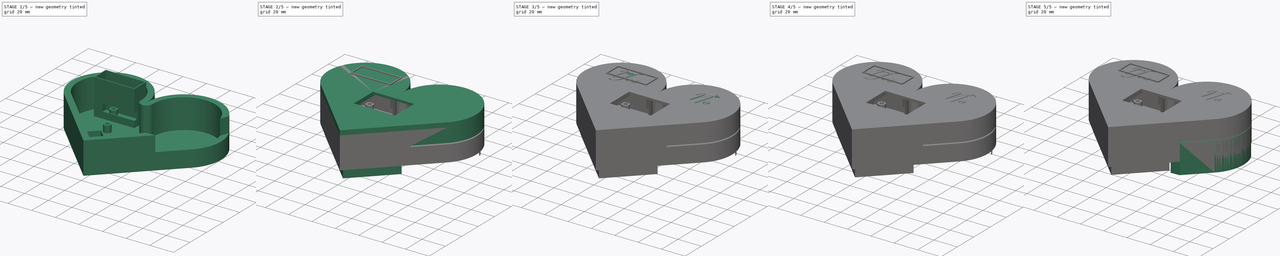
[diagram: build sequence overview — one tinted view per stage of 5, left to right]
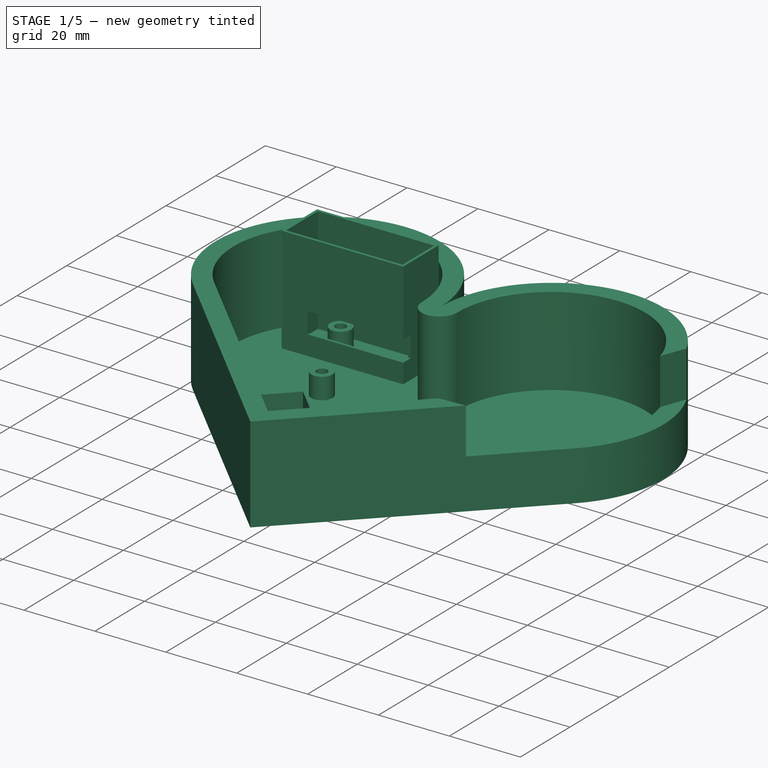
[diagram: stage 1 of 5 — iso view after this stage's code; geometry added in this stage tinted green]
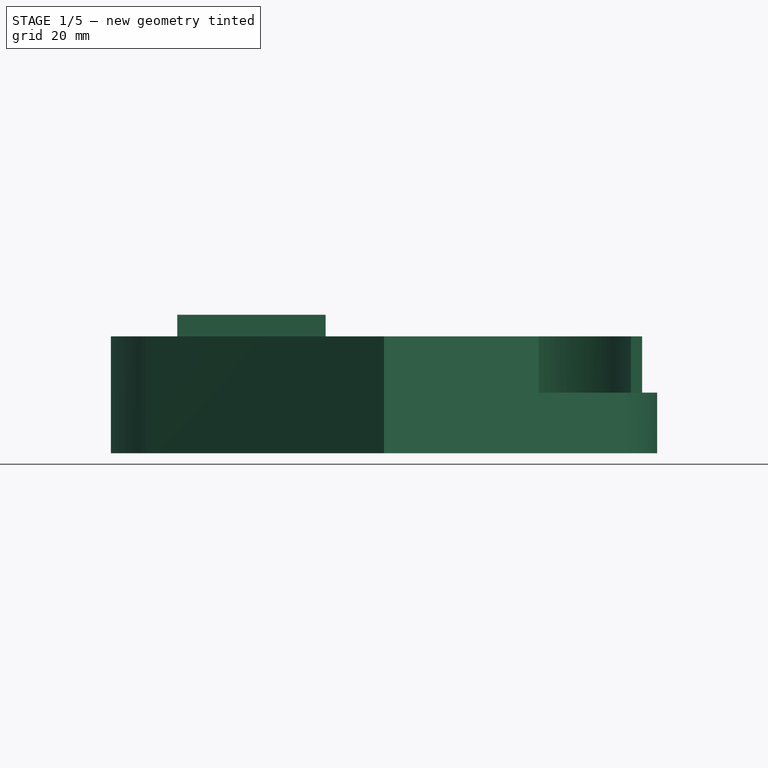
[diagram: stage 1 of 5 — front view after this stage's code; geometry added in this stage tinted green]
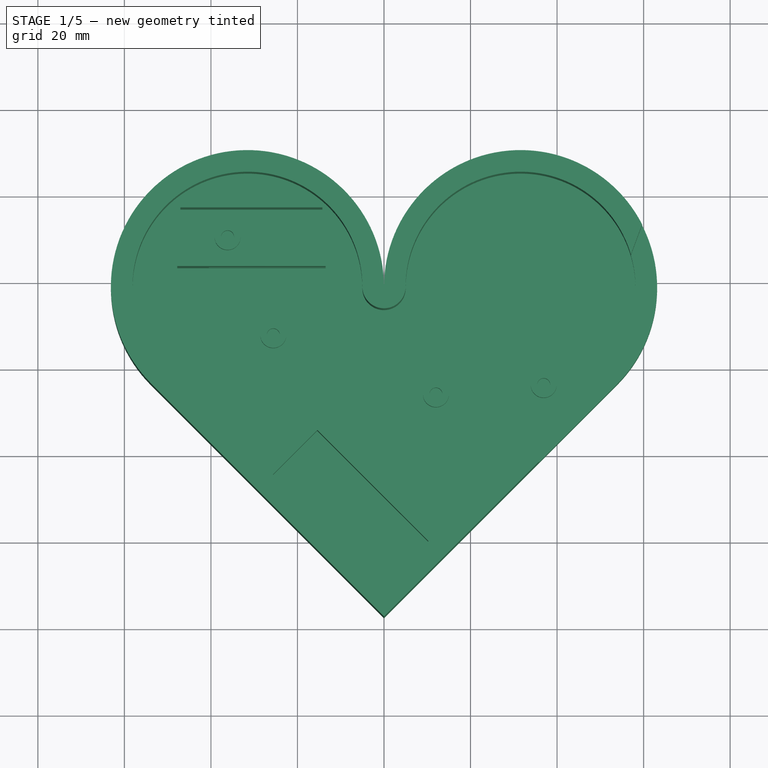
[diagram: stage 1 of 5 — top view after this stage's code; geometry added in this stage tinted green]
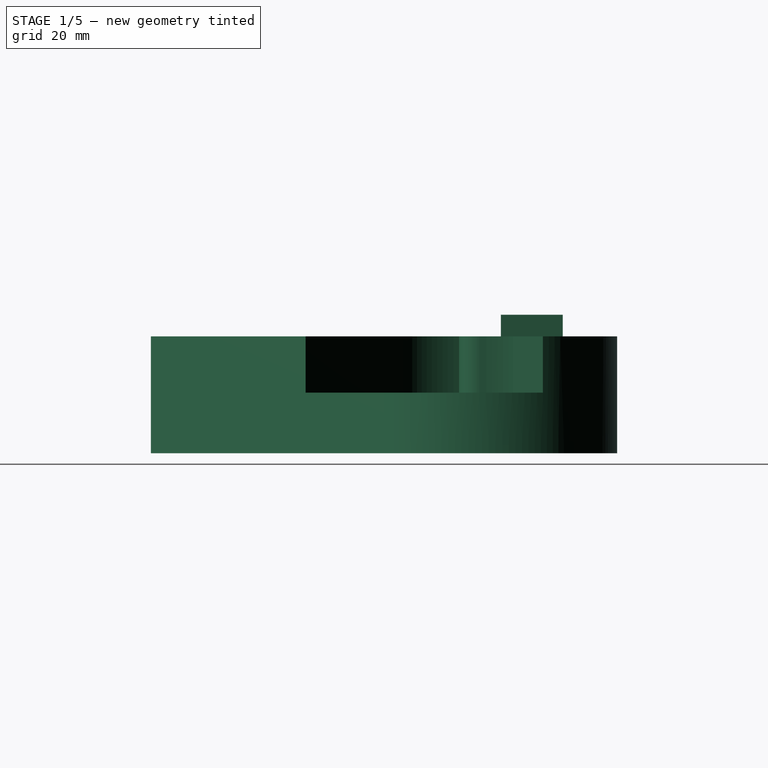
[diagram: stage 1 of 5 — right view after this stage's code; geometry added in this stage tinted green]
FCSTD DOCUMENT  (FreeCAD 0.21R)
Label: Proposal_Box_Final
License: All rights reserved
LicenseURL: http://en.wikipedia.org/wiki/All_rights_reserved
objects: Sketcher::SketchObject×40, PartDesign::Pad×19, PartDesign::Pocket×15, PartDesign::Body×7, Part::Part2DObjectPython×5, Part::Extrusion×2, Part::Cut×2, PartDesign::Fillet×1
note: 126 computed .brp shape members not serialized (recipe doc carries the construction recipe); baked Part::Feature solids carry a one-line shape summary decoded from their .brp

FEATURE [Sketcher::SketchObject] Sketch016  label="Backplate_Sketch"
  FullyConstrained = true
  MapMode = 5
  sketch-geometry (95):
    g0: GeomPoint X=0 Y=-57.4171 Z=0
    g1: LineSegment StartX=0 StartY=-57.4171 StartZ=0 EndX=53.8815 EndY=-3.53553 EndZ=0
    g2: LineSegment StartX=0 StartY=-57.4171 StartZ=0 EndX=-53.8815 EndY=-3.53553 EndZ=0
    g3: LineSegment StartX=0 StartY=-57.4171 StartZ=0 EndX=0 EndY=18.7829 EndZ=0
    g4: ArcOfCircle CenterX=-31.5631 CenterY=18.7829 CenterZ=0 NormalX=0 NormalY=0 NormalZ=1 AngleXU=0 Radius=31.5631 StartAngle=0 EndAngle=3.92699
    g5: ArcOfCircle CenterX=31.5631 CenterY=18.7829 CenterZ=0 NormalX=0 NormalY=0 NormalZ=1 AngleXU=0 Radius=31.5631 StartAngle=5.49779 EndAngle=9.42478
    g6: LineSegment StartX=0 StartY=-50.346 StartZ=0 EndX=50.346 EndY=-7.1e-15 EndZ=0
    g7: LineSegment StartX=0 StartY=-50.346 StartZ=0 EndX=-50.346 EndY=0 EndZ=0
    g8: GeomPoint X=0 Y=13.7829 Z=0
    g9: Circle CenterX=-31.5631 CenterY=18.7829 CenterZ=0 NormalX=0 NormalY=0 NormalZ=1 AngleXU=0 Radius=26.5631
    g10: GeomPoint X=-5 Y=18.7829 Z=0
    g11: LineSegment StartX=0 StartY=-50.346 StartZ=0 EndX=3.53553 EndY=-53.8815 EndZ=0
    g12: LineSegment StartX=0 StartY=-50.346 StartZ=0 EndX=-3.53553 EndY=-53.8815 EndZ=0
    g13: Circle CenterX=31.5631 CenterY=18.7829 CenterZ=0 NormalX=0 NormalY=0 NormalZ=1 AngleXU=0 Radius=26.5631
    g14: GeomPoint X=5 Y=18.7829 Z=0
    g15: ArcOfCircle CenterX=-31.5631 CenterY=18.7829 CenterZ=0 NormalX=0 NormalY=0 NormalZ=1 AngleXU=0 Radius=26.5631 StartAngle=0 EndAngle=3.92699
    g16: ArcOfCircle CenterX=31.5631 CenterY=18.7829 CenterZ=0 NormalX=0 NormalY=0 NormalZ=1 AngleXU=0 Radius=26.5631 StartAngle=5.49779 EndAngle=9.42478
    g17: ArcOfCircle CenterX=-2e-16 CenterY=18.7829 CenterZ=0 NormalX=0 NormalY=0 NormalZ=1 AngleXU=0 Radius=5 StartAngle=3.14159 EndAngle=6.28319
    g18: GeomPoint X=53.8815 Y=-3.53553 Z=0
    g19: GeomPoint X=36.911 Y=-3.53553 Z=0
    g20: GeomPoint X=45.3963 Y=-12.0208 Z=0
    g21: LineSegment StartX=36.911 StartY=-3.53553 StartZ=0 EndX=45.3963 EndY=-12.0208 EndZ=0
    g22: Circle CenterX=36.911 CenterY=-3.53553 CenterZ=0 NormalX=0 NormalY=0 NormalZ=1 AngleXU=0 Radius=3.75
    g23: Circle CenterX=36.911 CenterY=-3.53553 CenterZ=0 NormalX=0 NormalY=0 NormalZ=1 AngleXU=0 Radius=5
    g24: Circle CenterX=36.911 CenterY=-3.53553 CenterZ=0 NormalX=0 NormalY=0 NormalZ=1 AngleXU=0 Radius=6
    g25: Circle CenterX=12.0061 CenterY=-5.71443 CenterZ=0 NormalX=0 NormalY=0 NormalZ=1 AngleXU=0 Radius=18.75
    g26: Circle CenterX=12.0061 CenterY=-5.71443 CenterZ=0 NormalX=0 NormalY=0 NormalZ=1 AngleXU=0 Radius=21
    g27: Circle CenterX=12.0061 CenterY=-5.71443 CenterZ=0 NormalX=0 NormalY=0 NormalZ=1 AngleXU=0 Radius=20
    g28: Circle CenterX=-25.5816 CenterY=7.96638 CenterZ=0 NormalX=0 NormalY=0 NormalZ=1 AngleXU=0 Radius=18.75
    g29: Circle CenterX=-25.5816 CenterY=7.96638 CenterZ=0 NormalX=0 NormalY=0 NormalZ=1 AngleXU=0 Radius=20
    g30: Circle CenterX=-25.5816 CenterY=7.96638 CenterZ=0 NormalX=0 NormalY=0 NormalZ=1 AngleXU=0 Radius=21
    g31: Circle CenterX=-36.1471 CenterY=30.6241 CenterZ=0 NormalX=0 NormalY=0 NormalZ=1 AngleXU=0 Radius=6
    g32: Circle CenterX=-36.1471 CenterY=30.6241 CenterZ=0 NormalX=0 NormalY=0 NormalZ=1 AngleXU=0 Radius=5
    g33: Circle CenterX=-36.1471 CenterY=30.6241 CenterZ=0 NormalX=0 NormalY=0 NormalZ=1 AngleXU=0 Radius=3.75
    g34: LineSegment StartX=-36.1471 StartY=30.6241 StartZ=0 EndX=-25.5816 EndY=7.96638 EndZ=0
    g35: LineSegment StartX=-25.5816 StartY=7.96638 StartZ=0 EndX=12.0061 EndY=-5.71443 EndZ=0
    g36: LineSegment StartX=12.0061 StartY=-5.71443 StartZ=0 EndX=36.911 EndY=-3.53553 EndZ=0
    g37: Circle CenterX=-36.1471 CenterY=30.6241 CenterZ=0 NormalX=0 NormalY=0 NormalZ=1 AngleXU=0 Radius=1.5
    g38: Circle CenterX=-25.5816 CenterY=7.96638 CenterZ=0 NormalX=0 NormalY=0 NormalZ=1 AngleXU=0 Radius=1.5
    g39: Circle CenterX=12.0061 CenterY=-5.71443 CenterZ=0 NormalX=0 NormalY=0 NormalZ=1 AngleXU=0 Radius=1.5
    g40: Circle CenterX=36.911 CenterY=-3.53553 CenterZ=0 NormalX=0 NormalY=0 NormalZ=1 AngleXU=0 Radius=1.5
    g41: LineSegment StartX=-33.8616 StartY=28.6807 StartZ=0 EndX=-25.6013 EndY=10.9663 EndZ=0
    g42: LineSegment StartX=-27.867 StartY=9.90977 StartZ=0 EndX=-36.1274 EndY=27.6241 EndZ=0
    g43: ArcOfCircle CenterX=-36.1471 CenterY=30.6241 CenterZ=0 NormalX=0 NormalY=0 NormalZ=1 AngleXU=0 Radius=3 StartAngle=5.5785 EndAngle=11.0021
    g44: LineSegment StartX=-22.5914 StartY=8.20824 StartZ=0 EndX=9.87092 EndY=-3.60706 EndZ=0
    g45: LineSegment StartX=-23.4464 StartY=5.85901 StartZ=0 EndX=9.01587 EndY=-5.95629 EndZ=0
    g46: ArcOfCircle CenterX=-25.5816 CenterY=7.96638 CenterZ=0 NormalX=0 NormalY=0 NormalZ=1 AngleXU=0 Radius=3 StartAngle=0.0807096 EndAngle=1.57735
    g47: ArcOfCircle CenterX=-25.5816 CenterY=7.96638 CenterZ=0 NormalX=0 NormalY=0 NormalZ=1 AngleXU=0 Radius=3 StartAngle=2.4369 EndAngle=5.50434
    g48: LineSegment StartX=14.614 StartY=-4.23149 StartZ=0 EndX=34.0852 EndY=-2.52798 EndZ=0
    g49: LineSegment StartX=14.8319 StartY=-6.72198 StartZ=0 EndX=34.3031 EndY=-5.01847 EndZ=0
    g50: ArcOfCircle CenterX=12.0061 CenterY=-5.71443 CenterZ=0 NormalX=0 NormalY=0 NormalZ=1 AngleXU=0 Radius=3 StartAngle=0.517042 EndAngle=2.36275
    g51: ArcOfCircle CenterX=12.0061 CenterY=-5.71443 CenterZ=0 NormalX=0 NormalY=0 NormalZ=1 AngleXU=0 Radius=3 StartAngle=3.2223 EndAngle=5.94068
    g52: ArcOfCircle CenterX=36.911 CenterY=-3.53553 CenterZ=0 NormalX=0 NormalY=0 NormalZ=1 AngleXU=0 Radius=3 StartAngle=3.65863 EndAngle=9.08227
    g53: GeomPoint X=14.8319 Y=-5.46721 Z=0
    g54: LineSegment StartX=14.8319 StartY=-5.46721 StartZ=0 EndX=14.614 EndY=-4.23149 EndZ=0
    g55: LineSegment StartX=14.8319 StartY=-5.46721 StartZ=0 EndX=14.8319 EndY=-6.72198 EndZ=0
    g56: LineSegment StartX=14.614 StartY=-4.23149 StartZ=0 EndX=14.8319 EndY=-6.72198 EndZ=0
    g57: LineSegment StartX=9.87092 StartY=-3.60706 StartZ=0 EndX=9.01587 EndY=-5.95629 EndZ=0
    g58: LineSegment StartX=-42.1471 StartY=36.6241 StartZ=0 EndX=-19.6471 EndY=36.6241 EndZ=0
    g59: LineSegment StartX=-19.6471 StartY=36.6241 StartZ=0 EndX=-19.6471 EndY=24.6241 EndZ=0
    g60: LineSegment StartX=-19.6471 StartY=24.6241 StartZ=0 EndX=-42.1471 EndY=24.6241 EndZ=0
    g61: LineSegment StartX=-42.1471 StartY=24.6241 StartZ=0 EndX=-42.1471 EndY=36.6241 EndZ=0
    g62: GeomPoint X=-42.1471 Y=30.6241 Z=0
    g63: GeomPoint X=-36.1471 Y=36.6241 Z=0
    g64: GeomPoint X=-36.1471 Y=24.6241 Z=0
    g65: GeomPoint X=-30.8971 Y=30.6241 Z=0
    g66: LineSegment StartX=-47.1471 StartY=24.6241 StartZ=0 EndX=-47.1471 EndY=36.6241 EndZ=0
    g67: LineSegment StartX=-47.1471 StartY=36.6241 StartZ=0 EndX=-14.6471 EndY=36.6241 EndZ=0
    g68: LineSegment StartX=-14.6471 StartY=36.6241 StartZ=0 EndX=-14.6471 EndY=24.6241 EndZ=0
    g69: LineSegment StartX=-14.6471 StartY=24.6241 StartZ=0 EndX=-47.1471 EndY=24.6241 EndZ=0
    g70: GeomPoint X=-30.8971 Y=30.6241 Z=0
    g71: LineSegment StartX=-49.1471 StartY=38.6241 StartZ=0 EndX=-12.6471 EndY=38.6241 EndZ=0
    g72: LineSegment StartX=-12.6471 StartY=38.6241 StartZ=0 EndX=-12.6471 EndY=22.6241 EndZ=0
    g73: LineSegment StartX=-12.6471 StartY=22.6241 StartZ=0 EndX=-29.6581 EndY=22.6241 EndZ=0
    g74: LineSegment StartX=-49.1471 StartY=38.6241 StartZ=0 EndX=-49.1471 EndY=22.6241 EndZ=0
    g75: LineSegment StartX=-49.1471 StartY=22.6241 StartZ=0 EndX=-35.175 EndY=22.6241 EndZ=0
    g76: LineSegment StartX=-35.175 StartY=22.6241 StartZ=0 EndX=-29.0286 EndY=9.44304 EndZ=0
    g77: LineSegment StartX=-29.6581 StartY=22.6241 StartZ=0 EndX=-24.4971 EndY=11.5561 EndZ=0
    g78: LineSegment StartX=-22.1 StartY=9.35963 StartZ=0 EndX=10.2346 EndY=-2.40922 EndZ=0
    g79: LineSegment StartX=-23.8101 StartY=4.66117 StartZ=0 EndX=8.52454 EndY=-7.10768 EndZ=0
    g80: ArcOfCircle CenterX=-25.5816 CenterY=7.96638 CenterZ=0 NormalX=0 NormalY=0 NormalZ=1 AngleXU=0 Radius=3.75 StartAngle=0.380662 EndAngle=1.2774
    g81: ArcOfCircle CenterX=-25.5816 CenterY=7.96638 CenterZ=0 NormalX=0 NormalY=0 NormalZ=1 AngleXU=0 Radius=3.75 StartAngle=2.73686 EndAngle=5.20439
    g82: LineSegment StartX=14.5727 StartY=-2.98033 StartZ=0 EndX=33.9086 EndY=-1.28865 EndZ=0
    g83: LineSegment StartX=15.0084 StartY=-7.96131 StartZ=0 EndX=34.3444 EndY=-6.26963 EndZ=0
    g84: ArcOfCircle CenterX=12.0061 CenterY=-5.71443 CenterZ=0 NormalX=0 NormalY=0 NormalZ=1 AngleXU=0 Radius=3.75 StartAngle=0.816994 EndAngle=2.0628
    g85: ArcOfCircle CenterX=12.0061 CenterY=-5.71443 CenterZ=0 NormalX=0 NormalY=0 NormalZ=1 AngleXU=0 Radius=3.75 StartAngle=3.52225 EndAngle=5.64072
    g86: ArcOfCircle CenterX=36.911 CenterY=-3.53553 CenterZ=0 NormalX=0 NormalY=0 NormalZ=1 AngleXU=0 Radius=3.75 StartAngle=3.95859 EndAngle=8.78232
    g87: LineSegment StartX=-35.175 StartY=22.6241 StartZ=0 EndX=-29.6581 EndY=22.6241 EndZ=0
    g88: LineSegment StartX=-29.0286 StartY=9.44304 StartZ=0 EndX=-24.4971 EndY=11.5561 EndZ=0
    g89: LineSegment StartX=-22.1 StartY=9.35963 StartZ=0 EndX=-23.8101 EndY=4.66117 EndZ=0
    g90: LineSegment StartX=10.2346 StartY=-2.40922 StartZ=0 EndX=8.52454 EndY=-7.10768 EndZ=0
    g91: LineSegment StartX=14.5727 StartY=-2.98033 StartZ=0 EndX=15.0084 EndY=-7.96131 EndZ=0
    g92: LineSegment StartX=33.9086 StartY=-1.28865 StartZ=0 EndX=34.3444 EndY=-6.26963 EndZ=0
    g93: LineSegment StartX=-25.5816 StartY=7.96638 StartZ=0 EndX=-22.1 EndY=9.35963 EndZ=0
    g94: LineSegment StartX=-25.5816 StartY=7.96638 StartZ=0 EndX=-23.8101 EndY=4.66117 EndZ=0
  constraints (227):
    c: PointOnObject(g0,g-2)
    c: Coincident(g1,g0)
    c: Coincident(g2,g1)
    c: Angle(g1,g2) = 1.5708
    c: Coincident(g3,g1)
    c: Vertical(g3)
    c: DistanceY(g3,g3) = 76.2
    c: Coincident(g4,g3)
    c: Coincident(g5,g3)
    c: Symmetric(g4,g5,g3)
    c: Tangent(g5,g1) = -1.5708
    c: Tangent(g4,g2) = 1.5708
    c: Horizontal(g4,g3)
    c: Coincident(g7,g6)
    c: Vertical(g6,g1)
    c: Distance(g4,g8) = 5
    c: Vertical(g8,g4)
    c: Coincident(g9,g4)
    c: Horizontal(g10,g4)
    c: Distance(g10,g4) = 5
    c: Tangent(g7,g9) = 1.5708
    c: Coincident(g11,g6)
    c: PointOnObject(g11,g1)
    c: Distance(g11) = 5
    c: Coincident(g12,g6)
    c: PointOnObject(g12,g2)
    c: Parallel(g12,g1)
    c: Parallel(g11,g2)
    c: Coincident(g13,g5)
    c: Tangent(g6,g13) = -1.5708
    c: Distance(g14,g4) = 5
    c: Horizontal(g14,g5)
    c: Coincident(g15,g4)
    c: Coincident(g15,g10)
    c: Coincident(g15,g7)
    c: Coincident(g16,g5)
    c: Coincident(g16,g14)
    c: Coincident(g16,g6)
    c: Coincident(g17,g15)
    c: Coincident(g17,g16)
    c: PointOnObject(g8,g17)
    c: Horizontal(g-1,g6)
    c: Coincident(g18,g1)
    c: PointOnObject(g20,g1)
    c: Coincident(g21,g19)
    c: Coincident(g21,g20)
    c: Angle(g21,g1) = 1.5708
    c: Distance(g21) = 12
    c: Distance(g1,g20) = 12
    c: Coincident(g22,g19)
    c: Diameter(g22) = 7.5
    c: Coincident(g23,g19)
    c: Diameter(g23) = 10
    c: Coincident(g24,g19)
    c: Diameter(g24) = 12
    c: Coincident(g26,g25)
    c: Coincident(g27,g25)
    c: Diameter(g26) = 42
    c: Diameter(g27) = 40
    c: Diameter(g25) = 37.5
    c: Tangent(g23,g27)
    c: Coincident(g29,g28)
    c: Coincident(g30,g28)
    c: Diameter(g30) = 42
    c: Diameter(g29) = 40
    c: Diameter(g28) = 37.5
    c: Tangent(g29,g27)
    c: Coincident(g32,g31)
    c: Coincident(g33,g31)
    c: Diameter(g31) = 12
    c: Diameter(g32) = 10
    c: Diameter(g33) = 7.5
    c: Tangent(g32,g29)
    c: Coincident(g34,g31)
    c: Coincident(g34,g28)
    c: Coincident(g35,g28)
    c: Coincident(g35,g25)
    c: Coincident(g36,g25)
    c: Coincident(g36,g19)
    c: Angle(g35,g34) = 2.35619
    c: Angle(g36,g35) = 2.70526
    c: Angle(g36,g21) = 2.26893
    c: Coincident(g37,g31)
    c: Coincident(g38,g28)
    c: Coincident(g39,g25)
    c: Coincident(g40,g19)
    c: Equal(g37,g38)
    c: Equal(g38,g39)
    c: Equal(g39,g40)
    c: Diameter(g40) = 3
    c: Coincident(g43,g37)
    c: Coincident(g43,g41)
    c: Coincident(g43,g42)
    c: Parallel(g42,g41)
    c: Parallel(g41,g34)
    c: Parallel(g45,g35)
    c: Parallel(g35,g44)
    c: Coincident(g46,g38)
    c: Coincident(g46,g41)
    c: Coincident(g46,g44)
    c: Coincident(g47,g38)
    c: Coincident(g47,g42)
    c: Coincident(g47,g45)
    c: Coincident(g50,g39)
    c: Coincident(g50,g48)
    c: Coincident(g50,g44)
    c: Coincident(g51,g39)
    c: Coincident(g51,g49)
    c: Coincident(g51,g45)
    c: Coincident(g52,g40)
    c: Coincident(g52,g48)
    c: Coincident(g49,g52)
    c: Symmetric(g42,g41,g34)
    c: Equal(g50,g47)
    c: Equal(g47,g43)
    c: Symmetric(g45,g44,g35)
    c: Diameter(g43) = 6
    c: Distance(g42,g41) = 2.5
    c: Distance(g44,g45) = 2.5
    c: Equal(g52,g50)
    c: Parallel(g49,g36)
    c: Parallel(g36,g48)
    c: PointOnObject(g53,g36)
    c: Coincident(g54,g53)
    c: Coincident(g54,g48)
    c: Coincident(g55,g53)
    c: Coincident(g55,g49)
    c: Vertical(g55)
    c: Equal(g55,g54)
    c: Coincident(g56,g48)
    c: Coincident(g56,g49)
    c: Coincident(g57,g44)
    c: Coincident(g57,g45)
    c: Equal(g57,g56)
    c: Coincident(g58,g59)
    c: Coincident(g59,g60)
    c: Coincident(g60,g61)
    c: Coincident(g61,g58)
    c: Horizontal(g58)
    c: Horizontal(g60)
    c: Vertical(g59)
    c: Vertical(g61)
    c: PointOnObject(g62,g31)
    c: PointOnObject(g63,g31)
    c: PointOnObject(g64,g31)
    c: Horizontal(g31,g62)
    c: Vertical(g63,g31)
    c: Vertical(g31,g64)
    c: PointOnObject(g63,g58)
    c: PointOnObject(g62,g61)
    c: PointOnObject(g64,g60)
    c: Distance(g58) = 22.5
    c: Symmetric(g59,g58,g65)
    c: Coincident(g66,g67)
    c: Coincident(g67,g68)
    c: Coincident(g68,g69)
    c: Coincident(g69,g66)
    c: Horizontal(g67)
    c: Horizontal(g69)
    c: Vertical(g66)
    c: Vertical(g68)
    c: Symmetric(g67,g66,g70)
    c: Coincident(g70,g65)
    c: Distance(g67) = 32.5
    c: PointOnObject(g58,g67)
    c: Horizontal(g71)
    c: Coincident(g72,g71)
    c: Vertical(g72)
    c: Horizontal(g73)
    c: Coincident(g74,g71)
    c: Vertical(g74)
    c: Coincident(g75,g74)
    c: Horizontal(g75)
    c: DistanceY(g66,g71) = 2
    c: DistanceX(g71,g66) = 2
    c: DistanceX(g67,g71) = 2
    c: Coincident(g73,g72)
    c: DistanceY(g72,g68) = 2
    c: DistanceY(g74,g66) = 2
    c: Coincident(g76,g75)
    c: Coincident(g77,g73)
    c: Parallel(g76,g34)
    c: Parallel(g34,g77)
    c: Parallel(g78,g35)
    c: Parallel(g35,g79)
    c: Coincident(g80,g28)
    c: Coincident(g80,g77)
    c: Coincident(g80,g78)
    c: Coincident(g81,g80)
    c: Coincident(g81,g76)
    c: Coincident(g81,g79)
    c: Parallel(g82,g36)
    c: Parallel(g36,g83)
    c: Coincident(g84,g25)
    c: Coincident(g84,g78)
    c: Coincident(g84,g82)
    c: Coincident(g85,g84)
    c: Coincident(g85,g79)
    c: Coincident(g85,g83)
    c: Coincident(g86,g19)
    c: Coincident(g86,g82)
    c: Coincident(g86,g83)
    c: Coincident(g87,g75)
    c: Coincident(g87,g73)
    c: Coincident(g88,g76)
    c: Coincident(g88,g77)
    c: Coincident(g89,g78)
    c: Coincident(g89,g79)
    c: Coincident(g90,g78)
    c: Coincident(g90,g79)
    c: Coincident(g91,g82)
    c: Coincident(g91,g83)
    c: Coincident(g92,g82)
    c: Coincident(g92,g83)
    c: Equal(g85,g86)
    c: Equal(g86,g81)
    c: Diameter(g80) = 7.5
    c: Symmetric(g76,g77,g34)
    c: Symmetric(g82,g83,g36)
    c: Angle(g90,g79) = 1.5708
    c: Coincident(g93,g80)
    c: Coincident(g93,g78)
    c: Coincident(g94,g80)
    c: Coincident(g94,g79)
    c: Distance(g89) = 5
    c: Distance(g88) = 5
    c: Distance(g91) = 5
FEATURE [PartDesign::Pad] Pad025  label="Backplate_Pad"
  Direction = (0,0,1)
  Length = 2
  Length2 = 10
  Profile = -> Sketch016
  ReferenceAxis = -> Sketch016 [N_Axis]
  Reversed = true
  Type = 0
FEATURE [Sketcher::SketchObject] Sketch019  label="HeartBackplate"
  FullyConstrained = true
  MapMode = 5
  Support = -> [XY_Plane]
  sketch-geometry (22):
    g0: GeomPoint X=0 Y=-57.4171 Z=0
    g1: LineSegment StartX=0 StartY=-57.4171 StartZ=0 EndX=53.8815 EndY=-3.53553 EndZ=0
    g2: LineSegment StartX=0 StartY=-57.4171 StartZ=0 EndX=-53.8815 EndY=-3.53553 EndZ=0
    g3: LineSegment StartX=0 StartY=-57.4171 StartZ=0 EndX=0 EndY=18.7829 EndZ=0
    g4: ArcOfCircle CenterX=-31.5631 CenterY=18.7829 CenterZ=0 NormalX=0 NormalY=0 NormalZ=1 AngleXU=0 Radius=31.5631 StartAngle=0 EndAngle=3.92699
    g5: ArcOfCircle CenterX=31.5631 CenterY=18.7829 CenterZ=0 NormalX=0 NormalY=0 NormalZ=1 AngleXU=0 Radius=31.5631 StartAngle=5.49779 EndAngle=9.42478
    g6: LineSegment StartX=0 StartY=-50.346 StartZ=0 EndX=50.346 EndY=-7.1e-15 EndZ=0
    g7: LineSegment StartX=0 StartY=-50.346 StartZ=0 EndX=-50.346 EndY=0 EndZ=0
    g8: GeomPoint X=0 Y=13.7829 Z=0
    g9: Circle CenterX=-31.5631 CenterY=18.7829 CenterZ=0 NormalX=0 NormalY=0 NormalZ=1 AngleXU=0 Radius=26.5631
    g10: GeomPoint X=-5 Y=18.7829 Z=0
    g11: LineSegment StartX=0 StartY=-50.346 StartZ=0 EndX=3.53553 EndY=-53.8815 EndZ=0
    g12: LineSegment StartX=0 StartY=-50.346 StartZ=0 EndX=-3.53553 EndY=-53.8815 EndZ=0
    g13: Circle CenterX=31.5631 CenterY=18.7829 CenterZ=0 NormalX=0 NormalY=0 NormalZ=1 AngleXU=0 Radius=26.5631
    g14: GeomPoint X=5 Y=18.7829 Z=0
    g15: ArcOfCircle CenterX=-31.5631 CenterY=18.7829 CenterZ=0 NormalX=0 NormalY=0 NormalZ=1 AngleXU=0 Radius=26.5631 StartAngle=0 EndAngle=3.92699
    g16: ArcOfCircle CenterX=31.5631 CenterY=18.7829 CenterZ=0 NormalX=0 NormalY=0 NormalZ=1 AngleXU=0 Radius=26.5631 StartAngle=5.49779 EndAngle=9.42478
    g17: ArcOfCircle CenterX=1e-16 CenterY=18.7829 CenterZ=0 NormalX=0 NormalY=0 NormalZ=1 AngleXU=0 Radius=5 StartAngle=3.14159 EndAngle=6.28319
    g18: GeomPoint X=53.8815 Y=-3.53553 Z=0
    g19: GeomPoint X=36.911 Y=-3.53553 Z=0
    g20: GeomPoint X=45.3963 Y=-12.0208 Z=0
    g21: LineSegment StartX=36.911 StartY=-3.53553 StartZ=0 EndX=45.3963 EndY=-12.0208 EndZ=0
  constraints (49):
    c: PointOnObject(g0,g-2)
    c: Coincident(g1,g0)
    c: Coincident(g2,g1)
    c: Angle(g1,g2) = 1.5708
    c: Coincident(g3,g1)
    c: Vertical(g3)
    c: DistanceY(g3,g3) = 76.2
    c: Coincident(g4,g3)
    c: Coincident(g5,g3)
    c: Symmetric(g4,g5,g3)
    c: Tangent(g5,g1) = -1.5708
    c: Tangent(g4,g2) = 1.5708
    c: Horizontal(g4,g3)
    c: Coincident(g7,g6)
    c: Vertical(g6,g1)
    c: Distance(g4,g8) = 5
    c: Vertical(g8,g4)
    c: Coincident(g9,g4)
    c: Horizontal(g10,g4)
    c: Distance(g10,g4) = 5
    c: Tangent(g7,g9) = 1.5708
    c: Coincident(g11,g6)
    c: PointOnObject(g11,g1)
    c: Distance(g11) = 5
    c: Coincident(g12,g6)
    c: PointOnObject(g12,g2)
    c: Parallel(g12,g1)
    c: Parallel(g11,g2)
    c: Coincident(g13,g5)
    c: Tangent(g6,g13) = -1.5708
    c: Distance(g14,g4) = 5
    c: Horizontal(g14,g5)
    c: Coincident(g15,g4)
    c: Coincident(g15,g10)
    c: Coincident(g15,g7)
    c: Coincident(g16,g5)
    c: Coincident(g16,g14)
    c: Coincident(g16,g6)
    c: Coincident(g17,g15)
    c: Coincident(g17,g16)
    c: PointOnObject(g8,g17)
    c: Horizontal(g-1,g6)
    c: Coincident(g18,g1)
    c: PointOnObject(g20,g1)
    c: Coincident(g21,g19)
    c: Coincident(g21,g20)
    c: Angle(g21,g1) = 1.5708
    c: Distance(g21) = 12
    c: Distance(g1,g20) = 12
FEATURE [Sketcher::SketchObject] Sketch042  label="Gearhole_Sketch"
  FullyConstrained = true
  MapMode = 5
  sketch-geometry (62):
    g0: GeomPoint X=0 Y=-57.4171 Z=0
    g1: LineSegment StartX=0 StartY=-57.4171 StartZ=0 EndX=53.8815 EndY=-3.53553 EndZ=0
    g2: LineSegment StartX=0 StartY=-57.4171 StartZ=0 EndX=-53.8815 EndY=-3.53553 EndZ=0
    g3: LineSegment StartX=0 StartY=-57.4171 StartZ=0 EndX=0 EndY=18.7829 EndZ=0
    g4: ArcOfCircle CenterX=-31.5631 CenterY=18.7829 CenterZ=0 NormalX=0 NormalY=0 NormalZ=1 AngleXU=0 Radius=31.5631 StartAngle=0 EndAngle=3.92699
    g5: ArcOfCircle CenterX=31.5631 CenterY=18.7829 CenterZ=0 NormalX=0 NormalY=0 NormalZ=1 AngleXU=0 Radius=31.5631 StartAngle=5.49779 EndAngle=9.42478
    g6: LineSegment StartX=0 StartY=-50.346 StartZ=0 EndX=50.346 EndY=7.1e-15 EndZ=0
    g7: LineSegment StartX=0 StartY=-50.346 StartZ=0 EndX=-50.346 EndY=0 EndZ=0
    g8: GeomPoint X=0 Y=13.7829 Z=0
    g9: Circle CenterX=-31.5631 CenterY=18.7829 CenterZ=0 NormalX=0 NormalY=0 NormalZ=1 AngleXU=0 Radius=26.5631
    g10: GeomPoint X=-5 Y=18.7829 Z=0
    g11: LineSegment StartX=0 StartY=-50.346 StartZ=0 EndX=3.53553 EndY=-53.8815 EndZ=0
    g12: LineSegment StartX=0 StartY=-50.346 StartZ=0 EndX=-3.53553 EndY=-53.8815 EndZ=0
    g13: Circle CenterX=31.5631 CenterY=18.7829 CenterZ=0 NormalX=0 NormalY=0 NormalZ=1 AngleXU=0 Radius=26.5631
    g14: GeomPoint X=5 Y=18.7829 Z=0
    g15: ArcOfCircle CenterX=-31.5631 CenterY=18.7829 CenterZ=0 NormalX=0 NormalY=0 NormalZ=1 AngleXU=0 Radius=26.5631 StartAngle=0 EndAngle=3.92699
    g16: ArcOfCircle CenterX=31.5631 CenterY=18.7829 CenterZ=0 NormalX=0 NormalY=0 NormalZ=1 AngleXU=0 Radius=26.5631 StartAngle=5.49779 EndAngle=9.42478
    g17: ArcOfCircle CenterX=1e-16 CenterY=18.7829 CenterZ=0 NormalX=0 NormalY=0 NormalZ=1 AngleXU=0 Radius=5 StartAngle=3.14159 EndAngle=6.28319
    g18: GeomPoint X=53.8815 Y=-3.53553 Z=0
    g19: GeomPoint X=36.911 Y=-3.53553 Z=0
    g20: GeomPoint X=45.3963 Y=-12.0208 Z=0
    g21: LineSegment StartX=36.911 StartY=-3.53553 StartZ=0 EndX=45.3963 EndY=-12.0208 EndZ=0
    g22: Circle CenterX=36.911 CenterY=-3.53553 CenterZ=0 NormalX=0 NormalY=0 NormalZ=1 AngleXU=0 Radius=3.75
    g23: Circle CenterX=36.911 CenterY=-3.53553 CenterZ=0 NormalX=0 NormalY=0 NormalZ=1 AngleXU=0 Radius=5
    g24: Circle CenterX=36.911 CenterY=-3.53553 CenterZ=0 NormalX=0 NormalY=0 NormalZ=1 AngleXU=0 Radius=6
    g25: Circle CenterX=12.0061 CenterY=-5.71443 CenterZ=0 NormalX=0 NormalY=0 NormalZ=1 AngleXU=0 Radius=18.75
    g26: Circle CenterX=12.0061 CenterY=-5.71443 CenterZ=0 NormalX=0 NormalY=0 NormalZ=1 AngleXU=0 Radius=21
    g27: Circle CenterX=12.0061 CenterY=-5.71443 CenterZ=0 NormalX=0 NormalY=0 NormalZ=1 AngleXU=0 Radius=20
    g28: Circle CenterX=-25.5816 CenterY=7.96638 CenterZ=0 NormalX=0 NormalY=0 NormalZ=1 AngleXU=0 Radius=18.75
    g29: Circle CenterX=-25.5816 CenterY=7.96638 CenterZ=0 NormalX=0 NormalY=0 NormalZ=1 AngleXU=0 Radius=20
    g30: Circle CenterX=-25.5816 CenterY=7.96638 CenterZ=0 NormalX=0 NormalY=0 NormalZ=1 AngleXU=0 Radius=21
    g31: Circle CenterX=-36.1471 CenterY=30.6241 CenterZ=0 NormalX=0 NormalY=0 NormalZ=1 AngleXU=0 Radius=6
    g32: Circle CenterX=-36.1471 CenterY=30.6241 CenterZ=0 NormalX=0 NormalY=0 NormalZ=1 AngleXU=0 Radius=5
    g33: Circle CenterX=-36.1471 CenterY=30.6241 CenterZ=0 NormalX=0 NormalY=0 NormalZ=1 AngleXU=0 Radius=3.75
    g34: LineSegment StartX=-36.1471 StartY=30.6241 StartZ=0 EndX=-25.5816 EndY=7.96638 EndZ=0
    g35: LineSegment StartX=-25.5816 StartY=7.96638 StartZ=0 EndX=12.0061 EndY=-5.71443 EndZ=0
    g36: LineSegment StartX=12.0061 StartY=-5.71443 StartZ=0 EndX=36.911 EndY=-3.53553 EndZ=0
    g37: Circle CenterX=-36.1471 CenterY=30.6241 CenterZ=0 NormalX=0 NormalY=0 NormalZ=1 AngleXU=0 Radius=1.5
    g38: Circle CenterX=-25.5816 CenterY=7.96638 CenterZ=0 NormalX=0 NormalY=0 NormalZ=1 AngleXU=0 Radius=1.5
    g39: Circle CenterX=12.0061 CenterY=-5.71443 CenterZ=0 NormalX=0 NormalY=0 NormalZ=1 AngleXU=0 Radius=1.5
    g40: Circle CenterX=36.911 CenterY=-3.53553 CenterZ=0 NormalX=0 NormalY=0 NormalZ=1 AngleXU=0 Radius=1.5
    g41: LineSegment StartX=-33.8616 StartY=28.6807 StartZ=0 EndX=-25.6013 EndY=10.9663 EndZ=0
    g42: LineSegment StartX=-27.867 StartY=9.90977 StartZ=0 EndX=-36.1274 EndY=27.6241 EndZ=0
    g43: ArcOfCircle CenterX=-36.1471 CenterY=30.6241 CenterZ=0 NormalX=0 NormalY=0 NormalZ=1 AngleXU=0 Radius=3 StartAngle=5.5785 EndAngle=11.0021
    g44: LineSegment StartX=-22.5914 StartY=8.20824 StartZ=0 EndX=9.87092 EndY=-3.60706 EndZ=0
    g45: LineSegment StartX=-23.4464 StartY=5.85901 StartZ=0 EndX=9.01587 EndY=-5.95629 EndZ=0
    g46: ArcOfCircle CenterX=-25.5816 CenterY=7.96638 CenterZ=0 NormalX=0 NormalY=0 NormalZ=1 AngleXU=0 Radius=3 StartAngle=0.0807096 EndAngle=1.57735
    g47: ArcOfCircle CenterX=-25.5816 CenterY=7.96638 CenterZ=0 NormalX=0 NormalY=0 NormalZ=1 AngleXU=0 Radius=3 StartAngle=2.4369 EndAngle=5.50434
    g48: LineSegment StartX=14.614 StartY=-4.23149 StartZ=0 EndX=34.0852 EndY=-2.52798 EndZ=0
    g49: LineSegment StartX=14.8319 StartY=-6.72198 StartZ=0 EndX=34.3031 EndY=-5.01847 EndZ=0
    g50: ArcOfCircle CenterX=12.0061 CenterY=-5.71443 CenterZ=0 NormalX=0 NormalY=0 NormalZ=1 AngleXU=0 Radius=3 StartAngle=0.517042 EndAngle=2.36275
    g51: ArcOfCircle CenterX=12.0061 CenterY=-5.71443 CenterZ=0 NormalX=0 NormalY=0 NormalZ=1 AngleXU=0 Radius=3 StartAngle=3.2223 EndAngle=5.94068
    g52: ArcOfCircle CenterX=36.911 CenterY=-3.53553 CenterZ=0 NormalX=0 NormalY=0 NormalZ=1 AngleXU=0 Radius=3 StartAngle=3.65863 EndAngle=9.08227
    g53: GeomPoint X=14.8319 Y=-5.46721 Z=0
    g54: LineSegment StartX=14.8319 StartY=-5.46721 StartZ=0 EndX=14.614 EndY=-4.23149 EndZ=0
    g55: LineSegment StartX=14.8319 StartY=-5.46721 StartZ=0 EndX=14.8319 EndY=-6.72198 EndZ=0
    g56: LineSegment StartX=14.614 StartY=-4.23149 StartZ=0 EndX=14.8319 EndY=-6.72198 EndZ=0
    g57: LineSegment StartX=9.87092 StartY=-3.60706 StartZ=0 EndX=9.01587 EndY=-5.95629 EndZ=0
    g58: Circle CenterX=-36.1471 CenterY=30.6241 CenterZ=0 NormalX=0 NormalY=0 NormalZ=1 AngleXU=0 Radius=3
    g59: Circle CenterX=-25.5816 CenterY=7.96638 CenterZ=0 NormalX=0 NormalY=0 NormalZ=1 AngleXU=0 Radius=3
    g60: Circle CenterX=12.0061 CenterY=-5.71443 CenterZ=0 NormalX=0 NormalY=0 NormalZ=1 AngleXU=0 Radius=3
    g61: Circle CenterX=36.911 CenterY=-3.53553 CenterZ=0 NormalX=0 NormalY=0 NormalZ=1 AngleXU=0 Radius=3
  constraints (142):
    c: PointOnObject(g0,g-2)
    c: Coincident(g1,g0)
    c: Coincident(g2,g1)
    c: Angle(g1,g2) = 1.5708
    c: Coincident(g3,g1)
    c: Vertical(g3)
    c: DistanceY(g3,g3) = 76.2
    c: Coincident(g4,g3)
    c: Coincident(g5,g3)
    c: Symmetric(g4,g5,g3)
    c: Tangent(g5,g1) = -1.5708
    c: Tangent(g4,g2) = 1.5708
    c: Horizontal(g4,g3)
    c: Coincident(g7,g6)
    c: Vertical(g6,g1)
    c: Distance(g4,g8) = 5
    c: Vertical(g8,g4)
    c: Coincident(g9,g4)
    c: Horizontal(g10,g4)
    c: Distance(g10,g4) = 5
    c: Tangent(g7,g9) = 1.5708
    c: Coincident(g11,g6)
    c: PointOnObject(g11,g1)
    c: Distance(g11) = 5
    c: Coincident(g12,g6)
    c: PointOnObject(g12,g2)
    c: Parallel(g12,g1)
    c: Parallel(g11,g2)
    c: Coincident(g13,g5)
    c: Tangent(g6,g13) = -1.5708
    c: Distance(g14,g4) = 5
    c: Horizontal(g14,g5)
    c: Coincident(g15,g4)
    c: Coincident(g15,g10)
    c: Coincident(g15,g7)
    c: Coincident(g16,g5)
    c: Coincident(g16,g14)
    c: Coincident(g16,g6)
    c: Coincident(g17,g15)
    c: Coincident(g17,g16)
    c: PointOnObject(g8,g17)
    c: Horizontal(g-1,g6)
    c: Coincident(g18,g1)
    c: PointOnObject(g20,g1)
    c: Coincident(g21,g19)
    c: Coincident(g21,g20)
    c: Angle(g21,g1) = 1.5708
    c: Distance(g21) = 12
    c: Distance(g1,g20) = 12
    c: Coincident(g22,g19)
    c: Diameter(g22) = 7.5
    c: Coincident(g23,g19)
    c: Diameter(g23) = 10
    c: Coincident(g24,g19)
    c: Diameter(g24) = 12
    c: Coincident(g26,g25)
    c: Coincident(g27,g25)
    c: Diameter(g26) = 42
    c: Diameter(g27) = 40
    c: Diameter(g25) = 37.5
    c: Tangent(g23,g27)
    c: Coincident(g29,g28)
    c: Coincident(g30,g28)
    c: Diameter(g30) = 42
    c: Diameter(g29) = 40
    c: Diameter(g28) = 37.5
    c: Tangent(g29,g27)
    c: Coincident(g32,g31)
    c: Coincident(g33,g31)
    c: Diameter(g31) = 12
    c: Diameter(g32) = 10
    c: Diameter(g33) = 7.5
    c: Tangent(g32,g29)
    c: Coincident(g34,g31)
    c: Coincident(g34,g28)
    c: Coincident(g35,g28)
    c: Coincident(g35,g25)
    c: Coincident(g36,g25)
    c: Coincident(g36,g19)
    c: Angle(g35,g34) = 2.35619
    c: Angle(g36,g35) = 2.70526
    c: Angle(g36,g21) = 2.26893
    c: Coincident(g37,g31)
    c: Coincident(g38,g28)
    c: Coincident(g39,g25)
    c: Coincident(g40,g19)
    c: Equal(g37,g38)
    c: Equal(g38,g39)
    c: Equal(g39,g40)
    c: Diameter(g40) = 3
    c: Coincident(g43,g37)
    c: Coincident(g43,g41)
    c: Coincident(g43,g42)
    c: Parallel(g42,g41)
    c: Parallel(g41,g34)
    c: Parallel(g45,g35)
    c: Parallel(g35,g44)
    c: Coincident(g46,g38)
    c: Coincident(g46,g41)
    c: Coincident(g46,g44)
    c: Coincident(g47,g38)
    c: Coincident(g47,g42)
    c: Coincident(g47,g45)
    c: Coincident(g50,g39)
    c: Coincident(g50,g48)
    c: Coincident(g50,g44)
    c: Coincident(g51,g39)
    c: Coincident(g51,g49)
    c: Coincident(g51,g45)
    c: Coincident(g52,g40)
    c: Coincident(g52,g48)
    c: Coincident(g49,g52)
    c: Symmetric(g42,g41,g34)
    c: Equal(g50,g47)
    c: Equal(g47,g43)
    c: Symmetric(g45,g44,g35)
    c: Diameter(g43) = 6
    c: Distance(g42,g41) = 2.5
    c: Distance(g44,g45) = 2.5
    c: Equal(g52,g50)
    c: Parallel(g49,g36)
    c: Parallel(g36,g48)
    c: PointOnObject(g53,g36)
    c: Coincident(g54,g53)
    c: Coincident(g54,g48)
    c: Coincident(g55,g53)
    c: Coincident(g55,g49)
    c: Vertical(g55)
    c: Equal(g55,g54)
    c: Coincident(g56,g48)
    c: Coincident(g56,g49)
    c: Coincident(g57,g44)
    c: Coincident(g57,g45)
    c: Equal(g57,g56)
    c: Coincident(g58,g31)
    c: Coincident(g59,g28)
    c: Coincident(g60,g25)
    c: Coincident(g61,g19)
    c: Equal(g61,g60)
    c: Equal(g60,g59)
    c: Equal(g59,g58)
    c: PointOnObject(g41,g58)
FEATURE [PartDesign::Pad] Pad026  label="Gearhole_Pad"
  BaseFeature = -> Pad025
  Direction = (0,0,1)
  Length = 6
  Length2 = 10
  Profile = -> Sketch042
  ReferenceAxis = -> Sketch042 [N_Axis]
  Type = 0
FEATURE [Sketcher::SketchObject] Sketch045  label="Motor_Frame"
  FullyConstrained = false
  MapMode = 5
  sketch-geometry (74):
    g0: GeomPoint X=0 Y=-57.4171 Z=0
    g1: LineSegment StartX=0 StartY=-57.4171 StartZ=0 EndX=53.8815 EndY=-3.53553 EndZ=0
    g2: LineSegment StartX=0 StartY=-57.4171 StartZ=0 EndX=-53.8815 EndY=-3.53553 EndZ=0
    g3: LineSegment StartX=0 StartY=-57.4171 StartZ=0 EndX=0 EndY=18.7829 EndZ=0
    g4: ArcOfCircle CenterX=-31.5631 CenterY=18.7829 CenterZ=0 NormalX=0 NormalY=0 NormalZ=1 AngleXU=0 Radius=31.5631 StartAngle=0 EndAngle=3.92699
    g5: ArcOfCircle CenterX=31.5631 CenterY=18.7829 CenterZ=0 NormalX=0 NormalY=0 NormalZ=1 AngleXU=0 Radius=31.5631 StartAngle=5.49779 EndAngle=9.42478
    g6: LineSegment StartX=0 StartY=-50.346 StartZ=0 EndX=50.346 EndY=0 EndZ=0
    g7: LineSegment StartX=0 StartY=-50.346 StartZ=0 EndX=-50.346 EndY=7.1e-15 EndZ=0
    g8: GeomPoint X=0 Y=13.7829 Z=0
    g9: Circle CenterX=-31.5631 CenterY=18.7829 CenterZ=0 NormalX=0 NormalY=0 NormalZ=1 AngleXU=0 Radius=26.5631
    g10: GeomPoint X=-5 Y=18.7829 Z=0
    g11: LineSegment StartX=0 StartY=-50.346 StartZ=0 EndX=3.53553 EndY=-53.8815 EndZ=0
    g12: LineSegment StartX=0 StartY=-50.346 StartZ=0 EndX=-3.53553 EndY=-53.8815 EndZ=0
    g13: Circle CenterX=31.5631 CenterY=18.7829 CenterZ=0 NormalX=0 NormalY=0 NormalZ=1 AngleXU=0 Radius=26.5631
    g14: GeomPoint X=5 Y=18.7829 Z=0
    g15: ArcOfCircle CenterX=-31.5631 CenterY=18.7829 CenterZ=0 NormalX=0 NormalY=0 NormalZ=1 AngleXU=0 Radius=26.5631 StartAngle=0 EndAngle=3.92699
    g16: ArcOfCircle CenterX=31.5631 CenterY=18.7829 CenterZ=0 NormalX=0 NormalY=0 NormalZ=1 AngleXU=0 Radius=26.5631 StartAngle=5.49779 EndAngle=9.42478
    g17: ArcOfCircle CenterX=-1e-16 CenterY=18.7829 CenterZ=0 NormalX=0 NormalY=0 NormalZ=1 AngleXU=0 Radius=5 StartAngle=3.14159 EndAngle=6.28319
    g18: GeomPoint X=53.8815 Y=-3.53553 Z=0
    g19: GeomPoint X=36.911 Y=-3.53553 Z=0
    g20: GeomPoint X=45.3963 Y=-12.0208 Z=0
    g21: LineSegment StartX=36.911 StartY=-3.53553 StartZ=0 EndX=45.3963 EndY=-12.0208 EndZ=0
    g22: Circle CenterX=36.911 CenterY=-3.53553 CenterZ=0 NormalX=0 NormalY=0 NormalZ=1 AngleXU=0 Radius=3.75
    g23: Circle CenterX=36.911 CenterY=-3.53553 CenterZ=0 NormalX=0 NormalY=0 NormalZ=1 AngleXU=0 Radius=5
    g24: Circle CenterX=36.911 CenterY=-3.53553 CenterZ=0 NormalX=0 NormalY=0 NormalZ=1 AngleXU=0 Radius=6
    g25: Circle CenterX=12.0061 CenterY=-5.71443 CenterZ=0 NormalX=0 NormalY=0 NormalZ=1 AngleXU=0 Radius=18.75
    g26: Circle CenterX=12.0061 CenterY=-5.71443 CenterZ=0 NormalX=0 NormalY=0 NormalZ=1 AngleXU=0 Radius=21
    g27: Circle CenterX=12.0061 CenterY=-5.71443 CenterZ=0 NormalX=0 NormalY=0 NormalZ=1 AngleXU=0 Radius=20
    g28: Circle CenterX=-25.5816 CenterY=7.96638 CenterZ=0 NormalX=0 NormalY=0 NormalZ=1 AngleXU=0 Radius=18.75
    g29: Circle CenterX=-25.5816 CenterY=7.96638 CenterZ=0 NormalX=0 NormalY=0 NormalZ=1 AngleXU=0 Radius=20
    g30: Circle CenterX=-25.5816 CenterY=7.96638 CenterZ=0 NormalX=0 NormalY=0 NormalZ=1 AngleXU=0 Radius=21
    g31: Circle CenterX=-36.1471 CenterY=30.6241 CenterZ=0 NormalX=0 NormalY=0 NormalZ=1 AngleXU=0 Radius=6
    g32: Circle CenterX=-36.1471 CenterY=30.6241 CenterZ=0 NormalX=0 NormalY=0 NormalZ=1 AngleXU=0 Radius=5
    g33: Circle CenterX=-36.1471 CenterY=30.6241 CenterZ=0 NormalX=0 NormalY=0 NormalZ=1 AngleXU=0 Radius=3.75
    g34: LineSegment StartX=-36.1471 StartY=30.6241 StartZ=0 EndX=-25.5816 EndY=7.96638 EndZ=0
    g35: LineSegment StartX=-25.5816 StartY=7.96638 StartZ=0 EndX=12.0061 EndY=-5.71443 EndZ=0
    g36: LineSegment StartX=12.0061 StartY=-5.71443 StartZ=0 EndX=36.911 EndY=-3.53553 EndZ=0
    g37: Circle CenterX=-36.1471 CenterY=30.6241 CenterZ=0 NormalX=0 NormalY=0 NormalZ=1 AngleXU=0 Radius=1.5
    g38: Circle CenterX=-25.5816 CenterY=7.96638 CenterZ=0 NormalX=0 NormalY=0 NormalZ=1 AngleXU=0 Radius=1.5
    g39: Circle CenterX=12.0061 CenterY=-5.71443 CenterZ=0 NormalX=0 NormalY=0 NormalZ=1 AngleXU=0 Radius=1.5
    g40: Circle CenterX=36.911 CenterY=-3.53553 CenterZ=0 NormalX=0 NormalY=0 NormalZ=1 AngleXU=0 Radius=1.5
    g41: LineSegment StartX=-33.8616 StartY=28.6807 StartZ=0 EndX=-25.6013 EndY=10.9663 EndZ=0
    g42: LineSegment StartX=-27.867 StartY=9.90977 StartZ=0 EndX=-36.1274 EndY=27.6241 EndZ=0
    g43: ArcOfCircle CenterX=-36.1471 CenterY=30.6241 CenterZ=0 NormalX=0 NormalY=0 NormalZ=1 AngleXU=0 Radius=3 StartAngle=5.5785 EndAngle=11.0021
    g44: LineSegment StartX=-22.5914 StartY=8.20824 StartZ=0 EndX=9.87092 EndY=-3.60706 EndZ=0
    g45: LineSegment StartX=-23.4464 StartY=5.85901 StartZ=0 EndX=9.01587 EndY=-5.95629 EndZ=0
    g46: ArcOfCircle CenterX=-25.5816 CenterY=7.96638 CenterZ=0 NormalX=0 NormalY=0 NormalZ=1 AngleXU=0 Radius=3 StartAngle=0.0807096 EndAngle=1.57735
    g47: ArcOfCircle CenterX=-25.5816 CenterY=7.96638 CenterZ=0 NormalX=0 NormalY=0 NormalZ=1 AngleXU=0 Radius=3 StartAngle=2.4369 EndAngle=5.50434
    g48: LineSegment StartX=14.614 StartY=-4.23149 StartZ=0 EndX=34.0852 EndY=-2.52798 EndZ=0
    g49: LineSegment StartX=14.8319 StartY=-6.72198 StartZ=0 EndX=34.3031 EndY=-5.01847 EndZ=0
    g50: ArcOfCircle CenterX=12.0061 CenterY=-5.71443 CenterZ=0 NormalX=0 NormalY=0 NormalZ=1 AngleXU=0 Radius=3 StartAngle=0.517042 EndAngle=2.36275
    g51: ArcOfCircle CenterX=12.0061 CenterY=-5.71443 CenterZ=0 NormalX=0 NormalY=0 NormalZ=1 AngleXU=0 Radius=3 StartAngle=3.2223 EndAngle=5.94068
    g52: ArcOfCircle CenterX=36.911 CenterY=-3.53553 CenterZ=0 NormalX=0 NormalY=0 NormalZ=1 AngleXU=0 Radius=3 StartAngle=3.65863 EndAngle=9.08227
    g53: GeomPoint X=14.8319 Y=-5.46721 Z=0
    g54: LineSegment StartX=14.8319 StartY=-5.46721 StartZ=0 EndX=14.614 EndY=-4.23149 EndZ=0
    g55: LineSegment StartX=14.8319 StartY=-5.46721 StartZ=0 EndX=14.8319 EndY=-6.72198 EndZ=0
    g56: LineSegment StartX=14.614 StartY=-4.23149 StartZ=0 EndX=14.8319 EndY=-6.72198 EndZ=0
    g57: LineSegment StartX=9.87092 StartY=-3.60706 StartZ=0 EndX=9.01587 EndY=-5.95629 EndZ=0
    g58: LineSegment StartX=-14.6471 StartY=36.6241 StartZ=0 EndX=-46.6471 EndY=36.6241 EndZ=0
    g59: LineSegment StartX=-46.6471 StartY=36.6241 StartZ=0 EndX=-46.6471 EndY=24.6241 EndZ=0
    g60: LineSegment StartX=-46.6471 StartY=24.6241 StartZ=0 EndX=-14.6471 EndY=24.6241 EndZ=0
    g61: LineSegment StartX=-14.6471 StartY=24.6241 StartZ=0 EndX=-14.6471 EndY=36.6241 EndZ=0
    g62: LineSegment StartX=-19.1471 StartY=36.6241 StartZ=0 EndX=-42.1471 EndY=36.6241 EndZ=0
    g63: LineSegment StartX=-42.1471 StartY=36.6241 StartZ=0 EndX=-42.1471 EndY=24.6241 EndZ=0
    g64: LineSegment StartX=-42.1471 StartY=24.6241 StartZ=0 EndX=-19.1471 EndY=24.6241 EndZ=0
    g65: LineSegment StartX=-19.1471 StartY=24.6241 StartZ=0 EndX=-19.1471 EndY=36.6241 EndZ=0
    g66: GeomPoint X=-30.6471 Y=30.6241 Z=0
    g67: GeomPoint X=-17.1461 Y=30.6241 Z=0
    g68: GeomPoint X=-44.148 Y=30.6241 Z=0
    g69: LineSegment StartX=-17.1461 StartY=30.6241 StartZ=0 EndX=-44.148 EndY=30.6241 EndZ=0
    g70: Circle CenterX=-17.1461 CenterY=30.6241 CenterZ=0 NormalX=0 NormalY=0 NormalZ=1 AngleXU=0 Radius=1.1114
    g71: Circle CenterX=-44.148 CenterY=30.6241 CenterZ=0 NormalX=0 NormalY=0 NormalZ=1 AngleXU=0 Radius=1.1114
    g72: GeomPoint X=-42.1471 Y=30.6241 Z=0
    g73: GeomPoint X=-38.7495 Y=36.0303 Z=0
  constraints (165):
    c: PointOnObject(g0,g-2)
    c: Coincident(g1,g0)
    c: Coincident(g2,g1)
    c: Angle(g1,g2) = 1.5708
    c: Coincident(g3,g1)
    c: Vertical(g3)
    c: DistanceY(g3,g3) = 76.2
    c: Coincident(g4,g3)
    c: Coincident(g5,g3)
    c: Symmetric(g4,g5,g3)
    c: Tangent(g5,g1) = -1.5708
    c: Tangent(g4,g2) = 1.5708
    c: Horizontal(g4,g3)
    c: Coincident(g7,g6)
    c: Vertical(g6,g1)
    c: Distance(g4,g8) = 5
    c: Vertical(g8,g4)
    c: Coincident(g9,g4)
    c: Horizontal(g10,g4)
    c: Distance(g10,g4) = 5
    c: Tangent(g7,g9) = 1.5708
    c: Coincident(g11,g6)
    c: PointOnObject(g11,g1)
    c: Distance(g11) = 5
    c: Coincident(g12,g6)
    c: PointOnObject(g12,g2)
    c: Parallel(g12,g1)
    c: Parallel(g11,g2)
    c: Coincident(g13,g5)
    c: Tangent(g6,g13) = -1.5708
    c: Distance(g14,g4) = 5
    c: Horizontal(g14,g5)
    c: Coincident(g15,g4)
    c: Coincident(g15,g10)
    c: Coincident(g15,g7)
    c: Coincident(g16,g5)
    c: Coincident(g16,g14)
    c: Coincident(g16,g6)
    c: Coincident(g17,g15)
    c: Coincident(g17,g16)
    c: PointOnObject(g8,g17)
    c: Horizontal(g-1,g6)
    c: Coincident(g18,g1)
    c: PointOnObject(g20,g1)
    c: Coincident(g21,g19)
    c: Coincident(g21,g20)
    c: Angle(g21,g1) = 1.5708
    c: Distance(g21) = 12
    c: Distance(g1,g20) = 12
    c: Coincident(g22,g19)
    c: Diameter(g22) = 7.5
    c: Coincident(g23,g19)
    c: Diameter(g23) = 10
    c: Coincident(g24,g19)
    c: Diameter(g24) = 12
    c: Coincident(g26,g25)
    c: Coincident(g27,g25)
    c: Diameter(g26) = 42
    c: Diameter(g27) = 40
    c: Diameter(g25) = 37.5
    c: Tangent(g23,g27)
    c: Coincident(g29,g28)
    c: Coincident(g30,g28)
    c: Diameter(g30) = 42
    c: Diameter(g29) = 40
    c: Diameter(g28) = 37.5
    c: Tangent(g29,g27)
    c: Coincident(g32,g31)
    c: Coincident(g33,g31)
    c: Diameter(g31) = 12
    c: Diameter(g32) = 10
    c: Diameter(g33) = 7.5
    c: Tangent(g32,g29)
    c: Coincident(g34,g31)
    c: Coincident(g34,g28)
    c: Coincident(g35,g28)
    c: Coincident(g35,g25)
    c: Coincident(g36,g25)
    c: Coincident(g36,g19)
    c: Angle(g35,g34) = 2.35619
    c: Angle(g36,g35) = 2.70526
    c: Angle(g36,g21) = 2.26893
    c: Coincident(g37,g31)
    c: Coincident(g38,g28)
    c: Coincident(g39,g25)
    c: Coincident(g40,g19)
    c: Equal(g37,g38)
    c: Equal(g38,g39)
    c: Equal(g39,g40)
    c: Diameter(g40) = 3
    c: Coincident(g43,g37)
    c: Coincident(g43,g41)
    c: Coincident(g43,g42)
    c: Parallel(g42,g41)
    c: Parallel(g41,g34)
    c: Parallel(g45,g35)
    c: Parallel(g35,g44)
    c: Coincident(g46,g38)
    c: Coincident(g46,g41)
    c: Coincident(g46,g44)
    c: Coincident(g47,g38)
    c: Coincident(g47,g42)
    c: Coincident(g47,g45)
    c: Coincident(g50,g39)
    c: Coincident(g50,g48)
    c: Coincident(g50,g44)
    c: Coincident(g51,g39)
    c: Coincident(g51,g49)
    c: Coincident(g51,g45)
    c: Coincident(g52,g40)
    c: Coincident(g52,g48)
    c: Coincident(g49,g52)
    c: Symmetric(g42,g41,g34)
    c: Equal(g50,g47)
    c: Equal(g47,g43)
    c: Symmetric(g45,g44,g35)
    c: Diameter(g43) = 6
    c: Distance(g42,g41) = 2.5
    c: Distance(g44,g45) = 2.5
    c: Equal(g52,g50)
    c: Parallel(g49,g36)
    c: Parallel(g36,g48)
    c: PointOnObject(g53,g36)
    c: Coincident(g54,g53)
    c: Coincident(g54,g48)
    c: Coincident(g55,g53)
    c: Coincident(g55,g49)
    c: Vertical(g55)
    c: Equal(g55,g54)
    c: Coincident(g56,g48)
    c: Coincident(g56,g49)
    c: Coincident(g57,g44)
    c: Coincident(g57,g45)
    c: Equal(g57,g56)
    c: Coincident(g58,g59)
    c: Coincident(g59,g60)
    c: Coincident(g60,g61)
    c: Coincident(g61,g58)
    c: Parallel(g61,g59)
    c: Parallel(g60,g58)
    c: Angle(g60,g59) = 1.5708
    c: Distance(g60) = 32
    c: Coincident(g62,g63)
    c: Coincident(g63,g64)
    c: Coincident(g64,g65)
    c: Coincident(g65,g62)
    c: PointOnObject(g63,g60)
    c: Angle(g64,g63) = 1.5708
    c: Parallel(g64,g62)
    c: Parallel(g64,g60)
    c: Symmetric(g64,g62,g66)
    c: Symmetric(g60,g58,g66)
    c: Distance(g59) = 12
    c: Distance(g64,g63) = 23
    c: Coincident(g69,g67)
    c: Coincident(g69,g68)
    c: Symmetric(g64,g62,g69)
    c: Coincident(g70,g67)
    c: Coincident(g71,g68)
    c: Equal(g70,g71)
    c: Symmetric(g67,g68,g66)
    c: PointOnObject(g72,g31)
    c: Symmetric(g63,g62,g72)
    c: Tangent(g60,g31)
    c: Horizontal(g31,g68)
FEATURE [Sketcher::SketchObject] Sketch047  label="MotorCasing_Sketch"
  FullyConstrained = true
  MapMode = 5
  sketch-geometry (87):
    g0: GeomPoint X=0 Y=-57.4171 Z=0
    g1: LineSegment StartX=0 StartY=-57.4171 StartZ=0 EndX=53.8815 EndY=-3.53553 EndZ=0
    g2: LineSegment StartX=0 StartY=-57.4171 StartZ=0 EndX=-53.8815 EndY=-3.53553 EndZ=0
    g3: LineSegment StartX=0 StartY=-57.4171 StartZ=0 EndX=0 EndY=18.7829 EndZ=0
    g4: ArcOfCircle CenterX=-31.5631 CenterY=18.7829 CenterZ=0 NormalX=0 NormalY=0 NormalZ=1 AngleXU=0 Radius=31.5631 StartAngle=0 EndAngle=3.92699
    g5: ArcOfCircle CenterX=31.5631 CenterY=18.7829 CenterZ=0 NormalX=0 NormalY=0 NormalZ=1 AngleXU=0 Radius=31.5631 StartAngle=5.49779 EndAngle=9.42478
    g6: LineSegment StartX=0 StartY=-50.346 StartZ=0 EndX=50.346 EndY=0 EndZ=0
    g7: LineSegment StartX=0 StartY=-50.346 StartZ=0 EndX=-50.346 EndY=7.1e-15 EndZ=0
    g8: GeomPoint X=0 Y=13.7829 Z=0
    g9: Circle CenterX=-31.5631 CenterY=18.7829 CenterZ=0 NormalX=0 NormalY=0 NormalZ=1 AngleXU=0 Radius=26.5631
    g10: GeomPoint X=-5 Y=18.7829 Z=0
    g11: LineSegment StartX=0 StartY=-50.346 StartZ=0 EndX=3.53553 EndY=-53.8815 EndZ=0
    g12: LineSegment StartX=0 StartY=-50.346 StartZ=0 EndX=-3.53553 EndY=-53.8815 EndZ=0
    g13: Circle CenterX=31.5631 CenterY=18.7829 CenterZ=0 NormalX=0 NormalY=0 NormalZ=1 AngleXU=0 Radius=26.5631
    g14: GeomPoint X=5 Y=18.7829 Z=0
    g15: ArcOfCircle CenterX=-31.5631 CenterY=18.7829 CenterZ=0 NormalX=0 NormalY=0 NormalZ=1 AngleXU=0 Radius=26.5631 StartAngle=0 EndAngle=3.92699
    g16: ArcOfCircle CenterX=31.5631 CenterY=18.7829 CenterZ=0 NormalX=0 NormalY=0 NormalZ=1 AngleXU=0 Radius=26.5631 StartAngle=5.49779 EndAngle=9.42478
    g17: ArcOfCircle CenterX=-2e-16 CenterY=18.7829 CenterZ=0 NormalX=0 NormalY=0 NormalZ=1 AngleXU=0 Radius=5 StartAngle=3.14159 EndAngle=6.28319
    g18: GeomPoint X=53.8815 Y=-3.53553 Z=0
    g19: GeomPoint X=36.911 Y=-3.53553 Z=0
    g20: GeomPoint X=45.3963 Y=-12.0208 Z=0
    g21: LineSegment StartX=36.911 StartY=-3.53553 StartZ=0 EndX=45.3963 EndY=-12.0208 EndZ=0
    g22: Circle CenterX=36.911 CenterY=-3.53553 CenterZ=0 NormalX=0 NormalY=0 NormalZ=1 AngleXU=0 Radius=3.75
    g23: Circle CenterX=36.911 CenterY=-3.53553 CenterZ=0 NormalX=0 NormalY=0 NormalZ=1 AngleXU=0 Radius=5
    g24: Circle CenterX=36.911 CenterY=-3.53553 CenterZ=0 NormalX=0 NormalY=0 NormalZ=1 AngleXU=0 Radius=6
    g25: Circle CenterX=12.0061 CenterY=-5.71443 CenterZ=0 NormalX=0 NormalY=0 NormalZ=1 AngleXU=0 Radius=18.75
    g26: Circle CenterX=12.0061 CenterY=-5.71443 CenterZ=0 NormalX=0 NormalY=0 NormalZ=1 AngleXU=0 Radius=21
    g27: Circle CenterX=12.0061 CenterY=-5.71443 CenterZ=0 NormalX=0 NormalY=0 NormalZ=1 AngleXU=0 Radius=20
    g28: Circle CenterX=-25.5816 CenterY=7.96638 CenterZ=0 NormalX=0 NormalY=0 NormalZ=1 AngleXU=0 Radius=18.75
    g29: Circle CenterX=-25.5816 CenterY=7.96638 CenterZ=0 NormalX=0 NormalY=0 NormalZ=1 AngleXU=0 Radius=20
    g30: Circle CenterX=-25.5816 CenterY=7.96638 CenterZ=0 NormalX=0 NormalY=0 NormalZ=1 AngleXU=0 Radius=21
    g31: Circle CenterX=-36.1471 CenterY=30.6241 CenterZ=0 NormalX=0 NormalY=0 NormalZ=1 AngleXU=0 Radius=6
    g32: Circle CenterX=-36.1471 CenterY=30.6241 CenterZ=0 NormalX=0 NormalY=0 NormalZ=1 AngleXU=0 Radius=5
    g33: Circle CenterX=-36.1471 CenterY=30.6241 CenterZ=0 NormalX=0 NormalY=0 NormalZ=1 AngleXU=0 Radius=3.75
    g34: LineSegment StartX=-36.1471 StartY=30.6241 StartZ=0 EndX=-25.5816 EndY=7.96638 EndZ=0
    g35: LineSegment StartX=-25.5816 StartY=7.96638 StartZ=0 EndX=12.0061 EndY=-5.71443 EndZ=0
    g36: LineSegment StartX=12.0061 StartY=-5.71443 StartZ=0 EndX=36.911 EndY=-3.53553 EndZ=0
    g37: Circle CenterX=-36.1471 CenterY=30.6241 CenterZ=0 NormalX=0 NormalY=0 NormalZ=1 AngleXU=0 Radius=1.5
    g38: Circle CenterX=-25.5816 CenterY=7.96638 CenterZ=0 NormalX=0 NormalY=0 NormalZ=1 AngleXU=0 Radius=1.5
    g39: Circle CenterX=12.0061 CenterY=-5.71443 CenterZ=0 NormalX=0 NormalY=0 NormalZ=1 AngleXU=0 Radius=1.5
    g40: Circle CenterX=36.911 CenterY=-3.53553 CenterZ=0 NormalX=0 NormalY=0 NormalZ=1 AngleXU=0 Radius=1.5
    g41: LineSegment StartX=-33.8616 StartY=28.6807 StartZ=0 EndX=-25.6013 EndY=10.9663 EndZ=0
    g42: LineSegment StartX=-27.867 StartY=9.90977 StartZ=0 EndX=-36.1274 EndY=27.6241 EndZ=0
    g43: ArcOfCircle CenterX=-36.1471 CenterY=30.6241 CenterZ=0 NormalX=0 NormalY=0 NormalZ=1 AngleXU=0 Radius=3 StartAngle=5.5785 EndAngle=11.0021
    g44: LineSegment StartX=-22.5914 StartY=8.20824 StartZ=0 EndX=9.87092 EndY=-3.60706 EndZ=0
    g45: LineSegment StartX=-23.4464 StartY=5.85901 StartZ=0 EndX=9.01587 EndY=-5.95629 EndZ=0
    g46: ArcOfCircle CenterX=-25.5816 CenterY=7.96638 CenterZ=0 NormalX=0 NormalY=0 NormalZ=1 AngleXU=0 Radius=3 StartAngle=0.0807096 EndAngle=1.57735
    g47: ArcOfCircle CenterX=-25.5816 CenterY=7.96638 CenterZ=0 NormalX=0 NormalY=0 NormalZ=1 AngleXU=0 Radius=3 StartAngle=2.4369 EndAngle=5.50434
    g48: LineSegment StartX=14.614 StartY=-4.23149 StartZ=0 EndX=34.0852 EndY=-2.52798 EndZ=0
    g49: LineSegment StartX=14.8319 StartY=-6.72198 StartZ=0 EndX=34.3031 EndY=-5.01847 EndZ=0
    g50: ArcOfCircle CenterX=12.0061 CenterY=-5.71443 CenterZ=0 NormalX=0 NormalY=0 NormalZ=1 AngleXU=0 Radius=3 StartAngle=0.517042 EndAngle=2.36275
    g51: ArcOfCircle CenterX=12.0061 CenterY=-5.71443 CenterZ=0 NormalX=0 NormalY=0 NormalZ=1 AngleXU=0 Radius=3 StartAngle=3.2223 EndAngle=5.94068
    g52: ArcOfCircle CenterX=36.911 CenterY=-3.53553 CenterZ=0 NormalX=0 NormalY=0 NormalZ=1 AngleXU=0 Radius=3 StartAngle=3.65863 EndAngle=9.08227
    g53: GeomPoint X=14.8319 Y=-5.46721 Z=0
    g54: LineSegment StartX=14.8319 StartY=-5.46721 StartZ=0 EndX=14.614 EndY=-4.23149 EndZ=0
    g55: LineSegment StartX=14.8319 StartY=-5.46721 StartZ=0 EndX=14.8319 EndY=-6.72198 EndZ=0
    g56: LineSegment StartX=14.614 StartY=-4.23149 StartZ=0 EndX=14.8319 EndY=-6.72198 EndZ=0
    g57: LineSegment StartX=9.87092 StartY=-3.60706 StartZ=0 EndX=9.01587 EndY=-5.95629 EndZ=0
    g58: LineSegment StartX=-14.6471 StartY=36.6241 StartZ=0 EndX=-46.6471 EndY=36.6241 EndZ=0
    g59: LineSegment StartX=-46.6471 StartY=36.6241 StartZ=0 EndX=-46.6471 EndY=24.6241 EndZ=0
    g60: LineSegment StartX=-46.6471 StartY=24.6241 StartZ=0 EndX=-14.6471 EndY=24.6241 EndZ=0
    g61: LineSegment StartX=-14.6471 StartY=24.6241 StartZ=0 EndX=-14.6471 EndY=36.6241 EndZ=0
    g62: LineSegment StartX=-19.1471 StartY=36.6241 StartZ=0 EndX=-42.1471 EndY=36.6241 EndZ=0
    g63: LineSegment StartX=-42.1471 StartY=36.6241 StartZ=0 EndX=-42.1471 EndY=24.6241 EndZ=0
    g64: LineSegment StartX=-42.1471 StartY=24.6241 StartZ=0 EndX=-19.1471 EndY=24.6241 EndZ=0
    g65: LineSegment StartX=-19.1471 StartY=24.6241 StartZ=0 EndX=-19.1471 EndY=36.6241 EndZ=0
    g66: GeomPoint X=-30.6471 Y=30.6241 Z=0
    g67: GeomPoint X=-16.7721 Y=30.6241 Z=0
    g68: GeomPoint X=-44.5221 Y=30.6241 Z=0
    g69: LineSegment StartX=-16.7721 StartY=30.6241 StartZ=0 EndX=-44.5221 EndY=30.6241 EndZ=0
    g70: Circle CenterX=-16.7721 CenterY=30.6241 CenterZ=0 NormalX=0 NormalY=0 NormalZ=1 AngleXU=0 Radius=1.375
    g71: Circle CenterX=-44.5221 CenterY=30.6241 CenterZ=0 NormalX=0 NormalY=0 NormalZ=1 AngleXU=0 Radius=1.375
    g72: GeomPoint X=-42.1471 Y=30.6241 Z=0
    g73: GeomPoint X=-43.1471 Y=30.6241 Z=0
    g74: GeomPoint X=-18.1471 Y=30.6241 Z=0
    g75: Circle CenterX=-44.5221 CenterY=30.6241 CenterZ=0 NormalX=0 NormalY=0 NormalZ=1 AngleXU=0 Radius=1.35
    g76: Circle CenterX=-16.7721 CenterY=30.6241 CenterZ=0 NormalX=0 NormalY=0 NormalZ=1 AngleXU=0 Radius=1.35
    g77: LineSegment StartX=-47.7971 StartY=23.4741 StartZ=0 EndX=-47.7971 EndY=37.7741 EndZ=0
    g78: LineSegment StartX=-47.7971 StartY=37.7741 StartZ=0 EndX=-13.4971 EndY=37.7741 EndZ=0
    g79: LineSegment StartX=-13.4971 StartY=37.7741 StartZ=0 EndX=-13.4971 EndY=23.4741 EndZ=0
    g80: LineSegment StartX=-13.4971 StartY=23.4741 StartZ=0 EndX=-47.7971 EndY=23.4741 EndZ=0
    g81: GeomPoint X=-30.6471 Y=30.6241 Z=0
    g82: LineSegment StartX=-47.0471 StartY=24.2241 StartZ=0 EndX=-47.0471 EndY=37.0241 EndZ=0
    g83: LineSegment StartX=-47.0471 StartY=37.0241 StartZ=0 EndX=-14.2471 EndY=37.0241 EndZ=0
    g84: LineSegment StartX=-14.2471 StartY=37.0241 StartZ=0 EndX=-14.2471 EndY=24.2241 EndZ=0
    g85: LineSegment StartX=-14.2471 StartY=24.2241 StartZ=0 EndX=-47.0471 EndY=24.2241 EndZ=0
    g86: GeomPoint X=-30.6471 Y=30.6241 Z=0
  constraints (199):
    c: PointOnObject(g0,g-2)
    c: Coincident(g1,g0)
    c: Coincident(g2,g1)
    c: Angle(g1,g2) = 1.5708
    c: Coincident(g3,g1)
    c: Vertical(g3)
    c: DistanceY(g3,g3) = 76.2
    c: Coincident(g4,g3)
    c: Coincident(g5,g3)
    c: Symmetric(g4,g5,g3)
    c: Tangent(g5,g1) = -1.5708
    c: Tangent(g4,g2) = 1.5708
    c: Horizontal(g4,g3)
    c: Coincident(g7,g6)
    c: Vertical(g6,g1)
    c: Distance(g4,g8) = 5
    c: Vertical(g8,g4)
    c: Coincident(g9,g4)
    c: Horizontal(g10,g4)
    c: Distance(g10,g4) = 5
    c: Tangent(g7,g9) = 1.5708
    c: Coincident(g11,g6)
    c: PointOnObject(g11,g1)
    c: Distance(g11) = 5
    c: Coincident(g12,g6)
    c: PointOnObject(g12,g2)
    c: Parallel(g12,g1)
    c: Parallel(g11,g2)
    c: Coincident(g13,g5)
    c: Tangent(g6,g13) = -1.5708
    c: Distance(g14,g4) = 5
    c: Horizontal(g14,g5)
    c: Coincident(g15,g4)
    c: Coincident(g15,g10)
    c: Coincident(g15,g7)
    c: Coincident(g16,g5)
    c: Coincident(g16,g14)
    c: Coincident(g16,g6)
    c: Coincident(g17,g15)
    c: Coincident(g17,g16)
    c: PointOnObject(g8,g17)
    c: Horizontal(g-1,g6)
    c: Coincident(g18,g1)
    c: PointOnObject(g20,g1)
    c: Coincident(g21,g19)
    c: Coincident(g21,g20)
    c: Angle(g21,g1) = 1.5708
    c: Distance(g21) = 12
    c: Distance(g1,g20) = 12
    c: Coincident(g22,g19)
    c: Diameter(g22) = 7.5
    c: Coincident(g23,g19)
    c: Diameter(g23) = 10
    c: Coincident(g24,g19)
    c: Diameter(g24) = 12
    c: Coincident(g26,g25)
    c: Coincident(g27,g25)
    c: Diameter(g26) = 42
    c: Diameter(g27) = 40
    c: Diameter(g25) = 37.5
    c: Tangent(g23,g27)
    c: Coincident(g29,g28)
    c: Coincident(g30,g28)
    c: Diameter(g30) = 42
    c: Diameter(g29) = 40
    c: Diameter(g28) = 37.5
    c: Tangent(g29,g27)
    c: Coincident(g32,g31)
    c: Coincident(g33,g31)
    c: Diameter(g31) = 12
    c: Diameter(g32) = 10
    c: Diameter(g33) = 7.5
    c: Tangent(g32,g29)
    c: Coincident(g34,g31)
    c: Coincident(g34,g28)
    c: Coincident(g35,g28)
    c: Coincident(g35,g25)
    c: Coincident(g36,g25)
    c: Coincident(g36,g19)
    c: Angle(g35,g34) = 2.35619
    c: Angle(g36,g35) = 2.70526
    c: Angle(g36,g21) = 2.26893
    c: Coincident(g37,g31)
    c: Coincident(g38,g28)
    c: Coincident(g39,g25)
    c: Coincident(g40,g19)
    c: Equal(g37,g38)
    c: Equal(g38,g39)
    c: Equal(g39,g40)
    c: Diameter(g40) = 3
    c: Coincident(g43,g37)
    c: Coincident(g43,g41)
    c: Coincident(g43,g42)
    c: Parallel(g42,g41)
    c: Parallel(g41,g34)
    c: Parallel(g45,g35)
    c: Parallel(g35,g44)
    c: Coincident(g46,g38)
    c: Coincident(g46,g41)
    c: Coincident(g46,g44)
    c: Coincident(g47,g38)
    c: Coincident(g47,g42)
    c: Coincident(g47,g45)
    c: Coincident(g50,g39)
    c: Coincident(g50,g48)
    c: Coincident(g50,g44)
    c: Coincident(g51,g39)
    c: Coincident(g51,g49)
    c: Coincident(g51,g45)
    c: Coincident(g52,g40)
    c: Coincident(g52,g48)
    c: Coincident(g49,g52)
    c: Symmetric(g42,g41,g34)
    c: Equal(g50,g47)
    c: Equal(g47,g43)
    c: Symmetric(g45,g44,g35)
    c: Diameter(g43) = 6
    c: Distance(g42,g41) = 2.5
    c: Distance(g44,g45) = 2.5
    c: Equal(g52,g50)
    c: Parallel(g49,g36)
    c: Parallel(g36,g48)
    c: PointOnObject(g53,g36)
    c: Coincident(g54,g53)
    c: Coincident(g54,g48)
    c: Coincident(g55,g53)
    c: Coincident(g55,g49)
    c: Vertical(g55)
    c: Equal(g55,g54)
    c: Coincident(g56,g48)
    c: Coincident(g56,g49)
    c: Coincident(g57,g44)
    c: Coincident(g57,g45)
    c: Equal(g57,g56)
    c: Coincident(g58,g59)
    c: Coincident(g59,g60)
    c: Coincident(g60,g61)
    c: Coincident(g61,g58)
    c: Parallel(g61,g59)
    c: Parallel(g60,g58)
    c: Angle(g60,g59) = 1.5708
    c: Distance(g60) = 32
    c: Coincident(g62,g63)
    c: Coincident(g63,g64)
    c: Coincident(g64,g65)
    c: Coincident(g65,g62)
    c: PointOnObject(g63,g60)
    c: Angle(g64,g63) = 1.5708
    c: Parallel(g64,g62)
    c: Parallel(g64,g60)
    c: Symmetric(g64,g62,g66)
    c: Symmetric(g60,g58,g66)
    c: Distance(g59) = 12
    c: Distance(g64,g63) = 23
    c: Coincident(g69,g67)
    c: Coincident(g69,g68)
    c: Symmetric(g64,g62,g69)
    c: Coincident(g70,g67)
    c: Coincident(g71,g68)
    c: Equal(g70,g71)
    c: Symmetric(g67,g68,g66)
    c: PointOnObject(g72,g31)
    c: Symmetric(g63,g62,g72)
    c: Tangent(g60,g31)
    c: Horizontal(g31,g68)
    c: PointOnObject(g73,g69)
    c: PointOnObject(g74,g69)
    c: PointOnObject(g74,g70)
    c: PointOnObject(g73,g71)
    c: Distance(g74,g73) = 25
    c: Diameter(g71) = 2.75
    c: Coincident(g75,g68)
    c: Coincident(g76,g67)
    c: Equal(g76,g75)
    c: Diameter(g75) = 2.7
    c: Coincident(g77,g78)
    c: Coincident(g78,g79)
    c: Coincident(g79,g80)
    c: Coincident(g80,g77)
    c: Horizontal(g78)
    c: Horizontal(g80)
    c: Vertical(g77)
    c: Vertical(g79)
    c: Symmetric(g78,g77,g81)
    c: Coincident(g81,g66)
    c: Coincident(g82,g83)
    c: Coincident(g83,g84)
    c: Coincident(g84,g85)
    c: Coincident(g85,g82)
    c: Horizontal(g83)
    c: Horizontal(g85)
    c: Vertical(g82)
    c: Vertical(g84)
    c: Symmetric(g83,g82,g86)
    c: Coincident(g86,g66)
    c: DistanceX(g58,g83) = 0.4
    c: DistanceY(g58,g83) = 0.4
    c: DistanceX(g83,g78) = 0.75
    c: DistanceY(g83,g78) = 0.75
FEATURE [PartDesign::Pad] Pad031  label="MotorCasing_Pad"
  BaseFeature = -> Pad026
  Direction = (0,0,1)
  Length = 30
  Length2 = 10
  Profile = -> Sketch047
  ReferenceAxis = -> Sketch047 [N_Axis]
  Type = 0
FEATURE [Sketcher::SketchObject] Sketch049  label="Gearhole_Pocket_Sketch"
  ExternalGeometry = -> [Pad031]
  FullyConstrained = true
  MapMode = 5
  Support = -> [Pad031]
  sketch-geometry (4):
    g0: Circle CenterX=-36.1471 CenterY=30.6241 CenterZ=0 NormalX=0 NormalY=0 NormalZ=1 AngleXU=0 Radius=1.5
    g1: Circle CenterX=-25.5816 CenterY=7.96638 CenterZ=0 NormalX=0 NormalY=0 NormalZ=1 AngleXU=0 Radius=1.5
    g2: Circle CenterX=12.0061 CenterY=-5.71443 CenterZ=0 NormalX=0 NormalY=0 NormalZ=1 AngleXU=0 Radius=1.5
    g3: Circle CenterX=36.911 CenterY=-3.53553 CenterZ=0 NormalX=0 NormalY=0 NormalZ=1 AngleXU=0 Radius=1.5
  constraints (8):
    c: Coincident(g0,g-3)
    c: Coincident(g1,g-4)
    c: Coincident(g2,g-5)
    c: Coincident(g3,g-6)
    c: Equal(g0,g1)
    c: Equal(g1,g2)
    c: Equal(g2,g3)
    c: Diameter(g0) = 3
FEATURE [PartDesign::Pocket] Pocket006  label="Gearhole_Pocket"
  BaseFeature = -> Pad031
  Direction = (0,0,-1)
  Length = 6
  Length2 = 5
  Profile = -> Sketch049
  ReferenceAxis = -> Sketch049 [N_Axis]
  Reversed = true
  Type = 0
FEATURE [Sketcher::SketchObject] Sketch  label="Gear_Pocket_Sketch"
  ExternalGeometry = -> [Pocket006]
  FullyConstrained = true
  MapMode = 5
  Placement = pos=(-13.4971,0,0) rot=(0.57735,0.57735,0.57735;2.0944rad)
  Support = -> [Pocket006]
  sketch-geometry (5):
    g0: LineSegment StartX=23.4741 StartY=5.5 StartZ=0 EndX=26.4741 EndY=5.5 EndZ=0
    g1: LineSegment StartX=26.4741 StartY=5.5 StartZ=0 EndX=26.4741 EndY=11.5 EndZ=0
    g2: LineSegment StartX=26.4741 StartY=11.5 StartZ=0 EndX=23.4741 EndY=11.5 EndZ=0
    g3: LineSegment StartX=23.4741 StartY=11.5 StartZ=0 EndX=23.4741 EndY=5.5 EndZ=0
    g4: LineSegment StartX=23.4741 StartY=5.5 StartZ=0 EndX=0 EndY=5.5 EndZ=0
  constraints (15):
    c: Coincident(g0,g1)
    c: Coincident(g1,g2)
    c: Coincident(g2,g3)
    c: Coincident(g3,g0)
    c: Horizontal(g0)
    c: Horizontal(g2)
    c: Vertical(g1)
    c: Vertical(g3)
    c: DistanceX(g2,g2) = 3
    c: PointOnObject(g0,g-3)
    c: DistanceY(g-3,g0) = 5.5
    c: Coincident(g4,g0)
    c: PointOnObject(g4,g-2)
    c: Horizontal(g4)
    c: DistanceY(g1,g1) = 6
FEATURE [PartDesign::Pocket] Pocket007  label="MotorCasing_Gear_Pocket"
  BaseFeature = -> Pocket006
  Direction = (-1,0,0)
  Length = 27
  Length2 = 5
  Profile = -> Sketch
  ReferenceAxis = -> Sketch [N_Axis]
  Type = 0
FEATURE [Sketcher::SketchObject] Sketch090  label="Sidewall_Sketch001"
  FullyConstrained = true
  MapMode = 5
  Support = -> [XY_Plane]
  sketch-geometry (22):
    g0: GeomPoint X=0 Y=-57.4171 Z=0
    g1: LineSegment StartX=0 StartY=-57.4171 StartZ=0 EndX=53.8815 EndY=-3.53553 EndZ=0
    g2: LineSegment StartX=0 StartY=-57.4171 StartZ=0 EndX=-53.8815 EndY=-3.53553 EndZ=0
    g3: LineSegment StartX=0 StartY=-57.4171 StartZ=0 EndX=0 EndY=18.7829 EndZ=0
    g4: ArcOfCircle CenterX=-31.5631 CenterY=18.7829 CenterZ=0 NormalX=0 NormalY=0 NormalZ=1 AngleXU=0 Radius=31.5631 StartAngle=0 EndAngle=3.92699
    g5: ArcOfCircle CenterX=31.5631 CenterY=18.7829 CenterZ=0 NormalX=0 NormalY=0 NormalZ=1 AngleXU=0 Radius=31.5631 StartAngle=5.49779 EndAngle=9.42478
    g6: LineSegment StartX=0 StartY=-50.346 StartZ=0 EndX=50.346 EndY=-7.1e-15 EndZ=0
    g7: LineSegment StartX=0 StartY=-50.346 StartZ=0 EndX=-50.346 EndY=0 EndZ=0
    g8: GeomPoint X=0 Y=13.7829 Z=0
    g9: Circle CenterX=-31.5631 CenterY=18.7829 CenterZ=0 NormalX=0 NormalY=0 NormalZ=1 AngleXU=0 Radius=26.5631
    g10: GeomPoint X=-5 Y=18.7829 Z=0
    g11: LineSegment StartX=0 StartY=-50.346 StartZ=0 EndX=3.53553 EndY=-53.8815 EndZ=0
    g12: LineSegment StartX=0 StartY=-50.346 StartZ=0 EndX=-3.53553 EndY=-53.8815 EndZ=0
    g13: Circle CenterX=31.5631 CenterY=18.7829 CenterZ=0 NormalX=0 NormalY=0 NormalZ=1 AngleXU=0 Radius=26.5631
    g14: GeomPoint X=5 Y=18.7829 Z=0
    g15: ArcOfCircle CenterX=-31.5631 CenterY=18.7829 CenterZ=0 NormalX=0 NormalY=0 NormalZ=1 AngleXU=0 Radius=26.5631 StartAngle=0 EndAngle=3.92699
    g16: ArcOfCircle CenterX=31.5631 CenterY=18.7829 CenterZ=0 NormalX=0 NormalY=0 NormalZ=1 AngleXU=0 Radius=26.5631 StartAngle=5.49779 EndAngle=9.42478
    g17: ArcOfCircle CenterX=1e-16 CenterY=18.7829 CenterZ=0 NormalX=0 NormalY=0 NormalZ=1 AngleXU=0 Radius=5 StartAngle=3.14159 EndAngle=6.28319
    g18: GeomPoint X=53.8815 Y=-3.53553 Z=0
    g19: GeomPoint X=36.911 Y=-3.53553 Z=0
    g20: GeomPoint X=45.3963 Y=-12.0208 Z=0
    g21: LineSegment StartX=36.911 StartY=-3.53553 StartZ=0 EndX=45.3963 EndY=-12.0208 EndZ=0
  constraints (49):
    c: PointOnObject(g0,g-2)
    c: Coincident(g1,g0)
    c: Coincident(g2,g1)
    c: Angle(g1,g2) = 1.5708
    c: Coincident(g3,g1)
    c: Vertical(g3)
    c: DistanceY(g3,g3) = 76.2
    c: Coincident(g4,g3)
    c: Coincident(g5,g3)
    c: Symmetric(g4,g5,g3)
    c: Tangent(g5,g1) = -1.5708
    c: Tangent(g4,g2) = 1.5708
    c: Horizontal(g4,g3)
    c: Coincident(g7,g6)
    c: Vertical(g6,g1)
    c: Distance(g4,g8) = 5
    c: Vertical(g8,g4)
    c: Coincident(g9,g4)
    c: Horizontal(g10,g4)
    c: Distance(g10,g4) = 5
    c: Tangent(g7,g9) = 1.5708
    c: Coincident(g11,g6)
    c: PointOnObject(g11,g1)
    c: Distance(g11) = 5
    c: Coincident(g12,g6)
    c: PointOnObject(g12,g2)
    c: Parallel(g12,g1)
    c: Parallel(g11,g2)
    c: Coincident(g13,g5)
    c: Tangent(g6,g13) = -1.5708
    c: Distance(g14,g4) = 5
    c: Horizontal(g14,g5)
    c: Coincident(g15,g4)
    c: Coincident(g15,g10)
    c: Coincident(g15,g7)
    c: Coincident(g16,g5)
    c: Coincident(g16,g14)
    c: Coincident(g16,g6)
    c: Coincident(g17,g15)
    c: Coincident(g17,g16)
    c: PointOnObject(g8,g17)
    c: Horizontal(g-1,g6)
    c: Coincident(g18,g1)
    c: PointOnObject(g20,g1)
    c: Coincident(g21,g19)
    c: Coincident(g21,g20)
    c: Angle(g21,g1) = 1.5708
    c: Distance(g21) = 12
    c: Distance(g1,g20) = 12
FEATURE [PartDesign::Pad] Pad  label="Sidewall_Pad001"
  BaseFeature = -> Pocket007
  Direction = (0,0,1)
  Length = 25
  Length2 = 10
  Profile = -> Sketch090
  ReferenceAxis = -> Sketch090 [N_Axis]
  Type = 0
FEATURE [Sketcher::SketchObject] Sketch091  label="Swivel_Arm_Sketch"
  FullyConstrained = true
  MapMode = 5
  Placement = pos=(0,0,25) rot=(0,0,1;0rad)
  Support = -> [Pad]
  sketch-geometry (21):
    g0: LineSegment StartX=0 StartY=-57.4171 StartZ=0 EndX=53.8815 EndY=-3.53553 EndZ=0
    g1: LineSegment StartX=0 StartY=-57.4171 StartZ=0 EndX=-53.8815 EndY=-3.53553 EndZ=0
    g2: Circle CenterX=-31.5631 CenterY=18.7829 CenterZ=0 NormalX=0 NormalY=0 NormalZ=1 AngleXU=0 Radius=31.5631
    g3: Circle CenterX=31.5631 CenterY=18.7829 CenterZ=0 NormalX=0 NormalY=0 NormalZ=1 AngleXU=0 Radius=31.5631
    g4: LineSegment StartX=0 StartY=-50.346 StartZ=0 EndX=50.346 EndY=0 EndZ=0
    g5: LineSegment StartX=0 StartY=-50.346 StartZ=0 EndX=-50.346 EndY=-7.1e-15 EndZ=0
    g6: Circle CenterX=-31.5631 CenterY=18.7829 CenterZ=0 NormalX=0 NormalY=0 NormalZ=1 AngleXU=0 Radius=26.5631
    g7: Circle CenterX=31.5631 CenterY=18.7829 CenterZ=0 NormalX=0 NormalY=0 NormalZ=1 AngleXU=0 Radius=26.5631
    g8: LineSegment StartX=0 StartY=-50.346 StartZ=0 EndX=3.53553 EndY=-53.8815 EndZ=0
    g9: ArcOfCircle CenterX=31.5631 CenterY=18.7829 CenterZ=0 NormalX=0 NormalY=0 NormalZ=1 AngleXU=0 Radius=26.5631 StartAngle=5.49779 EndAngle=6.54498
    g10: LineSegment StartX=57.221 StartY=25.658 StartZ=0 EndX=59.9127 EndY=32.6583 EndZ=0
    g11: ArcOfCircle CenterX=31.5631 CenterY=18.7829 CenterZ=0 NormalX=0 NormalY=0 NormalZ=1 AngleXU=0 Radius=31.5631 StartAngle=5.49779 EndAngle=6.73835
    g12: LineSegment StartX=28.7155 StartY=-21.6305 StartZ=0 EndX=50.346 EndY=-1.57353e-06 EndZ=0
    g13: LineSegment StartX=36.2039 StartY=-21.2132 StartZ=0 EndX=53.8815 EndY=-3.53553 EndZ=0
    g14: LineSegment StartX=36.2039 StartY=-21.2132 StartZ=0 EndX=28.7155 EndY=-21.6305 EndZ=0
    g15: LineSegment StartX=59.6438 StartY=33.1947 StartZ=0 EndX=57.0592 EndY=26.2357 EndZ=0
    g16: LineSegment StartX=28.2912 StartY=-22.0548 StartZ=0 EndX=35.7796 EndY=-21.6375 EndZ=0
    g17: LineSegment StartX=35.7796 StartY=-21.6375 StartZ=0 EndX=53.8815 EndY=-3.53553 EndZ=0
    g18: LineSegment StartX=28.2912 StartY=-22.0548 StartZ=0 EndX=50.346 EndY=-7.1e-15 EndZ=0
    g19: ArcOfCircle CenterX=31.5631 CenterY=18.7829 CenterZ=0 NormalX=0 NormalY=0 NormalZ=1 AngleXU=0 Radius=31.5631 StartAngle=5.49779 EndAngle=6.75736
    g20: ArcOfCircle CenterX=31.5631 CenterY=18.7829 CenterZ=0 NormalX=0 NormalY=0 NormalZ=1 AngleXU=0 Radius=26.5631 StartAngle=5.49779 EndAngle=6.56757
  constraints (56):
    c: PointOnObject(g0,g-2)
    c: Coincident(g1,g0)
    c: Angle(g0,g1) = 1.5708
    c: Tangent(g0,g3) = -1.5708
    c: Tangent(g1,g2) = 1.5708
    c: Symmetric(g2,g3,g-2)
    c: DistanceY(g0,g3) = 76.2
    c: Equal(g3,g2)
    c: Tangent(g3,g2)
    c: PointOnObject(g4,g-2)
    c: Coincident(g5,g4)
    c: Coincident(g6,g2)
    c: Tangent(g5,g6) = 1.5708
    c: Parallel(g5,g1)
    c: Parallel(g4,g0)
    c: Coincident(g7,g3)
    c: Tangent(g4,g7) = -1.5708
    c: Horizontal(g4,g-1)
    c: Coincident(g8,g4)
    c: PointOnObject(g8,g0)
    c: Parallel(g8,g5)
    c: Distance(g8) = 5
    c: Coincident(g9,g3)
    c: PointOnObject(g9,g7)
    c: Coincident(g10,g9)
    c: Distance(g10) = 7.5
    c: PointOnObject(g10,g3)
    c: Coincident(g11,g10)
    c: PointOnObject(g12,g4)
    c: Coincident(g12,g9)
    c: Tangent(g12,g7)
    c: Coincident(g11,g9)
    c: PointOnObject(g13,g0)
    c: Coincident(g13,g11)
    c: Tangent(g13,g11,g11) = -1.5708
    c: Distance(g13) = 25
    c: Coincident(g14,g13)
    c: Coincident(g14,g12)
    c: Distance(g14) = 7.5
    c: Angle(g9) = 1.0472
    c: PointOnObject(g15,g3)
    c: PointOnObject(g15,g7)
    c: Distance(g15,g10) = 0.6
    c: Distance(g15,g9) = 0.6
    c: PointOnObject(g16,g4)
    c: PointOnObject(g16,g0)
    c: Distance(g16,g13) = 0.6
    c: Distance(g16,g12) = 0.6
    c: Coincident(g17,g16)
    c: Coincident(g18,g16)
    c: Coincident(g19,g3)
    c: Coincident(g19,g15)
    c: Coincident(g20,g19)
    c: Coincident(g20,g15)
    c: Tangent(g20,g18) = -1.5708
    c: Tangent(g19,g17) = -1.5708
FEATURE [PartDesign::Pocket] Pocket  label="Swivel_Arm_Pocket"
  BaseFeature = -> Pad
  Direction = (0,0,-1)
  Length = 13
  Length2 = 5
  Profile = -> Sketch091
  ReferenceAxis = -> Sketch091 [N_Axis]
  Type = 0
FEATURE [Sketcher::SketchObject] Sketch092  label="Breadboard_Walls_Sketch"
  ExternalGeometry = -> [Pocket]
  FullyConstrained = true
  MapMode = 5
  Support = -> [XY_Plane]
  sketch-geometry (23):
    g0: LineSegment StartX=0 StartY=-57.4171 StartZ=0 EndX=53.8815 EndY=-3.53553 EndZ=0
    g1: LineSegment StartX=0 StartY=-57.4171 StartZ=0 EndX=-53.8815 EndY=-3.53553 EndZ=0
    g2: Circle CenterX=-31.5631 CenterY=18.7829 CenterZ=0 NormalX=0 NormalY=0 NormalZ=1 AngleXU=0 Radius=31.5631
    g3: Circle CenterX=31.5631 CenterY=18.7829 CenterZ=0 NormalX=0 NormalY=0 NormalZ=1 AngleXU=0 Radius=31.5631
    g4: LineSegment StartX=-50.346 StartY=-1.6e-15 StartZ=0 EndX=0 EndY=-50.346 EndZ=0
    g5: LineSegment StartX=0 StartY=-50.346 StartZ=0 EndX=50.346 EndY=0 EndZ=0
    g6: LineSegment StartX=0 StartY=-50.346 StartZ=0 EndX=3.53553 EndY=-53.8815 EndZ=0
    g7: Circle CenterX=-31.5631 CenterY=18.7829 CenterZ=0 NormalX=0 NormalY=0 NormalZ=1 AngleXU=0 Radius=26.5631
    g8: Circle CenterX=31.5631 CenterY=18.7829 CenterZ=0 NormalX=0 NormalY=0 NormalZ=1 AngleXU=0 Radius=26.5631
    g9: LineSegment StartX=-24.9609 StartY=-24.5366 StartZ=0 EndX=-15.4149 EndY=-14.9907 EndZ=0
    g10: LineSegment StartX=-15.4149 StartY=-14.9907 StartZ=0 EndX=9.54594 EndY=-39.9515 EndZ=0
    g11: LineSegment StartX=-25.8094 StartY=-24.5366 StartZ=0 EndX=-15.4149 EndY=-14.1421 EndZ=0
    g12: LineSegment StartX=-15.4149 StartY=-14.1421 StartZ=0 EndX=10.3945 EndY=-39.9515 EndZ=0
    g13: LineSegment StartX=-15.4149 StartY=-12.7279 StartZ=0 EndX=-26.5165 EndY=-23.8295 EndZ=0
    g14: LineSegment StartX=-15.4149 StartY=-12.7279 StartZ=0 EndX=11.1016 EndY=-39.2444 EndZ=0
    g15: LineSegment StartX=-26.5165 StartY=-23.8295 StartZ=0 EndX=-25.8094 EndY=-24.5366 EndZ=0
    g16: LineSegment StartX=10.3945 StartY=-39.9515 StartZ=0 EndX=11.1016 EndY=-39.2444 EndZ=0
    g17: LineSegment StartX=-24.9609 StartY=-24.5366 StartZ=0 EndX=0 EndY=-49.4975 EndZ=0
    g18: LineSegment StartX=0 StartY=-49.4975 StartZ=0 EndX=9.54594 EndY=-39.9515 EndZ=0
    g19: GeomPoint X=-7.70746 Y=-32.2441 Z=0
    g20: LineSegment StartX=-15.4149 StartY=-14.9907 StartZ=0 EndX=-15.4149 EndY=-14.1421 EndZ=0
    g21: LineSegment StartX=0 StartY=-49.4975 StartZ=0 EndX=0 EndY=-50.346 EndZ=0
    g22: LineSegment StartX=-24.9609 StartY=-24.5366 StartZ=0 EndX=-25.3851 EndY=-24.9609 EndZ=0
  constraints (61):
    c: PointOnObject(g0,g-2)
    c: Coincident(g1,g0)
    c: Symmetric(g1,g0,g-2)
    c: Angle(g0,g1) = 1.5708
    c: Equal(g2,g3)
    c: Tangent(g2,g3)
    c: Symmetric(g2,g3,g-2)
    c: Tangent(g1,g2) = 1.5708
    c: PointOnObject(g4,g-2)
    c: Coincident(g5,g4)
    c: Parallel(g5,g0)
    c: Coincident(g6,g4)
    c: PointOnObject(g6,g0)
    c: Parallel(g6,g4)
    c: Parallel(g4,g1)
    c: Distance(g6) = 5
    c: Coincident(g7,g2)
    c: Coincident(g8,g3)
    c: Tangent(g5,g8) = -1.5708
    c: Tangent(g4,g7) = -1.5708
    c: Horizontal(g5,g-1)
    c: DistanceY(g0,g3) = 76.2
    c: Coincident(g10,g9)
    c: Parallel(g4,g10)
    c: Parallel(g9,g5)
    c: Distance(g10) = 35.3
    c: Distance(g9) = 13.5
    c: PointOnObject(g11,g4)
    c: Coincident(g12,g11)
    c: PointOnObject(g12,g5)
    c: Parallel(g11,g9)
    c: Parallel(g10,g12)
    c: Coincident(g14,g13)
    c: Parallel(g12,g14)
    c: Parallel(g13,g11)
    c: Distance(g-3) = 0.75
    c: PointOnObject(g13,g4)
    c: PointOnObject(g14,g5)
    c: Coincident(g15,g13)
    c: Coincident(g15,g11)
    c: Distance(g15) = 1
    c: Coincident(g16,g12)
    c: Coincident(g16,g14)
    c: Distance(g16) = 1
    c: Coincident(g17,g9)
    c: Coincident(g18,g17)
    c: Coincident(g18,g10)
    c: Parallel(g10,g17)
    c: Parallel(g9,g18)
    c: Symmetric(g9,g17,g19)
    c: Coincident(g20,g9)
    c: Coincident(g20,g11)
    c: Vertical(g20)
    c: Coincident(g21,g17)
    c: Coincident(g21,g4)
    c: Vertical(g21)
    c: Equal(g20,g21)
    c: Coincident(g22,g9)
    c: PointOnObject(g22,g4)
    c: Parallel(g22,g9)
    c: Distance(g11,g22) = 0.6
FEATURE [PartDesign::Pad] Pad047  label="Breadboard_Walls_Pad"
  BaseFeature = -> Pocket
  Direction = (0,0,1)
  Length = 12
  Length2 = 10
  Profile = -> Sketch092
  ReferenceAxis = -> Sketch092 [N_Axis]
  Type = 0
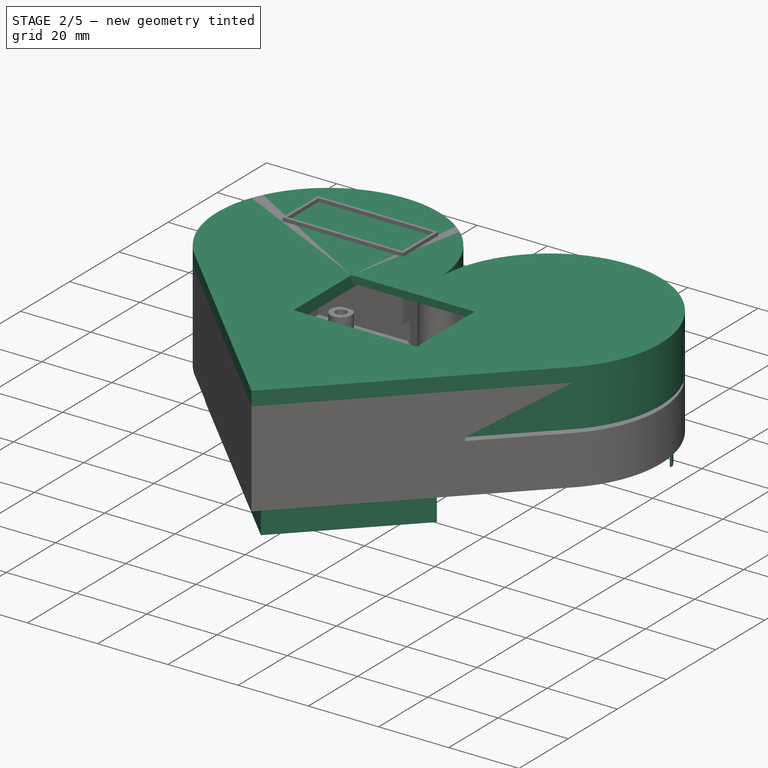
[diagram: stage 2 of 5 — iso view after this stage's code; geometry added in this stage tinted green]
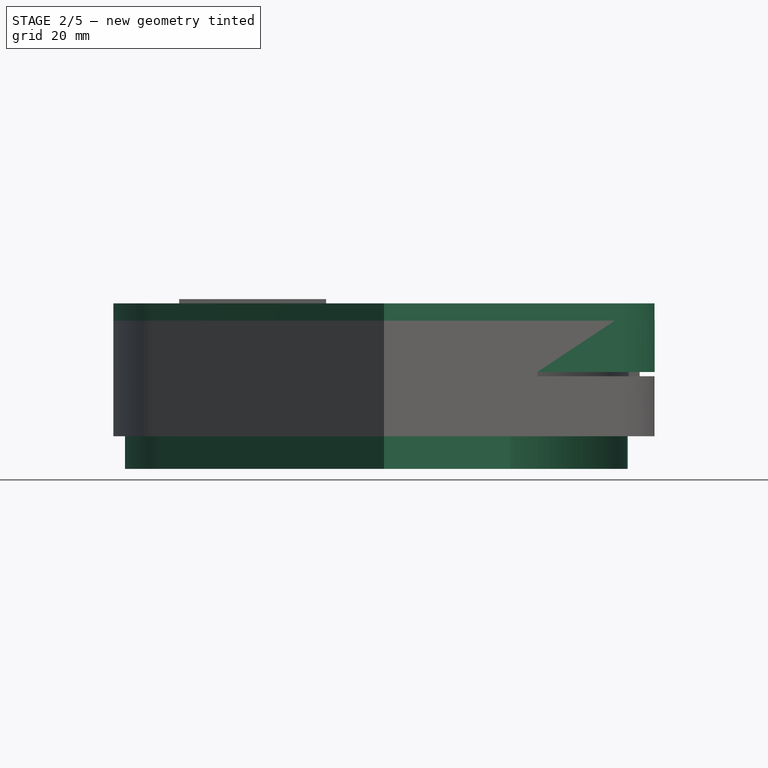
[diagram: stage 2 of 5 — front view after this stage's code; geometry added in this stage tinted green]
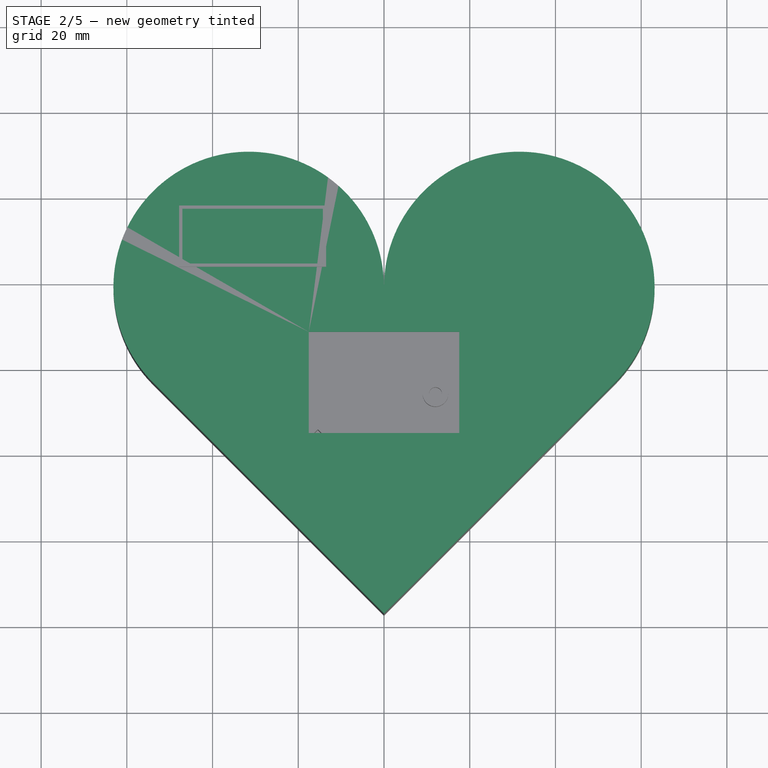
[diagram: stage 2 of 5 — top view after this stage's code; geometry added in this stage tinted green]
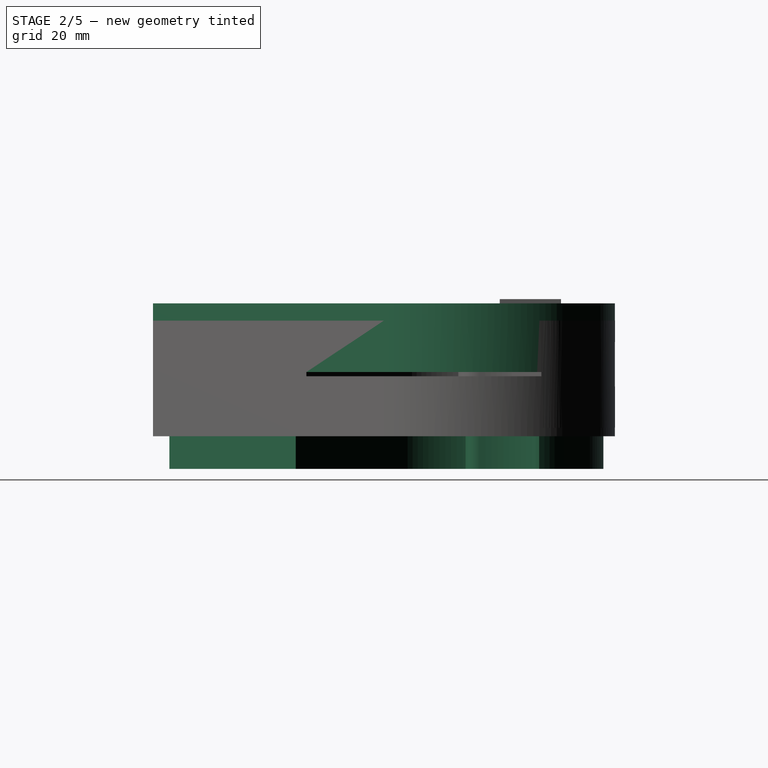
[diagram: stage 2 of 5 — right view after this stage's code; geometry added in this stage tinted green]
FEATURE [Sketcher::SketchObject] Sketch083  label="Sideframe_Sketch"
  FullyConstrained = true
  MapMode = 5
  Support = -> [XY_Plane017]
  sketch-geometry (22):
    g0: GeomPoint X=0 Y=-57.4171 Z=0
    g1: LineSegment StartX=0 StartY=-57.4171 StartZ=0 EndX=53.8815 EndY=-3.53553 EndZ=0
    g2: LineSegment StartX=0 StartY=-57.4171 StartZ=0 EndX=-53.8815 EndY=-3.53553 EndZ=0
    g3: LineSegment StartX=0 StartY=-57.4171 StartZ=0 EndX=0 EndY=18.7829 EndZ=0
    g4: ArcOfCircle CenterX=-31.5631 CenterY=18.7829 CenterZ=0 NormalX=0 NormalY=0 NormalZ=1 AngleXU=0 Radius=31.5631 StartAngle=0 EndAngle=3.92699
    g5: ArcOfCircle CenterX=31.5631 CenterY=18.7829 CenterZ=0 NormalX=0 NormalY=0 NormalZ=1 AngleXU=0 Radius=31.5631 StartAngle=5.49779 EndAngle=9.42478
    g6: LineSegment StartX=0 StartY=-50.346 StartZ=0 EndX=50.346 EndY=7.1e-15 EndZ=0
    g7: LineSegment StartX=0 StartY=-50.346 StartZ=0 EndX=-50.346 EndY=7.1e-15 EndZ=0
    g8: GeomPoint X=0 Y=13.7829 Z=0
    g9: Circle CenterX=-31.5631 CenterY=18.7829 CenterZ=0 NormalX=0 NormalY=0 NormalZ=1 AngleXU=0 Radius=26.5631
    g10: GeomPoint X=-5 Y=18.7829 Z=0
    g11: LineSegment StartX=0 StartY=-50.346 StartZ=0 EndX=3.53553 EndY=-53.8815 EndZ=0
    g12: LineSegment StartX=0 StartY=-50.346 StartZ=0 EndX=-3.53553 EndY=-53.8815 EndZ=0
    g13: Circle CenterX=31.5631 CenterY=18.7829 CenterZ=0 NormalX=0 NormalY=0 NormalZ=1 AngleXU=0 Radius=26.5631
    g14: GeomPoint X=5 Y=18.7829 Z=0
    g15: ArcOfCircle CenterX=-31.5631 CenterY=18.7829 CenterZ=0 NormalX=0 NormalY=0 NormalZ=1 AngleXU=0 Radius=26.5631 StartAngle=0 EndAngle=3.92699
    g16: ArcOfCircle CenterX=31.5631 CenterY=18.7829 CenterZ=0 NormalX=0 NormalY=0 NormalZ=1 AngleXU=0 Radius=26.5631 StartAngle=5.49779 EndAngle=9.42478
    g17: ArcOfCircle CenterX=1e-16 CenterY=18.7829 CenterZ=0 NormalX=0 NormalY=0 NormalZ=1 AngleXU=0 Radius=5 StartAngle=3.14159 EndAngle=6.28319
    g18: GeomPoint X=53.8815 Y=-3.53553 Z=0
    g19: GeomPoint X=36.911 Y=-3.53553 Z=0
    g20: GeomPoint X=45.3963 Y=-12.0208 Z=0
    g21: LineSegment StartX=36.911 StartY=-3.53553 StartZ=0 EndX=45.3963 EndY=-12.0208 EndZ=0
  constraints (49):
    c: PointOnObject(g0,g-2)
    c: Coincident(g1,g0)
    c: Coincident(g2,g1)
    c: Angle(g1,g2) = 1.5708
    c: Coincident(g3,g1)
    c: Vertical(g3)
    c: DistanceY(g3,g3) = 76.2
    c: Coincident(g4,g3)
    c: Coincident(g5,g3)
    c: Symmetric(g4,g5,g3)
    c: Tangent(g5,g1) = -1.5708
    c: Tangent(g4,g2) = 1.5708
    c: Horizontal(g4,g3)
    c: Coincident(g7,g6)
    c: Vertical(g6,g1)
    c: Distance(g4,g8) = 5
    c: Vertical(g8,g4)
    c: Coincident(g9,g4)
    c: Horizontal(g10,g4)
    c: Distance(g10,g4) = 5
    c: Tangent(g7,g9) = 1.5708
    c: Coincident(g11,g6)
    c: PointOnObject(g11,g1)
    c: Distance(g11) = 5
    c: Coincident(g12,g6)
    c: PointOnObject(g12,g2)
    c: Parallel(g12,g1)
    c: Parallel(g11,g2)
    c: Coincident(g13,g5)
    c: Tangent(g6,g13) = -1.5708
    c: Distance(g14,g4) = 5
    c: Horizontal(g14,g5)
    c: Coincident(g15,g4)
    c: Coincident(g15,g10)
    c: Coincident(g15,g7)
    c: Coincident(g16,g5)
    c: Coincident(g16,g14)
    c: Coincident(g16,g6)
    c: Coincident(g17,g15)
    c: Coincident(g17,g16)
    c: PointOnObject(g8,g17)
    c: Horizontal(g-1,g6)
    c: Coincident(g18,g1)
    c: PointOnObject(g20,g1)
    c: Coincident(g21,g19)
    c: Coincident(g21,g20)
    c: Angle(g21,g1) = 1.5708
    c: Distance(g21) = 12
    c: Distance(g1,g20) = 12
FEATURE [PartDesign::Pad] Pad044  label="Sideframe_Pad"
  Direction = (0,0,1)
  Length = 25
  Length2 = 10
  Profile = -> Sketch083
  ReferenceAxis = -> Sketch083 [N_Axis]
  Type = 0
FEATURE [Sketcher::SketchObject] Sketch084  label="SwivelArm_Sketch"
  FullyConstrained = true
  MapMode = 5
  Support = -> [XY_Plane017]
  sketch-geometry (32):
    g0: GeomPoint X=0 Y=-57.4171 Z=0
    g1: LineSegment StartX=0 StartY=-57.4171 StartZ=0 EndX=53.8815 EndY=-3.53553 EndZ=0
    g2: LineSegment StartX=0 StartY=-57.4171 StartZ=0 EndX=-53.8815 EndY=-3.53553 EndZ=0
    g3: LineSegment StartX=0 StartY=-57.4171 StartZ=0 EndX=0 EndY=18.7829 EndZ=0
    g4: ArcOfCircle CenterX=-31.5631 CenterY=18.7829 CenterZ=0 NormalX=0 NormalY=0 NormalZ=1 AngleXU=0 Radius=31.5631 StartAngle=0 EndAngle=3.92699
    g5: ArcOfCircle CenterX=31.5631 CenterY=18.7829 CenterZ=0 NormalX=0 NormalY=0 NormalZ=1 AngleXU=0 Radius=31.5631 StartAngle=5.49779 EndAngle=9.42478
    g6: LineSegment StartX=0 StartY=-50.346 StartZ=0 EndX=50.346 EndY=-7.1e-15 EndZ=0
    g7: LineSegment StartX=0 StartY=-50.346 StartZ=0 EndX=-50.346 EndY=0 EndZ=0
    g8: GeomPoint X=0 Y=13.7829 Z=0
    g9: Circle CenterX=-31.5631 CenterY=18.7829 CenterZ=0 NormalX=0 NormalY=0 NormalZ=1 AngleXU=0 Radius=26.5631
    g10: GeomPoint X=-5 Y=18.7829 Z=0
    g11: LineSegment StartX=0 StartY=-50.346 StartZ=0 EndX=3.53553 EndY=-53.8815 EndZ=0
    g12: LineSegment StartX=0 StartY=-50.346 StartZ=0 EndX=-3.53553 EndY=-53.8815 EndZ=0
    g13: Circle CenterX=31.5631 CenterY=18.7829 CenterZ=0 NormalX=0 NormalY=0 NormalZ=1 AngleXU=0 Radius=26.5631
    g14: GeomPoint X=5 Y=18.7829 Z=0
    g15: ArcOfCircle CenterX=-31.5631 CenterY=18.7829 CenterZ=0 NormalX=0 NormalY=0 NormalZ=1 AngleXU=0 Radius=26.5631 StartAngle=0 EndAngle=3.92699
    g16: ArcOfCircle CenterX=31.5631 CenterY=18.7829 CenterZ=0 NormalX=0 NormalY=0 NormalZ=1 AngleXU=0 Radius=26.5631 StartAngle=5.49779 EndAngle=9.42478
    g17: ArcOfCircle CenterX=1e-16 CenterY=18.7829 CenterZ=0 NormalX=0 NormalY=0 NormalZ=1 AngleXU=0 Radius=5 StartAngle=3.14159 EndAngle=6.28319
    g18: GeomPoint X=53.8815 Y=-3.53553 Z=0
    g19: GeomPoint X=36.911 Y=-3.53553 Z=0
    g20: GeomPoint X=45.3963 Y=-12.0208 Z=0
    g21: LineSegment StartX=36.911 StartY=-3.53553 StartZ=0 EndX=45.3963 EndY=-12.0208 EndZ=0
    g22: ArcOfCircle CenterX=31.5631 CenterY=18.7829 CenterZ=0 NormalX=0 NormalY=0 NormalZ=1 AngleXU=0 Radius=26.5631 StartAngle=5.49779 EndAngle=6.54498
    g23: LineSegment StartX=57.221 StartY=25.658 StartZ=0 EndX=59.6626 EndY=33.158 EndZ=0
    g24: LineSegment StartX=53.8815 StartY=-3.53553 StartZ=0 EndX=36.2039 EndY=-21.2132 EndZ=0
    g25: LineSegment StartX=36.2039 StartY=-21.2132 StartZ=0 EndX=28.7155 EndY=-21.6305 EndZ=0
    g26: LineSegment StartX=59.4473 StartY=33.5713 StartZ=0 EndX=57.0592 EndY=26.2357 EndZ=0
    g27: LineSegment StartX=28.2912 StartY=-22.0548 StartZ=0 EndX=35.7796 EndY=-21.6375 EndZ=0
    g28: ArcOfCircle CenterX=31.5631 CenterY=18.7829 CenterZ=0 NormalX=0 NormalY=0 NormalZ=1 AngleXU=0 Radius=26.5631 StartAngle=5.49779 EndAngle=6.56757
    g29: ArcOfCircle CenterX=31.5631 CenterY=18.7829 CenterZ=0 NormalX=0 NormalY=0 NormalZ=1 AngleXU=0 Radius=31.5631 StartAngle=5.49779 EndAngle=6.77082
    g30: LineSegment StartX=28.2912 StartY=-22.0548 StartZ=0 EndX=50.346 EndY=-7.1e-15 EndZ=0
    g31: LineSegment StartX=53.8815 StartY=-3.53555 StartZ=0 EndX=35.7796 EndY=-21.6375 EndZ=0
  constraints (78):
    c: PointOnObject(g0,g-2)
    c: Coincident(g1,g0)
    c: Coincident(g2,g1)
    c: Angle(g1,g2) = 1.5708
    c: Coincident(g3,g1)
    c: Vertical(g3)
    c: DistanceY(g3,g3) = 76.2
    c: Coincident(g4,g3)
    c: Coincident(g5,g3)
    c: Symmetric(g4,g5,g3)
    c: Tangent(g5,g1) = -1.5708
    c: Tangent(g4,g2) = 1.5708
    c: Horizontal(g4,g3)
    c: Coincident(g7,g6)
    c: Vertical(g6,g1)
    c: Distance(g4,g8) = 5
    c: Vertical(g8,g4)
    c: Coincident(g9,g4)
    c: Horizontal(g10,g4)
    c: Distance(g10,g4) = 5
    c: Tangent(g7,g9) = 1.5708
    c: Coincident(g11,g6)
    c: PointOnObject(g11,g1)
    c: Distance(g11) = 5
    c: Coincident(g12,g6)
    c: PointOnObject(g12,g2)
    c: Parallel(g12,g1)
    c: Parallel(g11,g2)
    c: Coincident(g13,g5)
    c: Tangent(g6,g13) = -1.5708
    c: Distance(g14,g4) = 5
    c: Horizontal(g14,g5)
    c: Coincident(g15,g4)
    c: Coincident(g15,g10)
    c: Coincident(g15,g7)
    c: Coincident(g16,g5)
    c: Coincident(g16,g14)
    c: Coincident(g16,g6)
    c: Coincident(g17,g15)
    c: Coincident(g17,g16)
    c: PointOnObject(g8,g17)
    c: Horizontal(g-1,g6)
    c: Coincident(g18,g1)
    c: PointOnObject(g20,g1)
    c: Coincident(g21,g19)
    c: Coincident(g21,g20)
    c: Angle(g21,g1) = 1.5708
    c: Distance(g21) = 12
    c: Distance(g1,g20) = 12
    c: Coincident(g22,g5)
    c: Angle(g22) = 1.0472
    c: Coincident(g22,g6)
    c: Coincident(g23,g22)
    c: PointOnObject(g23,g5)
    c: DistanceY(g23,g23) = 7.5
    c: Coincident(g24,g1)
    c: PointOnObject(g24,g1)
    c: Distance(g24,g1) = 25
    c: Coincident(g25,g24)
    c: PointOnObject(g25,g6)
    c: Distance(g25) = 7.5
    c: PointOnObject(g26,g5)
    c: PointOnObject(g27,g6)
    c: PointOnObject(g27,g1)
    c: Parallel(g26,g23)
    c: Distance(g26,g22) = 0.6
    c: Parallel(g27,g25)
    c: Coincident(g28,g5)
    c: Coincident(g28,g26)
    c: Coincident(g28,g6)
    c: Coincident(g29,g28)
    c: Coincident(g29,g26)
    c: PointOnObject(g29,g1)
    c: Distance(g27,g24) = 0.6
    c: Coincident(g30,g27)
    c: Coincident(g30,g28)
    c: Coincident(g31,g29)
    c: Coincident(g31,g27)
FEATURE [PartDesign::Pocket] Pocket017  label="SwivelArm_Pocket"
  BaseFeature = -> Pad044
  Direction = (0,0,-1)
  Length = 13
  Length2 = 5
  Profile = -> Sketch084
  ReferenceAxis = -> Sketch084 [N_Axis]
  Reversed = true
  Type = 0
FEATURE [Sketcher::SketchObject] Sketch082  label="Face_Sketch"
  FullyConstrained = true
  MapMode = 5
  Placement = pos=(0,0,25) rot=(0,0,1;0rad)
  Support = -> [Pocket017]
  sketch-geometry (6):
    g0: ArcOfCircle CenterX=-31.5631 CenterY=18.7829 CenterZ=0 NormalX=0 NormalY=0 NormalZ=1 AngleXU=0 Radius=31.5631 StartAngle=1e-16 EndAngle=3.92699
    g1: ArcOfCircle CenterX=31.5631 CenterY=18.7829 CenterZ=0 NormalX=0 NormalY=0 NormalZ=1 AngleXU=0 Radius=31.5631 StartAngle=5.49779 EndAngle=9.42478
    g2: LineSegment StartX=-53.8815 StartY=-3.53553 StartZ=0 EndX=7.1e-15 EndY=-57.4171 EndZ=0
    g3: LineSegment StartX=7.1e-15 StartY=-57.4171 StartZ=0 EndX=53.8815 EndY=-3.53553 EndZ=0
    g4: Circle CenterX=31.5631 CenterY=18.7829 CenterZ=0 NormalX=0 NormalY=0 NormalZ=1 AngleXU=0 Radius=26.5631
    g5: LineSegment StartX=0 StartY=-50.346 StartZ=0 EndX=50.346 EndY=0 EndZ=0
  constraints (15):
    c: Equal(g0,g1)
    c: Symmetric(g0,g1,g-2)
    c: Coincident(g3,g2)
    c: Tangent(g3,g1) = -1.5708
    c: Tangent(g2,g0) = -1.5708
    c: Tangent(g0,g1) = 1.5708
    c: Equal(g2,g3)
    c: Angle(g3,g2) = 1.5708
    c: DistanceY(g2,g1) = 76.2
    c: Coincident(g4,g1)
    c: PointOnObject(g5,g-2)
    c: Tangent(g5,g4) = -1.5708
    c: Parallel(g5,g3)
    c: Distance(g5,g1) = 5
    c: Horizontal(g-1,g5)
FEATURE [PartDesign::Pad] Pad045  label="Face_Pad"
  BaseFeature = -> Pocket017
  Direction = (0,0,1)
  Length = 4
  Length2 = 10
  Profile = -> Sketch082
  ReferenceAxis = -> Sketch082 [N_Axis]
  Type = 0
FEATURE [Sketcher::SketchObject] Sketch085  label="Outter-Screen_Sketch"
  ExternalGeometry = -> [Pad045]
  FullyConstrained = true
  MapMode = 5
  Placement = pos=(0,0,25) rot=(1,0,0;3.14159rad)
  Support = -> [Pad045]
  sketch-geometry (37):
    g0: LineSegment StartX=17.75 StartY=20.25 StartZ=0 EndX=17.75 EndY=-13.25 EndZ=0
    g1: LineSegment StartX=17.75 StartY=-13.25 StartZ=0 EndX=-17.75 EndY=-13.25 EndZ=0
    g2: LineSegment StartX=-17.75 StartY=-13.25 StartZ=0 EndX=-17.75 EndY=20.25 EndZ=0
    g3: LineSegment StartX=-17.75 StartY=20.25 StartZ=0 EndX=17.75 EndY=20.25 EndZ=0
    g4: GeomPoint X=0 Y=3.5 Z=0
    g5: LineSegment StartX=-2.696 StartY=35.85 StartZ=0 EndX=-2.696 EndY=20.75 EndZ=0
    g6: LineSegment StartX=-2.696 StartY=20.75 StartZ=0 EndX=-13.996 EndY=20.75 EndZ=0
    g7: LineSegment StartX=-13.996 StartY=20.75 StartZ=0 EndX=-13.996 EndY=35.85 EndZ=0
    g8: LineSegment StartX=-13.996 StartY=35.85 StartZ=0 EndX=-2.696 EndY=35.85 EndZ=0
    g9: GeomPoint X=-8.346 Y=28.3 Z=0
    g10: LineSegment StartX=13.996 StartY=35.85 StartZ=0 EndX=13.996 EndY=20.75 EndZ=0
    g11: LineSegment StartX=13.996 StartY=20.75 StartZ=0 EndX=2.696 EndY=20.75 EndZ=0
    g12: LineSegment StartX=2.696 StartY=20.75 StartZ=0 EndX=2.696 EndY=35.85 EndZ=0
    g13: LineSegment StartX=2.696 StartY=35.85 StartZ=0 EndX=13.996 EndY=35.85 EndZ=0
    g14: GeomPoint X=8.346 Y=28.3 Z=0
    g15: LineSegment StartX=17.25 StartY=15 StartZ=0 EndX=17.25 EndY=-8 EndZ=0
    g16: LineSegment StartX=17.25 StartY=-8 StartZ=0 EndX=-17.25 EndY=-8 EndZ=0
    g17: LineSegment StartX=-17.25 StartY=-8 StartZ=0 EndX=-17.25 EndY=15 EndZ=0
    g18: LineSegment StartX=-17.25 StartY=15 StartZ=0 EndX=17.25 EndY=15 EndZ=0
    g19: GeomPoint X=0 Y=3.5 Z=0
    g20: GeomPoint X=13.996 Y=36.35 Z=0
    g21: LineSegment StartX=18.35 StartY=20.85 StartZ=0 EndX=18.35 EndY=-13.85 EndZ=0
    g22: LineSegment StartX=18.35 StartY=-13.85 StartZ=0 EndX=-18.35 EndY=-13.85 EndZ=0
    g23: LineSegment StartX=-18.35 StartY=-13.85 StartZ=0 EndX=-18.35 EndY=20.85 EndZ=0
    g24: LineSegment StartX=-18.35 StartY=20.85 StartZ=0 EndX=18.35 EndY=20.85 EndZ=0
    g25: GeomPoint X=0 Y=3.5 Z=0
    g26: LineSegment StartX=17.75 StartY=-13.25 StartZ=0 EndX=18.35 EndY=-13.25 EndZ=0
    g27: LineSegment StartX=17.75 StartY=-13.25 StartZ=0 EndX=17.75 EndY=-13.85 EndZ=0
    g28: LineSegment StartX=18.35 StartY=20.85 StartZ=0 EndX=13.996 EndY=20.85 EndZ=0
    g29: LineSegment StartX=13.996 StartY=20.85 StartZ=0 EndX=13.996 EndY=35.85 EndZ=0
    g30: LineSegment StartX=13.996 StartY=35.85 StartZ=0 EndX=2.696 EndY=35.85 EndZ=0
    g31: LineSegment StartX=2.696 StartY=35.85 StartZ=0 EndX=2.696 EndY=20.85 EndZ=0
    g32: LineSegment StartX=2.696 StartY=20.85 StartZ=0 EndX=-2.696 EndY=20.85 EndZ=0
    g33: LineSegment StartX=-2.696 StartY=20.85 StartZ=0 EndX=-2.696 EndY=35.85 EndZ=0
    g34: LineSegment StartX=-2.696 StartY=35.85 StartZ=0 EndX=-13.996 EndY=35.85 EndZ=0
    g35: LineSegment StartX=-13.996 StartY=35.85 StartZ=0 EndX=-13.996 EndY=20.85 EndZ=0
    g36: LineSegment StartX=-13.996 StartY=20.85 StartZ=0 EndX=-18.35 EndY=20.85 EndZ=0
  constraints (92):
    c: Coincident(g0,g1)
    c: Coincident(g1,g2)
    c: Coincident(g2,g3)
    c: Coincident(g3,g0)
    c: Horizontal(g1)
    c: Horizontal(g3)
    c: Vertical(g0)
    c: Vertical(g2)
    c: Symmetric(g1,g0,g4)
    c: Coincident(g5,g6)
    c: Coincident(g6,g7)
    c: Coincident(g7,g8)
    c: Coincident(g8,g5)
    c: Horizontal(g6)
    c: Horizontal(g8)
    c: Vertical(g5)
    c: Vertical(g7)
    c: Symmetric(g6,g5,g9)
    c: Coincident(g10,g11)
    c: Coincident(g11,g12)
    c: Coincident(g12,g13)
    c: Coincident(g13,g10)
    c: Horizontal(g11)
    c: Horizontal(g13)
    c: Vertical(g10)
    c: Vertical(g12)
    c: Symmetric(g11,g10,g14)
    c: Equal(g11,g6)
    c: Equal(g12,g7)
    c: Symmetric(g14,g9,g-2)
    c: PointOnObject(g4,g-2)
    c: Distance(g5) = 15.1
    c: Distance(g6) = 11.3
    c: Distance(g1) = 35.5
    c: DistanceY(g0,g0) = 33.5
    c: Coincident(g15,g16)
    c: Coincident(g16,g17)
    c: Coincident(g17,g18)
    c: Coincident(g18,g15)
    c: Horizontal(g16)
    c: Horizontal(g18)
    c: Vertical(g15)
    c: Vertical(g17)
    c: Symmetric(g16,g15,g19)
    c: Coincident(g19,g4)
    c: Distance(g17) = 23
    c: Distance(g16) = 34.5
    c: DistanceY(g0,g10) = 0.5
    c: PointOnObject(g20,g-3)
    c: Vertical(g20,g10)
    c: Distance(g10,g20) = 0.5
    c: Distance(g-1,g4) = 3.5
    c: Coincident(g21,g22)
    c: Coincident(g22,g23)
    c: Coincident(g23,g24)
    c: Coincident(g24,g21)
    c: Horizontal(g22)
    c: Horizontal(g24)
    c: Vertical(g21)
    c: Vertical(g23)
    c: Symmetric(g22,g21,g25)
    c: Coincident(g25,g4)
    c: Coincident(g26,g0)
    c: PointOnObject(g26,g21)
    c: Horizontal(g26)
    c: Coincident(g27,g0)
    c: PointOnObject(g27,g22)
    c: Vertical(g27)
    c: Equal(g27,g26)
    c: Distance(g26) = 0.6
    c: Coincident(g28,g21)
    c: PointOnObject(g28,g10)
    c: Coincident(g29,g28)
    c: Coincident(g29,g10)
    c: Coincident(g30,g29)
    c: Coincident(g30,g12)
    c: Coincident(g31,g30)
    c: PointOnObject(g31,g24)
    c: Coincident(g32,g31)
    c: PointOnObject(g32,g5)
    c: Horizontal(g28)
    c: Vertical(g31)
    c: Horizontal(g32)
    c: Coincident(g33,g32)
    c: Coincident(g33,g5)
    c: Coincident(g34,g33)
    c: Coincident(g34,g7)
    c: Coincident(g35,g34)
    c: PointOnObject(g35,g24)
    c: Vertical(g35)
    c: Coincident(g36,g35)
    c: Coincident(g36,g23)
FEATURE [PartDesign::Pocket] Pocket018  label="ScreenOuter_Pocket"
  BaseFeature = -> Pad045
  Direction = (0,0,1)
  Length = 2
  Length2 = 5
  Profile = -> Sketch085
  ReferenceAxis = -> Sketch085 [N_Axis]
  Type = 0
FEATURE [Sketcher::SketchObject] Sketch086  label="Inner-Screen_Sketch"
  ExternalGeometry = -> [Pocket018]
  FullyConstrained = true
  MapMode = 5
  Placement = pos=(0,0,25) rot=(1,0,0;3.14159rad)
  sketch-geometry (42):
    g0: LineSegment StartX=17.75 StartY=20.25 StartZ=0 EndX=17.75 EndY=-13.25 EndZ=0
    g1: LineSegment StartX=17.75 StartY=-13.25 StartZ=0 EndX=-17.75 EndY=-13.25 EndZ=0
    g2: LineSegment StartX=-17.75 StartY=-13.25 StartZ=0 EndX=-17.75 EndY=20.25 EndZ=0
    g3: LineSegment StartX=-17.75 StartY=20.25 StartZ=0 EndX=17.75 EndY=20.25 EndZ=0
    g4: GeomPoint X=0 Y=3.5 Z=0
    g5: LineSegment StartX=-2.696 StartY=35.85 StartZ=0 EndX=-2.696 EndY=20.75 EndZ=0
    g6: LineSegment StartX=-2.696 StartY=20.75 StartZ=0 EndX=-13.996 EndY=20.75 EndZ=0
    g7: LineSegment StartX=-13.996 StartY=20.75 StartZ=0 EndX=-13.996 EndY=35.85 EndZ=0
    g8: LineSegment StartX=-13.996 StartY=35.85 StartZ=0 EndX=-2.696 EndY=35.85 EndZ=0
    g9: GeomPoint X=-8.346 Y=28.3 Z=0
    g10: LineSegment StartX=13.996 StartY=35.85 StartZ=0 EndX=13.996 EndY=20.75 EndZ=0
    g11: LineSegment StartX=13.996 StartY=20.75 StartZ=0 EndX=2.696 EndY=20.75 EndZ=0
    g12: LineSegment StartX=2.696 StartY=20.75 StartZ=0 EndX=2.696 EndY=35.85 EndZ=0
    g13: LineSegment StartX=2.696 StartY=35.85 StartZ=0 EndX=13.996 EndY=35.85 EndZ=0
    g14: GeomPoint X=8.346 Y=28.3 Z=0
    g15: LineSegment StartX=17.25 StartY=15 StartZ=0 EndX=17.25 EndY=-8 EndZ=0
    g16: LineSegment StartX=17.25 StartY=-8 StartZ=0 EndX=-17.25 EndY=-8 EndZ=0
    g17: LineSegment StartX=-17.25 StartY=-8 StartZ=0 EndX=-17.25 EndY=15 EndZ=0
    g18: LineSegment StartX=-17.25 StartY=15 StartZ=0 EndX=17.25 EndY=15 EndZ=0
    g19: GeomPoint X=0 Y=3.5 Z=0
    g20: GeomPoint X=13.996 Y=36.35 Z=0
    g21: LineSegment StartX=18.35 StartY=20.85 StartZ=0 EndX=18.35 EndY=-13.85 EndZ=0
    g22: LineSegment StartX=18.35 StartY=-13.85 StartZ=0 EndX=-18.35 EndY=-13.85 EndZ=0
    g23: LineSegment StartX=-18.35 StartY=-13.85 StartZ=0 EndX=-18.35 EndY=20.85 EndZ=0
    g24: LineSegment StartX=-18.35 StartY=20.85 StartZ=0 EndX=18.35 EndY=20.85 EndZ=0
    g25: GeomPoint X=0 Y=3.5 Z=0
    g26: LineSegment StartX=17.75 StartY=-13.25 StartZ=0 EndX=18.35 EndY=-13.25 EndZ=0
    g27: LineSegment StartX=17.75 StartY=-13.25 StartZ=0 EndX=17.75 EndY=-13.85 EndZ=0
    g28: LineSegment StartX=18.35 StartY=20.85 StartZ=0 EndX=13.996 EndY=20.85 EndZ=0
    g29: LineSegment StartX=13.996 StartY=20.85 StartZ=0 EndX=13.996 EndY=35.85 EndZ=0
    g30: LineSegment StartX=13.996 StartY=35.85 StartZ=0 EndX=2.696 EndY=35.85 EndZ=0
    g31: LineSegment StartX=2.696 StartY=35.85 StartZ=0 EndX=2.696 EndY=20.85 EndZ=0
    g32: LineSegment StartX=2.696 StartY=20.85 StartZ=0 EndX=-2.696 EndY=20.85 EndZ=0
    g33: LineSegment StartX=-2.696 StartY=20.85 StartZ=0 EndX=-2.696 EndY=35.85 EndZ=0
    g34: LineSegment StartX=-2.696 StartY=35.85 StartZ=0 EndX=-13.996 EndY=35.85 EndZ=0
    g35: LineSegment StartX=-13.996 StartY=35.85 StartZ=0 EndX=-13.996 EndY=20.85 EndZ=0
    g36: LineSegment StartX=-13.996 StartY=20.85 StartZ=0 EndX=-18.35 EndY=20.85 EndZ=0
    g37: LineSegment StartX=17.55 StartY=15.3 StartZ=0 EndX=17.55 EndY=-8.3 EndZ=0
    g38: LineSegment StartX=17.55 StartY=-8.3 StartZ=0 EndX=-17.55 EndY=-8.3 EndZ=0
    g39: LineSegment StartX=-17.55 StartY=-8.3 StartZ=0 EndX=-17.55 EndY=15.3 EndZ=0
    g40: LineSegment StartX=-17.55 StartY=15.3 StartZ=0 EndX=17.55 EndY=15.3 EndZ=0
    g41: GeomPoint X=0 Y=3.5 Z=0
  constraints (104):
    c: Coincident(g0,g1)
    c: Coincident(g1,g2)
    c: Coincident(g2,g3)
    c: Coincident(g3,g0)
    c: Horizontal(g1)
    c: Horizontal(g3)
    c: Vertical(g0)
    c: Vertical(g2)
    c: Symmetric(g1,g0,g4)
    c: Coincident(g5,g6)
    c: Coincident(g6,g7)
    c: Coincident(g7,g8)
    c: Coincident(g8,g5)
    c: Horizontal(g6)
    c: Horizontal(g8)
    c: Vertical(g5)
    c: Vertical(g7)
    c: Symmetric(g6,g5,g9)
    c: Coincident(g10,g11)
    c: Coincident(g11,g12)
    c: Coincident(g12,g13)
    c: Coincident(g13,g10)
    c: Horizontal(g11)
    c: Horizontal(g13)
    c: Vertical(g10)
    c: Vertical(g12)
    c: Symmetric(g11,g10,g14)
    c: Equal(g11,g6)
    c: Equal(g12,g7)
    c: Symmetric(g14,g9,g-2)
    c: PointOnObject(g4,g-2)
    c: Distance(g5) = 15.1
    c: Distance(g6) = 11.3
    c: Distance(g1) = 35.5
    c: DistanceY(g0,g0) = 33.5
    c: Coincident(g15,g16)
    c: Coincident(g16,g17)
    c: Coincident(g17,g18)
    c: Coincident(g18,g15)
    c: Horizontal(g16)
    c: Horizontal(g18)
    c: Vertical(g15)
    c: Vertical(g17)
    c: Symmetric(g16,g15,g19)
    c: Coincident(g19,g4)
    c: Distance(g17) = 23
    c: Distance(g16) = 34.5
    c: DistanceY(g0,g10) = 0.5
    c: Vertical(g20,g10)
    c: Distance(g10,g20) = 0.5
    c: Distance(g-1,g4) = 3.5
    c: Coincident(g21,g22)
    c: Coincident(g22,g23)
    c: Coincident(g23,g24)
    c: Coincident(g24,g21)
    c: Horizontal(g22)
    c: Horizontal(g24)
    c: Vertical(g21)
    c: Vertical(g23)
    c: Symmetric(g22,g21,g25)
    c: Coincident(g25,g4)
    c: Coincident(g26,g0)
    c: PointOnObject(g26,g21)
    c: Horizontal(g26)
    c: Coincident(g27,g0)
    c: PointOnObject(g27,g22)
    c: Vertical(g27)
    c: Equal(g27,g26)
    c: Distance(g26) = 0.6
    c: Coincident(g28,g21)
    c: PointOnObject(g28,g10)
    c: Coincident(g29,g28)
    c: Coincident(g29,g10)
    c: Coincident(g30,g29)
    c: Coincident(g30,g12)
    c: Coincident(g31,g30)
    c: PointOnObject(g31,g24)
    c: Coincident(g32,g31)
    c: PointOnObject(g32,g5)
    c: Horizontal(g28)
    c: Vertical(g31)
    c: Horizontal(g32)
    c: Coincident(g33,g32)
    c: Coincident(g33,g5)
    c: Coincident(g34,g33)
    c: Coincident(g34,g7)
    c: Coincident(g35,g34)
    c: PointOnObject(g35,g24)
    c: Vertical(g35)
    c: Coincident(g36,g35)
    c: Coincident(g36,g23)
    c: PointOnObject(g20,g-3)
    c: Coincident(g37,g38)
    c: Coincident(g38,g39)
    c: Coincident(g39,g40)
    c: Coincident(g40,g37)
    c: Horizontal(g38)
    c: Horizontal(g40)
    c: Vertical(g37)
    c: Vertical(g39)
    c: Symmetric(g38,g37,g41)
    c: Coincident(g41,g4)
    c: DistanceY(g38,g16) = 0.3
    c: DistanceX(g38,g16) = 0.3
FEATURE [PartDesign::Pocket] Pocket019  label="ScreenInner_Pocket"
  BaseFeature = -> Pocket018
  Direction = (0,0,1)
  Length = 5
  Length2 = 5
  Profile = -> Sketch086
  ReferenceAxis = -> Sketch086 [N_Axis]
  Type = 0
FEATURE [Sketcher::SketchObject] Sketch087
  FullyConstrained = true
  MapMode = 5
  Placement = pos=(0,0,25) rot=(1,0,0;3.14159rad)
  Support = -> [Pocket019]
FEATURE [Sketcher::SketchObject] Sketch088  label="FrictionJoint_Sketch"
  ExternalGeometry = -> [Pocket019]
  FullyConstrained = true
  MapMode = 5
  Support = -> [XY_Plane017]
  sketch-geometry (40):
    g0: GeomPoint X=0 Y=-57.4171 Z=0
    g1: LineSegment StartX=0 StartY=-57.4171 StartZ=0 EndX=53.8815 EndY=-3.53553 EndZ=0
    g2: LineSegment StartX=0 StartY=-57.4171 StartZ=0 EndX=-53.8815 EndY=-3.53553 EndZ=0
    g3: LineSegment StartX=0 StartY=-57.4171 StartZ=0 EndX=0 EndY=18.7829 EndZ=0
    g4: ArcOfCircle CenterX=-31.5631 CenterY=18.7829 CenterZ=0 NormalX=0 NormalY=0 NormalZ=1 AngleXU=0 Radius=31.5631 StartAngle=0 EndAngle=3.92699
    g5: ArcOfCircle CenterX=31.5631 CenterY=18.7829 CenterZ=0 NormalX=0 NormalY=0 NormalZ=1 AngleXU=0 Radius=31.5631 StartAngle=5.49779 EndAngle=9.42478
    g6: LineSegment StartX=0 StartY=-50.346 StartZ=0 EndX=50.346 EndY=-7.1e-15 EndZ=0
    g7: LineSegment StartX=0 StartY=-50.346 StartZ=0 EndX=-50.346 EndY=1.42e-14 EndZ=0
    g8: GeomPoint X=0 Y=13.7829 Z=0
    g9: Circle CenterX=-31.5631 CenterY=18.7829 CenterZ=0 NormalX=0 NormalY=0 NormalZ=1 AngleXU=0 Radius=26.5631
    g10: GeomPoint X=-5 Y=18.7829 Z=0
    g11: LineSegment StartX=0 StartY=-50.346 StartZ=0 EndX=3.53553 EndY=-53.8815 EndZ=0
    g12: LineSegment StartX=0 StartY=-50.346 StartZ=0 EndX=-3.53553 EndY=-53.8815 EndZ=0
    g13: Circle CenterX=31.5631 CenterY=18.7829 CenterZ=0 NormalX=0 NormalY=0 NormalZ=1 AngleXU=0 Radius=26.5631
    g14: GeomPoint X=5 Y=18.7829 Z=0
    g15: ArcOfCircle CenterX=-31.5631 CenterY=18.7829 CenterZ=0 NormalX=0 NormalY=0 NormalZ=1 AngleXU=0 Radius=26.5631 StartAngle=0 EndAngle=3.92699
    g16: ArcOfCircle CenterX=31.5631 CenterY=18.7829 CenterZ=0 NormalX=0 NormalY=0 NormalZ=1 AngleXU=0 Radius=26.5631 StartAngle=5.49779 EndAngle=9.42478
    g17: ArcOfCircle CenterX=1e-16 CenterY=18.7829 CenterZ=0 NormalX=0 NormalY=0 NormalZ=1 AngleXU=0 Radius=5 StartAngle=3.14159 EndAngle=6.28319
    g18: GeomPoint X=53.8815 Y=-3.53553 Z=0
    g19: GeomPoint X=36.911 Y=-3.53553 Z=0
    g20: GeomPoint X=45.3963 Y=-12.0208 Z=0
    g21: LineSegment StartX=36.911 StartY=-3.53553 StartZ=0 EndX=45.3963 EndY=-12.0208 EndZ=0
    g22: ArcOfCircle CenterX=-31.5631 CenterY=18.7829 CenterZ=0 NormalX=0 NormalY=0 NormalZ=1 AngleXU=0 Radius=28.2631 StartAngle=0 EndAngle=3.92699
    g23: ArcOfCircle CenterX=31.5631 CenterY=18.7829 CenterZ=0 NormalX=0 NormalY=0 NormalZ=1 AngleXU=0 Radius=28.2631 StartAngle=5.49779 EndAngle=9.42478
    g24: LineSegment StartX=-51.5481 StartY=-1.20208 StartZ=0 EndX=0 EndY=-52.7502 EndZ=0
    g25: LineSegment StartX=0 StartY=-52.7502 StartZ=0 EndX=51.5481 EndY=-1.20208 EndZ=0
    g26: ArcOfCircle CenterX=0 CenterY=18.7829 CenterZ=0 NormalX=0 NormalY=0 NormalZ=1 AngleXU=0 Radius=3.3 StartAngle=3.14159 EndAngle=6.28319
    g27: ArcOfCircle CenterX=-31.5631 CenterY=18.7829 CenterZ=0 NormalX=0 NormalY=0 NormalZ=1 AngleXU=0 Radius=28.8631 StartAngle=0 EndAngle=3.92699
    g28: ArcOfCircle CenterX=31.5631 CenterY=18.7829 CenterZ=0 NormalX=0 NormalY=0 NormalZ=1 AngleXU=0 Radius=28.8631 StartAngle=5.49779 EndAngle=9.42478
    g29: LineSegment StartX=-51.9723 StartY=-1.62635 StartZ=0 EndX=0 EndY=-53.5987 EndZ=0
    g30: LineSegment StartX=3.6e-15 StartY=-53.5987 StartZ=0 EndX=51.9723 EndY=-1.62635 EndZ=0
    g31: ArcOfCircle CenterX=0 CenterY=18.7829 CenterZ=0 NormalX=0 NormalY=0 NormalZ=1 AngleXU=0 Radius=2.7 StartAngle=3.14159 EndAngle=6.28319
    g32: LineSegment StartX=56.6219 StartY=31.8542 StartZ=0 EndX=56.8794 EndY=32.6452 EndZ=0
    g33: LineSegment StartX=28.5745 StartY=-24.1756 StartZ=0 EndX=29.4731 EndY=-24.1256 EndZ=0
    g34: GeomPoint X=30.8373 Y=-21.9129 Z=0
    g35: GeomPoint X=57.9388 Y=28.9377 Z=0
    g36: ArcOfCircle CenterX=31.5631 CenterY=18.7829 CenterZ=0 NormalX=0 NormalY=0 NormalZ=1 AngleXU=0 Radius=28.2631 StartAngle=0.480796 EndAngle=3.14159
    g37: ArcOfCircle CenterX=31.5631 CenterY=18.7829 CenterZ=0 NormalX=0 NormalY=0 NormalZ=1 AngleXU=0 Radius=28.8631 StartAngle=0.500969 EndAngle=3.14159
    g38: LineSegment StartX=0 StartY=-52.7502 StartZ=0 EndX=28.5745 EndY=-24.1756 EndZ=0
    g39: LineSegment StartX=29.4731 StartY=-24.1256 StartZ=0 EndX=3.6e-15 EndY=-53.5987 EndZ=0
  constraints (91):
    c: PointOnObject(g0,g-2)
    c: Coincident(g1,g0)
    c: Coincident(g2,g1)
    c: Angle(g1,g2) = 1.5708
    c: Coincident(g3,g1)
    c: Vertical(g3)
    c: DistanceY(g3,g3) = 76.2
    c: Coincident(g4,g3)
    c: Coincident(g5,g3)
    c: Symmetric(g4,g5,g3)
    c: Tangent(g5,g1) = -1.5708
    c: Tangent(g4,g2) = 1.5708
    c: Horizontal(g4,g3)
    c: Coincident(g7,g6)
    c: Vertical(g6,g1)
    c: Distance(g4,g8) = 5
    c: Vertical(g8,g4)
    c: Coincident(g9,g4)
    c: Horizontal(g10,g4)
    c: Distance(g10,g4) = 5
    c: Tangent(g7,g9) = 1.5708
    c: Coincident(g11,g6)
    c: PointOnObject(g11,g1)
    c: Distance(g11) = 5
    c: Coincident(g12,g6)
    c: PointOnObject(g12,g2)
    c: Parallel(g12,g1)
    c: Parallel(g11,g2)
    c: Coincident(g13,g5)
    c: Tangent(g6,g13) = -1.5708
    c: Distance(g14,g4) = 5
    c: Horizontal(g14,g5)
    c: Coincident(g15,g4)
    c: Coincident(g15,g10)
    c: Coincident(g15,g7)
    c: Coincident(g16,g5)
    c: Coincident(g16,g14)
    c: Coincident(g16,g6)
    c: Coincident(g17,g15)
    c: Coincident(g17,g16)
    c: PointOnObject(g8,g17)
    c: Horizontal(g-1,g6)
    c: Coincident(g18,g1)
    c: PointOnObject(g20,g1)
    c: Coincident(g21,g19)
    c: Coincident(g21,g20)
    c: Angle(g21,g1) = 1.5708
    c: Distance(g21) = 12
    c: Distance(g1,g20) = 12
    c: Coincident(g22,g4)
    c: Coincident(g23,g5)
    c: PointOnObject(g24,g3)
    c: Coincident(g25,g24)
    c: Tangent(g23,g25) = -1.5708
    c: Parallel(g24,g2)
    c: Tangent(g22,g24) = -1.5708
    c: Coincident(g26,g3)
    c: Tangent(g23,g26) = 1.5708
    c: Distance(g10,g22) = 1.7
    c: Coincident(g27,g22)
    c: Coincident(g28,g23)
    c: PointOnObject(g29,g3)
    c: Coincident(g30,g29)
    c: Tangent(g30,g28) = -1.5708
    c: Tangent(g29,g27) = -1.5708
    c: Parallel(g24,g29)
    c: Coincident(g31,g26)
    c: Tangent(g31,g28) = 1.5708
    c: Tangent(g31,g27) = 1.5708
    c: Distance(g22,g27) = 0.6
    c: PointOnObject(g33,g25)
    c: PointOnObject(g33,g30)
    c: Parallel(g33,g-4)
    c: PointOnObject(g34,g-4)
    c: PointOnObject(g34,g25)
    c: Distance(g34,g33) = 3.2
    c: PointOnObject(g35,g-3)
    c: PointOnObject(g35,g23)
    c: Distance(g32,g35) = 3.2
    c: Coincident(g36,g5)
    c: Coincident(g36,g32)
    c: Coincident(g36,g26)
    c: Coincident(g37,g36)
    c: Coincident(g37,g31)
    c: Coincident(g37,g32)
    c: Parallel(g32,g-3)
    c: Tangent(g26,g22) = 1.5708
    c: Coincident(g38,g24)
    c: Coincident(g38,g33)
    c: Coincident(g39,g33)
    c: Coincident(g39,g29)
FEATURE [PartDesign::Pad] Pad046  label="FrictionJoint_Pad"
  BaseFeature = -> Pocket019
  Direction = (0,0,1)
  Length = 9.6
  Length2 = 10
  Profile = -> Sketch088
  ReferenceAxis = -> Sketch088 [N_Axis]
  Reversed = true
  Type = 0
FEATURE [Sketcher::SketchObject] Sketch059  label="MotorCasing_Sketch003"
  FullyConstrained = true
  MapMode = 5
  sketch-geometry (87):
    g0: GeomPoint X=0 Y=-57.4171 Z=0
    g1: LineSegment StartX=0 StartY=-57.4171 StartZ=0 EndX=53.8815 EndY=-3.53553 EndZ=0
    g2: LineSegment StartX=0 StartY=-57.4171 StartZ=0 EndX=-53.8815 EndY=-3.53553 EndZ=0
    g3: LineSegment StartX=0 StartY=-57.4171 StartZ=0 EndX=0 EndY=18.7829 EndZ=0
    g4: ArcOfCircle CenterX=-31.5631 CenterY=18.7829 CenterZ=0 NormalX=0 NormalY=0 NormalZ=1 AngleXU=0 Radius=31.5631 StartAngle=0 EndAngle=3.92699
    g5: ArcOfCircle CenterX=31.5631 CenterY=18.7829 CenterZ=0 NormalX=0 NormalY=0 NormalZ=1 AngleXU=0 Radius=31.5631 StartAngle=5.49779 EndAngle=9.42478
    g6: LineSegment StartX=0 StartY=-50.346 StartZ=0 EndX=50.346 EndY=0 EndZ=0
    g7: LineSegment StartX=0 StartY=-50.346 StartZ=0 EndX=-50.346 EndY=0 EndZ=0
    g8: GeomPoint X=0 Y=13.7829 Z=0
    g9: Circle CenterX=-31.5631 CenterY=18.7829 CenterZ=0 NormalX=0 NormalY=0 NormalZ=1 AngleXU=0 Radius=26.5631
    g10: GeomPoint X=-5 Y=18.7829 Z=0
    g11: LineSegment StartX=0 StartY=-50.346 StartZ=0 EndX=3.53553 EndY=-53.8815 EndZ=0
    g12: LineSegment StartX=0 StartY=-50.346 StartZ=0 EndX=-3.53553 EndY=-53.8815 EndZ=0
    g13: Circle CenterX=31.5631 CenterY=18.7829 CenterZ=0 NormalX=0 NormalY=0 NormalZ=1 AngleXU=0 Radius=26.5631
    g14: GeomPoint X=5 Y=18.7829 Z=0
    g15: ArcOfCircle CenterX=-31.5631 CenterY=18.7829 CenterZ=0 NormalX=0 NormalY=0 NormalZ=1 AngleXU=0 Radius=26.5631 StartAngle=0 EndAngle=3.92699
    g16: ArcOfCircle CenterX=31.5631 CenterY=18.7829 CenterZ=0 NormalX=0 NormalY=0 NormalZ=1 AngleXU=0 Radius=26.5631 StartAngle=5.49779 EndAngle=9.42478
    g17: ArcOfCircle CenterX=-1e-16 CenterY=18.7829 CenterZ=0 NormalX=0 NormalY=0 NormalZ=1 AngleXU=0 Radius=5 StartAngle=3.14159 EndAngle=6.28319
    g18: GeomPoint X=53.8815 Y=-3.53553 Z=0
    g19: GeomPoint X=36.911 Y=-3.53553 Z=0
    g20: GeomPoint X=45.3963 Y=-12.0208 Z=0
    g21: LineSegment StartX=36.911 StartY=-3.53553 StartZ=0 EndX=45.3963 EndY=-12.0208 EndZ=0
    g22: Circle CenterX=36.911 CenterY=-3.53553 CenterZ=0 NormalX=0 NormalY=0 NormalZ=1 AngleXU=0 Radius=3.75
    g23: Circle CenterX=36.911 CenterY=-3.53553 CenterZ=0 NormalX=0 NormalY=0 NormalZ=1 AngleXU=0 Radius=5
    g24: Circle CenterX=36.911 CenterY=-3.53553 CenterZ=0 NormalX=0 NormalY=0 NormalZ=1 AngleXU=0 Radius=6
    g25: Circle CenterX=12.0061 CenterY=-5.71443 CenterZ=0 NormalX=0 NormalY=0 NormalZ=1 AngleXU=0 Radius=18.75
    g26: Circle CenterX=12.0061 CenterY=-5.71443 CenterZ=0 NormalX=0 NormalY=0 NormalZ=1 AngleXU=0 Radius=21
    g27: Circle CenterX=12.0061 CenterY=-5.71443 CenterZ=0 NormalX=0 NormalY=0 NormalZ=1 AngleXU=0 Radius=20
    g28: Circle CenterX=-25.5816 CenterY=7.96638 CenterZ=0 NormalX=0 NormalY=0 NormalZ=1 AngleXU=0 Radius=18.75
    g29: Circle CenterX=-25.5816 CenterY=7.96638 CenterZ=0 NormalX=0 NormalY=0 NormalZ=1 AngleXU=0 Radius=20
    g30: Circle CenterX=-25.5816 CenterY=7.96638 CenterZ=0 NormalX=0 NormalY=0 NormalZ=1 AngleXU=0 Radius=21
    g31: Circle CenterX=-36.1471 CenterY=30.6241 CenterZ=0 NormalX=0 NormalY=0 NormalZ=1 AngleXU=0 Radius=6
    g32: Circle CenterX=-36.1471 CenterY=30.6241 CenterZ=0 NormalX=0 NormalY=0 NormalZ=1 AngleXU=0 Radius=5
    g33: Circle CenterX=-36.1471 CenterY=30.6241 CenterZ=0 NormalX=0 NormalY=0 NormalZ=1 AngleXU=0 Radius=3.75
    g34: LineSegment StartX=-36.1471 StartY=30.6241 StartZ=0 EndX=-25.5816 EndY=7.96638 EndZ=0
    g35: LineSegment StartX=-25.5816 StartY=7.96638 StartZ=0 EndX=12.0061 EndY=-5.71443 EndZ=0
    g36: LineSegment StartX=12.0061 StartY=-5.71443 StartZ=0 EndX=36.911 EndY=-3.53553 EndZ=0
    g37: Circle CenterX=-36.1471 CenterY=30.6241 CenterZ=0 NormalX=0 NormalY=0 NormalZ=1 AngleXU=0 Radius=1.5
    g38: Circle CenterX=-25.5816 CenterY=7.96638 CenterZ=0 NormalX=0 NormalY=0 NormalZ=1 AngleXU=0 Radius=1.5
    g39: Circle CenterX=12.0061 CenterY=-5.71443 CenterZ=0 NormalX=0 NormalY=0 NormalZ=1 AngleXU=0 Radius=1.5
    g40: Circle CenterX=36.911 CenterY=-3.53553 CenterZ=0 NormalX=0 NormalY=0 NormalZ=1 AngleXU=0 Radius=1.5
    g41: LineSegment StartX=-33.8616 StartY=28.6807 StartZ=0 EndX=-25.6013 EndY=10.9663 EndZ=0
    g42: LineSegment StartX=-27.867 StartY=9.90977 StartZ=0 EndX=-36.1274 EndY=27.6241 EndZ=0
    g43: ArcOfCircle CenterX=-36.1471 CenterY=30.6241 CenterZ=0 NormalX=0 NormalY=0 NormalZ=1 AngleXU=0 Radius=3 StartAngle=5.5785 EndAngle=11.0021
    g44: LineSegment StartX=-22.5914 StartY=8.20824 StartZ=0 EndX=9.87092 EndY=-3.60706 EndZ=0
    g45: LineSegment StartX=-23.4464 StartY=5.85901 StartZ=0 EndX=9.01587 EndY=-5.95629 EndZ=0
    g46: ArcOfCircle CenterX=-25.5816 CenterY=7.96638 CenterZ=0 NormalX=0 NormalY=0 NormalZ=1 AngleXU=0 Radius=3 StartAngle=0.0807096 EndAngle=1.57735
    g47: ArcOfCircle CenterX=-25.5816 CenterY=7.96638 CenterZ=0 NormalX=0 NormalY=0 NormalZ=1 AngleXU=0 Radius=3 StartAngle=2.4369 EndAngle=5.50434
    g48: LineSegment StartX=14.614 StartY=-4.23149 StartZ=0 EndX=34.0852 EndY=-2.52798 EndZ=0
    g49: LineSegment StartX=14.8319 StartY=-6.72198 StartZ=0 EndX=34.3031 EndY=-5.01847 EndZ=0
    g50: ArcOfCircle CenterX=12.0061 CenterY=-5.71443 CenterZ=0 NormalX=0 NormalY=0 NormalZ=1 AngleXU=0 Radius=3 StartAngle=0.517042 EndAngle=2.36275
    g51: ArcOfCircle CenterX=12.0061 CenterY=-5.71443 CenterZ=0 NormalX=0 NormalY=0 NormalZ=1 AngleXU=0 Radius=3 StartAngle=3.2223 EndAngle=5.94068
    g52: ArcOfCircle CenterX=36.911 CenterY=-3.53553 CenterZ=0 NormalX=0 NormalY=0 NormalZ=1 AngleXU=0 Radius=3 StartAngle=3.65863 EndAngle=9.08227
    g53: GeomPoint X=14.8319 Y=-5.46721 Z=0
    g54: LineSegment StartX=14.8319 StartY=-5.46721 StartZ=0 EndX=14.614 EndY=-4.23149 EndZ=0
    g55: LineSegment StartX=14.8319 StartY=-5.46721 StartZ=0 EndX=14.8319 EndY=-6.72198 EndZ=0
    g56: LineSegment StartX=14.614 StartY=-4.23149 StartZ=0 EndX=14.8319 EndY=-6.72198 EndZ=0
    g57: LineSegment StartX=9.87092 StartY=-3.60706 StartZ=0 EndX=9.01587 EndY=-5.95629 EndZ=0
    g58: LineSegment StartX=-14.6471 StartY=36.6241 StartZ=0 EndX=-46.6471 EndY=36.6241 EndZ=0
    g59: LineSegment StartX=-46.6471 StartY=36.6241 StartZ=0 EndX=-46.6471 EndY=24.6241 EndZ=0
    g60: LineSegment StartX=-46.6471 StartY=24.6241 StartZ=0 EndX=-14.6471 EndY=24.6241 EndZ=0
    g61: LineSegment StartX=-14.6471 StartY=24.6241 StartZ=0 EndX=-14.6471 EndY=36.6241 EndZ=0
    g62: LineSegment StartX=-19.1471 StartY=36.6241 StartZ=0 EndX=-42.1471 EndY=36.6241 EndZ=0
    g63: LineSegment StartX=-42.1471 StartY=36.6241 StartZ=0 EndX=-42.1471 EndY=24.6241 EndZ=0
    g64: LineSegment StartX=-42.1471 StartY=24.6241 StartZ=0 EndX=-19.1471 EndY=24.6241 EndZ=0
    g65: LineSegment StartX=-19.1471 StartY=24.6241 StartZ=0 EndX=-19.1471 EndY=36.6241 EndZ=0
    g66: GeomPoint X=-30.6471 Y=30.6241 Z=0
    g67: GeomPoint X=-16.7721 Y=30.6241 Z=0
    g68: GeomPoint X=-44.5221 Y=30.6241 Z=0
    g69: LineSegment StartX=-16.7721 StartY=30.6241 StartZ=0 EndX=-44.5221 EndY=30.6241 EndZ=0
    g70: Circle CenterX=-16.7721 CenterY=30.6241 CenterZ=0 NormalX=0 NormalY=0 NormalZ=1 AngleXU=0 Radius=1.375
    g71: Circle CenterX=-44.5221 CenterY=30.6241 CenterZ=0 NormalX=0 NormalY=0 NormalZ=1 AngleXU=0 Radius=1.375
    g72: GeomPoint X=-42.1471 Y=30.6241 Z=0
    g73: GeomPoint X=-43.1471 Y=30.6241 Z=0
    g74: GeomPoint X=-18.1471 Y=30.6241 Z=0
    g75: Circle CenterX=-44.5221 CenterY=30.6241 CenterZ=0 NormalX=0 NormalY=0 NormalZ=1 AngleXU=0 Radius=1.35
    g76: Circle CenterX=-16.7721 CenterY=30.6241 CenterZ=0 NormalX=0 NormalY=0 NormalZ=1 AngleXU=0 Radius=1.35
    g77: LineSegment StartX=-47.7971 StartY=23.4741 StartZ=0 EndX=-47.7971 EndY=37.7741 EndZ=0
    g78: LineSegment StartX=-47.7971 StartY=37.7741 StartZ=0 EndX=-13.4971 EndY=37.7741 EndZ=0
    g79: LineSegment StartX=-13.4971 StartY=37.7741 StartZ=0 EndX=-13.4971 EndY=23.4741 EndZ=0
    g80: LineSegment StartX=-13.4971 StartY=23.4741 StartZ=0 EndX=-47.7971 EndY=23.4741 EndZ=0
    g81: GeomPoint X=-30.6471 Y=30.6241 Z=0
    g82: LineSegment StartX=-47.0471 StartY=24.2241 StartZ=0 EndX=-47.0471 EndY=37.0241 EndZ=0
    g83: LineSegment StartX=-47.0471 StartY=37.0241 StartZ=0 EndX=-14.2471 EndY=37.0241 EndZ=0
    g84: LineSegment StartX=-14.2471 StartY=37.0241 StartZ=0 EndX=-14.2471 EndY=24.2241 EndZ=0
    g85: LineSegment StartX=-14.2471 StartY=24.2241 StartZ=0 EndX=-47.0471 EndY=24.2241 EndZ=0
    g86: GeomPoint X=-30.6471 Y=30.6241 Z=0
  constraints (199):
    c: PointOnObject(g0,g-2)
    c: Coincident(g1,g0)
    c: Coincident(g2,g1)
    c: Angle(g1,g2) = 1.5708
    c: Coincident(g3,g1)
    c: Vertical(g3)
    c: DistanceY(g3,g3) = 76.2
    c: Coincident(g4,g3)
    c: Coincident(g5,g3)
    c: Symmetric(g4,g5,g3)
    c: Tangent(g5,g1) = -1.5708
    c: Tangent(g4,g2) = 1.5708
    c: Horizontal(g4,g3)
    c: Coincident(g7,g6)
    c: Vertical(g6,g1)
    c: Distance(g4,g8) = 5
    c: Vertical(g8,g4)
    c: Coincident(g9,g4)
    c: Horizontal(g10,g4)
    c: Distance(g10,g4) = 5
    c: Tangent(g7,g9) = 1.5708
    c: Coincident(g11,g6)
    c: PointOnObject(g11,g1)
    c: Distance(g11) = 5
    c: Coincident(g12,g6)
    c: PointOnObject(g12,g2)
    c: Parallel(g12,g1)
    c: Parallel(g11,g2)
    c: Coincident(g13,g5)
    c: Tangent(g6,g13) = -1.5708
    c: Distance(g14,g4) = 5
    c: Horizontal(g14,g5)
    c: Coincident(g15,g4)
    c: Coincident(g15,g10)
    c: Coincident(g15,g7)
    c: Coincident(g16,g5)
    c: Coincident(g16,g14)
    c: Coincident(g16,g6)
    c: Coincident(g17,g15)
    c: Coincident(g17,g16)
    c: PointOnObject(g8,g17)
    c: Horizontal(g-1,g6)
    c: Coincident(g18,g1)
    c: PointOnObject(g20,g1)
    c: Coincident(g21,g19)
    c: Coincident(g21,g20)
    c: Angle(g21,g1) = 1.5708
    c: Distance(g21) = 12
    c: Distance(g1,g20) = 12
    c: Coincident(g22,g19)
    c: Diameter(g22) = 7.5
    c: Coincident(g23,g19)
    c: Diameter(g23) = 10
    c: Coincident(g24,g19)
    c: Diameter(g24) = 12
    c: Coincident(g26,g25)
    c: Coincident(g27,g25)
    c: Diameter(g26) = 42
    c: Diameter(g27) = 40
    c: Diameter(g25) = 37.5
    c: Tangent(g23,g27)
    c: Coincident(g29,g28)
    c: Coincident(g30,g28)
    c: Diameter(g30) = 42
    c: Diameter(g29) = 40
    c: Diameter(g28) = 37.5
    c: Tangent(g29,g27)
    c: Coincident(g32,g31)
    c: Coincident(g33,g31)
    c: Diameter(g31) = 12
    c: Diameter(g32) = 10
    c: Diameter(g33) = 7.5
    c: Tangent(g32,g29)
    c: Coincident(g34,g31)
    c: Coincident(g34,g28)
    c: Coincident(g35,g28)
    c: Coincident(g35,g25)
    c: Coincident(g36,g25)
    c: Coincident(g36,g19)
    c: Angle(g35,g34) = 2.35619
    c: Angle(g36,g35) = 2.70526
    c: Angle(g36,g21) = 2.26893
    c: Coincident(g37,g31)
    c: Coincident(g38,g28)
    c: Coincident(g39,g25)
    c: Coincident(g40,g19)
    c: Equal(g37,g38)
    c: Equal(g38,g39)
    c: Equal(g39,g40)
    c: Diameter(g40) = 3
    c: Coincident(g43,g37)
    c: Coincident(g43,g41)
    c: Coincident(g43,g42)
    c: Parallel(g42,g41)
    c: Parallel(g41,g34)
    c: Parallel(g45,g35)
    c: Parallel(g35,g44)
    c: Coincident(g46,g38)
    c: Coincident(g46,g41)
    c: Coincident(g46,g44)
    c: Coincident(g47,g38)
    c: Coincident(g47,g42)
    c: Coincident(g47,g45)
    c: Coincident(g50,g39)
    c: Coincident(g50,g48)
    c: Coincident(g50,g44)
    c: Coincident(g51,g39)
    c: Coincident(g51,g49)
    c: Coincident(g51,g45)
    c: Coincident(g52,g40)
    c: Coincident(g52,g48)
    c: Coincident(g49,g52)
    c: Symmetric(g42,g41,g34)
    c: Equal(g50,g47)
    c: Equal(g47,g43)
    c: Symmetric(g45,g44,g35)
    c: Diameter(g43) = 6
    c: Distance(g42,g41) = 2.5
    c: Distance(g44,g45) = 2.5
    c: Equal(g52,g50)
    c: Parallel(g49,g36)
    c: Parallel(g36,g48)
    c: PointOnObject(g53,g36)
    c: Coincident(g54,g53)
    c: Coincident(g54,g48)
    c: Coincident(g55,g53)
    c: Coincident(g55,g49)
    c: Vertical(g55)
    c: Equal(g55,g54)
    c: Coincident(g56,g48)
    c: Coincident(g56,g49)
    c: Coincident(g57,g44)
    c: Coincident(g57,g45)
    c: Equal(g57,g56)
    c: Coincident(g58,g59)
    c: Coincident(g59,g60)
    c: Coincident(g60,g61)
    c: Coincident(g61,g58)
    c: Parallel(g61,g59)
    c: Parallel(g60,g58)
    c: Angle(g60,g59) = 1.5708
    c: Distance(g60) = 32
    c: Coincident(g62,g63)
    c: Coincident(g63,g64)
    c: Coincident(g64,g65)
    c: Coincident(g65,g62)
    c: PointOnObject(g63,g60)
    c: Angle(g64,g63) = 1.5708
    c: Parallel(g64,g62)
    c: Parallel(g64,g60)
    c: Symmetric(g64,g62,g66)
    c: Symmetric(g60,g58,g66)
    c: Distance(g59) = 12
    c: Distance(g64,g63) = 23
    c: Coincident(g69,g67)
    c: Coincident(g69,g68)
    c: Symmetric(g64,g62,g69)
    c: Coincident(g70,g67)
    c: Coincident(g71,g68)
    c: Equal(g70,g71)
    c: Symmetric(g67,g68,g66)
    c: PointOnObject(g72,g31)
    c: Symmetric(g63,g62,g72)
    c: Tangent(g60,g31)
    c: Horizontal(g31,g68)
    c: PointOnObject(g73,g69)
    c: PointOnObject(g74,g69)
    c: PointOnObject(g74,g70)
    c: PointOnObject(g73,g71)
    c: Distance(g74,g73) = 25
    c: Diameter(g71) = 2.75
    c: Coincident(g75,g68)
    c: Coincident(g76,g67)
    c: Equal(g76,g75)
    c: Diameter(g75) = 2.7
    c: Coincident(g77,g78)
    c: Coincident(g78,g79)
    c: Coincident(g79,g80)
    c: Coincident(g80,g77)
    c: Horizontal(g78)
    c: Horizontal(g80)
    c: Vertical(g77)
    c: Vertical(g79)
    c: Symmetric(g78,g77,g81)
    c: Coincident(g81,g66)
    c: Coincident(g82,g83)
    c: Coincident(g83,g84)
    c: Coincident(g84,g85)
    c: Coincident(g85,g82)
    c: Horizontal(g83)
    c: Horizontal(g85)
    c: Vertical(g82)
    c: Vertical(g84)
    c: Symmetric(g83,g82,g86)
    c: Coincident(g86,g66)
    c: DistanceX(g58,g83) = 0.4
    c: DistanceY(g58,g83) = 0.4
    c: DistanceX(g83,g78) = 0.75
    c: DistanceY(g83,g78) = 0.75
FEATURE [Sketcher::SketchObject] Sketch060  label="FrictionJoint_Sketch001"
  ExternalGeometry = -> [Pad047]
  FullyConstrained = true
  MapMode = 5
  Placement = pos=(0,0,25) rot=(0,0,1;0rad)
  Support = -> [Pad047]
  sketch-geometry (27):
    g0: ArcOfCircle CenterX=31.5631 CenterY=18.7829 CenterZ=0 NormalX=0 NormalY=0 NormalZ=1 AngleXU=0 Radius=31.5631 StartAngle=5.49779 EndAngle=9.42478
    g1: ArcOfCircle CenterX=-31.5631 CenterY=18.7829 CenterZ=0 NormalX=0 NormalY=0 NormalZ=1 AngleXU=0 Radius=31.5631 StartAngle=0 EndAngle=3.92699
    g2: LineSegment StartX=0 StartY=-57.4171 StartZ=0 EndX=53.8815 EndY=-3.53553 EndZ=0
    g3: LineSegment StartX=0 StartY=-57.4171 StartZ=0 EndX=-53.8815 EndY=-3.53553 EndZ=0
    g4: ArcOfCircle CenterX=31.5631 CenterY=18.7829 CenterZ=0 NormalX=0 NormalY=0 NormalZ=1 AngleXU=0 Radius=26.5631 StartAngle=5.49779 EndAngle=9.42478
    g5: ArcOfCircle CenterX=-31.5631 CenterY=18.7829 CenterZ=0 NormalX=0 NormalY=0 NormalZ=1 AngleXU=0 Radius=26.5631 StartAngle=6.28319 EndAngle=10.2102
    g6: ArcOfCircle CenterX=2.2e-15 CenterY=18.7829 CenterZ=0 NormalX=0 NormalY=0 NormalZ=1 AngleXU=0 Radius=5 StartAngle=3.14159 EndAngle=6.28319
    g7: LineSegment StartX=-50.346 StartY=-3.6e-15 StartZ=0 EndX=0 EndY=-50.346 EndZ=0
    g8: LineSegment StartX=0 StartY=-50.346 StartZ=0 EndX=50.346 EndY=0 EndZ=0
    g9: ArcOfCircle CenterX=-31.5631 CenterY=18.7829 CenterZ=0 NormalX=0 NormalY=0 NormalZ=1 AngleXU=0 Radius=28.0631 StartAngle=1.74367e-09 EndAngle=3.92699
    g10: ArcOfCircle CenterX=31.5631 CenterY=18.7829 CenterZ=0 NormalX=0 NormalY=0 NormalZ=1 AngleXU=0 Radius=28.0631 StartAngle=5.49779 EndAngle=9.42478
    g11: LineSegment StartX=-51.4067 StartY=-1.06066 StartZ=0 EndX=0 EndY=-52.4673 EndZ=0
    g12: LineSegment StartX=0 StartY=-52.4673 StartZ=0 EndX=51.4067 EndY=-1.06067 EndZ=0
    g13: ArcOfCircle CenterX=2.2e-15 CenterY=18.7829 CenterZ=0 NormalX=0 NormalY=0 NormalZ=1 AngleXU=0 Radius=3.5 StartAngle=3.14159 EndAngle=6.28319
    g14: LineSegment StartX=-52.1138 StartY=-1.76777 StartZ=0 EndX=0 EndY=-53.8815 EndZ=0
    g15: LineSegment StartX=0 StartY=-53.8815 StartZ=0 EndX=52.1138 EndY=-1.76777 EndZ=0
    g16: ArcOfCircle CenterX=-31.5631 CenterY=18.7829 CenterZ=0 NormalX=0 NormalY=0 NormalZ=1 AngleXU=0 Radius=29.0631 StartAngle=6.28319 EndAngle=10.2102
    g17: ArcOfCircle CenterX=31.5631 CenterY=18.7829 CenterZ=0 NormalX=0 NormalY=0 NormalZ=1 AngleXU=0 Radius=29.0631 StartAngle=5.49779 EndAngle=9.42478
    g18: ArcOfCircle CenterX=2.2e-15 CenterY=18.7829 CenterZ=0 NormalX=0 NormalY=0 NormalZ=1 AngleXU=0 Radius=2.5 StartAngle=3.14159 EndAngle=6.28319
    g19: LineSegment StartX=56.6601 StartY=31.3397 StartZ=0 EndX=57.1296 EndY=32.6037 EndZ=0
    g20: GeomPoint X=58.4181 Y=29.8946 Z=0
    g21: LineSegment StartX=28.4164 StartY=-24.0509 StartZ=0 EndX=29.9141 EndY=-23.9674 EndZ=0
    g22: GeomPoint X=30.5377 Y=-21.9296 Z=0
    g23: ArcOfCircle CenterX=31.5631 CenterY=18.7829 CenterZ=0 NormalX=0 NormalY=0 NormalZ=1 AngleXU=0 Radius=28.0631 StartAngle=0.463911 EndAngle=3.14159
    g24: ArcOfCircle CenterX=31.5631 CenterY=18.7829 CenterZ=0 NormalX=0 NormalY=0 NormalZ=1 AngleXU=0 Radius=29.0631 StartAngle=0.495584 EndAngle=3.14159
    g25: LineSegment StartX=0 StartY=-53.8815 StartZ=0 EndX=29.9141 EndY=-23.9674 EndZ=0
    g26: LineSegment StartX=0 StartY=-52.4673 StartZ=0 EndX=28.4164 EndY=-24.0509 EndZ=0
  constraints (67):
    c: PointOnObject(g2,g-2)
    c: Coincident(g3,g2)
    c: Symmetric(g3,g2,g-2)
    c: Angle(g2,g3) = 1.5708
    c: Tangent(g1,g3) = 1.5708
    c: Tangent(g2,g0) = -1.5708
    c: Tangent(g1,g0) = 1.5708
    c: Equal(g0,g1)
    c: DistanceY(g2,g0) = 76.2
    c: Coincident(g4,g0)
    c: Coincident(g5,g1)
    c: Coincident(g6,g0)
    c: PointOnObject(g7,g-2)
    c: Coincident(g8,g7)
    c: Tangent(g8,g4) = -1.5708
    c: Tangent(g7,g5) = -1.5708
    c: Distance(g4,g0) = 5
    c: Horizontal(g4,g-1)
    c: Parallel(g8,g2)
    c: Parallel(g7,g3)
    c: Coincident(g5,g6)
    c: Tangent(g6,g4) = 1.5708
    c: Coincident(g9,g1)
    c: Coincident(g10,g0)
    c: Equal(g10,g9)
    c: PointOnObject(g11,g-2)
    c: Coincident(g12,g11)
    c: Coincident(g12,g10)
    c: Parallel(g12,g2)
    c: Tangent(g11,g9) = -1.5708
    c: Coincident(g13,g0)
    c: Coincident(g13,g9)
    c: Tangent(g13,g10) = 1.5708
    c: Distance(g5,g9) = 1.5
    c: PointOnObject(g14,g-2)
    c: Coincident(g15,g14)
    c: Coincident(g16,g9)
    c: Coincident(g17,g10)
    c: Tangent(g17,g15) = -1.5708
    c: Tangent(g16,g14) = -1.5708
    c: Symmetric(g16,g17,g-2)
    c: Coincident(g18,g13)
    c: Coincident(g18,g16)
    c: Tangent(g18,g17) = 1.5708
    c: Distance(g18,g10) = 1
    c: PointOnObject(g20,g17)
    c: PointOnObject(g20,g-3)
    c: Distance(g19,g20) = 3
    c: Parallel(g19,g-3)
    c: PointOnObject(g21,g12)
    c: PointOnObject(g21,g15)
    c: Parallel(g-4,g21)
    c: PointOnObject(g22,g-4)
    c: PointOnObject(g22,g12)
    c: Distance(g22,g21) = 3
    c: Coincident(g23,g0)
    c: Coincident(g23,g19)
    c: Coincident(g23,g13)
    c: Coincident(g24,g23)
    c: Coincident(g24,g19)
    c: Coincident(g24,g18)
    c: Coincident(g25,g14)
    c: Coincident(g25,g21)
    c: Coincident(g26,g11)
    c: Coincident(g26,g21)
    c: Parallel(g26,g25)
    c: Parallel(g11,g14)
FEATURE [PartDesign::Pocket] Pocket022  label="FrictionJoint_Pocket"
  BaseFeature = -> Pad047
  Direction = (0,0,-1)
  Length = 10
  Length2 = 5
  Profile = -> Sketch060
  ReferenceAxis = -> Sketch060 [N_Axis]
  Type = 0
FEATURE [Sketcher::SketchObject] Sketch093  label="USB-C_Hole_Sketch"
  FullyConstrained = true
  MapMode = 5
  Support = -> [XY_Plane]
  sketch-geometry (32):
    g0: LineSegment StartX=-53.8815 StartY=-3.53553 StartZ=0 EndX=3.1974e-12 EndY=-57.4171 EndZ=0
    g1: LineSegment StartX=3.1974e-12 StartY=-57.4171 StartZ=0 EndX=53.8815 EndY=-3.53553 EndZ=0
    g2: Circle CenterX=-31.5631 CenterY=18.7829 CenterZ=0 NormalX=0 NormalY=0 NormalZ=1 AngleXU=0 Radius=31.5631
    g3: Circle CenterX=31.5631 CenterY=18.7829 CenterZ=0 NormalX=0 NormalY=0 NormalZ=1 AngleXU=0 Radius=31.5631
    g4: LineSegment StartX=0 StartY=-50.346 StartZ=0 EndX=50.346 EndY=0 EndZ=0
    g5: Circle CenterX=31.5631 CenterY=18.7829 CenterZ=0 NormalX=0 NormalY=0 NormalZ=1 AngleXU=0 Radius=26.5631
    g6: ArcOfCircle CenterX=28.6631 CenterY=42.846 CenterZ=0 NormalX=0 NormalY=0 NormalZ=1 AngleXU=0 Radius=1.5 StartAngle=1.5708 EndAngle=4.71239
    g7: ArcOfCircle CenterX=34.4631 CenterY=42.846 CenterZ=0 NormalX=0 NormalY=0 NormalZ=1 AngleXU=0 Radius=1.5 StartAngle=4.71239 EndAngle=7.85398
    g8: LineSegment StartX=28.6631 StartY=41.346 StartZ=0 EndX=34.4631 EndY=41.346 EndZ=0
    g9: LineSegment StartX=34.4631 StartY=44.346 StartZ=0 EndX=28.6631 EndY=44.346 EndZ=0
    g10: GeomPoint X=27.1631 Y=42.846 Z=0
    g11: GeomPoint X=35.9631 Y=42.846 Z=0
    g12: LineSegment StartX=25.8131 StartY=41.346 StartZ=0 EndX=37.3131 EndY=41.346 EndZ=0
    g13: LineSegment StartX=37.3131 StartY=41.346 StartZ=0 EndX=37.3131 EndY=40.346 EndZ=0
    g14: LineSegment StartX=37.3131 StartY=40.346 StartZ=0 EndX=25.8131 EndY=40.346 EndZ=0
    g15: LineSegment StartX=25.8131 StartY=40.346 StartZ=0 EndX=25.8131 EndY=41.346 EndZ=0
    g16: GeomPoint X=31.5631 Y=41.346 Z=0
    g17: GeomPoint X=31.5631 Y=45.346 Z=0
    g18: ArcOfCircle CenterX=28.6631 CenterY=42.846 CenterZ=0 NormalX=0 NormalY=0 NormalZ=1 AngleXU=0 Radius=1.9 StartAngle=1.5708 EndAngle=4.71239
    g19: ArcOfCircle CenterX=34.4631 CenterY=42.846 CenterZ=0 NormalX=0 NormalY=0 NormalZ=1 AngleXU=0 Radius=1.9 StartAngle=4.71239 EndAngle=7.85398
    g20: LineSegment StartX=28.6631 StartY=40.946 StartZ=0 EndX=34.4631 EndY=40.946 EndZ=0
    g21: LineSegment StartX=34.4631 StartY=44.746 StartZ=0 EndX=28.6631 EndY=44.746 EndZ=0
    g22: GeomPoint X=36.3631 Y=42.846 Z=0
    g23: LineSegment StartX=25.0131 StartY=44.5258 StartZ=0 EndX=25.0131 EndY=38.9311 EndZ=0
    g24: LineSegment StartX=25.0131 StartY=38.9311 StartZ=0 EndX=38.1131 EndY=38.9311 EndZ=0
    g25: LineSegment StartX=38.1131 StartY=38.9311 StartZ=0 EndX=38.1131 EndY=44.5258 EndZ=0
    g26: ArcOfCircle CenterX=31.5631 CenterY=18.7829 CenterZ=0 NormalX=0 NormalY=0 NormalZ=1 AngleXU=0 Radius=26.5631 StartAngle=1.32164 EndAngle=1.81995
    g27: LineSegment StartX=28.6631 StartY=40.946 StartZ=0 EndX=34.4631 EndY=40.946 EndZ=0
    g28: LineSegment StartX=28.6631 StartY=39.4311 StartZ=0 EndX=34.4631 EndY=39.4311 EndZ=0
    g29: LineSegment StartX=34.4631 StartY=39.4311 StartZ=0 EndX=34.4631 EndY=39.9311 EndZ=0
    g30: LineSegment StartX=34.4631 StartY=39.9311 StartZ=0 EndX=28.6631 EndY=39.9311 EndZ=0
    g31: LineSegment StartX=28.6631 StartY=39.9311 StartZ=0 EndX=28.6631 EndY=39.4311 EndZ=0
  constraints (80):
    c: Coincident(g0,g1)
    c: Perpendicular(g0,g1)
    c: Equal(g1,g0)
    c: Equal(g2,g3)
    c: Tangent(g3,g2)
    c: Tangent(g0,g2) = -1.5708
    c: Tangent(g1,g3) = -1.5708
    c: DistanceY(g0,g3) = 76.2
    c: Parallel(g4,g1)
    c: Coincident(g5,g3)
    c: Distance(g4,g1) = 5
    c: Tangent(g4,g5) = -1.5708
    c: Tangent(g6,g8) = -1.5708
    c: Tangent(g8,g7) = -1.5708
    c: Tangent(g7,g9) = -1.5708
    c: Tangent(g9,g6) = -1.5708
    c: Equal(g6,g7)
    c: Horizontal(g8)
    c: PointOnObject(g10,g6)
    c: PointOnObject(g11,g7)
    c: Distance(g10,g11) = 8.8
    c: Distance(g7,g7) = 3
    c: Horizontal(g7,g11)
    c: Horizontal(g6,g10)
    c: Coincident(g12,g13)
    c: Coincident(g13,g14)
    c: Coincident(g14,g15)
    c: Coincident(g15,g12)
    c: Horizontal(g12)
    c: Horizontal(g14)
    c: Vertical(g13)
    c: Vertical(g15)
    c: Distance(g13) = 1
    c: Distance(g12) = 11.5
    c: Symmetric(g12,g12,g16)
    c: Symmetric(g8,g8,g16)
    c: Vertical(g16,g3)
    c: PointOnObject(g17,g5)
    c: Vertical(g17,g3)
    c: DistanceY(g6,g17) = 1
    c: Tangent(g18,g20) = -1.5708
    c: Tangent(g20,g19) = -1.5708
    c: Tangent(g19,g21) = -1.5708
    c: Tangent(g21,g18) = -1.5708
    c: Equal(g18,g19)
    c: Coincident(g18,g6)
    c: Coincident(g19,g7)
    c: PointOnObject(g22,g19)
    c: Horizontal(g22,g11)
    c: Distance(g11,g22) = 0.4
    c: PointOnObject(g23,g5)
    c: Vertical(g23)
    c: Coincident(g24,g23)
    c: Horizontal(g24)
    c: Coincident(g25,g24)
    c: PointOnObject(g25,g5)
    c: Vertical(g25)
    c: Coincident(g26,g23)
    c: Coincident(g26,g25)
    c: Tangent(g26,g5)
    c: DistanceX(g23,g14) = 0.8
    c: DistanceX(g13,g24) = 0.8
    c: PointOnObject(g4,g-1)
    c: PointOnObject(g4,g-2)
    c: Symmetric(g2,g26,g-2)
    c: Coincident(g27,g18)
    c: Coincident(g27,g19)
    c: Coincident(g28,g29)
    c: Coincident(g29,g30)
    c: Coincident(g30,g31)
    c: Coincident(g31,g28)
    c: Horizontal(g28)
    c: Horizontal(g30)
    c: Vertical(g29)
    c: Vertical(g31)
    c: Equal(g30,g20)
    c: Vertical(g18,g30)
    c: Vertical(g29,g19)
    c: Distance(g29) = 0.5
    c: DistanceY(g23,g28) = 0.5
FEATURE [PartDesign::Pocket] Pocket009  label="USB-C_Pocket"
  BaseFeature = -> Pocket022
  Direction = (0,0,-1)
  Length = 2
  Length2 = 5
  Profile = -> Sketch093
  ReferenceAxis = -> Sketch093 [N_Axis]
  Type = 0
FEATURE [PartDesign::Body] Body  label="Backplate"
  Group = -> [Sketch019,Sketch016,Pad025,Sketch042,Pad026,Sketch045,Sketch047,Pad031,Sketch049,Pocket006,Sketch,Pocket007,Sketch090,Pad,Sketch091,Pocket,Sketch092,Pad047,Sketch059,Sketch060,Pocket022,Sketch093,Pocket009]
  Origin = -> Origin
  Placement = pos=(0,0,-25) rot=(0,0,1;0rad)
  Tip = -> Pocket009
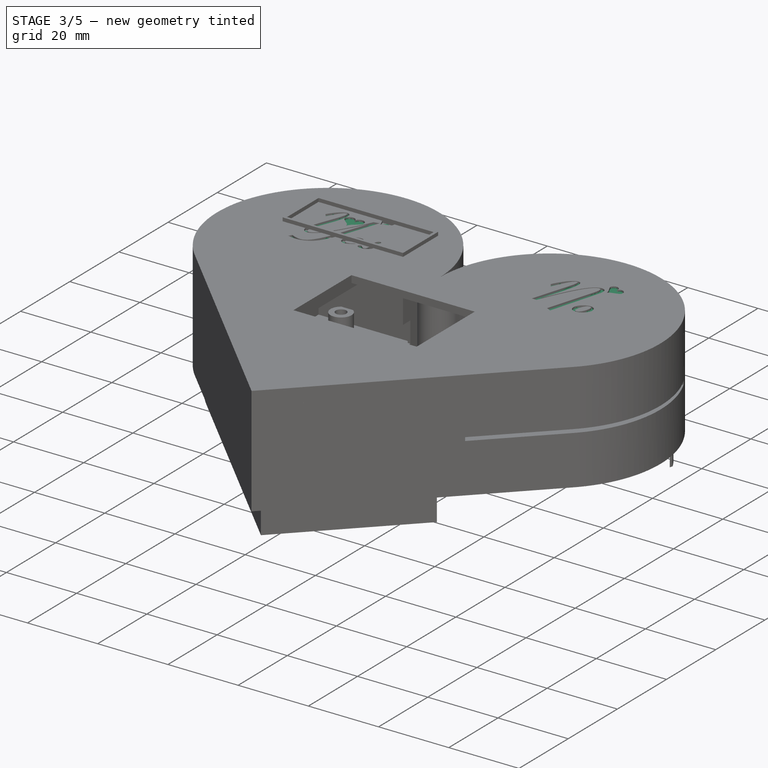
[diagram: stage 3 of 5 — iso view after this stage's code; geometry added in this stage tinted green]
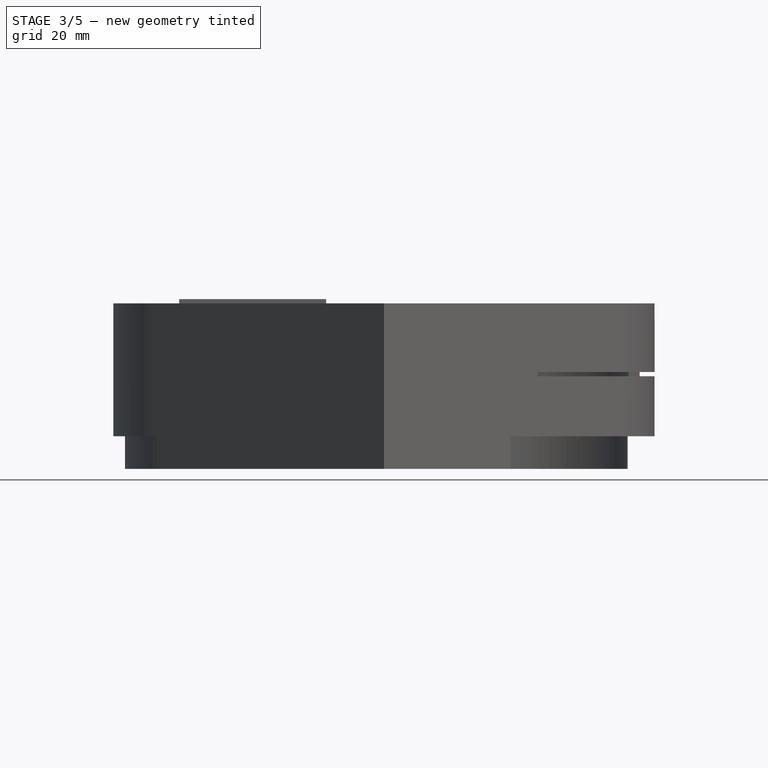
[diagram: stage 3 of 5 — front view after this stage's code; geometry added in this stage tinted green]
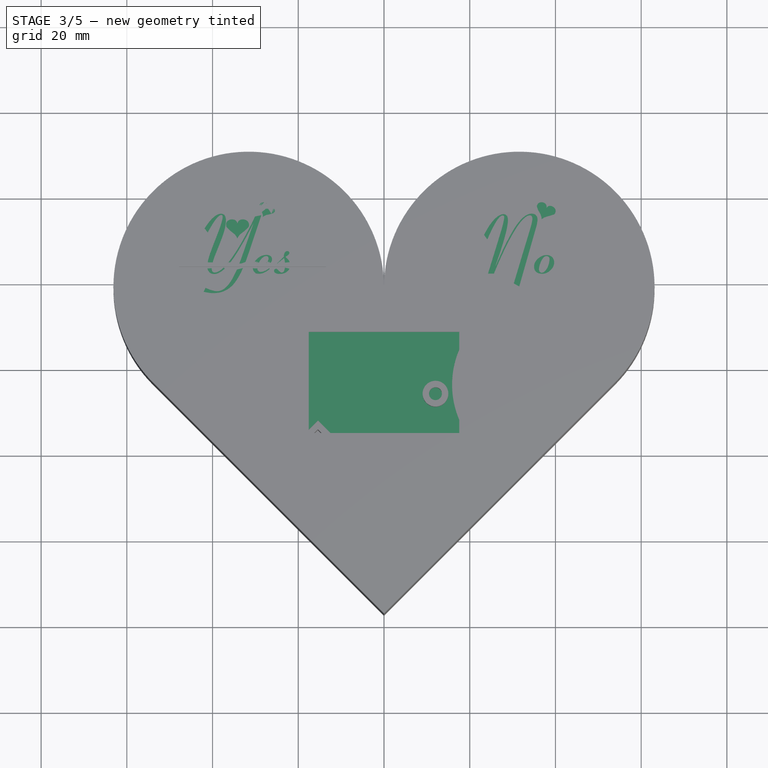
[diagram: stage 3 of 5 — top view after this stage's code; geometry added in this stage tinted green]
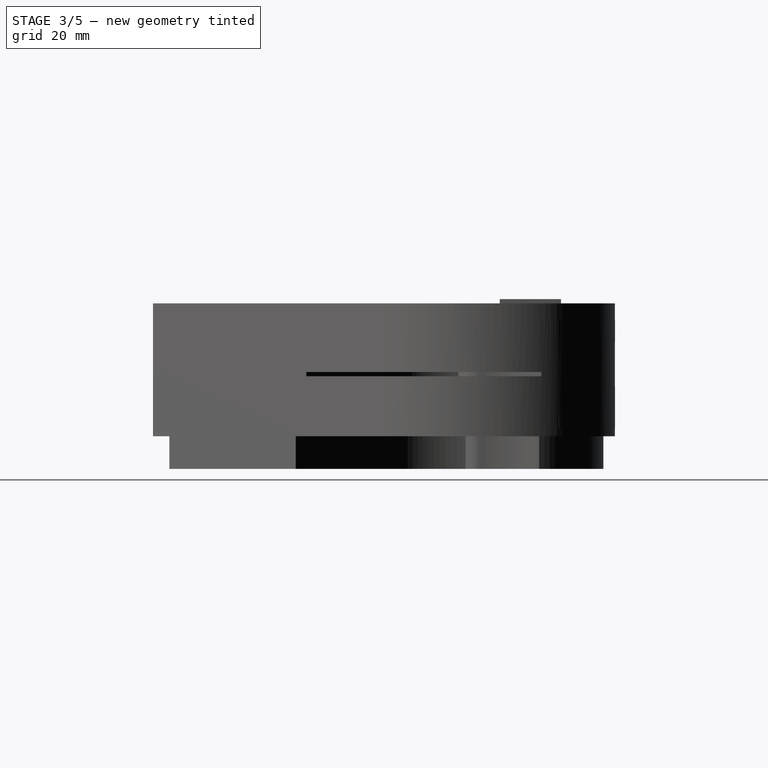
[diagram: stage 3 of 5 — right view after this stage's code; geometry added in this stage tinted green]
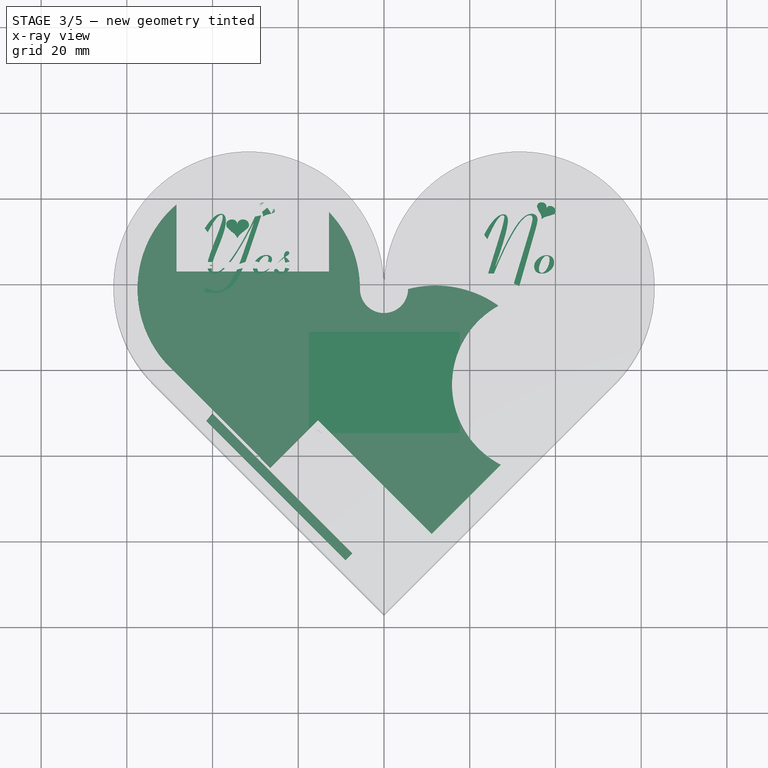
[diagram: stage 3 of 5 — x-ray composite at the top view; earlier geometry ghosted, this stage's added geometry solid]
FEATURE [PartDesign::Body] Body006  label="Cog_Mediator"
  Group = -> [InvoluteGear001,Pad016,Sketch044,Pad017,Sketch027,Pocket001]
  Origin = -> Origin006
  Placement = pos=(12,-5.7,-19) rot=(0,0,1;0rad)
  Tip = -> Pocket001
FEATURE [Sketcher::SketchObject] Sketch062
  FullyConstrained = true
  MapMode = 5
  Support = -> [XY_Plane014]
  sketch-geometry (8):
    g0: Circle CenterX=31.5631 CenterY=18.7829 CenterZ=0 NormalX=0 NormalY=0 NormalZ=1 AngleXU=0 Radius=26.5631
    g1: Circle CenterX=-31.5631 CenterY=18.7829 CenterZ=0 NormalX=0 NormalY=0 NormalZ=1 AngleXU=0 Radius=26.5631
    g2: Circle CenterX=31.5631 CenterY=18.7829 CenterZ=0 NormalX=0 NormalY=0 NormalZ=1 AngleXU=0 Radius=31.5631
    g3: Circle CenterX=-31.5631 CenterY=18.7829 CenterZ=0 NormalX=0 NormalY=0 NormalZ=1 AngleXU=0 Radius=31.5631
    g4: LineSegment StartX=0 StartY=-57.4171 StartZ=0 EndX=53.8815 EndY=-3.53553 EndZ=0
    g5: LineSegment StartX=0 StartY=-57.4171 StartZ=0 EndX=-53.8815 EndY=-3.53553 EndZ=0
    g6: LineSegment StartX=3.53553 StartY=-53.8815 StartZ=0 EndX=-50.346 EndY=-4.50084e-05 EndZ=0
    g7: LineSegment StartX=0 StartY=-50.346 StartZ=0 EndX=50.346 EndY=0 EndZ=0
  constraints (21):
    c: Coincident(g2,g0)
    c: Coincident(g3,g1)
    c: PointOnObject(g4,g-2)
    c: Coincident(g5,g4)
    c: Equal(g1,g0)
    c: Symmetric(g1,g0,g-2)
    c: Equal(g3,g2)
    c: Tangent(g4,g2) = -1.5708
    c: Tangent(g5,g3) = 1.5708
    c: Tangent(g3,g2)
    c: Angle(g4,g5) = 1.5708
    c: PointOnObject(g6,g4)
    c: PointOnObject(g7,g6)
    c: PointOnObject(g7,g-2)
    c: Parallel(g6,g5)
    c: Parallel(g7,g4)
    c: Tangent(g7,g0) = -1.5708
    c: Distance(g6,g7) = 5
    c: DistanceY(g4,g0) = 76.2
    c: Horizontal(g7,g-1)
    c: PointOnObject(g6,g1)
FEATURE [Sketcher::SketchObject] Sketch063  label="FuckinPlatform"
  FullyConstrained = false
  MapMode = 5
  sketch-geometry (83):
    g0: GeomPoint X=0 Y=-57.4171 Z=0
    g1: LineSegment StartX=0 StartY=-57.4171 StartZ=0 EndX=53.8815 EndY=-3.53553 EndZ=0
    g2: LineSegment StartX=0 StartY=-57.4171 StartZ=0 EndX=-53.8815 EndY=-3.53553 EndZ=0
    g3: LineSegment StartX=0 StartY=-57.4171 StartZ=0 EndX=0 EndY=18.7829 EndZ=0
    g4: ArcOfCircle CenterX=-31.5631 CenterY=18.7829 CenterZ=0 NormalX=0 NormalY=0 NormalZ=1 AngleXU=0 Radius=31.5631 StartAngle=0 EndAngle=3.92699
    g5: ArcOfCircle CenterX=31.5631 CenterY=18.7829 CenterZ=0 NormalX=0 NormalY=0 NormalZ=1 AngleXU=0 Radius=31.5631 StartAngle=5.49779 EndAngle=9.42478
    g6: LineSegment StartX=0 StartY=-50.346 StartZ=0 EndX=50.346 EndY=0 EndZ=0
    g7: LineSegment StartX=0 StartY=-50.346 StartZ=0 EndX=-50.346 EndY=0 EndZ=0
    g8: GeomPoint X=0 Y=13.7829 Z=0
    g9: Circle CenterX=-31.5631 CenterY=18.7829 CenterZ=0 NormalX=0 NormalY=0 NormalZ=1 AngleXU=0 Radius=26.5631
    g10: GeomPoint X=-5 Y=18.7829 Z=0
    g11: LineSegment StartX=0 StartY=-50.346 StartZ=0 EndX=3.53553 EndY=-53.8815 EndZ=0
    g12: LineSegment StartX=0 StartY=-50.346 StartZ=0 EndX=-3.53553 EndY=-53.8815 EndZ=0
    g13: Circle CenterX=31.5631 CenterY=18.7829 CenterZ=0 NormalX=0 NormalY=0 NormalZ=1 AngleXU=0 Radius=26.5631
    g14: GeomPoint X=5 Y=18.7829 Z=0
    g15: ArcOfCircle CenterX=-31.5631 CenterY=18.7829 CenterZ=0 NormalX=0 NormalY=0 NormalZ=1 AngleXU=0 Radius=26.5631 StartAngle=0 EndAngle=3.92699
    g16: ArcOfCircle CenterX=31.5631 CenterY=18.7829 CenterZ=0 NormalX=0 NormalY=0 NormalZ=1 AngleXU=0 Radius=26.5631 StartAngle=5.49779 EndAngle=9.42478
    g17: ArcOfCircle CenterX=1e-16 CenterY=18.7829 CenterZ=0 NormalX=0 NormalY=0 NormalZ=1 AngleXU=0 Radius=5 StartAngle=3.14159 EndAngle=6.28319
    g18: GeomPoint X=53.8815 Y=-3.53553 Z=0
    g19: GeomPoint X=36.911 Y=-3.53553 Z=0
    g20: GeomPoint X=45.3963 Y=-12.0208 Z=0
    g21: LineSegment StartX=36.911 StartY=-3.53553 StartZ=0 EndX=45.3963 EndY=-12.0208 EndZ=0
    g22: Circle CenterX=36.911 CenterY=-3.53553 CenterZ=0 NormalX=0 NormalY=0 NormalZ=1 AngleXU=0 Radius=3.75
    g23: Circle CenterX=36.911 CenterY=-3.53553 CenterZ=0 NormalX=0 NormalY=0 NormalZ=1 AngleXU=0 Radius=5
    g24: Circle CenterX=36.911 CenterY=-3.53553 CenterZ=0 NormalX=0 NormalY=0 NormalZ=1 AngleXU=0 Radius=6
    g25: Circle CenterX=12.0061 CenterY=-5.71443 CenterZ=0 NormalX=0 NormalY=0 NormalZ=1 AngleXU=0 Radius=18.75
    g26: Circle CenterX=12.0061 CenterY=-5.71443 CenterZ=0 NormalX=0 NormalY=0 NormalZ=1 AngleXU=0 Radius=21
    g27: Circle CenterX=12.0061 CenterY=-5.71443 CenterZ=0 NormalX=0 NormalY=0 NormalZ=1 AngleXU=0 Radius=20
    g28: Circle CenterX=-25.5816 CenterY=7.96638 CenterZ=0 NormalX=0 NormalY=0 NormalZ=1 AngleXU=0 Radius=18.75
    g29: Circle CenterX=-25.5816 CenterY=7.96638 CenterZ=0 NormalX=0 NormalY=0 NormalZ=1 AngleXU=0 Radius=20
    g30: Circle CenterX=-25.5816 CenterY=7.96638 CenterZ=0 NormalX=0 NormalY=0 NormalZ=1 AngleXU=0 Radius=21
    g31: Circle CenterX=-36.1471 CenterY=30.6241 CenterZ=0 NormalX=0 NormalY=0 NormalZ=1 AngleXU=0 Radius=6
    g32: Circle CenterX=-36.1471 CenterY=30.6241 CenterZ=0 NormalX=0 NormalY=0 NormalZ=1 AngleXU=0 Radius=5
    g33: Circle CenterX=-36.1471 CenterY=30.6241 CenterZ=0 NormalX=0 NormalY=0 NormalZ=1 AngleXU=0 Radius=3.75
    g34: LineSegment StartX=-36.1471 StartY=30.6241 StartZ=0 EndX=-25.5816 EndY=7.96638 EndZ=0
    g35: LineSegment StartX=-25.5816 StartY=7.96638 StartZ=0 EndX=12.0061 EndY=-5.71443 EndZ=0
    g36: LineSegment StartX=12.0061 StartY=-5.71443 StartZ=0 EndX=36.911 EndY=-3.53553 EndZ=0
    g37: Circle CenterX=-36.1471 CenterY=30.6241 CenterZ=0 NormalX=0 NormalY=0 NormalZ=1 AngleXU=0 Radius=1.5
    g38: Circle CenterX=-25.5816 CenterY=7.96638 CenterZ=0 NormalX=0 NormalY=0 NormalZ=1 AngleXU=0 Radius=1.5
    g39: Circle CenterX=12.0061 CenterY=-5.71443 CenterZ=0 NormalX=0 NormalY=0 NormalZ=1 AngleXU=0 Radius=1.5
    g40: Circle CenterX=36.911 CenterY=-3.53553 CenterZ=0 NormalX=0 NormalY=0 NormalZ=1 AngleXU=0 Radius=1.5
    g41: LineSegment StartX=-33.8616 StartY=28.6807 StartZ=0 EndX=-25.6013 EndY=10.9663 EndZ=0
    g42: LineSegment StartX=-27.867 StartY=9.90977 StartZ=0 EndX=-36.1274 EndY=27.6241 EndZ=0
    g43: ArcOfCircle CenterX=-36.1471 CenterY=30.6241 CenterZ=0 NormalX=0 NormalY=0 NormalZ=1 AngleXU=0 Radius=3 StartAngle=5.5785 EndAngle=11.0021
    g44: LineSegment StartX=-22.5914 StartY=8.20824 StartZ=0 EndX=9.87092 EndY=-3.60706 EndZ=0
    g45: LineSegment StartX=-23.4464 StartY=5.85901 StartZ=0 EndX=9.01587 EndY=-5.95629 EndZ=0
    g46: ArcOfCircle CenterX=-25.5816 CenterY=7.96638 CenterZ=0 NormalX=0 NormalY=0 NormalZ=1 AngleXU=0 Radius=3 StartAngle=0.0807096 EndAngle=1.57735
    g47: ArcOfCircle CenterX=-25.5816 CenterY=7.96638 CenterZ=0 NormalX=0 NormalY=0 NormalZ=1 AngleXU=0 Radius=3 StartAngle=2.4369 EndAngle=5.50434
    g48: LineSegment StartX=14.614 StartY=-4.23149 StartZ=0 EndX=34.0852 EndY=-2.52798 EndZ=0
    g49: LineSegment StartX=14.8319 StartY=-6.72198 StartZ=0 EndX=34.3031 EndY=-5.01847 EndZ=0
    g50: ArcOfCircle CenterX=12.0061 CenterY=-5.71443 CenterZ=0 NormalX=0 NormalY=0 NormalZ=1 AngleXU=0 Radius=3 StartAngle=0.517042 EndAngle=2.36275
    g51: ArcOfCircle CenterX=12.0061 CenterY=-5.71443 CenterZ=0 NormalX=0 NormalY=0 NormalZ=1 AngleXU=0 Radius=3 StartAngle=3.2223 EndAngle=5.94068
    g52: ArcOfCircle CenterX=36.911 CenterY=-3.53553 CenterZ=0 NormalX=0 NormalY=0 NormalZ=1 AngleXU=0 Radius=3 StartAngle=3.65863 EndAngle=9.08227
    g53: GeomPoint X=14.8319 Y=-5.46721 Z=0
    g54: LineSegment StartX=14.8319 StartY=-5.46721 StartZ=0 EndX=14.614 EndY=-4.23149 EndZ=0
    g55: LineSegment StartX=14.8319 StartY=-5.46721 StartZ=0 EndX=14.8319 EndY=-6.72198 EndZ=0
    g56: LineSegment StartX=14.614 StartY=-4.23149 StartZ=0 EndX=14.8319 EndY=-6.72198 EndZ=0
    g57: LineSegment StartX=9.87092 StartY=-3.60706 StartZ=0 EndX=9.01587 EndY=-5.95629 EndZ=0
    g58: LineSegment StartX=-14.6471 StartY=36.6241 StartZ=0 EndX=-46.6471 EndY=36.6241 EndZ=0
    g59: LineSegment StartX=-46.6471 StartY=36.6241 StartZ=0 EndX=-46.6471 EndY=24.6241 EndZ=0
    g60: LineSegment StartX=-46.6471 StartY=24.6241 StartZ=0 EndX=-14.6471 EndY=24.6241 EndZ=0
    g61: LineSegment StartX=-14.6471 StartY=24.6241 StartZ=0 EndX=-14.6471 EndY=36.6241 EndZ=0
    g62: LineSegment StartX=-19.1471 StartY=36.6241 StartZ=0 EndX=-42.1471 EndY=36.6241 EndZ=0
    g63: LineSegment StartX=-42.1471 StartY=36.6241 StartZ=0 EndX=-42.1471 EndY=24.6241 EndZ=0
    g64: LineSegment StartX=-42.1471 StartY=24.6241 StartZ=0 EndX=-19.1471 EndY=24.6241 EndZ=0
    g65: LineSegment StartX=-19.1471 StartY=24.6241 StartZ=0 EndX=-19.1471 EndY=36.6241 EndZ=0
    g66: GeomPoint X=-30.6471 Y=30.6241 Z=0
    g67: GeomPoint X=-17.1461 Y=30.6241 Z=0
    g68: GeomPoint X=-44.148 Y=30.6241 Z=0
    g69: LineSegment StartX=-17.1461 StartY=30.6241 StartZ=0 EndX=-44.148 EndY=30.6241 EndZ=0
    g70: Circle CenterX=-17.1461 CenterY=30.6241 CenterZ=0 NormalX=0 NormalY=0 NormalZ=1 AngleXU=0 Radius=1.1114
    g71: Circle CenterX=-44.148 CenterY=30.6241 CenterZ=0 NormalX=0 NormalY=0 NormalZ=1 AngleXU=0 Radius=1.1114
    g72: GeomPoint X=-42.1471 Y=30.6241 Z=0
    g73: GeomPoint X=-38.7495 Y=36.0303 Z=0
    g74: LineSegment StartX=-47.7971 StartY=23.4741 StartZ=0 EndX=-47.7971 EndY=37.7741 EndZ=0
    g75: LineSegment StartX=-47.7971 StartY=37.7741 StartZ=0 EndX=-13.4971 EndY=37.7741 EndZ=0
    g76: LineSegment StartX=-13.4971 StartY=37.7741 StartZ=0 EndX=-13.4971 EndY=23.4741 EndZ=0
    g77: LineSegment StartX=-13.4971 StartY=23.4741 StartZ=0 EndX=-47.7971 EndY=23.4741 EndZ=0
    g78: GeomPoint X=-30.6471 Y=30.6241 Z=0
    g79: LineSegment StartX=0 StartY=-50.346 StartZ=0 EndX=-26.5165 EndY=-23.8295 EndZ=0
    g80: LineSegment StartX=-26.5165 StartY=-23.8295 StartZ=0 EndX=-15.4149 EndY=-12.7279 EndZ=0
    g81: LineSegment StartX=-15.4149 StartY=-12.7279 StartZ=0 EndX=11.1016 EndY=-39.2444 EndZ=0
    g82: LineSegment StartX=11.1016 StartY=-39.2444 StartZ=0 EndX=0 EndY=-50.346 EndZ=0
  constraints (188):
    c: PointOnObject(g0,g-2)
    c: Coincident(g1,g0)
    c: Coincident(g2,g1)
    c: Angle(g1,g2) = 1.5708
    c: Coincident(g3,g1)
    c: Vertical(g3)
    c: DistanceY(g3,g3) = 76.2
    c: Coincident(g4,g3)
    c: Coincident(g5,g3)
    c: Symmetric(g4,g5,g3)
    c: Tangent(g5,g1) = -1.5708
    c: Tangent(g4,g2) = 1.5708
    c: Horizontal(g4,g3)
    c: Coincident(g7,g6)
    c: Vertical(g6,g1)
    c: Distance(g4,g8) = 5
    c: Vertical(g8,g4)
    c: Coincident(g9,g4)
    c: Horizontal(g10,g4)
    c: Distance(g10,g4) = 5
    c: Tangent(g7,g9) = 1.5708
    c: Coincident(g11,g6)
    c: PointOnObject(g11,g1)
    c: Distance(g11) = 5
    c: Coincident(g12,g6)
    c: PointOnObject(g12,g2)
    c: Parallel(g12,g1)
    c: Parallel(g11,g2)
    c: Coincident(g13,g5)
    c: Tangent(g6,g13) = -1.5708
    c: Distance(g14,g4) = 5
    c: Horizontal(g14,g5)
    c: Coincident(g15,g4)
    c: Coincident(g15,g10)
    c: Coincident(g15,g7)
    c: Coincident(g16,g5)
    c: Coincident(g16,g14)
    c: Coincident(g16,g6)
    c: Coincident(g17,g15)
    c: Coincident(g17,g16)
    c: PointOnObject(g8,g17)
    c: Horizontal(g-1,g6)
    c: Coincident(g18,g1)
    c: PointOnObject(g20,g1)
    c: Coincident(g21,g19)
    c: Coincident(g21,g20)
    c: Angle(g21,g1) = 1.5708
    c: Distance(g21) = 12
    c: Distance(g1,g20) = 12
    c: Coincident(g22,g19)
    c: Diameter(g22) = 7.5
    c: Coincident(g23,g19)
    c: Diameter(g23) = 10
    c: Coincident(g24,g19)
    c: Diameter(g24) = 12
    c: Coincident(g26,g25)
    c: Coincident(g27,g25)
    c: Diameter(g26) = 42
    c: Diameter(g27) = 40
    c: Diameter(g25) = 37.5
    c: Tangent(g23,g27)
    c: Coincident(g29,g28)
    c: Coincident(g30,g28)
    c: Diameter(g30) = 42
    c: Diameter(g29) = 40
    c: Diameter(g28) = 37.5
    c: Tangent(g29,g27)
    c: Coincident(g32,g31)
    c: Coincident(g33,g31)
    c: Diameter(g31) = 12
    c: Diameter(g32) = 10
    c: Diameter(g33) = 7.5
    c: Tangent(g32,g29)
    c: Coincident(g34,g31)
    c: Coincident(g34,g28)
    c: Coincident(g35,g28)
    c: Coincident(g35,g25)
    c: Coincident(g36,g25)
    c: Coincident(g36,g19)
    c: Angle(g35,g34) = 2.35619
    c: Angle(g36,g35) = 2.70526
    c: Angle(g36,g21) = 2.26893
    c: Coincident(g37,g31)
    c: Coincident(g38,g28)
    c: Coincident(g39,g25)
    c: Coincident(g40,g19)
    c: Equal(g37,g38)
    c: Equal(g38,g39)
    c: Equal(g39,g40)
    c: Diameter(g40) = 3
    c: Coincident(g43,g37)
    c: Coincident(g43,g41)
    c: Coincident(g43,g42)
    c: Parallel(g42,g41)
    c: Parallel(g41,g34)
    c: Parallel(g45,g35)
    c: Parallel(g35,g44)
    c: Coincident(g46,g38)
    c: Coincident(g46,g41)
    c: Coincident(g46,g44)
    c: Coincident(g47,g38)
    c: Coincident(g47,g42)
    c: Coincident(g47,g45)
    c: Coincident(g50,g39)
    c: Coincident(g50,g48)
    c: Coincident(g50,g44)
    c: Coincident(g51,g39)
    c: Coincident(g51,g49)
    c: Coincident(g51,g45)
    c: Coincident(g52,g40)
    c: Coincident(g52,g48)
    c: Coincident(g49,g52)
    c: Symmetric(g42,g41,g34)
    c: Equal(g50,g47)
    c: Equal(g47,g43)
    c: Symmetric(g45,g44,g35)
    c: Diameter(g43) = 6
    c: Distance(g42,g41) = 2.5
    c: Distance(g44,g45) = 2.5
    c: Equal(g52,g50)
    c: Parallel(g49,g36)
    c: Parallel(g36,g48)
    c: PointOnObject(g53,g36)
    c: Coincident(g54,g53)
    c: Coincident(g54,g48)
    c: Coincident(g55,g53)
    c: Coincident(g55,g49)
    c: Vertical(g55)
    c: Equal(g55,g54)
    c: Coincident(g56,g48)
    c: Coincident(g56,g49)
    c: Coincident(g57,g44)
    c: Coincident(g57,g45)
    c: Equal(g57,g56)
    c: Coincident(g58,g59)
    c: Coincident(g59,g60)
    c: Coincident(g60,g61)
    c: Coincident(g61,g58)
    c: Parallel(g61,g59)
    c: Parallel(g60,g58)
    c: Angle(g60,g59) = 1.5708
    c: Distance(g60) = 32
    c: Coincident(g62,g63)
    c: Coincident(g63,g64)
    c: Coincident(g64,g65)
    c: Coincident(g65,g62)
    c: PointOnObject(g63,g60)
    c: Angle(g64,g63) = 1.5708
    c: Parallel(g64,g62)
    c: Parallel(g64,g60)
    c: Symmetric(g64,g62,g66)
    c: Symmetric(g60,g58,g66)
    c: Distance(g59) = 12
    c: Distance(g64,g63) = 23
    c: Coincident(g69,g67)
    c: Coincident(g69,g68)
    c: Symmetric(g64,g62,g69)
    c: Coincident(g70,g67)
    c: Coincident(g71,g68)
    c: Equal(g70,g71)
    c: Symmetric(g67,g68,g66)
    c: PointOnObject(g72,g31)
    c: Symmetric(g63,g62,g72)
    c: Tangent(g60,g31)
    c: Horizontal(g31,g68)
    c: Coincident(g74,g75)
    c: Coincident(g75,g76)
    c: Coincident(g76,g77)
    c: Coincident(g77,g74)
    c: Horizontal(g75)
    c: Horizontal(g77)
    c: Vertical(g74)
    c: Vertical(g76)
    c: Symmetric(g75,g74,g78)
    c: Coincident(g78,g66)
    c: DistanceX(g60,g76) = 1.15
    c: DistanceY(g76,g60) = 1.15
    c: Coincident(g79,g80)
    c: Coincident(g80,g81)
    c: Coincident(g81,g82)
    c: Coincident(g82,g79)
    c: Coincident(g79,g6)
    c: Parallel(g81,g79)
    c: Parallel(g82,g80)
    c: Angle(g82,g79) = 1.5708
    c: PointOnObject(g81,g6)
    c: Distance(g79,g80) = 15.7
    c: Distance(g80,g81) = 37.5
FEATURE [Sketcher::SketchObject] Sketch064  label="FuckinPlatform001"
  FullyConstrained = false
  MapMode = 5
  sketch-geometry (87):
    g0: GeomPoint X=0 Y=-57.4171 Z=0
    g1: LineSegment StartX=0 StartY=-57.4171 StartZ=0 EndX=53.8815 EndY=-3.53553 EndZ=0
    g2: LineSegment StartX=0 StartY=-57.4171 StartZ=0 EndX=-53.8815 EndY=-3.53553 EndZ=0
    g3: LineSegment StartX=0 StartY=-57.4171 StartZ=0 EndX=0 EndY=18.7829 EndZ=0
    g4: ArcOfCircle CenterX=-31.5631 CenterY=18.7829 CenterZ=0 NormalX=0 NormalY=0 NormalZ=1 AngleXU=0 Radius=31.5631 StartAngle=0 EndAngle=3.92699
    g5: ArcOfCircle CenterX=31.5631 CenterY=18.7829 CenterZ=0 NormalX=0 NormalY=0 NormalZ=1 AngleXU=0 Radius=31.5631 StartAngle=5.49779 EndAngle=9.42478
    g6: LineSegment StartX=0 StartY=-50.346 StartZ=0 EndX=50.346 EndY=0 EndZ=0
    g7: LineSegment StartX=0 StartY=-50.346 StartZ=0 EndX=-50.346 EndY=0 EndZ=0
    g8: GeomPoint X=0 Y=13.7829 Z=0
    g9: Circle CenterX=-31.5631 CenterY=18.7829 CenterZ=0 NormalX=0 NormalY=0 NormalZ=1 AngleXU=0 Radius=26.5631
    g10: GeomPoint X=-5 Y=18.7829 Z=0
    g11: LineSegment StartX=0 StartY=-50.346 StartZ=0 EndX=3.53553 EndY=-53.8815 EndZ=0
    g12: LineSegment StartX=0 StartY=-50.346 StartZ=0 EndX=-3.53553 EndY=-53.8815 EndZ=0
    g13: Circle CenterX=31.5631 CenterY=18.7829 CenterZ=0 NormalX=0 NormalY=0 NormalZ=1 AngleXU=0 Radius=26.5631
    g14: GeomPoint X=5 Y=18.7829 Z=0
    g15: ArcOfCircle CenterX=-31.5631 CenterY=18.7829 CenterZ=0 NormalX=0 NormalY=0 NormalZ=1 AngleXU=0 Radius=26.5631 StartAngle=0 EndAngle=3.92699
    g16: ArcOfCircle CenterX=31.5631 CenterY=18.7829 CenterZ=0 NormalX=0 NormalY=0 NormalZ=1 AngleXU=0 Radius=26.5631 StartAngle=5.49779 EndAngle=9.42478
    g17: ArcOfCircle CenterX=3e-16 CenterY=18.7829 CenterZ=0 NormalX=0 NormalY=0 NormalZ=1 AngleXU=0 Radius=5 StartAngle=3.14159 EndAngle=6.28319
    g18: GeomPoint X=53.8815 Y=-3.53553 Z=0
    g19: GeomPoint X=36.911 Y=-3.53553 Z=0
    g20: GeomPoint X=45.3963 Y=-12.0208 Z=0
    g21: LineSegment StartX=36.911 StartY=-3.53553 StartZ=0 EndX=45.3963 EndY=-12.0208 EndZ=0
    g22: Circle CenterX=36.911 CenterY=-3.53553 CenterZ=0 NormalX=0 NormalY=0 NormalZ=1 AngleXU=0 Radius=3.75
    g23: Circle CenterX=36.911 CenterY=-3.53553 CenterZ=0 NormalX=0 NormalY=0 NormalZ=1 AngleXU=0 Radius=5
    g24: Circle CenterX=36.911 CenterY=-3.53553 CenterZ=0 NormalX=0 NormalY=0 NormalZ=1 AngleXU=0 Radius=6
    g25: Circle CenterX=12.0061 CenterY=-5.71443 CenterZ=0 NormalX=0 NormalY=0 NormalZ=1 AngleXU=0 Radius=18.75
    g26: Circle CenterX=12.0061 CenterY=-5.71443 CenterZ=0 NormalX=0 NormalY=0 NormalZ=1 AngleXU=0 Radius=21
    g27: Circle CenterX=12.0061 CenterY=-5.71443 CenterZ=0 NormalX=0 NormalY=0 NormalZ=1 AngleXU=0 Radius=20
    g28: Circle CenterX=-25.5816 CenterY=7.96638 CenterZ=0 NormalX=0 NormalY=0 NormalZ=1 AngleXU=0 Radius=18.75
    g29: Circle CenterX=-25.5816 CenterY=7.96638 CenterZ=0 NormalX=0 NormalY=0 NormalZ=1 AngleXU=0 Radius=20
    g30: Circle CenterX=-25.5816 CenterY=7.96638 CenterZ=0 NormalX=0 NormalY=0 NormalZ=1 AngleXU=0 Radius=21
    g31: Circle CenterX=-36.1471 CenterY=30.6241 CenterZ=0 NormalX=0 NormalY=0 NormalZ=1 AngleXU=0 Radius=6
    g32: Circle CenterX=-36.1471 CenterY=30.6241 CenterZ=0 NormalX=0 NormalY=0 NormalZ=1 AngleXU=0 Radius=5
    g33: Circle CenterX=-36.1471 CenterY=30.6241 CenterZ=0 NormalX=0 NormalY=0 NormalZ=1 AngleXU=0 Radius=3.75
    g34: LineSegment StartX=-36.1471 StartY=30.6241 StartZ=0 EndX=-25.5816 EndY=7.96638 EndZ=0
    g35: LineSegment StartX=-25.5816 StartY=7.96638 StartZ=0 EndX=12.0061 EndY=-5.71443 EndZ=0
    g36: LineSegment StartX=12.0061 StartY=-5.71443 StartZ=0 EndX=36.911 EndY=-3.53553 EndZ=0
    g37: Circle CenterX=-36.1471 CenterY=30.6241 CenterZ=0 NormalX=0 NormalY=0 NormalZ=1 AngleXU=0 Radius=1.5
    g38: Circle CenterX=-25.5816 CenterY=7.96638 CenterZ=0 NormalX=0 NormalY=0 NormalZ=1 AngleXU=0 Radius=1.5
    g39: Circle CenterX=12.0061 CenterY=-5.71443 CenterZ=0 NormalX=0 NormalY=0 NormalZ=1 AngleXU=0 Radius=1.5
    g40: Circle CenterX=36.911 CenterY=-3.53553 CenterZ=0 NormalX=0 NormalY=0 NormalZ=1 AngleXU=0 Radius=1.5
    g41: LineSegment StartX=-33.8616 StartY=28.6807 StartZ=0 EndX=-25.6013 EndY=10.9663 EndZ=0
    g42: LineSegment StartX=-27.867 StartY=9.90977 StartZ=0 EndX=-36.1274 EndY=27.6241 EndZ=0
    g43: ArcOfCircle CenterX=-36.1471 CenterY=30.6241 CenterZ=0 NormalX=0 NormalY=0 NormalZ=1 AngleXU=0 Radius=3 StartAngle=5.5785 EndAngle=11.0021
    g44: LineSegment StartX=-22.5914 StartY=8.20824 StartZ=0 EndX=9.87092 EndY=-3.60706 EndZ=0
    g45: LineSegment StartX=-23.4464 StartY=5.85901 StartZ=0 EndX=9.01587 EndY=-5.95629 EndZ=0
    g46: ArcOfCircle CenterX=-25.5816 CenterY=7.96638 CenterZ=0 NormalX=0 NormalY=0 NormalZ=1 AngleXU=0 Radius=3 StartAngle=0.0807096 EndAngle=1.57735
    g47: ArcOfCircle CenterX=-25.5816 CenterY=7.96638 CenterZ=0 NormalX=0 NormalY=0 NormalZ=1 AngleXU=0 Radius=3 StartAngle=2.4369 EndAngle=5.50434
    g48: LineSegment StartX=14.614 StartY=-4.23149 StartZ=0 EndX=34.0852 EndY=-2.52798 EndZ=0
    g49: LineSegment StartX=14.8319 StartY=-6.72198 StartZ=0 EndX=34.3031 EndY=-5.01847 EndZ=0
    g50: ArcOfCircle CenterX=12.0061 CenterY=-5.71443 CenterZ=0 NormalX=0 NormalY=0 NormalZ=1 AngleXU=0 Radius=3 StartAngle=0.517042 EndAngle=2.36275
    g51: ArcOfCircle CenterX=12.0061 CenterY=-5.71443 CenterZ=0 NormalX=0 NormalY=0 NormalZ=1 AngleXU=0 Radius=3 StartAngle=3.2223 EndAngle=5.94068
    g52: ArcOfCircle CenterX=36.911 CenterY=-3.53553 CenterZ=0 NormalX=0 NormalY=0 NormalZ=1 AngleXU=0 Radius=3 StartAngle=3.65863 EndAngle=9.08227
    g53: GeomPoint X=14.8319 Y=-5.46721 Z=0
    g54: LineSegment StartX=14.8319 StartY=-5.46721 StartZ=0 EndX=14.614 EndY=-4.23149 EndZ=0
    g55: LineSegment StartX=14.8319 StartY=-5.46721 StartZ=0 EndX=14.8319 EndY=-6.72198 EndZ=0
    g56: LineSegment StartX=14.614 StartY=-4.23149 StartZ=0 EndX=14.8319 EndY=-6.72198 EndZ=0
    g57: LineSegment StartX=9.87092 StartY=-3.60706 StartZ=0 EndX=9.01587 EndY=-5.95629 EndZ=0
    g58: LineSegment StartX=-14.6471 StartY=36.6241 StartZ=0 EndX=-46.6471 EndY=36.6241 EndZ=0
    g59: LineSegment StartX=-46.6471 StartY=36.6241 StartZ=0 EndX=-46.6471 EndY=24.6241 EndZ=0
    g60: LineSegment StartX=-46.6471 StartY=24.6241 StartZ=0 EndX=-14.6471 EndY=24.6241 EndZ=0
    g61: LineSegment StartX=-14.6471 StartY=24.6241 StartZ=0 EndX=-14.6471 EndY=36.6241 EndZ=0
    g62: LineSegment StartX=-19.1471 StartY=36.6241 StartZ=0 EndX=-42.1471 EndY=36.6241 EndZ=0
    g63: LineSegment StartX=-42.1471 StartY=36.6241 StartZ=0 EndX=-42.1471 EndY=24.6241 EndZ=0
    g64: LineSegment StartX=-42.1471 StartY=24.6241 StartZ=0 EndX=-19.1471 EndY=24.6241 EndZ=0
    g65: LineSegment StartX=-19.1471 StartY=24.6241 StartZ=0 EndX=-19.1471 EndY=36.6241 EndZ=0
    g66: GeomPoint X=-30.6471 Y=30.6241 Z=0
    g67: GeomPoint X=-17.1467 Y=30.6241 Z=0
    g68: GeomPoint X=-44.1474 Y=30.6241 Z=0
    g69: LineSegment StartX=-17.1467 StartY=30.6241 StartZ=0 EndX=-44.1474 EndY=30.6241 EndZ=0
    g70: Circle CenterX=-17.1467 CenterY=30.6241 CenterZ=0 NormalX=0 NormalY=0 NormalZ=1 AngleXU=0 Radius=1.1114
    g71: Circle CenterX=-44.1474 CenterY=30.6241 CenterZ=0 NormalX=0 NormalY=0 NormalZ=1 AngleXU=0 Radius=1.1114
    g72: GeomPoint X=-42.1471 Y=30.6241 Z=0
    g73: GeomPoint X=-38.7495 Y=36.0303 Z=0
    g74: LineSegment StartX=-47.7971 StartY=23.4741 StartZ=0 EndX=-47.7971 EndY=37.7741 EndZ=0
    g75: LineSegment StartX=-47.7971 StartY=37.7741 StartZ=0 EndX=-13.4971 EndY=37.7741 EndZ=0
    g76: LineSegment StartX=-13.4971 StartY=37.7741 StartZ=0 EndX=-13.4971 EndY=23.4741 EndZ=0
    g77: LineSegment StartX=-13.4971 StartY=23.4741 StartZ=0 EndX=-47.7971 EndY=23.4741 EndZ=0
    g78: GeomPoint X=-30.6471 Y=30.6241 Z=0
    g79: LineSegment StartX=0 StartY=-50.346 StartZ=0 EndX=-26.5165 EndY=-23.8295 EndZ=0
    g80: LineSegment StartX=-26.5165 StartY=-23.8295 StartZ=0 EndX=-15.4149 EndY=-12.7279 EndZ=0
    g81: LineSegment StartX=-15.4149 StartY=-12.7279 StartZ=0 EndX=11.1016 EndY=-39.2444 EndZ=0
    g82: LineSegment StartX=11.1016 StartY=-39.2444 StartZ=0 EndX=0 EndY=-50.346 EndZ=0
    g83: LineSegment StartX=35.7796 StartY=-21.6375 StartZ=0 EndX=53.8815 EndY=-3.53553 EndZ=0
    g84: LineSegment StartX=50.346 StartY=0 StartZ=0 EndX=28.2912 EndY=-22.0548 EndZ=0
    g85: LineSegment StartX=28.2912 StartY=-22.0548 StartZ=0 EndX=35.7796 EndY=-21.6375 EndZ=0
    g86: ArcOfCircle CenterX=36.911 CenterY=-3.53553 CenterZ=0 NormalX=0 NormalY=0 NormalZ=1 AngleXU=0 Radius=20.427 StartAngle=2.3569 EndAngle=4.27676
  constraints (199):
    c: PointOnObject(g0,g-2)
    c: Coincident(g1,g0)
    c: Coincident(g2,g1)
    c: Angle(g1,g2) = 1.5708
    c: Coincident(g3,g1)
    c: Vertical(g3)
    c: DistanceY(g3,g3) = 76.2
    c: Coincident(g4,g3)
    c: Coincident(g5,g3)
    c: Symmetric(g4,g5,g3)
    c: Tangent(g5,g1) = -1.5708
    c: Tangent(g4,g2) = 1.5708
    c: Horizontal(g4,g3)
    c: Coincident(g7,g6)
    c: Vertical(g6,g1)
    c: Distance(g4,g8) = 5
    c: Vertical(g8,g4)
    c: Coincident(g9,g4)
    c: Horizontal(g10,g4)
    c: Distance(g10,g4) = 5
    c: Tangent(g7,g9) = 1.5708
    c: Coincident(g11,g6)
    c: PointOnObject(g11,g1)
    c: Distance(g11) = 5
    c: Coincident(g12,g6)
    c: PointOnObject(g12,g2)
    c: Parallel(g12,g1)
    c: Parallel(g11,g2)
    c: Coincident(g13,g5)
    c: Tangent(g6,g13) = -1.5708
    c: Distance(g14,g4) = 5
    c: Horizontal(g14,g5)
    c: Coincident(g15,g4)
    c: Coincident(g15,g10)
    c: Coincident(g15,g7)
    c: Coincident(g16,g5)
    c: Coincident(g16,g14)
    c: Coincident(g16,g6)
    c: Coincident(g17,g15)
    c: Coincident(g17,g16)
    c: PointOnObject(g8,g17)
    c: Horizontal(g-1,g6)
    c: Coincident(g18,g1)
    c: PointOnObject(g20,g1)
    c: Coincident(g21,g19)
    c: Coincident(g21,g20)
    c: Angle(g21,g1) = 1.5708
    c: Distance(g21) = 12
    c: Distance(g1,g20) = 12
    c: Coincident(g22,g19)
    c: Diameter(g22) = 7.5
    c: Coincident(g23,g19)
    c: Diameter(g23) = 10
    c: Coincident(g24,g19)
    c: Diameter(g24) = 12
    c: Coincident(g26,g25)
    c: Coincident(g27,g25)
    c: Diameter(g26) = 42
    c: Diameter(g27) = 40
    c: Diameter(g25) = 37.5
    c: Tangent(g23,g27)
    c: Coincident(g29,g28)
    c: Coincident(g30,g28)
    c: Diameter(g30) = 42
    c: Diameter(g29) = 40
    c: Diameter(g28) = 37.5
    c: Tangent(g29,g27)
    c: Coincident(g32,g31)
    c: Coincident(g33,g31)
    c: Diameter(g31) = 12
    c: Diameter(g32) = 10
    c: Diameter(g33) = 7.5
    c: Tangent(g32,g29)
    c: Coincident(g34,g31)
    c: Coincident(g34,g28)
    c: Coincident(g35,g28)
    c: Coincident(g35,g25)
    c: Coincident(g36,g25)
    c: Coincident(g36,g19)
    c: Angle(g35,g34) = 2.35619
    c: Angle(g36,g35) = 2.70526
    c: Angle(g36,g21) = 2.26893
    c: Coincident(g37,g31)
    c: Coincident(g38,g28)
    c: Coincident(g39,g25)
    c: Coincident(g40,g19)
    c: Equal(g37,g38)
    c: Equal(g38,g39)
    c: Equal(g39,g40)
    c: Diameter(g40) = 3
    c: Coincident(g43,g37)
    c: Coincident(g43,g41)
    c: Coincident(g43,g42)
    c: Parallel(g42,g41)
    c: Parallel(g41,g34)
    c: Parallel(g45,g35)
    c: Parallel(g35,g44)
    c: Coincident(g46,g38)
    c: Coincident(g46,g41)
    c: Coincident(g46,g44)
    c: Coincident(g47,g38)
    c: Coincident(g47,g42)
    c: Coincident(g47,g45)
    c: Coincident(g50,g39)
    c: Coincident(g50,g48)
    c: Coincident(g50,g44)
    c: Coincident(g51,g39)
    c: Coincident(g51,g49)
    c: Coincident(g51,g45)
    c: Coincident(g52,g40)
    c: Coincident(g52,g48)
    c: Coincident(g49,g52)
    c: Symmetric(g42,g41,g34)
    c: Equal(g50,g47)
    c: Equal(g47,g43)
    c: Symmetric(g45,g44,g35)
    c: Diameter(g43) = 6
    c: Distance(g42,g41) = 2.5
    c: Distance(g44,g45) = 2.5
    c: Equal(g52,g50)
    c: Parallel(g49,g36)
    c: Parallel(g36,g48)
    c: PointOnObject(g53,g36)
    c: Coincident(g54,g53)
    c: Coincident(g54,g48)
    c: Coincident(g55,g53)
    c: Coincident(g55,g49)
    c: Vertical(g55)
    c: Equal(g55,g54)
    c: Coincident(g56,g48)
    c: Coincident(g56,g49)
    c: Coincident(g57,g44)
    c: Coincident(g57,g45)
    c: Equal(g57,g56)
    c: Coincident(g58,g59)
    c: Coincident(g59,g60)
    c: Coincident(g60,g61)
    c: Coincident(g61,g58)
    c: Parallel(g61,g59)
    c: Parallel(g60,g58)
    c: Angle(g60,g59) = 1.5708
    c: Distance(g60) = 32
    c: Coincident(g62,g63)
    c: Coincident(g63,g64)
    c: Coincident(g64,g65)
    c: Coincident(g65,g62)
    c: PointOnObject(g63,g60)
    c: Angle(g64,g63) = 1.5708
    c: Parallel(g64,g62)
    c: Parallel(g64,g60)
    c: Symmetric(g64,g62,g66)
    c: Symmetric(g60,g58,g66)
    c: Distance(g59) = 12
    c: Distance(g64,g63) = 23
    c: Coincident(g69,g67)
    c: Coincident(g69,g68)
    c: Symmetric(g64,g62,g69)
    c: Coincident(g70,g67)
    c: Coincident(g71,g68)
    c: Equal(g70,g71)
    c: Symmetric(g67,g68,g66)
    c: PointOnObject(g72,g31)
    c: Symmetric(g63,g62,g72)
    c: Tangent(g60,g31)
    c: Horizontal(g31,g68)
    c: Coincident(g74,g75)
    c: Coincident(g75,g76)
    c: Coincident(g76,g77)
    c: Coincident(g77,g74)
    c: Horizontal(g75)
    c: Horizontal(g77)
    c: Vertical(g74)
    c: Vertical(g76)
    c: Symmetric(g75,g74,g78)
    c: Coincident(g78,g66)
    c: DistanceX(g60,g76) = 1.15
    c: DistanceY(g76,g60) = 1.15
    c: Coincident(g79,g80)
    c: Coincident(g80,g81)
    c: Coincident(g81,g82)
    c: Coincident(g82,g79)
    c: Coincident(g79,g6)
    c: Parallel(g81,g79)
    c: Parallel(g82,g80)
    c: Angle(g82,g79) = 1.5708
    c: PointOnObject(g81,g6)
    c: Distance(g79,g80) = 15.7
    c: Distance(g80,g81) = 37.5
    c: Coincident(g85,g84)
    c: Coincident(g85,g83)
    c: Distance(g83) = 25.6
    c: Parallel(g83,g84)
    c: Coincident(g84,g6)
    c: PointOnObject(g84,g6)
    c: Coincident(g83,g1)
    c: Distance(g85) = 7.5
    c: Coincident(g86,g19)
    c: Coincident(g86,g84)
    c: Angle(g86) = 1.91986
FEATURE [Sketcher::SketchObject] Sketch065  label="FuckinPlatform002"
  FullyConstrained = true
  MapMode = 5
  sketch-geometry (100):
    g0: GeomPoint X=0 Y=-57.4171 Z=0
    g1: LineSegment StartX=0 StartY=-57.4171 StartZ=0 EndX=53.8815 EndY=-3.53553 EndZ=0
    g2: LineSegment StartX=0 StartY=-57.4171 StartZ=0 EndX=-53.8815 EndY=-3.53553 EndZ=0
    g3: LineSegment StartX=0 StartY=-57.4171 StartZ=0 EndX=0 EndY=18.7829 EndZ=0
    g4: ArcOfCircle CenterX=-31.5631 CenterY=18.7829 CenterZ=0 NormalX=0 NormalY=0 NormalZ=1 AngleXU=0 Radius=31.5631 StartAngle=0 EndAngle=3.92699
    g5: ArcOfCircle CenterX=31.5631 CenterY=18.7829 CenterZ=0 NormalX=0 NormalY=0 NormalZ=1 AngleXU=0 Radius=31.5631 StartAngle=5.49779 EndAngle=9.42478
    g6: LineSegment StartX=0 StartY=-50.346 StartZ=0 EndX=50.346 EndY=0 EndZ=0
    g7: LineSegment StartX=0 StartY=-50.346 StartZ=0 EndX=-50.346 EndY=7.1e-15 EndZ=0
    g8: GeomPoint X=0 Y=13.7829 Z=0
    g9: Circle CenterX=-31.5631 CenterY=18.7829 CenterZ=0 NormalX=0 NormalY=0 NormalZ=1 AngleXU=0 Radius=26.5631
    g10: GeomPoint X=-5 Y=18.7829 Z=0
    g11: LineSegment StartX=0 StartY=-50.346 StartZ=0 EndX=3.53553 EndY=-53.8815 EndZ=0
    g12: LineSegment StartX=0 StartY=-50.346 StartZ=0 EndX=-3.53553 EndY=-53.8815 EndZ=0
    g13: Circle CenterX=31.5631 CenterY=18.7829 CenterZ=0 NormalX=0 NormalY=0 NormalZ=1 AngleXU=0 Radius=26.5631
    g14: GeomPoint X=5 Y=18.7829 Z=0
    g15: ArcOfCircle CenterX=-31.5631 CenterY=18.7829 CenterZ=0 NormalX=0 NormalY=0 NormalZ=1 AngleXU=0 Radius=26.5631 StartAngle=0 EndAngle=3.92699
    g16: ArcOfCircle CenterX=31.5631 CenterY=18.7829 CenterZ=0 NormalX=0 NormalY=0 NormalZ=1 AngleXU=0 Radius=26.5631 StartAngle=5.49779 EndAngle=9.42478
    g17: ArcOfCircle CenterX=0 CenterY=18.7829 CenterZ=0 NormalX=0 NormalY=0 NormalZ=1 AngleXU=0 Radius=5 StartAngle=3.14159 EndAngle=6.28319
    g18: GeomPoint X=53.8815 Y=-3.53553 Z=0
    g19: GeomPoint X=36.911 Y=-3.53553 Z=0
    g20: GeomPoint X=45.3963 Y=-12.0208 Z=0
    g21: LineSegment StartX=36.911 StartY=-3.53553 StartZ=0 EndX=45.3963 EndY=-12.0208 EndZ=0
    g22: Circle CenterX=36.911 CenterY=-3.53553 CenterZ=0 NormalX=0 NormalY=0 NormalZ=1 AngleXU=0 Radius=3.75
    g23: Circle CenterX=36.911 CenterY=-3.53553 CenterZ=0 NormalX=0 NormalY=0 NormalZ=1 AngleXU=0 Radius=5
    g24: Circle CenterX=36.911 CenterY=-3.53553 CenterZ=0 NormalX=0 NormalY=0 NormalZ=1 AngleXU=0 Radius=6
    g25: Circle CenterX=12.0061 CenterY=-5.71443 CenterZ=0 NormalX=0 NormalY=0 NormalZ=1 AngleXU=0 Radius=18.75
    g26: Circle CenterX=12.0061 CenterY=-5.71443 CenterZ=0 NormalX=0 NormalY=0 NormalZ=1 AngleXU=0 Radius=21
    g27: Circle CenterX=12.0061 CenterY=-5.71443 CenterZ=0 NormalX=0 NormalY=0 NormalZ=1 AngleXU=0 Radius=20
    g28: Circle CenterX=-25.5816 CenterY=7.96638 CenterZ=0 NormalX=0 NormalY=0 NormalZ=1 AngleXU=0 Radius=18.75
    g29: Circle CenterX=-25.5816 CenterY=7.96638 CenterZ=0 NormalX=0 NormalY=0 NormalZ=1 AngleXU=0 Radius=20
    g30: Circle CenterX=-25.5816 CenterY=7.96638 CenterZ=0 NormalX=0 NormalY=0 NormalZ=1 AngleXU=0 Radius=21
    g31: Circle CenterX=-36.1471 CenterY=30.6241 CenterZ=0 NormalX=0 NormalY=0 NormalZ=1 AngleXU=0 Radius=6
    g32: Circle CenterX=-36.1471 CenterY=30.6241 CenterZ=0 NormalX=0 NormalY=0 NormalZ=1 AngleXU=0 Radius=5
    g33: Circle CenterX=-36.1471 CenterY=30.6241 CenterZ=0 NormalX=0 NormalY=0 NormalZ=1 AngleXU=0 Radius=3.75
    g34: LineSegment StartX=-36.1471 StartY=30.6241 StartZ=0 EndX=-25.5816 EndY=7.96638 EndZ=0
    g35: LineSegment StartX=-25.5816 StartY=7.96638 StartZ=0 EndX=12.0061 EndY=-5.71443 EndZ=0
    g36: LineSegment StartX=12.0061 StartY=-5.71443 StartZ=0 EndX=36.911 EndY=-3.53553 EndZ=0
    g37: Circle CenterX=-36.1471 CenterY=30.6241 CenterZ=0 NormalX=0 NormalY=0 NormalZ=1 AngleXU=0 Radius=1.5
    g38: Circle CenterX=-25.5816 CenterY=7.96638 CenterZ=0 NormalX=0 NormalY=0 NormalZ=1 AngleXU=0 Radius=1.5
    g39: Circle CenterX=12.0061 CenterY=-5.71443 CenterZ=0 NormalX=0 NormalY=0 NormalZ=1 AngleXU=0 Radius=1.5
    g40: Circle CenterX=36.911 CenterY=-3.53553 CenterZ=0 NormalX=0 NormalY=0 NormalZ=1 AngleXU=0 Radius=1.5
    g41: LineSegment StartX=-33.8616 StartY=28.6807 StartZ=0 EndX=-25.6013 EndY=10.9663 EndZ=0
    g42: LineSegment StartX=-27.867 StartY=9.90977 StartZ=0 EndX=-36.1274 EndY=27.6241 EndZ=0
    g43: ArcOfCircle CenterX=-36.1471 CenterY=30.6241 CenterZ=0 NormalX=0 NormalY=0 NormalZ=1 AngleXU=0 Radius=3 StartAngle=5.5785 EndAngle=11.0021
    g44: LineSegment StartX=-22.5914 StartY=8.20824 StartZ=0 EndX=9.87092 EndY=-3.60706 EndZ=0
    g45: LineSegment StartX=-23.4464 StartY=5.85901 StartZ=0 EndX=9.01587 EndY=-5.95629 EndZ=0
    g46: ArcOfCircle CenterX=-25.5816 CenterY=7.96638 CenterZ=0 NormalX=0 NormalY=0 NormalZ=1 AngleXU=0 Radius=3 StartAngle=0.0807096 EndAngle=1.57735
    g47: ArcOfCircle CenterX=-25.5816 CenterY=7.96638 CenterZ=0 NormalX=0 NormalY=0 NormalZ=1 AngleXU=0 Radius=3 StartAngle=2.4369 EndAngle=5.50434
    g48: LineSegment StartX=14.614 StartY=-4.23149 StartZ=0 EndX=34.0852 EndY=-2.52798 EndZ=0
    g49: LineSegment StartX=14.8319 StartY=-6.72198 StartZ=0 EndX=34.3031 EndY=-5.01847 EndZ=0
    g50: ArcOfCircle CenterX=12.0061 CenterY=-5.71443 CenterZ=0 NormalX=0 NormalY=0 NormalZ=1 AngleXU=0 Radius=3 StartAngle=0.517042 EndAngle=2.36275
    g51: ArcOfCircle CenterX=12.0061 CenterY=-5.71443 CenterZ=0 NormalX=0 NormalY=0 NormalZ=1 AngleXU=0 Radius=3 StartAngle=3.2223 EndAngle=5.94068
    g52: ArcOfCircle CenterX=36.911 CenterY=-3.53553 CenterZ=0 NormalX=0 NormalY=0 NormalZ=1 AngleXU=0 Radius=3 StartAngle=3.65863 EndAngle=9.08227
    g53: GeomPoint X=14.8319 Y=-5.46721 Z=0
    g54: LineSegment StartX=14.8319 StartY=-5.46721 StartZ=0 EndX=14.614 EndY=-4.23149 EndZ=0
    g55: LineSegment StartX=14.8319 StartY=-5.46721 StartZ=0 EndX=14.8319 EndY=-6.72198 EndZ=0
    g56: LineSegment StartX=14.614 StartY=-4.23149 StartZ=0 EndX=14.8319 EndY=-6.72198 EndZ=0
    g57: LineSegment StartX=9.87092 StartY=-3.60706 StartZ=0 EndX=9.01587 EndY=-5.95629 EndZ=0
    g58: LineSegment StartX=-14.6471 StartY=36.6241 StartZ=0 EndX=-46.6471 EndY=36.6241 EndZ=0
    g59: LineSegment StartX=-46.6471 StartY=36.6241 StartZ=0 EndX=-46.6471 EndY=24.6241 EndZ=0
    g60: LineSegment StartX=-46.6471 StartY=24.6241 StartZ=0 EndX=-14.6471 EndY=24.6241 EndZ=0
    g61: LineSegment StartX=-14.6471 StartY=24.6241 StartZ=0 EndX=-14.6471 EndY=36.6241 EndZ=0
    g62: LineSegment StartX=-19.1471 StartY=36.6241 StartZ=0 EndX=-42.1471 EndY=36.6241 EndZ=0
    g63: LineSegment StartX=-42.1471 StartY=36.6241 StartZ=0 EndX=-42.1471 EndY=24.6241 EndZ=0
    g64: LineSegment StartX=-42.1471 StartY=24.6241 StartZ=0 EndX=-19.1471 EndY=24.6241 EndZ=0
    g65: LineSegment StartX=-19.1471 StartY=24.6241 StartZ=0 EndX=-19.1471 EndY=36.6241 EndZ=0
    g66: GeomPoint X=-30.6471 Y=30.6241 Z=0
    g67: GeomPoint X=-42.1471 Y=30.6241 Z=0
    g68: LineSegment StartX=-47.7971 StartY=23.4741 StartZ=0 EndX=-47.7971 EndY=37.7741 EndZ=0
    g69: LineSegment StartX=-47.7971 StartY=37.7741 StartZ=0 EndX=-13.4971 EndY=37.7741 EndZ=0
    g70: LineSegment StartX=-13.4971 StartY=37.7741 StartZ=0 EndX=-13.4971 EndY=23.4741 EndZ=0
    g71: LineSegment StartX=-13.4971 StartY=23.4741 StartZ=0 EndX=-47.7971 EndY=23.4741 EndZ=0
    g72: GeomPoint X=-30.6471 Y=30.6241 Z=0
    g73: LineSegment StartX=0 StartY=-50.346 StartZ=0 EndX=-26.5165 EndY=-23.8295 EndZ=0
    g74: LineSegment StartX=-26.5165 StartY=-23.8295 StartZ=0 EndX=-15.4149 EndY=-12.7279 EndZ=0
    g75: LineSegment StartX=-15.4149 StartY=-12.7279 StartZ=0 EndX=11.1016 EndY=-39.2444 EndZ=0
    g76: LineSegment StartX=11.1016 StartY=-39.2444 StartZ=0 EndX=0 EndY=-50.346 EndZ=0
    g77: LineSegment StartX=35.7796 StartY=-21.6375 StartZ=0 EndX=53.8815 EndY=-3.53553 EndZ=0
    g78: LineSegment StartX=50.346 StartY=0 StartZ=0 EndX=28.2912 EndY=-22.0548 EndZ=0
    g79: LineSegment StartX=28.2912 StartY=-22.0548 StartZ=0 EndX=35.7796 EndY=-21.6375 EndZ=0
    g80: ArcOfCircle CenterX=36.911 CenterY=-3.53553 CenterZ=0 NormalX=0 NormalY=0 NormalZ=1 AngleXU=0 Radius=20.427 StartAngle=2.3569 EndAngle=4.27676
    g81: ArcOfCircle CenterX=0 CenterY=18.7829 CenterZ=0 NormalX=0 NormalY=0 NormalZ=1 AngleXU=0 Radius=5.6 StartAngle=3.14159 EndAngle=6.28319
    g82: ArcOfCircle CenterX=-31.5631 CenterY=18.7829 CenterZ=0 NormalX=0 NormalY=0 NormalZ=1 AngleXU=0 Radius=25.9631 StartAngle=1e-16 EndAngle=0.768513
    g83: LineSegment StartX=-12.8971 StartY=36.829 StartZ=0 EndX=-12.8971 EndY=22.8741 EndZ=0
    g84: LineSegment StartX=-12.8971 StartY=22.8741 StartZ=0 EndX=-48.3971 EndY=22.8741 EndZ=0
    g85: LineSegment StartX=-48.3971 StartY=22.8741 StartZ=0 EndX=-48.3971 EndY=38.549 EndZ=0
    g86: ArcOfCircle CenterX=-31.5631 CenterY=18.7829 CenterZ=0 NormalX=0 NormalY=0 NormalZ=1 AngleXU=0 Radius=25.9631 StartAngle=2.27625 EndAngle=3.92699
    g87: LineSegment StartX=-49.9217 StartY=0.424264 StartZ=0 EndX=-26.5165 EndY=-22.981 EndZ=0
    g88: LineSegment StartX=-26.5165 StartY=-22.981 StartZ=0 EndX=-15.4149 EndY=-11.8794 EndZ=0
    g89: LineSegment StartX=-15.4149 StartY=-11.8794 StartZ=0 EndX=11.1016 EndY=-38.3959 EndZ=0
    g90: LineSegment StartX=11.1016 StartY=-38.3959 StartZ=0 EndX=27.2736 EndY=-22.2239 EndZ=0
    g91: ArcOfCircle CenterX=36.911 CenterY=-3.53553 CenterZ=0 NormalX=0 NormalY=0 NormalZ=1 AngleXU=0 Radius=21.027 StartAngle=2.07523 EndAngle=4.23627
    g92: ArcOfCircle CenterX=12.0061 CenterY=-5.71443 CenterZ=0 NormalX=0 NormalY=0 NormalZ=1 AngleXU=0 Radius=25.3211 StartAngle=0.949347 EndAngle=1.82657
    g93: GeomPoint X=0 Y=13.1829 Z=0
    g94: LineSegment StartX=-26.5165 StartY=-22.981 StartZ=0 EndX=-26.0922 EndY=-23.4052 EndZ=0
    g95: LineSegment StartX=-15.4149 StartY=-12.7279 StartZ=0 EndX=-14.9907 EndY=-12.3037 EndZ=0
    g96: LineSegment StartX=11.1016 StartY=-38.3959 StartZ=0 EndX=11.5258 EndY=-38.8202 EndZ=0
    g97: GeomPoint X=15.964 Y=-5.36816 Z=0
    g98: GeomPoint X=16.5617 Y=-5.31586 Z=0
    g99: LineSegment StartX=12.0061 StartY=-5.71443 StartZ=0 EndX=12.0061 EndY=19.6067 EndZ=0
  constraints (245):
    c: PointOnObject(g0,g-2)
    c: Coincident(g1,g0)
    c: Coincident(g2,g1)
    c: Angle(g1,g2) = 1.5708
    c: Coincident(g3,g1)
    c: Vertical(g3)
    c: DistanceY(g3,g3) = 76.2
    c: Coincident(g4,g3)
    c: Coincident(g5,g3)
    c: Symmetric(g4,g5,g3)
    c: Tangent(g5,g1) = -1.5708
    c: Tangent(g4,g2) = 1.5708
    c: Horizontal(g4,g3)
    c: Coincident(g7,g6)
    c: Vertical(g6,g1)
    c: Distance(g4,g8) = 5
    c: Vertical(g8,g4)
    c: Coincident(g9,g4)
    c: Horizontal(g10,g4)
    c: Distance(g10,g4) = 5
    c: Tangent(g7,g9) = 1.5708
    c: Coincident(g11,g6)
    c: PointOnObject(g11,g1)
    c: Distance(g11) = 5
    c: Coincident(g12,g6)
    c: PointOnObject(g12,g2)
    c: Parallel(g12,g1)
    c: Parallel(g11,g2)
    c: Coincident(g13,g5)
    c: Tangent(g6,g13) = -1.5708
    c: Distance(g14,g4) = 5
    c: Horizontal(g14,g5)
    c: Coincident(g15,g4)
    c: Coincident(g15,g10)
    c: Coincident(g15,g7)
    c: Coincident(g16,g5)
    c: Coincident(g16,g14)
    c: Coincident(g16,g6)
    c: Coincident(g17,g15)
    c: Coincident(g17,g16)
    c: PointOnObject(g8,g17)
    c: Horizontal(g-1,g6)
    c: Coincident(g18,g1)
    c: PointOnObject(g20,g1)
    c: Coincident(g21,g19)
    c: Coincident(g21,g20)
    c: Angle(g21,g1) = 1.5708
    c: Distance(g21) = 12
    c: Distance(g1,g20) = 12
    c: Coincident(g22,g19)
    c: Diameter(g22) = 7.5
    c: Coincident(g23,g19)
    c: Diameter(g23) = 10
    c: Coincident(g24,g19)
    c: Diameter(g24) = 12
    c: Coincident(g26,g25)
    c: Coincident(g27,g25)
    c: Diameter(g26) = 42
    c: Diameter(g27) = 40
    c: Diameter(g25) = 37.5
    c: Tangent(g23,g27)
    c: Coincident(g29,g28)
    c: Coincident(g30,g28)
    c: Diameter(g30) = 42
    c: Diameter(g29) = 40
    c: Diameter(g28) = 37.5
    c: Tangent(g29,g27)
    c: Coincident(g32,g31)
    c: Coincident(g33,g31)
    c: Diameter(g31) = 12
    c: Diameter(g32) = 10
    c: Diameter(g33) = 7.5
    c: Tangent(g32,g29)
    c: Coincident(g34,g31)
    c: Coincident(g34,g28)
    c: Coincident(g35,g28)
    c: Coincident(g35,g25)
    c: Coincident(g36,g25)
    c: Coincident(g36,g19)
    c: Angle(g35,g34) = 2.35619
    c: Angle(g36,g35) = 2.70526
    c: Angle(g36,g21) = 2.26893
    c: Coincident(g37,g31)
    c: Coincident(g38,g28)
    c: Coincident(g39,g25)
    c: Coincident(g40,g19)
    c: Equal(g37,g38)
    c: Equal(g38,g39)
    c: Equal(g39,g40)
    c: Diameter(g40) = 3
    c: Coincident(g43,g37)
    c: Coincident(g43,g41)
    c: Coincident(g43,g42)
    c: Parallel(g42,g41)
    c: Parallel(g41,g34)
    c: Parallel(g45,g35)
    c: Parallel(g35,g44)
    c: Coincident(g46,g38)
    c: Coincident(g46,g41)
    c: Coincident(g46,g44)
    c: Coincident(g47,g38)
    c: Coincident(g47,g42)
    c: Coincident(g47,g45)
    c: Coincident(g50,g39)
    c: Coincident(g50,g48)
    c: Coincident(g50,g44)
    c: Coincident(g51,g39)
    c: Coincident(g51,g49)
    c: Coincident(g51,g45)
    c: Coincident(g52,g40)
    c: Coincident(g52,g48)
    c: Coincident(g49,g52)
    c: Symmetric(g42,g41,g34)
    c: Equal(g50,g47)
    c: Equal(g47,g43)
    c: Symmetric(g45,g44,g35)
    c: Diameter(g43) = 6
    c: Distance(g42,g41) = 2.5
    c: Distance(g44,g45) = 2.5
    c: Equal(g52,g50)
    c: Parallel(g49,g36)
    c: Parallel(g36,g48)
    c: PointOnObject(g53,g36)
    c: Coincident(g54,g53)
    c: Coincident(g54,g48)
    c: Coincident(g55,g53)
    c: Coincident(g55,g49)
    c: Vertical(g55)
    c: Equal(g55,g54)
    c: Coincident(g56,g48)
    c: Coincident(g56,g49)
    c: Coincident(g57,g44)
    c: Coincident(g57,g45)
    c: Equal(g57,g56)
    c: Coincident(g58,g59)
    c: Coincident(g59,g60)
    c: Coincident(g60,g61)
    c: Coincident(g61,g58)
    c: Parallel(g61,g59)
    c: Parallel(g60,g58)
    c: Angle(g60,g59) = 1.5708
    c: Distance(g60) = 32
    c: Coincident(g62,g63)
    c: Coincident(g63,g64)
    c: Coincident(g64,g65)
    c: Coincident(g65,g62)
    c: PointOnObject(g63,g60)
    c: Angle(g64,g63) = 1.5708
    c: Parallel(g64,g62)
    c: Parallel(g64,g60)
    c: Symmetric(g64,g62,g66)
    c: Symmetric(g60,g58,g66)
    c: Distance(g59) = 12
    c: Distance(g64,g63) = 23
    c: PointOnObject(g67,g31)
    c: Symmetric(g63,g62,g67)
    c: Tangent(g60,g31)
    c: Coincident(g68,g69)
    c: Coincident(g69,g70)
    c: Coincident(g70,g71)
    c: Coincident(g71,g68)
    c: Horizontal(g69)
    c: Horizontal(g71)
    c: Vertical(g68)
    c: Vertical(g70)
    c: Symmetric(g69,g68,g72)
    c: Coincident(g72,g66)
    c: DistanceX(g60,g70) = 1.15
    c: DistanceY(g70,g60) = 1.15
    c: Coincident(g73,g74)
    c: Coincident(g74,g75)
    c: Coincident(g75,g76)
    c: Coincident(g76,g73)
    c: Coincident(g73,g6)
    c: Parallel(g75,g73)
    c: Parallel(g76,g74)
    c: Angle(g76,g73) = 1.5708
    c: PointOnObject(g75,g6)
    c: Distance(g73,g74) = 15.7
    c: Distance(g74,g75) = 37.5
    c: Coincident(g79,g78)
    c: Coincident(g79,g77)
    c: Distance(g77) = 25.6
    c: Parallel(g77,g78)
    c: Coincident(g78,g6)
    c: PointOnObject(g78,g6)
    c: Coincident(g77,g1)
    c: Distance(g79) = 7.5
    c: Coincident(g80,g19)
    c: Coincident(g80,g78)
    c: Angle(g80) = 1.91986
    c: Coincident(g81,g3)
    c: Coincident(g82,g4)
    c: Coincident(g83,g82)
    c: Vertical(g83)
    c: Coincident(g84,g83)
    c: Horizontal(g84)
    c: Coincident(g85,g84)
    c: Vertical(g85)
    c: Coincident(g86,g82)
    c: Coincident(g86,g85)
    c: Tangent(g87,g86) = -1.5708
    c: Parallel(g87,g7)
    c: Coincident(g88,g87)
    c: Coincident(g89,g88)
    c: Parallel(g88,g74)
    c: Parallel(g75,g89)
    c: Coincident(g90,g89)
    c: Parallel(g6,g90)
    c: Coincident(g91,g19)
    c: Coincident(g91,g90)
    c: Coincident(g92,g25)
    c: Coincident(g92,g91)
    c: DistanceX(g70,g83) = 0.6
    c: DistanceY(g83,g70) = 0.6
    c: Tangent(g82,g81) = 1.5708
    c: PointOnObject(g93,g81)
    c: Vertical(g93,g8)
    c: DistanceX(g84,g68) = 0.6
    c: Distance(g7,g86) = 0.6
    c: Coincident(g94,g87)
    c: PointOnObject(g94,g74)
    c: Parallel(g94,g7)
    c: Distance(g94) = 0.6
    c: Coincident(g95,g74)
    c: PointOnObject(g95,g89)
    c: Parallel(g95,g88)
    c: Distance(g95) = 0.6
    c: Coincident(g96,g89)
    c: PointOnObject(g96,g6)
    c: Parallel(g96,g89)
    c: Distance(g96) = 0.6
    c: PointOnObject(g97,g36)
    c: PointOnObject(g98,g36)
    c: PointOnObject(g98,g80)
    c: PointOnObject(g97,g91)
    c: Distance(g97,g98) = 0.6
    c: Horizontal(g58)
    c: Vertical(g65)
    c: Distance(g8,g93) = 0.6
    c: Coincident(g99,g92)
    c: PointOnObject(g99,g92)
    c: Vertical(g99)
    c: Horizontal(g81,g14)
    c: Coincident(g92,g81)
FEATURE [PartDesign::Pad] Pad038
  Direction = (0,0,1)
  Length = 1
  Length2 = 10
  Profile = -> Sketch065
  ReferenceAxis = -> Sketch065 [N_Axis]
  Type = 0
FEATURE [PartDesign::Body] Body014  label="Gear_Cover"
  Group = -> [Sketch062,Sketch063,Sketch064,Sketch065,Pad038,Sketch066,Sketch067,Pad039]
  Origin = -> Origin014
  Placement = pos=(0,0,-14) rot=(0,0,1;0rad)
  Tip = -> Pad039
FEATURE [Part::Part2DObjectPython] ShapeString  label="YesString"  # Draft 2D object (typed FeaturePython)
  FontFile = <userpath>/Fonts/Filxgirl.TTF
  MakeFace = true
  Placement = pos=(-42,21.9,29) rot=(0,0,1;0rad)
  Size = 15
  String = Yes
  Tracking = 0
FEATURE [Part::Extrusion] Extrude  label="YesString_Extrude"
  Base = -> ShapeString
  Dir = (0,0,1)
  DirMode = 2
  FaceMakerClass = Part::FaceMakerBullseye
  LengthFwd = -0.5
  LengthRev = 0
  Solid = false
  Symmetric = false
FEATURE [Part::Part2DObjectPython] ShapeString001  label="NoString"  # Draft 2D object (typed FeaturePython)
  FontFile = <userpath>/Fonts/Filxgirl.TTF
  MakeFace = true
  Placement = pos=(23.34,21.9,29) rot=(0,0,1;0rad)
  Size = 15
  String = No
  Tracking = 0
FEATURE [Part::Extrusion] Extrude001  label="NoString_Extrude"
  Base = -> ShapeString001
  Dir = (0,0,1)
  DirMode = 2
  FaceMakerClass = Part::FaceMakerBullseye
  LengthFwd = -0.5
  LengthRev = 0
  Solid = false
  Symmetric = false
FEATURE [Sketcher::SketchObject] Sketch089  label="ButtonSlots_Sketch"
  FullyConstrained = true
  MapMode = 5
  sketch-geometry (114):
    g0: GeomPoint X=0 Y=-57.4171 Z=0
    g1: LineSegment StartX=0 StartY=-57.4171 StartZ=0 EndX=53.8815 EndY=-3.53553 EndZ=0
    g2: LineSegment StartX=0 StartY=-57.4171 StartZ=0 EndX=-53.8815 EndY=-3.53553 EndZ=0
    g3: LineSegment StartX=0 StartY=-57.4171 StartZ=0 EndX=0 EndY=18.7829 EndZ=0
    g4: ArcOfCircle CenterX=-31.5631 CenterY=18.7829 CenterZ=0 NormalX=0 NormalY=0 NormalZ=1 AngleXU=0 Radius=31.5631 StartAngle=0 EndAngle=3.92699
    g5: ArcOfCircle CenterX=31.5631 CenterY=18.7829 CenterZ=0 NormalX=0 NormalY=0 NormalZ=1 AngleXU=0 Radius=31.5631 StartAngle=5.49779 EndAngle=9.42478
    g6: LineSegment StartX=0 StartY=-50.346 StartZ=0 EndX=50.346 EndY=-7.1e-15 EndZ=0
    g7: LineSegment StartX=0 StartY=-50.346 StartZ=0 EndX=-50.346 EndY=7.1e-15 EndZ=0
    g8: GeomPoint X=0 Y=13.7829 Z=0
    g9: Circle CenterX=-31.5631 CenterY=18.7829 CenterZ=0 NormalX=0 NormalY=0 NormalZ=1 AngleXU=0 Radius=26.5631
    g10: GeomPoint X=-5 Y=18.7829 Z=0
    g11: LineSegment StartX=0 StartY=-50.346 StartZ=0 EndX=3.53553 EndY=-53.8815 EndZ=0
    g12: LineSegment StartX=0 StartY=-50.346 StartZ=0 EndX=-3.53553 EndY=-53.8815 EndZ=0
    g13: Circle CenterX=31.5631 CenterY=18.7829 CenterZ=0 NormalX=0 NormalY=0 NormalZ=1 AngleXU=0 Radius=26.5631
    g14: GeomPoint X=5 Y=18.7829 Z=0
    g15: ArcOfCircle CenterX=-31.5631 CenterY=18.7829 CenterZ=0 NormalX=0 NormalY=0 NormalZ=1 AngleXU=0 Radius=26.5631 StartAngle=0 EndAngle=3.92699
    g16: ArcOfCircle CenterX=31.5631 CenterY=18.7829 CenterZ=0 NormalX=0 NormalY=0 NormalZ=1 AngleXU=0 Radius=26.5631 StartAngle=5.49779 EndAngle=9.42478
    g17: ArcOfCircle CenterX=4e-16 CenterY=18.7829 CenterZ=0 NormalX=0 NormalY=0 NormalZ=1 AngleXU=0 Radius=5 StartAngle=3.14159 EndAngle=6.28319
    g18: GeomPoint X=53.8815 Y=-3.53553 Z=0
    g19: GeomPoint X=36.911 Y=-3.53553 Z=0
    g20: GeomPoint X=45.3963 Y=-12.0208 Z=0
    g21: LineSegment StartX=36.911 StartY=-3.53553 StartZ=0 EndX=45.3963 EndY=-12.0208 EndZ=0
    g22: Circle CenterX=36.911 CenterY=-3.53553 CenterZ=0 NormalX=0 NormalY=0 NormalZ=1 AngleXU=0 Radius=3.75
    g23: Circle CenterX=36.911 CenterY=-3.53553 CenterZ=0 NormalX=0 NormalY=0 NormalZ=1 AngleXU=0 Radius=5
    g24: Circle CenterX=36.911 CenterY=-3.53553 CenterZ=0 NormalX=0 NormalY=0 NormalZ=1 AngleXU=0 Radius=6
    g25: Circle CenterX=12.0061 CenterY=-5.71443 CenterZ=0 NormalX=0 NormalY=0 NormalZ=1 AngleXU=0 Radius=18.75
    g26: Circle CenterX=12.0061 CenterY=-5.71443 CenterZ=0 NormalX=0 NormalY=0 NormalZ=1 AngleXU=0 Radius=21
    g27: Circle CenterX=12.0061 CenterY=-5.71443 CenterZ=0 NormalX=0 NormalY=0 NormalZ=1 AngleXU=0 Radius=20
    g28: Circle CenterX=-25.5816 CenterY=7.96638 CenterZ=0 NormalX=0 NormalY=0 NormalZ=1 AngleXU=0 Radius=18.75
    g29: Circle CenterX=-25.5816 CenterY=7.96638 CenterZ=0 NormalX=0 NormalY=0 NormalZ=1 AngleXU=0 Radius=20
    g30: Circle CenterX=-25.5816 CenterY=7.96638 CenterZ=0 NormalX=0 NormalY=0 NormalZ=1 AngleXU=0 Radius=21
    g31: Circle CenterX=-36.1471 CenterY=30.6241 CenterZ=0 NormalX=0 NormalY=0 NormalZ=1 AngleXU=0 Radius=6
    g32: Circle CenterX=-36.1471 CenterY=30.6241 CenterZ=0 NormalX=0 NormalY=0 NormalZ=1 AngleXU=0 Radius=5
    g33: Circle CenterX=-36.1471 CenterY=30.6241 CenterZ=0 NormalX=0 NormalY=0 NormalZ=1 AngleXU=0 Radius=3.75
    g34: LineSegment StartX=-36.1471 StartY=30.6241 StartZ=0 EndX=-25.5816 EndY=7.96638 EndZ=0
    g35: LineSegment StartX=-25.5816 StartY=7.96638 StartZ=0 EndX=12.0061 EndY=-5.71443 EndZ=0
    g36: LineSegment StartX=12.0061 StartY=-5.71443 StartZ=0 EndX=36.911 EndY=-3.53553 EndZ=0
    g37: Circle CenterX=-36.1471 CenterY=30.6241 CenterZ=0 NormalX=0 NormalY=0 NormalZ=1 AngleXU=0 Radius=1.5
    g38: Circle CenterX=-25.5816 CenterY=7.96638 CenterZ=0 NormalX=0 NormalY=0 NormalZ=1 AngleXU=0 Radius=1.5
    g39: Circle CenterX=12.0061 CenterY=-5.71443 CenterZ=0 NormalX=0 NormalY=0 NormalZ=1 AngleXU=0 Radius=1.5
    g40: Circle CenterX=36.911 CenterY=-3.53553 CenterZ=0 NormalX=0 NormalY=0 NormalZ=1 AngleXU=0 Radius=1.5
    g41: LineSegment StartX=-33.8616 StartY=28.6807 StartZ=0 EndX=-25.6013 EndY=10.9663 EndZ=0
    g42: LineSegment StartX=-27.867 StartY=9.90977 StartZ=0 EndX=-36.1274 EndY=27.6241 EndZ=0
    g43: ArcOfCircle CenterX=-36.1471 CenterY=30.6241 CenterZ=0 NormalX=0 NormalY=0 NormalZ=1 AngleXU=0 Radius=3 StartAngle=5.5785 EndAngle=11.0021
    g44: LineSegment StartX=-22.5914 StartY=8.20824 StartZ=0 EndX=9.87092 EndY=-3.60706 EndZ=0
    g45: LineSegment StartX=-23.4464 StartY=5.85901 StartZ=0 EndX=9.01587 EndY=-5.95629 EndZ=0
    g46: ArcOfCircle CenterX=-25.5816 CenterY=7.96638 CenterZ=0 NormalX=0 NormalY=0 NormalZ=1 AngleXU=0 Radius=3 StartAngle=0.0807096 EndAngle=1.57735
    g47: ArcOfCircle CenterX=-25.5816 CenterY=7.96638 CenterZ=0 NormalX=0 NormalY=0 NormalZ=1 AngleXU=0 Radius=3 StartAngle=2.4369 EndAngle=5.50434
    g48: LineSegment StartX=14.614 StartY=-4.23149 StartZ=0 EndX=34.0852 EndY=-2.52798 EndZ=0
    g49: LineSegment StartX=14.8319 StartY=-6.72198 StartZ=0 EndX=34.3031 EndY=-5.01847 EndZ=0
    g50: ArcOfCircle CenterX=12.0061 CenterY=-5.71443 CenterZ=0 NormalX=0 NormalY=0 NormalZ=1 AngleXU=0 Radius=3 StartAngle=0.517042 EndAngle=2.36275
    g51: ArcOfCircle CenterX=12.0061 CenterY=-5.71443 CenterZ=0 NormalX=0 NormalY=0 NormalZ=1 AngleXU=0 Radius=3 StartAngle=3.2223 EndAngle=5.94068
    g52: ArcOfCircle CenterX=36.911 CenterY=-3.53553 CenterZ=0 NormalX=0 NormalY=0 NormalZ=1 AngleXU=0 Radius=3 StartAngle=3.65863 EndAngle=9.08227
    g53: GeomPoint X=14.8319 Y=-5.46721 Z=0
    g54: LineSegment StartX=14.8319 StartY=-5.46721 StartZ=0 EndX=14.614 EndY=-4.23149 EndZ=0
    g55: LineSegment StartX=14.8319 StartY=-5.46721 StartZ=0 EndX=14.8319 EndY=-6.72198 EndZ=0
    g56: LineSegment StartX=14.614 StartY=-4.23149 StartZ=0 EndX=14.8319 EndY=-6.72198 EndZ=0
    g57: LineSegment StartX=9.87092 StartY=-3.60706 StartZ=0 EndX=9.01587 EndY=-5.95629 EndZ=0
    g58: LineSegment StartX=-14.6471 StartY=36.6241 StartZ=0 EndX=-46.6471 EndY=36.6241 EndZ=0
    g59: LineSegment StartX=-46.6471 StartY=36.6241 StartZ=0 EndX=-46.6471 EndY=24.6241 EndZ=0
    g60: LineSegment StartX=-46.6471 StartY=24.6241 StartZ=0 EndX=-14.6471 EndY=24.6241 EndZ=0
    g61: LineSegment StartX=-14.6471 StartY=24.6241 StartZ=0 EndX=-14.6471 EndY=36.6241 EndZ=0
    g62: LineSegment StartX=-19.1471 StartY=36.6241 StartZ=0 EndX=-42.1471 EndY=36.6241 EndZ=0
    g63: LineSegment StartX=-42.1471 StartY=36.6241 StartZ=0 EndX=-42.1471 EndY=24.6241 EndZ=0
    g64: LineSegment StartX=-42.1471 StartY=24.6241 StartZ=0 EndX=-19.1471 EndY=24.6241 EndZ=0
    g65: LineSegment StartX=-19.1471 StartY=24.6241 StartZ=0 EndX=-19.1471 EndY=36.6241 EndZ=0
    g66: GeomPoint X=-30.6471 Y=30.6241 Z=0
    g67: GeomPoint X=-16.7721 Y=30.6241 Z=0
    g68: GeomPoint X=-44.5221 Y=30.6241 Z=0
    g69: LineSegment StartX=-16.7721 StartY=30.6241 StartZ=0 EndX=-44.5221 EndY=30.6241 EndZ=0
    g70: Circle CenterX=-16.7721 CenterY=30.6241 CenterZ=0 NormalX=0 NormalY=0 NormalZ=1 AngleXU=0 Radius=1.375
    g71: Circle CenterX=-44.5221 CenterY=30.6241 CenterZ=0 NormalX=0 NormalY=0 NormalZ=1 AngleXU=0 Radius=1.375
    g72: GeomPoint X=-42.1471 Y=30.6241 Z=0
    g73: GeomPoint X=-43.1471 Y=30.6241 Z=0
    g74: GeomPoint X=-18.1471 Y=30.6241 Z=0
    g75: Circle CenterX=-44.5221 CenterY=30.6241 CenterZ=0 NormalX=0 NormalY=0 NormalZ=1 AngleXU=0 Radius=1.35
    g76: Circle CenterX=-16.7721 CenterY=30.6241 CenterZ=0 NormalX=0 NormalY=0 NormalZ=1 AngleXU=0 Radius=1.35
    g77: LineSegment StartX=-47.7971 StartY=23.4741 StartZ=0 EndX=-47.7971 EndY=37.7741 EndZ=0
    g78: LineSegment StartX=-47.7971 StartY=37.7741 StartZ=0 EndX=-13.4971 EndY=37.7741 EndZ=0
    g79: LineSegment StartX=-13.4971 StartY=37.7741 StartZ=0 EndX=-13.4971 EndY=23.4741 EndZ=0
    g80: LineSegment StartX=-13.4971 StartY=23.4741 StartZ=0 EndX=-47.7971 EndY=23.4741 EndZ=0
    g81: GeomPoint X=-30.6471 Y=30.6241 Z=0
    g82: LineSegment StartX=-47.0471 StartY=24.2241 StartZ=0 EndX=-47.0471 EndY=37.0241 EndZ=0
    g83: LineSegment StartX=-47.0471 StartY=37.0241 StartZ=0 EndX=-14.2471 EndY=37.0241 EndZ=0
    g84: LineSegment StartX=-14.2471 StartY=37.0241 StartZ=0 EndX=-14.2471 EndY=24.2241 EndZ=0
    g85: LineSegment StartX=-14.2471 StartY=24.2241 StartZ=0 EndX=-47.0471 EndY=24.2241 EndZ=0
    g86: GeomPoint X=-30.6471 Y=30.6241 Z=0
    g87: LineSegment StartX=-36.5631 StartY=33.7829 StartZ=0 EndX=-26.5631 EndY=33.7829 EndZ=0
    g88: LineSegment StartX=-26.5631 StartY=33.7829 StartZ=0 EndX=-26.5631 EndY=18.7829 EndZ=0
    g89: LineSegment StartX=-26.5631 StartY=18.7829 StartZ=0 EndX=-36.5631 EndY=18.7829 EndZ=0
    g90: LineSegment StartX=-36.5631 StartY=18.7829 StartZ=0 EndX=-36.5631 EndY=33.7829 EndZ=0
    g91: LineSegment StartX=-35.5631 StartY=22.2829 StartZ=0 EndX=-27.5631 EndY=22.2829 EndZ=0
    g92: LineSegment StartX=-27.5631 StartY=22.2829 StartZ=0 EndX=-27.5631 EndY=19.7829 EndZ=0
    g93: LineSegment StartX=-27.5631 StartY=19.7829 StartZ=0 EndX=-35.5631 EndY=19.7829 EndZ=0
    g94: LineSegment StartX=-35.5631 StartY=19.7829 StartZ=0 EndX=-35.5631 EndY=22.2829 EndZ=0
    g95: LineSegment StartX=36.5631 StartY=33.7829 StartZ=0 EndX=26.5631 EndY=33.7829 EndZ=0
    g96: LineSegment StartX=26.5631 StartY=33.7829 StartZ=0 EndX=26.5631 EndY=18.7829 EndZ=0
    g97: LineSegment StartX=26.5631 StartY=18.7829 StartZ=0 EndX=36.5631 EndY=18.7829 EndZ=0
    g98: LineSegment StartX=36.5631 StartY=18.7829 StartZ=0 EndX=36.5631 EndY=33.7829 EndZ=0
    g99: LineSegment StartX=35.5631 StartY=22.2829 StartZ=0 EndX=27.5631 EndY=22.2829 EndZ=0
    g100: LineSegment StartX=27.5631 StartY=22.2829 StartZ=0 EndX=27.5631 EndY=19.7829 EndZ=0
    g101: LineSegment StartX=27.5631 StartY=19.7829 StartZ=0 EndX=35.5631 EndY=19.7829 EndZ=0
    g102: LineSegment StartX=35.5631 StartY=19.7829 StartZ=0 EndX=35.5631 EndY=22.2829 EndZ=0
    g103: GeomPoint X=36.2039 Y=-21.2132 Z=0
    g104: Circle CenterX=36.911 CenterY=-3.53553 CenterZ=0 NormalX=0 NormalY=0 NormalZ=1 AngleXU=0 Radius=17.6918
    g105: LineSegment StartX=-25.9131 StartY=33.8329 StartZ=0 EndX=-37.2131 EndY=33.8329 EndZ=0
    g106: LineSegment StartX=-37.2131 StartY=33.8329 StartZ=0 EndX=-37.2131 EndY=18.7329 EndZ=0
    g107: LineSegment StartX=-37.2131 StartY=18.7329 StartZ=0 EndX=-25.9131 EndY=18.7329 EndZ=0
    g108: LineSegment StartX=-25.9131 StartY=18.7329 StartZ=0 EndX=-25.9131 EndY=33.8329 EndZ=0
    g109: LineSegment StartX=37.2131 StartY=33.8329 StartZ=0 EndX=25.9131 EndY=33.8329 EndZ=0
    g110: LineSegment StartX=25.9131 StartY=33.8329 StartZ=0 EndX=25.9131 EndY=18.7329 EndZ=0
    g111: LineSegment StartX=25.9131 StartY=18.7329 StartZ=0 EndX=37.2131 EndY=18.7329 EndZ=0
    g112: LineSegment StartX=37.2131 StartY=18.7329 StartZ=0 EndX=37.2131 EndY=33.8329 EndZ=0
    g113: GeomPoint X=31.5631 Y=26.2829 Z=0
  constraints (272):
    c: PointOnObject(g0,g-2)
    c: Coincident(g1,g0)
    c: Coincident(g2,g1)
    c: Angle(g1,g2) = 1.5708
    c: Coincident(g3,g1)
    c: Vertical(g3)
    c: DistanceY(g3,g3) = 76.2
    c: Coincident(g4,g3)
    c: Coincident(g5,g3)
    c: Symmetric(g4,g5,g3)
    c: Tangent(g5,g1) = -1.5708
    c: Tangent(g4,g2) = 1.5708
    c: Horizontal(g4,g3)
    c: Coincident(g7,g6)
    c: Vertical(g6,g1)
    c: Distance(g4,g8) = 5
    c: Vertical(g8,g4)
    c: Coincident(g9,g4)
    c: Horizontal(g10,g4)
    c: Distance(g10,g4) = 5
    c: Tangent(g7,g9) = 1.5708
    c: Coincident(g11,g6)
    c: PointOnObject(g11,g1)
    c: Distance(g11) = 5
    c: Coincident(g12,g6)
    c: PointOnObject(g12,g2)
    c: Parallel(g12,g1)
    c: Parallel(g11,g2)
    c: Coincident(g13,g5)
    c: Tangent(g6,g13) = -1.5708
    c: Distance(g14,g4) = 5
    c: Horizontal(g14,g5)
    c: Coincident(g15,g4)
    c: Coincident(g15,g10)
    c: Coincident(g15,g7)
    c: Coincident(g16,g5)
    c: Coincident(g16,g14)
    c: Coincident(g16,g6)
    c: Coincident(g17,g15)
    c: Coincident(g17,g16)
    c: PointOnObject(g8,g17)
    c: Horizontal(g-1,g6)
    c: Coincident(g18,g1)
    c: PointOnObject(g20,g1)
    c: Coincident(g21,g19)
    c: Coincident(g21,g20)
    c: Angle(g21,g1) = 1.5708
    c: Distance(g21) = 12
    c: Distance(g1,g20) = 12
    c: Coincident(g22,g19)
    c: Diameter(g22) = 7.5
    c: Coincident(g23,g19)
    c: Diameter(g23) = 10
    c: Coincident(g24,g19)
    c: Diameter(g24) = 12
    c: Coincident(g26,g25)
    c: Coincident(g27,g25)
    c: Diameter(g26) = 42
    c: Diameter(g27) = 40
    c: Diameter(g25) = 37.5
    c: Tangent(g23,g27)
    c: Coincident(g29,g28)
    c: Coincident(g30,g28)
    c: Diameter(g30) = 42
    c: Diameter(g29) = 40
    c: Diameter(g28) = 37.5
    c: Tangent(g29,g27)
    c: Coincident(g32,g31)
    c: Coincident(g33,g31)
    c: Diameter(g31) = 12
    c: Diameter(g32) = 10
    c: Diameter(g33) = 7.5
    c: Tangent(g32,g29)
    c: Coincident(g34,g31)
    c: Coincident(g34,g28)
    c: Coincident(g35,g28)
    c: Coincident(g35,g25)
    c: Coincident(g36,g25)
    c: Coincident(g36,g19)
    c: Angle(g35,g34) = 2.35619
    c: Angle(g36,g35) = 2.70526
    c: Angle(g36,g21) = 2.26893
    c: Coincident(g37,g31)
    c: Coincident(g38,g28)
    c: Coincident(g39,g25)
    c: Coincident(g40,g19)
    c: Equal(g37,g38)
    c: Equal(g38,g39)
    c: Equal(g39,g40)
    c: Diameter(g40) = 3
    c: Coincident(g43,g37)
    c: Coincident(g43,g41)
    c: Coincident(g43,g42)
    c: Parallel(g42,g41)
    c: Parallel(g41,g34)
    c: Parallel(g45,g35)
    c: Parallel(g35,g44)
    c: Coincident(g46,g38)
    c: Coincident(g46,g41)
    c: Coincident(g46,g44)
    c: Coincident(g47,g38)
    c: Coincident(g47,g42)
    c: Coincident(g47,g45)
    c: Coincident(g50,g39)
    c: Coincident(g50,g48)
    c: Coincident(g50,g44)
    c: Coincident(g51,g39)
    c: Coincident(g51,g49)
    c: Coincident(g51,g45)
    c: Coincident(g52,g40)
    c: Coincident(g52,g48)
    c: Coincident(g49,g52)
    c: Symmetric(g42,g41,g34)
    c: Equal(g50,g47)
    c: Equal(g47,g43)
    c: Symmetric(g45,g44,g35)
    c: Diameter(g43) = 6
    c: Distance(g42,g41) = 2.5
    c: Distance(g44,g45) = 2.5
    c: Equal(g52,g50)
    c: Parallel(g49,g36)
    c: Parallel(g36,g48)
    c: PointOnObject(g53,g36)
    c: Coincident(g54,g53)
    c: Coincident(g54,g48)
    c: Coincident(g55,g53)
    c: Coincident(g55,g49)
    c: Vertical(g55)
    c: Equal(g55,g54)
    c: Coincident(g56,g48)
    c: Coincident(g56,g49)
    c: Coincident(g57,g44)
    c: Coincident(g57,g45)
    c: Equal(g57,g56)
    c: Coincident(g58,g59)
    c: Coincident(g59,g60)
    c: Coincident(g60,g61)
    c: Coincident(g61,g58)
    c: Parallel(g61,g59)
    c: Parallel(g60,g58)
    c: Angle(g60,g59) = 1.5708
    c: Distance(g60) = 32
    c: Coincident(g62,g63)
    c: Coincident(g63,g64)
    c: Coincident(g64,g65)
    c: Coincident(g65,g62)
    c: PointOnObject(g63,g60)
    c: Angle(g64,g63) = 1.5708
    c: Parallel(g64,g62)
    c: Parallel(g64,g60)
    c: Symmetric(g64,g62,g66)
    c: Symmetric(g60,g58,g66)
    c: Distance(g59) = 12
    c: Distance(g64,g63) = 23
    c: Coincident(g69,g67)
    c: Coincident(g69,g68)
    c: Symmetric(g64,g62,g69)
    c: Coincident(g70,g67)
    c: Coincident(g71,g68)
    c: Equal(g70,g71)
    c: Symmetric(g67,g68,g66)
    c: PointOnObject(g72,g31)
    c: Symmetric(g63,g62,g72)
    c: Tangent(g60,g31)
    c: Horizontal(g31,g68)
    c: PointOnObject(g73,g69)
    c: PointOnObject(g74,g69)
    c: PointOnObject(g74,g70)
    c: PointOnObject(g73,g71)
    c: Distance(g74,g73) = 25
    c: Diameter(g71) = 2.75
    c: Coincident(g75,g68)
    c: Coincident(g76,g67)
    c: Equal(g76,g75)
    c: Diameter(g75) = 2.7
    c: Coincident(g77,g78)
    c: Coincident(g78,g79)
    c: Coincident(g79,g80)
    c: Coincident(g80,g77)
    c: Horizontal(g78)
    c: Horizontal(g80)
    c: Vertical(g77)
    c: Vertical(g79)
    c: Symmetric(g78,g77,g81)
    c: Coincident(g81,g66)
    c: Coincident(g82,g83)
    c: Coincident(g83,g84)
    c: Coincident(g84,g85)
    c: Coincident(g85,g82)
    c: Horizontal(g83)
    c: Horizontal(g85)
    c: Vertical(g82)
    c: Vertical(g84)
    c: Symmetric(g83,g82,g86)
    c: Coincident(g86,g66)
    c: DistanceX(g58,g83) = 0.4
    c: DistanceY(g58,g83) = 0.4
    c: DistanceX(g83,g78) = 0.75
    c: DistanceY(g83,g78) = 0.75
    c: Coincident(g87,g88)
    c: Coincident(g88,g89)
    c: Coincident(g89,g90)
    c: Coincident(g90,g87)
    c: Horizontal(g87)
    c: Horizontal(g89)
    c: Vertical(g88)
    c: Vertical(g90)
    c: Coincident(g91,g92)
    c: Coincident(g92,g93)
    c: Coincident(g93,g94)
    c: Coincident(g94,g91)
    c: Horizontal(g91)
    c: Horizontal(g93)
    c: Vertical(g92)
    c: Vertical(g94)
    c: DistanceX(g87,g87) = 10
    c: Distance(g90) = 15
    c: Distance(g91) = 8
    c: Distance(g94) = 2.5
    c: DistanceX(g91,g87) = 1
    c: DistanceY(g88,g92) = 1
    c: Coincident(g95,g96)
    c: Coincident(g96,g97)
    c: Coincident(g97,g98)
    c: Coincident(g98,g95)
    c: Horizontal(g95)
    c: Horizontal(g97)
    c: Vertical(g96)
    c: Vertical(g98)
    c: Coincident(g99,g100)
    c: Coincident(g100,g101)
    c: Coincident(g101,g102)
    c: Coincident(g102,g99)
    c: Horizontal(g99)
    c: Horizontal(g101)
    c: Vertical(g100)
    c: Vertical(g102)
    c: Equal(g100,g92)
    c: Equal(g101,g93)
    c: Equal(g89,g97)
    c: Equal(g96,g88)
    c: DistanceY(g96,g100) = 1
    c: DistanceX(g96,g100) = 1
    c: Symmetric(g95,g87,g-2)
    c: PointOnObject(g103,g1)
    c: Distance(g1,g103) = 25
    c: Coincident(g104,g19)
    c: PointOnObject(g103,g104)
    c: Symmetric(g97,g96,g5)
    c: Coincident(g105,g106)
    c: Coincident(g106,g107)
    c: Coincident(g107,g108)
    c: Coincident(g108,g105)
    c: Horizontal(g105)
    c: Horizontal(g107)
    c: Vertical(g106)
    c: Vertical(g108)
    c: Coincident(g109,g110)
    c: Coincident(g110,g111)
    c: Coincident(g111,g112)
    c: Coincident(g112,g109)
    c: Horizontal(g109)
    c: Horizontal(g111)
    c: Vertical(g110)
    c: Vertical(g112)
    c: Distance(g105) = 11.3
    c: Distance(g106) = 15.1
    c: Equal(g105,g109)
    c: Equal(g106,g110)
    c: Symmetric(g105,g109,g-2)
    c: Symmetric(g95,g96,g113)
    c: Symmetric(g109,g110,g113)
FEATURE [PartDesign::Pocket] Pocket020  label="ButtonSlots_Pocket"
  BaseFeature = -> Pad046
  Direction = (0,0,-1)
  Length = 28
  Length2 = 5
  Profile = -> Sketch089
  ReferenceAxis = -> Sketch089 [N_Axis]
  Reversed = true
  Type = 0
FEATURE [Sketcher::SketchObject] Sketch048  label="ArduinoSlot_Sketch"
  FullyConstrained = false
  MapMode = 5
  Placement = pos=(0,0,4) rot=(0,0,1;0rad)
  sketch-geometry (118):
    g0: GeomPoint X=2e-16 Y=-57.4171 Z=0
    g1: LineSegment StartX=2e-16 StartY=-57.4171 StartZ=0 EndX=53.8815 EndY=-3.53553 EndZ=0
    g2: LineSegment StartX=2e-16 StartY=-57.4171 StartZ=0 EndX=-53.8815 EndY=-3.53553 EndZ=0
    g3: LineSegment StartX=2e-16 StartY=-57.4171 StartZ=0 EndX=2e-16 EndY=18.7829 EndZ=0
    g4: ArcOfCircle CenterX=-31.5631 CenterY=18.7829 CenterZ=0 NormalX=0 NormalY=0 NormalZ=1 AngleXU=0 Radius=31.5631 StartAngle=0 EndAngle=3.92699
    g5: ArcOfCircle CenterX=31.5631 CenterY=18.7829 CenterZ=0 NormalX=0 NormalY=0 NormalZ=1 AngleXU=0 Radius=31.5631 StartAngle=5.49779 EndAngle=9.42478
    g6: LineSegment StartX=2e-16 StartY=-50.346 StartZ=0 EndX=50.346 EndY=-7.1e-15 EndZ=0
    g7: LineSegment StartX=2e-16 StartY=-50.346 StartZ=0 EndX=-50.346 EndY=7.1e-15 EndZ=0
    g8: GeomPoint X=2e-16 Y=13.7829 Z=0
    g9: Circle CenterX=-31.5631 CenterY=18.7829 CenterZ=0 NormalX=0 NormalY=0 NormalZ=1 AngleXU=0 Radius=26.5631
    g10: GeomPoint X=-5 Y=18.7829 Z=0
    g11: LineSegment StartX=2e-16 StartY=-50.346 StartZ=0 EndX=3.53553 EndY=-53.8815 EndZ=0
    g12: LineSegment StartX=2e-16 StartY=-50.346 StartZ=0 EndX=-3.53553 EndY=-53.8815 EndZ=0
    g13: Circle CenterX=31.5631 CenterY=18.7829 CenterZ=0 NormalX=0 NormalY=0 NormalZ=1 AngleXU=0 Radius=26.5631
    g14: GeomPoint X=5 Y=18.7829 Z=0
    g15: ArcOfCircle CenterX=-31.5631 CenterY=18.7829 CenterZ=0 NormalX=0 NormalY=0 NormalZ=1 AngleXU=0 Radius=26.5631 StartAngle=0 EndAngle=3.92699
    g16: ArcOfCircle CenterX=31.5631 CenterY=18.7829 CenterZ=0 NormalX=0 NormalY=0 NormalZ=1 AngleXU=0 Radius=26.5631 StartAngle=5.49779 EndAngle=9.42478
    g17: ArcOfCircle CenterX=-1e-16 CenterY=18.7829 CenterZ=0 NormalX=0 NormalY=0 NormalZ=1 AngleXU=0 Radius=5 StartAngle=3.14159 EndAngle=6.28319
    g18: GeomPoint X=53.8815 Y=-3.53553 Z=0
    g19: GeomPoint X=36.911 Y=-3.53553 Z=0
    g20: GeomPoint X=45.3963 Y=-12.0208 Z=0
    g21: LineSegment StartX=36.911 StartY=-3.53553 StartZ=0 EndX=45.3963 EndY=-12.0208 EndZ=0
    g22: Circle CenterX=36.911 CenterY=-3.53553 CenterZ=0 NormalX=0 NormalY=0 NormalZ=1 AngleXU=0 Radius=3.75
    g23: Circle CenterX=36.911 CenterY=-3.53553 CenterZ=0 NormalX=0 NormalY=0 NormalZ=1 AngleXU=0 Radius=5
    g24: Circle CenterX=36.911 CenterY=-3.53553 CenterZ=0 NormalX=0 NormalY=0 NormalZ=1 AngleXU=0 Radius=6
    g25: Circle CenterX=12.0061 CenterY=-5.71443 CenterZ=0 NormalX=0 NormalY=0 NormalZ=1 AngleXU=0 Radius=18.75
    g26: Circle CenterX=12.0061 CenterY=-5.71443 CenterZ=0 NormalX=0 NormalY=0 NormalZ=1 AngleXU=0 Radius=21
    g27: Circle CenterX=12.0061 CenterY=-5.71443 CenterZ=0 NormalX=0 NormalY=0 NormalZ=1 AngleXU=0 Radius=20
    g28: Circle CenterX=-25.5816 CenterY=7.96638 CenterZ=0 NormalX=0 NormalY=0 NormalZ=1 AngleXU=0 Radius=18.75
    g29: Circle CenterX=-25.5816 CenterY=7.96638 CenterZ=0 NormalX=0 NormalY=0 NormalZ=1 AngleXU=0 Radius=20
    g30: Circle CenterX=-25.5816 CenterY=7.96638 CenterZ=0 NormalX=0 NormalY=0 NormalZ=1 AngleXU=0 Radius=21
    g31: Circle CenterX=-36.1471 CenterY=30.6241 CenterZ=0 NormalX=0 NormalY=0 NormalZ=1 AngleXU=0 Radius=6
    g32: Circle CenterX=-36.1471 CenterY=30.6241 CenterZ=0 NormalX=0 NormalY=0 NormalZ=1 AngleXU=0 Radius=5
    g33: Circle CenterX=-36.1471 CenterY=30.6241 CenterZ=0 NormalX=0 NormalY=0 NormalZ=1 AngleXU=0 Radius=3.75
    g34: LineSegment StartX=-36.1471 StartY=30.6241 StartZ=0 EndX=-25.5816 EndY=7.96638 EndZ=0
    g35: LineSegment StartX=-25.5816 StartY=7.96638 StartZ=0 EndX=12.0061 EndY=-5.71443 EndZ=0
    g36: LineSegment StartX=12.0061 StartY=-5.71443 StartZ=0 EndX=36.911 EndY=-3.53553 EndZ=0
    g37: Circle CenterX=-36.1471 CenterY=30.6241 CenterZ=0 NormalX=0 NormalY=0 NormalZ=1 AngleXU=0 Radius=1.5
    g38: Circle CenterX=-25.5816 CenterY=7.96638 CenterZ=0 NormalX=0 NormalY=0 NormalZ=1 AngleXU=0 Radius=1.5
    g39: Circle CenterX=12.0061 CenterY=-5.71443 CenterZ=0 NormalX=0 NormalY=0 NormalZ=1 AngleXU=0 Radius=1.5
    g40: Circle CenterX=36.911 CenterY=-3.53553 CenterZ=0 NormalX=0 NormalY=0 NormalZ=1 AngleXU=0 Radius=1.5
    g41: LineSegment StartX=-33.8616 StartY=28.6807 StartZ=0 EndX=-25.6013 EndY=10.9663 EndZ=0
    g42: LineSegment StartX=-27.867 StartY=9.90977 StartZ=0 EndX=-36.1274 EndY=27.6241 EndZ=0
    g43: ArcOfCircle CenterX=-36.1471 CenterY=30.6241 CenterZ=0 NormalX=0 NormalY=0 NormalZ=1 AngleXU=0 Radius=3 StartAngle=5.5785 EndAngle=11.0021
    g44: LineSegment StartX=-22.5914 StartY=8.20824 StartZ=0 EndX=9.87092 EndY=-3.60706 EndZ=0
    g45: LineSegment StartX=-23.4464 StartY=5.85901 StartZ=0 EndX=9.01587 EndY=-5.95629 EndZ=0
    g46: ArcOfCircle CenterX=-25.5816 CenterY=7.96638 CenterZ=0 NormalX=0 NormalY=0 NormalZ=1 AngleXU=0 Radius=3 StartAngle=0.0807096 EndAngle=1.57735
    g47: ArcOfCircle CenterX=-25.5816 CenterY=7.96638 CenterZ=0 NormalX=0 NormalY=0 NormalZ=1 AngleXU=0 Radius=3 StartAngle=2.4369 EndAngle=5.50434
    g48: LineSegment StartX=14.614 StartY=-4.23149 StartZ=0 EndX=34.0852 EndY=-2.52798 EndZ=0
    g49: LineSegment StartX=14.8319 StartY=-6.72198 StartZ=0 EndX=34.3031 EndY=-5.01847 EndZ=0
    g50: ArcOfCircle CenterX=12.0061 CenterY=-5.71443 CenterZ=0 NormalX=0 NormalY=0 NormalZ=1 AngleXU=0 Radius=3 StartAngle=0.517042 EndAngle=2.36275
    g51: ArcOfCircle CenterX=12.0061 CenterY=-5.71443 CenterZ=0 NormalX=0 NormalY=0 NormalZ=1 AngleXU=0 Radius=3 StartAngle=3.2223 EndAngle=5.94068
    g52: ArcOfCircle CenterX=36.911 CenterY=-3.53553 CenterZ=0 NormalX=0 NormalY=0 NormalZ=1 AngleXU=0 Radius=3 StartAngle=3.65863 EndAngle=9.08227
    g53: GeomPoint X=14.8319 Y=-5.46721 Z=0
    g54: LineSegment StartX=14.8319 StartY=-5.46721 StartZ=0 EndX=14.614 EndY=-4.23149 EndZ=0
    g55: LineSegment StartX=14.8319 StartY=-5.46721 StartZ=0 EndX=14.8319 EndY=-6.72198 EndZ=0
    g56: LineSegment StartX=14.614 StartY=-4.23149 StartZ=0 EndX=14.8319 EndY=-6.72198 EndZ=0
    g57: LineSegment StartX=9.87092 StartY=-3.60706 StartZ=0 EndX=9.01587 EndY=-5.95629 EndZ=0
    g58: LineSegment StartX=-14.6471 StartY=36.6241 StartZ=0 EndX=-46.6471 EndY=36.6241 EndZ=0
    g59: LineSegment StartX=-46.6471 StartY=36.6241 StartZ=0 EndX=-46.6471 EndY=24.6241 EndZ=0
    g60: LineSegment StartX=-46.6471 StartY=24.6241 StartZ=0 EndX=-14.6471 EndY=24.6241 EndZ=0
    g61: LineSegment StartX=-14.6471 StartY=24.6241 StartZ=0 EndX=-14.6471 EndY=36.6241 EndZ=0
    g62: LineSegment StartX=-19.1471 StartY=36.6241 StartZ=0 EndX=-42.1471 EndY=36.6241 EndZ=0
    g63: LineSegment StartX=-42.1471 StartY=36.6241 StartZ=0 EndX=-42.1471 EndY=24.6241 EndZ=0
    g64: LineSegment StartX=-42.1471 StartY=24.6241 StartZ=0 EndX=-19.1471 EndY=24.6241 EndZ=0
    g65: LineSegment StartX=-19.1471 StartY=24.6241 StartZ=0 EndX=-19.1471 EndY=36.6241 EndZ=0
    g66: GeomPoint X=-30.6471 Y=30.6241 Z=0
    g67: GeomPoint X=-16.7721 Y=30.6241 Z=0
    g68: GeomPoint X=-44.5221 Y=30.6241 Z=0
    g69: LineSegment StartX=-16.7721 StartY=30.6241 StartZ=0 EndX=-44.5221 EndY=30.6241 EndZ=0
    g70: Circle CenterX=-16.7721 CenterY=30.6241 CenterZ=0 NormalX=0 NormalY=0 NormalZ=1 AngleXU=0 Radius=1.375
    g71: Circle CenterX=-44.5221 CenterY=30.6241 CenterZ=0 NormalX=0 NormalY=0 NormalZ=1 AngleXU=0 Radius=1.375
    g72: GeomPoint X=-42.1471 Y=30.6241 Z=0
    g73: GeomPoint X=-43.1471 Y=30.6241 Z=0
    g74: GeomPoint X=-18.1471 Y=30.6241 Z=0
    g75: Circle CenterX=-44.5221 CenterY=30.6241 CenterZ=0 NormalX=0 NormalY=0 NormalZ=1 AngleXU=0 Radius=1.35
    g76: Circle CenterX=-16.7721 CenterY=30.6241 CenterZ=0 NormalX=0 NormalY=0 NormalZ=1 AngleXU=0 Radius=1.35
    g77: LineSegment StartX=-47.7971 StartY=23.4741 StartZ=0 EndX=-47.7971 EndY=37.7741 EndZ=0
    g78: LineSegment StartX=-47.7971 StartY=37.7741 StartZ=0 EndX=-13.4971 EndY=37.7741 EndZ=0
    g79: LineSegment StartX=-13.4971 StartY=37.7741 StartZ=0 EndX=-13.4971 EndY=23.4741 EndZ=0
    g80: LineSegment StartX=-13.4971 StartY=23.4741 StartZ=0 EndX=-47.7971 EndY=23.4741 EndZ=0
    g81: GeomPoint X=-30.6471 Y=30.6241 Z=0
    g82: LineSegment StartX=-47.0471 StartY=24.2241 StartZ=0 EndX=-47.0471 EndY=37.0241 EndZ=0
    g83: LineSegment StartX=-47.0471 StartY=37.0241 StartZ=0 EndX=-14.2471 EndY=37.0241 EndZ=0
    g84: LineSegment StartX=-14.2471 StartY=37.0241 StartZ=0 EndX=-14.2471 EndY=24.2241 EndZ=0
    g85: LineSegment StartX=-14.2471 StartY=24.2241 StartZ=0 EndX=-47.0471 EndY=24.2241 EndZ=0
    g86: GeomPoint X=-30.6471 Y=30.6241 Z=0
    g87: LineSegment StartX=-36.5631 StartY=33.7829 StartZ=0 EndX=-26.5631 EndY=33.7829 EndZ=0
    g88: LineSegment StartX=-26.5631 StartY=33.7829 StartZ=0 EndX=-26.5631 EndY=18.7829 EndZ=0
    g89: LineSegment StartX=-26.5631 StartY=18.7829 StartZ=0 EndX=-36.5631 EndY=18.7829 EndZ=0
    g90: LineSegment StartX=-36.5631 StartY=18.7829 StartZ=0 EndX=-36.5631 EndY=33.7829 EndZ=0
    g91: LineSegment StartX=-35.5631 StartY=22.2829 StartZ=0 EndX=-27.5631 EndY=22.2829 EndZ=0
    g92: LineSegment StartX=-27.5631 StartY=22.2829 StartZ=0 EndX=-27.5631 EndY=19.7829 EndZ=0
    g93: LineSegment StartX=-27.5631 StartY=19.7829 StartZ=0 EndX=-35.5631 EndY=19.7829 EndZ=0
    g94: LineSegment StartX=-35.5631 StartY=19.7829 StartZ=0 EndX=-35.5631 EndY=22.2829 EndZ=0
    g95: LineSegment StartX=36.5631 StartY=33.7829 StartZ=0 EndX=26.5631 EndY=33.7829 EndZ=0
    g96: LineSegment StartX=26.5631 StartY=33.7829 StartZ=0 EndX=26.5631 EndY=18.7829 EndZ=0
    g97: LineSegment StartX=26.5631 StartY=18.7829 StartZ=0 EndX=36.5631 EndY=18.7829 EndZ=0
    g98: LineSegment StartX=36.5631 StartY=18.7829 StartZ=0 EndX=36.5631 EndY=33.7829 EndZ=0
    g99: LineSegment StartX=35.5631 StartY=22.2829 StartZ=0 EndX=27.5631 EndY=22.2829 EndZ=0
    g100: LineSegment StartX=27.5631 StartY=22.2829 StartZ=0 EndX=27.5631 EndY=19.7829 EndZ=0
    g101: LineSegment StartX=27.5631 StartY=19.7829 StartZ=0 EndX=35.5631 EndY=19.7829 EndZ=0
    g102: LineSegment StartX=35.5631 StartY=19.7829 StartZ=0 EndX=35.5631 EndY=22.2829 EndZ=0
    g103: GeomPoint X=36.2039 Y=-21.2132 Z=0
    g104: Circle CenterX=36.911 CenterY=-3.53553 CenterZ=0 NormalX=0 NormalY=0 NormalZ=1 AngleXU=0 Radius=17.6918
    g105: LineSegment StartX=-25.9131 StartY=33.8329 StartZ=0 EndX=-37.2131 EndY=33.8329 EndZ=0
    g106: LineSegment StartX=-37.2131 StartY=33.8329 StartZ=0 EndX=-37.2131 EndY=18.7329 EndZ=0
    g107: LineSegment StartX=-37.2131 StartY=18.7329 StartZ=0 EndX=-25.9131 EndY=18.7329 EndZ=0
    g108: LineSegment StartX=-25.9131 StartY=18.7329 StartZ=0 EndX=-25.9131 EndY=33.8329 EndZ=0
    g109: LineSegment StartX=37.2131 StartY=33.8329 StartZ=0 EndX=25.9131 EndY=33.8329 EndZ=0
    g110: LineSegment StartX=25.9131 StartY=33.8329 StartZ=0 EndX=25.9131 EndY=18.7329 EndZ=0
    g111: LineSegment StartX=25.9131 StartY=18.7329 StartZ=0 EndX=37.2131 EndY=18.7329 EndZ=0
    g112: LineSegment StartX=37.2131 StartY=18.7329 StartZ=0 EndX=37.2131 EndY=33.8329 EndZ=0
    g113: GeomPoint X=31.5631 Y=26.2829 Z=0
    g114: LineSegment StartX=-39.8851 StartY=-10.4609 StartZ=0 EndX=-41.4924 EndY=-12.0683 EndZ=0
    g115: LineSegment StartX=-41.4924 StartY=-12.0683 StartZ=0 EndX=-8.96551 EndY=-44.5952 EndZ=0
    g116: LineSegment StartX=-8.96551 StartY=-44.5952 StartZ=0 EndX=-7.35815 EndY=-42.9879 EndZ=0
    g117: LineSegment StartX=-7.35815 StartY=-42.9879 StartZ=0 EndX=-39.8851 EndY=-10.4609 EndZ=0
  constraints (282):
    c: PointOnObject(g0,g-2)
    c: Coincident(g1,g0)
    c: Coincident(g2,g1)
    c: Angle(g1,g2) = 1.5708
    c: Coincident(g3,g1)
    c: Vertical(g3)
    c: DistanceY(g3,g3) = 76.2
    c: Coincident(g4,g3)
    c: Coincident(g5,g3)
    c: Symmetric(g4,g5,g3)
    c: Tangent(g5,g1) = -1.5708
    c: Tangent(g4,g2) = 1.5708
    c: Horizontal(g4,g3)
    c: Coincident(g7,g6)
    c: Vertical(g6,g1)
    c: Distance(g4,g8) = 5
    c: Vertical(g8,g4)
    c: Coincident(g9,g4)
    c: Horizontal(g10,g4)
    c: Distance(g10,g4) = 5
    c: Tangent(g7,g9) = 1.5708
    c: Coincident(g11,g6)
    c: PointOnObject(g11,g1)
    c: Distance(g11) = 5
    c: Coincident(g12,g6)
    c: PointOnObject(g12,g2)
    c: Parallel(g12,g1)
    c: Parallel(g11,g2)
    c: Coincident(g13,g5)
    c: Tangent(g6,g13) = -1.5708
    c: Distance(g14,g4) = 5
    c: Horizontal(g14,g5)
    c: Coincident(g15,g4)
    c: Coincident(g15,g10)
    c: Coincident(g15,g7)
    c: Coincident(g16,g5)
    c: Coincident(g16,g14)
    c: Coincident(g16,g6)
    c: Coincident(g17,g15)
    c: Coincident(g17,g16)
    c: PointOnObject(g8,g17)
    c: Horizontal(g-1,g6)
    c: Coincident(g18,g1)
    c: PointOnObject(g20,g1)
    c: Coincident(g21,g19)
    c: Coincident(g21,g20)
    c: Angle(g21,g1) = 1.5708
    c: Distance(g21) = 12
    c: Distance(g1,g20) = 12
    c: Coincident(g22,g19)
    c: Diameter(g22) = 7.5
    c: Coincident(g23,g19)
    c: Diameter(g23) = 10
    c: Coincident(g24,g19)
    c: Diameter(g24) = 12
    c: Coincident(g26,g25)
    c: Coincident(g27,g25)
    c: Diameter(g26) = 42
    c: Diameter(g27) = 40
    c: Diameter(g25) = 37.5
    c: Tangent(g23,g27)
    c: Coincident(g29,g28)
    c: Coincident(g30,g28)
    c: Diameter(g30) = 42
    c: Diameter(g29) = 40
    c: Diameter(g28) = 37.5
    c: Tangent(g29,g27)
    c: Coincident(g32,g31)
    c: Coincident(g33,g31)
    c: Diameter(g31) = 12
    c: Diameter(g32) = 10
    c: Diameter(g33) = 7.5
    c: Tangent(g32,g29)
    c: Coincident(g34,g31)
    c: Coincident(g34,g28)
    c: Coincident(g35,g28)
    c: Coincident(g35,g25)
    c: Coincident(g36,g25)
    c: Coincident(g36,g19)
    c: Angle(g35,g34) = 2.35619
    c: Angle(g36,g35) = 2.70526
    c: Angle(g36,g21) = 2.26893
    c: Coincident(g37,g31)
    c: Coincident(g38,g28)
    c: Coincident(g39,g25)
    c: Coincident(g40,g19)
    c: Equal(g37,g38)
    c: Equal(g38,g39)
    c: Equal(g39,g40)
    c: Diameter(g40) = 3
    c: Coincident(g43,g37)
    c: Coincident(g43,g41)
    c: Coincident(g43,g42)
    c: Parallel(g42,g41)
    c: Parallel(g41,g34)
    c: Parallel(g45,g35)
    c: Parallel(g35,g44)
    c: Coincident(g46,g38)
    c: Coincident(g46,g41)
    c: Coincident(g46,g44)
    c: Coincident(g47,g38)
    c: Coincident(g47,g42)
    c: Coincident(g47,g45)
    c: Coincident(g50,g39)
    c: Coincident(g50,g48)
    c: Coincident(g50,g44)
    c: Coincident(g51,g39)
    c: Coincident(g51,g49)
    c: Coincident(g51,g45)
    c: Coincident(g52,g40)
    c: Coincident(g52,g48)
    c: Coincident(g49,g52)
    c: Symmetric(g42,g41,g34)
    c: Equal(g50,g47)
    c: Equal(g47,g43)
    c: Symmetric(g45,g44,g35)
    c: Diameter(g43) = 6
    c: Distance(g42,g41) = 2.5
    c: Distance(g44,g45) = 2.5
    c: Equal(g52,g50)
    c: Parallel(g49,g36)
    c: Parallel(g36,g48)
    c: PointOnObject(g53,g36)
    c: Coincident(g54,g53)
    c: Coincident(g54,g48)
    c: Coincident(g55,g53)
    c: Coincident(g55,g49)
    c: Vertical(g55)
    c: Equal(g55,g54)
    c: Coincident(g56,g48)
    c: Coincident(g56,g49)
    c: Coincident(g57,g44)
    c: Coincident(g57,g45)
    c: Equal(g57,g56)
    c: Coincident(g58,g59)
    c: Coincident(g59,g60)
    c: Coincident(g60,g61)
    c: Coincident(g61,g58)
    c: Parallel(g61,g59)
    c: Parallel(g60,g58)
    c: Angle(g60,g59) = 1.5708
    c: Distance(g60) = 32
    c: Coincident(g62,g63)
    c: Coincident(g63,g64)
    c: Coincident(g64,g65)
    c: Coincident(g65,g62)
    c: PointOnObject(g63,g60)
    c: Angle(g64,g63) = 1.5708
    c: Parallel(g64,g62)
    c: Parallel(g64,g60)
    c: Symmetric(g64,g62,g66)
    c: Symmetric(g60,g58,g66)
    c: Distance(g59) = 12
    c: Distance(g64,g63) = 23
    c: Coincident(g69,g67)
    c: Coincident(g69,g68)
    c: Symmetric(g64,g62,g69)
    c: Coincident(g70,g67)
    c: Coincident(g71,g68)
    c: Equal(g70,g71)
    c: Symmetric(g67,g68,g66)
    c: PointOnObject(g72,g31)
    c: Symmetric(g63,g62,g72)
    c: Tangent(g60,g31)
    c: Horizontal(g31,g68)
    c: PointOnObject(g73,g69)
    c: PointOnObject(g74,g69)
    c: PointOnObject(g74,g70)
    c: PointOnObject(g73,g71)
    c: Distance(g74,g73) = 25
    c: Diameter(g71) = 2.75
    c: Coincident(g75,g68)
    c: Coincident(g76,g67)
    c: Equal(g76,g75)
    c: Diameter(g75) = 2.7
    c: Coincident(g77,g78)
    c: Coincident(g78,g79)
    c: Coincident(g79,g80)
    c: Coincident(g80,g77)
    c: Horizontal(g78)
    c: Horizontal(g80)
    c: Vertical(g77)
    c: Vertical(g79)
    c: Symmetric(g78,g77,g81)
    c: Coincident(g81,g66)
    c: Coincident(g82,g83)
    c: Coincident(g83,g84)
    c: Coincident(g84,g85)
    c: Coincident(g85,g82)
    c: Horizontal(g83)
    c: Horizontal(g85)
    c: Vertical(g82)
    c: Vertical(g84)
    c: Symmetric(g83,g82,g86)
    c: Coincident(g86,g66)
    c: DistanceX(g58,g83) = 0.4
    c: DistanceY(g58,g83) = 0.4
    c: DistanceX(g83,g78) = 0.75
    c: DistanceY(g83,g78) = 0.75
    c: Coincident(g87,g88)
    c: Coincident(g88,g89)
    c: Coincident(g89,g90)
    c: Coincident(g90,g87)
    c: Horizontal(g87)
    c: Horizontal(g89)
    c: Vertical(g88)
    c: Vertical(g90)
    c: Coincident(g91,g92)
    c: Coincident(g92,g93)
    c: Coincident(g93,g94)
    c: Coincident(g94,g91)
    c: Horizontal(g91)
    c: Horizontal(g93)
    c: Vertical(g92)
    c: Vertical(g94)
    c: DistanceX(g87,g87) = 10
    c: Distance(g90) = 15
    c: Distance(g91) = 8
    c: Distance(g94) = 2.5
    c: DistanceX(g91,g87) = 1
    c: DistanceY(g88,g92) = 1
    c: Coincident(g95,g96)
    c: Coincident(g96,g97)
    c: Coincident(g97,g98)
    c: Coincident(g98,g95)
    c: Horizontal(g95)
    c: Horizontal(g97)
    c: Vertical(g96)
    c: Vertical(g98)
    c: Coincident(g99,g100)
    c: Coincident(g100,g101)
    c: Coincident(g101,g102)
    c: Coincident(g102,g99)
    c: Horizontal(g99)
    c: Horizontal(g101)
    c: Vertical(g100)
    c: Vertical(g102)
    c: Equal(g100,g92)
    c: Equal(g101,g93)
    c: Equal(g89,g97)
    c: Equal(g96,g88)
    c: DistanceY(g96,g100) = 1
    c: DistanceX(g96,g100) = 1
    c: Symmetric(g95,g87,g-2)
    c: PointOnObject(g103,g1)
    c: Distance(g1,g103) = 25
    c: Coincident(g104,g19)
    c: PointOnObject(g103,g104)
    c: Symmetric(g97,g96,g5)
    c: Coincident(g105,g106)
    c: Coincident(g106,g107)
    c: Coincident(g107,g108)
    c: Coincident(g108,g105)
    c: Horizontal(g105)
    c: Horizontal(g107)
    c: Vertical(g106)
    c: Vertical(g108)
    c: Coincident(g109,g110)
    c: Coincident(g110,g111)
    c: Coincident(g111,g112)
    c: Coincident(g112,g109)
    c: Horizontal(g109)
    c: Horizontal(g111)
    c: Vertical(g110)
    c: Vertical(g112)
    c: Distance(g105) = 11.3
    c: Distance(g106) = 15.1
    c: Equal(g105,g109)
    c: Equal(g106,g110)
    c: Symmetric(g105,g109,g-2)
    c: Symmetric(g95,g96,g113)
    c: Symmetric(g109,g110,g113)
    c: Coincident(g114,g115)
    c: Coincident(g115,g116)
    c: Coincident(g116,g117)
    c: Coincident(g117,g114)
    c: PointOnObject(g114,g7)
    c: Parallel(g114,g116)
    c: Parallel(g115,g117)
    c: Angle(g114,g117) = 1.5708
    c: PointOnObject(g116,g7)
    c: Distance(g117) = 46
FEATURE [PartDesign::Pocket] Pocket021  label="ArduinoSlot_Pocket"
  BaseFeature = -> Pocket020
  Direction = (0,0,-1)
  Length = 18.5
  Length2 = 5
  Profile = -> Sketch048
  ReferenceAxis = -> Sketch048 [N_Axis]
  Reversed = true
  Type = 0
FEATURE [PartDesign::Body] Body017  label="Faceplate001"
  Group = -> [Sketch083,Pad044,Sketch084,Pocket017,Sketch082,Pad045,Sketch085,Pocket018,Sketch086,Pocket019,Sketch087,Sketch088,Pad046,Sketch089,Pocket020,Sketch048,Pocket021]
  Origin = -> Origin017
  Tip = -> Pocket021
FEATURE [Part::Cut] Cut  label="Faceplate-Yes_Cut"
  Base = -> Body017
  Tool = -> Extrude
FEATURE [Part::Cut] Cut001  label="Faceplate-Yes-No_Cut"
  Base = -> Cut
  Tool = -> Extrude001
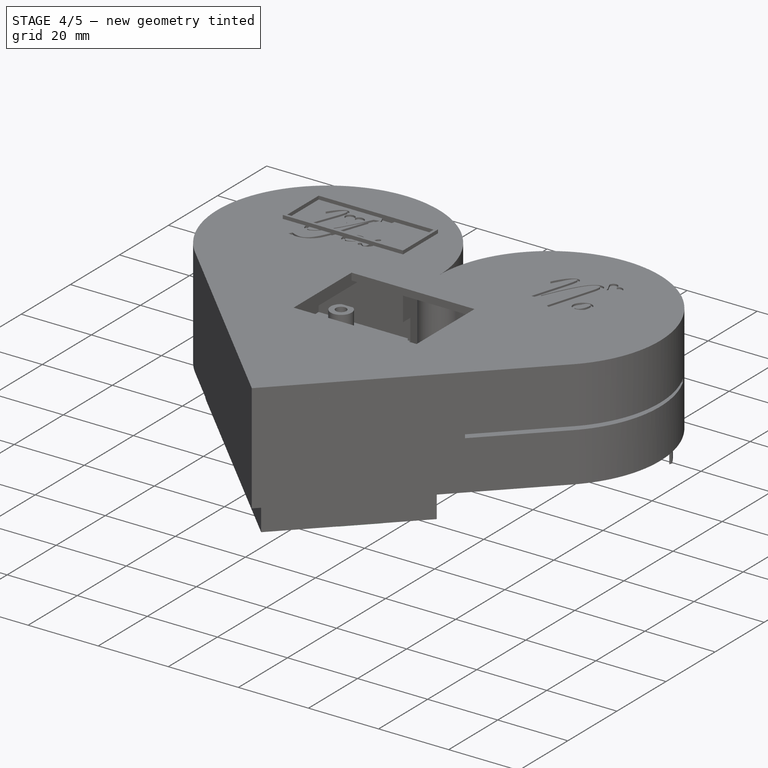
[diagram: stage 4 of 5 — iso view after this stage's code; geometry added in this stage tinted green]
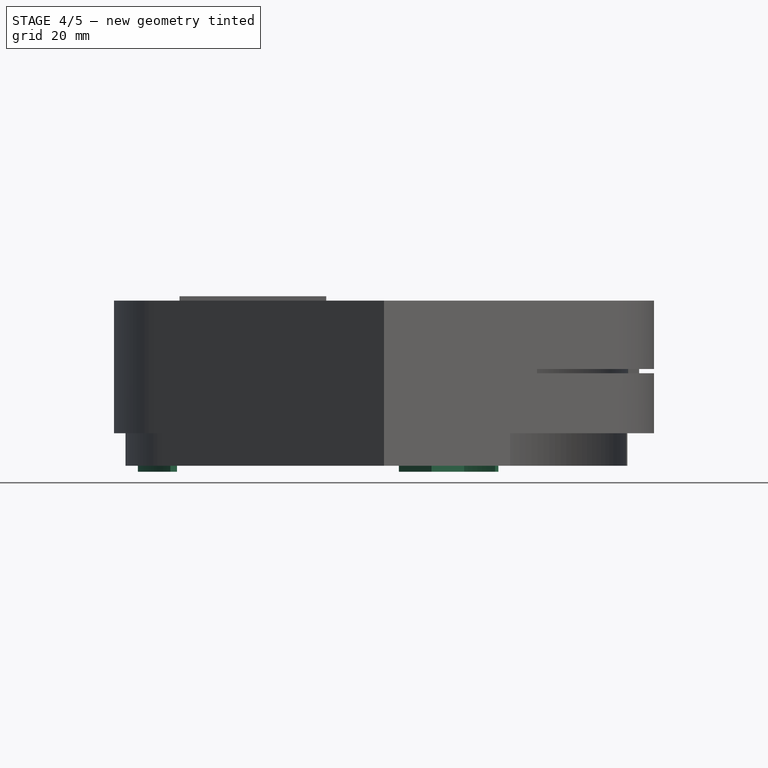
[diagram: stage 4 of 5 — front view after this stage's code; geometry added in this stage tinted green]
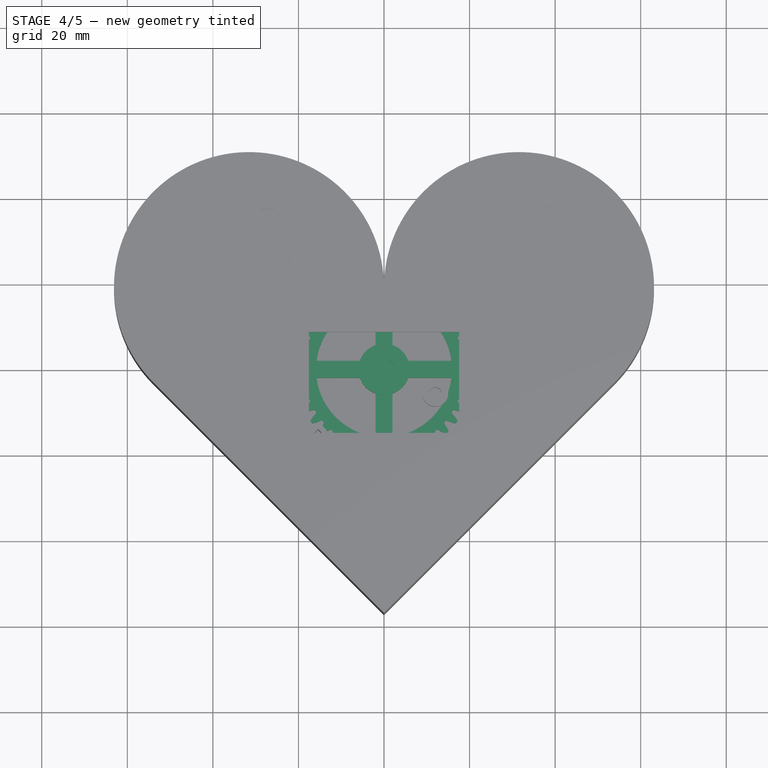
[diagram: stage 4 of 5 — top view after this stage's code; geometry added in this stage tinted green]
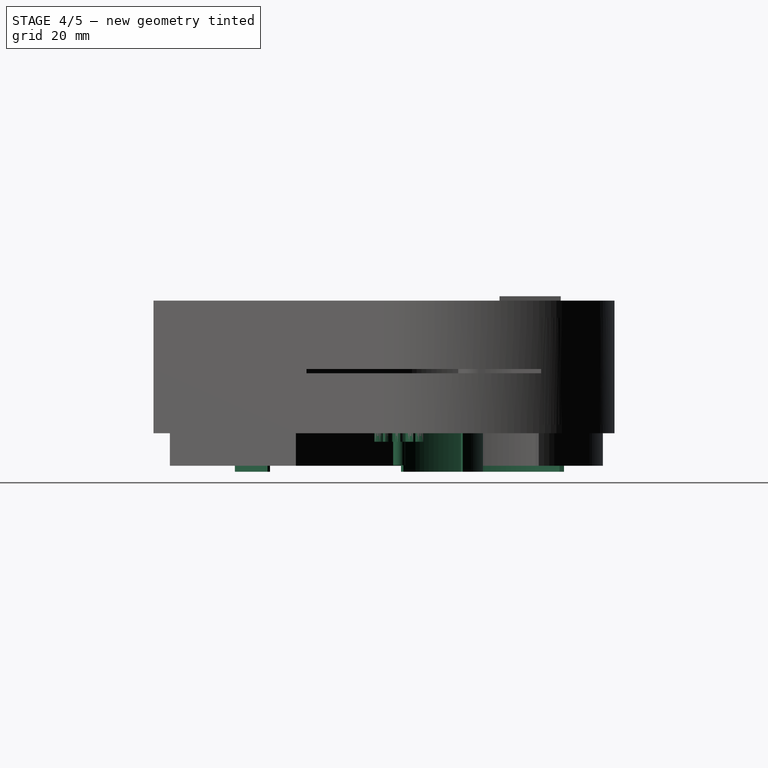
[diagram: stage 4 of 5 — right view after this stage's code; geometry added in this stage tinted green]
FEATURE [PartDesign::Body] Body005  label="Cog_Swivel_Arm"
  Group = -> [InvoluteGear,Pad010,Sketch024,Pad018,Sketch029,Pocket002]
  Origin = -> Origin005
  Placement = pos=(36.9,-3.55,-19) rot=(0,0,1;0rad)
  Tip = -> Pocket002
FEATURE [Part::Part2DObjectPython] InvoluteGear004  # Draft 2D object (typed FeaturePython)
  AddendumCoefficient = 1
  DedendumCoefficient = 1.25
  ExternalGear = true
  HighPrecision = true
  Modules = 1
  NumberOfTeeth = 10
  PressureAngle = 20
  ProfileShiftCoefficient = 0
  RootFilletCoefficient = 0.38
FEATURE [Sketcher::SketchObject] Sketch009
  FullyConstrained = true
  MapMode = 5
  Support = -> [XY_Plane003]
  sketch-geometry (5):
    g0: Circle CenterX=0 CenterY=0 CenterZ=0 NormalX=0 NormalY=0 NormalZ=1 AngleXU=0 Radius=3.65
    g1: Circle CenterX=0 CenterY=0 CenterZ=0 NormalX=0 NormalY=0 NormalZ=1 AngleXU=0 Radius=1.15
    g2: Circle CenterX=0 CenterY=0 CenterZ=0 NormalX=0 NormalY=0 NormalZ=1 AngleXU=0 Radius=2.625
    g3: Circle CenterX=0 CenterY=0 CenterZ=0 NormalX=0 NormalY=0 NormalZ=1 AngleXU=0 Radius=2.15
    g4: Circle CenterX=0 CenterY=0 CenterZ=0 NormalX=0 NormalY=0 NormalZ=1 AngleXU=0 Radius=6
  constraints (10):
    c: Coincident(g1,g0)
    c: Diameter(g1) = 2.3
    c: Diameter(g0) = 7.3
    c: Coincident(g2,g0)
    c: Diameter(g2) = 5.25
    c: Coincident(g3,g0)
    c: Diameter(g3) = 4.3
    c: Coincident(g-1,g0)
    c: Coincident(g4,g0)
    c: Diameter(g4) = 12
FEATURE [PartDesign::Pad] Pad009
  Direction = (0,0,1)
  Length = 4
  Length2 = 10
  Profile = -> Sketch009
  ReferenceAxis = -> Sketch009 [N_Axis]
  Type = 0
FEATURE [Sketcher::SketchObject] Sketch010
  FullyConstrained = false
  MapMode = 5
  Placement = pos=(0,0,4) rot=(0,0,1;0rad)
  Support = -> [Pad009]
  sketch-geometry (3):
    g0: LineSegment StartX=-1.92796 StartY=3.35 StartZ=0 EndX=-1.92796 EndY=-3.35 EndZ=0
    g1: LineSegment StartX=-6.44405 StartY=0 StartZ=0 EndX=12.856 EndY=0 EndZ=0
    g2: Circle CenterX=0 CenterY=0 CenterZ=0 NormalX=0 NormalY=0 NormalZ=1 AngleXU=0 Radius=2.5
  constraints (7):
    c: PointOnObject(g1,g-1)
    c: Horizontal(g1)
    c: Symmetric(g0,g0,g-1)
    c: Distance(g1) = 19.3
    c: Distance(g0) = 6.7
    c: Coincident(g2,g-1)
    c: Diameter(g2) = 5
FEATURE [PartDesign::Pocket] Pocket003
  BaseFeature = -> Pad009
  Direction = (0,0,-1)
  Length = 3
  Length2 = 5
  Profile = -> Sketch010
  ReferenceAxis = -> Sketch010 [N_Axis]
  Type = 0
FEATURE [PartDesign::Pad] Pad030
  BaseFeature = -> Pocket003
  Direction = (0,0,1)
  Length = 4
  Length2 = 10
  Profile = -> InvoluteGear004
  ReferenceAxis = -> InvoluteGear004 [N_Axis]
  Reversed = true
  Type = 0
FEATURE [Sketcher::SketchObject] Sketch011
  FullyConstrained = true
  MapMode = 5
  Placement = pos=(0,0,-4) rot=(1,0,0;3.14159rad)
  Support = -> [Pad030]
  sketch-geometry (1):
    g0: Circle CenterX=0 CenterY=0 CenterZ=0 NormalX=0 NormalY=0 NormalZ=1 AngleXU=0 Radius=1.4
  constraints (2):
    c: Coincident(g0,g-1)
    c: Diameter(g0) = 2.8
FEATURE [PartDesign::Pad] Pad011
  BaseFeature = -> Pad030
  Direction = (0,0,-1)
  Length = 5.5
  Length2 = 10
  Profile = -> Sketch011
  ReferenceAxis = -> Sketch011 [N_Axis]
  Type = 0
FEATURE [PartDesign::Body] Body003  label="Cog_Servo"
  Group = -> [Sketch009,Pad009,Sketch010,Pocket003,InvoluteGear004,Pad030,Sketch011,Pad011]
  Origin = -> Origin003
  Tip = -> Pad011
FEATURE [Part::Part2DObjectPython] InvoluteGear001  # Draft 2D object (typed FeaturePython)
  AddendumCoefficient = 1
  DedendumCoefficient = 1.25
  ExternalGear = true
  HighPrecision = false
  Modules = 1
  NumberOfTeeth = 40
  PressureAngle = 20
  ProfileShiftCoefficient = 0
  RootFilletCoefficient = 0.38
FEATURE [PartDesign::Pad] Pad016
  Direction = (0,0,1)
  Length = 3
  Length2 = 10
  Profile = -> InvoluteGear001
  ReferenceAxis = -> InvoluteGear001 [N_Axis]
  Type = 0
FEATURE [Sketcher::SketchObject] Sketch044
  FullyConstrained = true
  MapMode = 5
  Support = -> [XY_Plane006]
  sketch-geometry (1):
    g0: Circle CenterX=0 CenterY=0 CenterZ=0 NormalX=0 NormalY=0 NormalZ=1 AngleXU=0 Radius=1.4
  constraints (2):
    c: Coincident(g0,g-1)
    c: Diameter(g0) = 2.8
FEATURE [PartDesign::Pad] Pad017
  BaseFeature = -> Pad016
  Direction = (0,0,1)
  Length = 5.5
  Length2 = 10
  Profile = -> Sketch044
  ReferenceAxis = -> Sketch044 [N_Axis]
  Reversed = true
  Type = 0
FEATURE [Sketcher::SketchObject] Sketch027
  ExternalGeometry = -> [Pad017]
  FullyConstrained = true
  MapMode = 5
  Placement = pos=(0,0,3) rot=(0,0,1;0rad)
  Support = -> [Pad017]
  sketch-geometry (26):
    g0: Circle CenterX=0 CenterY=0 CenterZ=0 NormalX=0 NormalY=0 NormalZ=1 AngleXU=0 Radius=21
    g1: Circle CenterX=0 CenterY=0 CenterZ=0 NormalX=0 NormalY=0 NormalZ=1 AngleXU=0 Radius=20
    g2: Circle CenterX=0 CenterY=0 CenterZ=0 NormalX=0 NormalY=0 NormalZ=1 AngleXU=0 Radius=18.875
    g3: Circle CenterX=0 CenterY=0 CenterZ=0 NormalX=0 NormalY=0 NormalZ=1 AngleXU=0 Radius=15.875
    g4: LineSegment StartX=-2 StartY=15.7485 StartZ=0 EndX=-2 EndY=-15.7485 EndZ=0
    g5: LineSegment StartX=2 StartY=15.7485 StartZ=0 EndX=2 EndY=-15.7485 EndZ=0
    g6: LineSegment StartX=-15.7485 StartY=2 StartZ=0 EndX=15.7485 EndY=2 EndZ=0
    g7: LineSegment StartX=-15.7485 StartY=-2 StartZ=0 EndX=15.7485 EndY=-2 EndZ=0
    g8: GeomPoint X=-2 Y=2 Z=0
    g9: GeomPoint X=-2 Y=-2 Z=0
    g10: GeomPoint X=2 Y=-2 Z=0
    g11: GeomPoint X=2 Y=2 Z=0
    g12: GeomPoint X=0 Y=-15.875 Z=0
    g13: GeomPoint X=0 Y=-18.875 Z=0
    g14: ArcOfCircle CenterX=0 CenterY=0 CenterZ=0 NormalX=0 NormalY=0 NormalZ=1 AngleXU=0 Radius=15.875 StartAngle=3.26791 EndAngle=4.58607
    g15: ArcOfCircle CenterX=0 CenterY=0 CenterZ=0 NormalX=0 NormalY=0 NormalZ=1 AngleXU=0 Radius=15.875 StartAngle=1.69712 EndAngle=3.01527
    g16: ArcOfCircle CenterX=0 CenterY=0 CenterZ=0 NormalX=0 NormalY=0 NormalZ=1 AngleXU=0 Radius=15.875 StartAngle=0.12632 EndAngle=1.44448
    g17: ArcOfCircle CenterX=0 CenterY=0 CenterZ=0 NormalX=0 NormalY=0 NormalZ=1 AngleXU=0 Radius=15.875 StartAngle=4.83871 EndAngle=6.15687
    g18: LineSegment StartX=2 StartY=-15.7485 StartZ=0 EndX=2 EndY=-2 EndZ=0
    g19: LineSegment StartX=15.7485 StartY=-2 StartZ=0 EndX=2 EndY=-2 EndZ=0
    g20: LineSegment StartX=-2 StartY=-15.7485 StartZ=0 EndX=-2 EndY=-2 EndZ=0
    g21: LineSegment StartX=-15.7485 StartY=-2 StartZ=0 EndX=-2 EndY=-2 EndZ=0
    g22: LineSegment StartX=-2 StartY=2 StartZ=0 EndX=-15.7485 EndY=2 EndZ=0
    g23: LineSegment StartX=-2 StartY=2 StartZ=0 EndX=-2 EndY=15.7485 EndZ=0
    g24: LineSegment StartX=2 StartY=2 StartZ=0 EndX=2 EndY=15.7485 EndZ=0
    g25: LineSegment StartX=2 StartY=2 StartZ=0 EndX=15.7485 EndY=2 EndZ=0
  constraints (62):
    c: Coincident(g0,g-1)
    c: Coincident(g1,g0)
    c: Coincident(g2,g0)
    c: Diameter(g0) = 42
    c: Diameter(g1) = 40
    c: Diameter(g2) = 37.75
    c: Coincident(g3,g0)
    c: PointOnObject(g4,g3)
    c: PointOnObject(g4,g3)
    c: PointOnObject(g5,g3)
    c: PointOnObject(g5,g3)
    c: PointOnObject(g6,g3)
    c: PointOnObject(g6,g3)
    c: PointOnObject(g7,g3)
    c: PointOnObject(g7,g3)
    c: Parallel(g6,g7)
    c: Parallel(g7,g-1)
    c: Parallel(g-2,g4)
    c: Parallel(g4,g5)
    c: PointOnObject(g8,g6)
    c: PointOnObject(g9,g7)
    c: PointOnObject(g10,g5)
    c: PointOnObject(g8,g4)
    c: PointOnObject(g10,g7)
    c: PointOnObject(g11,g5)
    c: Symmetric(g8,g11,g-2)
    c: Symmetric(g9,g11,g0)
    c: Equal(g4,g6)
    c: Distance(g10,g11) = 4
    c: PointOnObject(g12,g3)
    c: PointOnObject(g13,g2)
    c: PointOnObject(g12,g-2)
    c: PointOnObject(g13,g-2)
    c: Distance(g13,g12) = 3
    c: Coincident(g14,g0)
    c: Coincident(g14,g7)
    c: PointOnObject(g14,g4)
    c: Coincident(g15,g14)
    c: Coincident(g15,g6)
    c: PointOnObject(g15,g4)
    c: Coincident(g16,g14)
    c: Coincident(g16,g5)
    c: PointOnObject(g16,g6)
    c: Coincident(g17,g14)
    c: Coincident(g17,g5)
    c: PointOnObject(g17,g7)
    c: Coincident(g18,g17)
    c: Coincident(g18,g10)
    c: Coincident(g19,g17)
    c: Coincident(g19,g18)
    c: Coincident(g20,g14)
    c: Coincident(g20,g9)
    c: Coincident(g21,g14)
    c: Coincident(g21,g20)
    c: Coincident(g22,g8)
    c: Coincident(g22,g15)
    c: Coincident(g23,g22)
    c: Coincident(g23,g15)
    c: Coincident(g24,g11)
    c: Coincident(g24,g16)
    c: Coincident(g25,g24)
    c: Coincident(g25,g16)
FEATURE [PartDesign::Pocket] Pocket001
  BaseFeature = -> Pad017
  Direction = (0,0,-1)
  Length = 5
  Length2 = 5
  Profile = -> Sketch027
  ReferenceAxis = -> Sketch027 [N_Axis]
  Type = 0
FEATURE [Sketcher::SketchObject] Sketch066
  FullyConstrained = true
  MapMode = 5
  Support = -> [XY_Plane014]
FEATURE [Sketcher::SketchObject] Sketch067  label="FuckinPlatform003"
  FullyConstrained = true
  MapMode = 5
  sketch-geometry (114):
    g0: GeomPoint X=0 Y=-57.4171 Z=0
    g1: LineSegment StartX=0 StartY=-57.4171 StartZ=0 EndX=53.8815 EndY=-3.53553 EndZ=0
    g2: LineSegment StartX=0 StartY=-57.4171 StartZ=0 EndX=-53.8815 EndY=-3.53553 EndZ=0
    g3: LineSegment StartX=0 StartY=-57.4171 StartZ=0 EndX=0 EndY=18.7829 EndZ=0
    g4: ArcOfCircle CenterX=-31.5631 CenterY=18.7829 CenterZ=0 NormalX=0 NormalY=0 NormalZ=1 AngleXU=0 Radius=31.5631 StartAngle=0 EndAngle=3.92699
    g5: ArcOfCircle CenterX=31.5631 CenterY=18.7829 CenterZ=0 NormalX=0 NormalY=0 NormalZ=1 AngleXU=0 Radius=31.5631 StartAngle=5.49779 EndAngle=9.42478
    g6: LineSegment StartX=0 StartY=-50.346 StartZ=0 EndX=50.346 EndY=0 EndZ=0
    g7: LineSegment StartX=0 StartY=-50.346 StartZ=0 EndX=-50.346 EndY=0 EndZ=0
    g8: GeomPoint X=0 Y=13.7829 Z=0
    g9: Circle CenterX=-31.5631 CenterY=18.7829 CenterZ=0 NormalX=0 NormalY=0 NormalZ=1 AngleXU=0 Radius=26.5631
    g10: GeomPoint X=-5 Y=18.7829 Z=0
    g11: LineSegment StartX=0 StartY=-50.346 StartZ=0 EndX=3.53553 EndY=-53.8815 EndZ=0
    g12: LineSegment StartX=0 StartY=-50.346 StartZ=0 EndX=-3.53553 EndY=-53.8815 EndZ=0
    g13: Circle CenterX=31.5631 CenterY=18.7829 CenterZ=0 NormalX=0 NormalY=0 NormalZ=1 AngleXU=0 Radius=26.5631
    g14: GeomPoint X=5 Y=18.7829 Z=0
    g15: ArcOfCircle CenterX=-31.5631 CenterY=18.7829 CenterZ=0 NormalX=0 NormalY=0 NormalZ=1 AngleXU=0 Radius=26.5631 StartAngle=0 EndAngle=3.92699
    g16: ArcOfCircle CenterX=31.5631 CenterY=18.7829 CenterZ=0 NormalX=0 NormalY=0 NormalZ=1 AngleXU=0 Radius=26.5631 StartAngle=5.49779 EndAngle=9.42478
    g17: ArcOfCircle CenterX=1e-16 CenterY=18.7829 CenterZ=0 NormalX=0 NormalY=0 NormalZ=1 AngleXU=0 Radius=5 StartAngle=3.14159 EndAngle=6.28319
    g18: GeomPoint X=53.8815 Y=-3.53553 Z=0
    g19: GeomPoint X=36.911 Y=-3.53553 Z=0
    g20: GeomPoint X=45.3963 Y=-12.0208 Z=0
    g21: LineSegment StartX=36.911 StartY=-3.53553 StartZ=0 EndX=45.3963 EndY=-12.0208 EndZ=0
    g22: Circle CenterX=36.911 CenterY=-3.53553 CenterZ=0 NormalX=0 NormalY=0 NormalZ=1 AngleXU=0 Radius=3.75
    g23: Circle CenterX=36.911 CenterY=-3.53553 CenterZ=0 NormalX=0 NormalY=0 NormalZ=1 AngleXU=0 Radius=5
    g24: Circle CenterX=36.911 CenterY=-3.53553 CenterZ=0 NormalX=0 NormalY=0 NormalZ=1 AngleXU=0 Radius=6
    g25: Circle CenterX=12.0061 CenterY=-5.71443 CenterZ=0 NormalX=0 NormalY=0 NormalZ=1 AngleXU=0 Radius=18.75
    g26: Circle CenterX=12.0061 CenterY=-5.71443 CenterZ=0 NormalX=0 NormalY=0 NormalZ=1 AngleXU=0 Radius=21
    g27: Circle CenterX=12.0061 CenterY=-5.71443 CenterZ=0 NormalX=0 NormalY=0 NormalZ=1 AngleXU=0 Radius=20
    g28: Circle CenterX=-25.5816 CenterY=7.96638 CenterZ=0 NormalX=0 NormalY=0 NormalZ=1 AngleXU=0 Radius=18.75
    g29: Circle CenterX=-25.5816 CenterY=7.96638 CenterZ=0 NormalX=0 NormalY=0 NormalZ=1 AngleXU=0 Radius=20
    g30: Circle CenterX=-25.5816 CenterY=7.96638 CenterZ=0 NormalX=0 NormalY=0 NormalZ=1 AngleXU=0 Radius=21
    g31: Circle CenterX=-36.1471 CenterY=30.6241 CenterZ=0 NormalX=0 NormalY=0 NormalZ=1 AngleXU=0 Radius=6
    g32: Circle CenterX=-36.1471 CenterY=30.6241 CenterZ=0 NormalX=0 NormalY=0 NormalZ=1 AngleXU=0 Radius=5
    g33: Circle CenterX=-36.1471 CenterY=30.6241 CenterZ=0 NormalX=0 NormalY=0 NormalZ=1 AngleXU=0 Radius=3.75
    g34: LineSegment StartX=-36.1471 StartY=30.6241 StartZ=0 EndX=-25.5816 EndY=7.96638 EndZ=0
    g35: LineSegment StartX=-25.5816 StartY=7.96638 StartZ=0 EndX=12.0061 EndY=-5.71443 EndZ=0
    g36: LineSegment StartX=12.0061 StartY=-5.71443 StartZ=0 EndX=36.911 EndY=-3.53553 EndZ=0
    g37: Circle CenterX=-36.1471 CenterY=30.6241 CenterZ=0 NormalX=0 NormalY=0 NormalZ=1 AngleXU=0 Radius=1.5
    g38: Circle CenterX=-25.5816 CenterY=7.96638 CenterZ=0 NormalX=0 NormalY=0 NormalZ=1 AngleXU=0 Radius=1.5
    g39: Circle CenterX=12.0061 CenterY=-5.71443 CenterZ=0 NormalX=0 NormalY=0 NormalZ=1 AngleXU=0 Radius=1.5
    g40: Circle CenterX=36.911 CenterY=-3.53553 CenterZ=0 NormalX=0 NormalY=0 NormalZ=1 AngleXU=0 Radius=1.5
    g41: LineSegment StartX=-33.8616 StartY=28.6807 StartZ=0 EndX=-25.6013 EndY=10.9663 EndZ=0
    g42: LineSegment StartX=-27.867 StartY=9.90977 StartZ=0 EndX=-36.1274 EndY=27.6241 EndZ=0
    g43: ArcOfCircle CenterX=-36.1471 CenterY=30.6241 CenterZ=0 NormalX=0 NormalY=0 NormalZ=1 AngleXU=0 Radius=3 StartAngle=5.5785 EndAngle=11.0021
    g44: LineSegment StartX=-22.5914 StartY=8.20824 StartZ=0 EndX=9.87092 EndY=-3.60706 EndZ=0
    g45: LineSegment StartX=-23.4464 StartY=5.85901 StartZ=0 EndX=9.01587 EndY=-5.95629 EndZ=0
    g46: ArcOfCircle CenterX=-25.5816 CenterY=7.96638 CenterZ=0 NormalX=0 NormalY=0 NormalZ=1 AngleXU=0 Radius=3 StartAngle=0.0807096 EndAngle=1.57735
    g47: ArcOfCircle CenterX=-25.5816 CenterY=7.96638 CenterZ=0 NormalX=0 NormalY=0 NormalZ=1 AngleXU=0 Radius=3 StartAngle=2.4369 EndAngle=5.50434
    g48: LineSegment StartX=14.614 StartY=-4.23149 StartZ=0 EndX=34.0852 EndY=-2.52798 EndZ=0
    g49: LineSegment StartX=14.8319 StartY=-6.72198 StartZ=0 EndX=34.3031 EndY=-5.01847 EndZ=0
    g50: ArcOfCircle CenterX=12.0061 CenterY=-5.71443 CenterZ=0 NormalX=0 NormalY=0 NormalZ=1 AngleXU=0 Radius=3 StartAngle=0.517042 EndAngle=2.36275
    g51: ArcOfCircle CenterX=12.0061 CenterY=-5.71443 CenterZ=0 NormalX=0 NormalY=0 NormalZ=1 AngleXU=0 Radius=3 StartAngle=3.2223 EndAngle=5.94068
    g52: ArcOfCircle CenterX=36.911 CenterY=-3.53553 CenterZ=0 NormalX=0 NormalY=0 NormalZ=1 AngleXU=0 Radius=3 StartAngle=3.65863 EndAngle=9.08227
    g53: GeomPoint X=14.8319 Y=-5.46721 Z=0
    g54: LineSegment StartX=14.8319 StartY=-5.46721 StartZ=0 EndX=14.614 EndY=-4.23149 EndZ=0
    g55: LineSegment StartX=14.8319 StartY=-5.46721 StartZ=0 EndX=14.8319 EndY=-6.72198 EndZ=0
    g56: LineSegment StartX=14.614 StartY=-4.23149 StartZ=0 EndX=14.8319 EndY=-6.72198 EndZ=0
    g57: LineSegment StartX=9.87092 StartY=-3.60706 StartZ=0 EndX=9.01587 EndY=-5.95629 EndZ=0
    g58: LineSegment StartX=-14.6471 StartY=36.6241 StartZ=0 EndX=-46.6471 EndY=36.6241 EndZ=0
    g59: LineSegment StartX=-46.6471 StartY=36.6241 StartZ=0 EndX=-46.6471 EndY=24.6241 EndZ=0
    g60: LineSegment StartX=-46.6471 StartY=24.6241 StartZ=0 EndX=-14.6471 EndY=24.6241 EndZ=0
    g61: LineSegment StartX=-14.6471 StartY=24.6241 StartZ=0 EndX=-14.6471 EndY=36.6241 EndZ=0
    g62: LineSegment StartX=-19.1471 StartY=36.6241 StartZ=0 EndX=-42.1471 EndY=36.6241 EndZ=0
    g63: LineSegment StartX=-42.1471 StartY=36.6241 StartZ=0 EndX=-42.1471 EndY=24.6241 EndZ=0
    g64: LineSegment StartX=-42.1471 StartY=24.6241 StartZ=0 EndX=-19.1471 EndY=24.6241 EndZ=0
    g65: LineSegment StartX=-19.1471 StartY=24.6241 StartZ=0 EndX=-19.1471 EndY=36.6241 EndZ=0
    g66: GeomPoint X=-30.6471 Y=30.6241 Z=0
    g67: GeomPoint X=-42.1471 Y=30.6241 Z=0
    g68: LineSegment StartX=-47.7971 StartY=23.4741 StartZ=0 EndX=-47.7971 EndY=37.7741 EndZ=0
    g69: LineSegment StartX=-47.7971 StartY=37.7741 StartZ=0 EndX=-13.4971 EndY=37.7741 EndZ=0
    g70: LineSegment StartX=-13.4971 StartY=37.7741 StartZ=0 EndX=-13.4971 EndY=23.4741 EndZ=0
    g71: LineSegment StartX=-13.4971 StartY=23.4741 StartZ=0 EndX=-47.7971 EndY=23.4741 EndZ=0
    g72: GeomPoint X=-30.6471 Y=30.6241 Z=0
    g73: LineSegment StartX=0 StartY=-50.346 StartZ=0 EndX=-26.5165 EndY=-23.8295 EndZ=0
    g74: LineSegment StartX=-26.5165 StartY=-23.8295 StartZ=0 EndX=-15.4149 EndY=-12.7279 EndZ=0
    g75: LineSegment StartX=-15.4149 StartY=-12.7279 StartZ=0 EndX=11.1016 EndY=-39.2444 EndZ=0
    g76: LineSegment StartX=11.1016 StartY=-39.2444 StartZ=0 EndX=0 EndY=-50.346 EndZ=0
    g77: LineSegment StartX=35.7796 StartY=-21.6375 StartZ=0 EndX=53.8815 EndY=-3.53553 EndZ=0
    g78: LineSegment StartX=50.346 StartY=-3.6e-15 StartZ=0 EndX=28.2912 EndY=-22.0548 EndZ=0
    g79: LineSegment StartX=28.2912 StartY=-22.0548 StartZ=0 EndX=35.7796 EndY=-21.6375 EndZ=0
    g80: ArcOfCircle CenterX=36.911 CenterY=-3.53553 CenterZ=0 NormalX=0 NormalY=0 NormalZ=1 AngleXU=0 Radius=20.427 StartAngle=2.3569 EndAngle=4.27676
    g81: ArcOfCircle CenterX=0 CenterY=18.7829 CenterZ=0 NormalX=0 NormalY=0 NormalZ=1 AngleXU=0 Radius=5.6 StartAngle=3.14159 EndAngle=6.28319
    g82: ArcOfCircle CenterX=-31.5631 CenterY=18.7829 CenterZ=0 NormalX=0 NormalY=0 NormalZ=1 AngleXU=0 Radius=25.9631 StartAngle=0 EndAngle=0.768513
    g83: LineSegment StartX=-12.8971 StartY=36.829 StartZ=0 EndX=-12.8971 EndY=22.8741 EndZ=0
    g84: LineSegment StartX=-12.8971 StartY=22.8741 StartZ=0 EndX=-48.3971 EndY=22.8741 EndZ=0
    g85: LineSegment StartX=-48.3971 StartY=22.8741 StartZ=0 EndX=-48.3971 EndY=38.549 EndZ=0
    g86: ArcOfCircle CenterX=-31.5631 CenterY=18.7829 CenterZ=0 NormalX=0 NormalY=0 NormalZ=1 AngleXU=0 Radius=25.9631 StartAngle=2.27625 EndAngle=3.92699
    g87: LineSegment StartX=-49.9217 StartY=0.424264 StartZ=0 EndX=-26.5165 EndY=-22.981 EndZ=0
    g88: LineSegment StartX=-26.5165 StartY=-22.981 StartZ=0 EndX=-15.4149 EndY=-11.8794 EndZ=0
    g89: LineSegment StartX=-15.4149 StartY=-11.8794 StartZ=0 EndX=11.1016 EndY=-38.3959 EndZ=0
    g90: LineSegment StartX=11.1016 StartY=-38.3959 StartZ=0 EndX=27.2736 EndY=-22.2239 EndZ=0
    g91: ArcOfCircle CenterX=36.911 CenterY=-3.53553 CenterZ=0 NormalX=0 NormalY=0 NormalZ=1 AngleXU=0 Radius=21.027 StartAngle=2.07523 EndAngle=4.23627
    g92: ArcOfCircle CenterX=12.0061 CenterY=-5.71443 CenterZ=0 NormalX=0 NormalY=0 NormalZ=1 AngleXU=0 Radius=25.3211 StartAngle=0.949347 EndAngle=1.82657
    g93: GeomPoint X=0 Y=13.1829 Z=0
    g94: LineSegment StartX=-26.5165 StartY=-22.981 StartZ=0 EndX=-26.0922 EndY=-23.4052 EndZ=0
    g95: LineSegment StartX=-15.4149 StartY=-12.7279 StartZ=0 EndX=-14.9907 EndY=-12.3037 EndZ=0
    g96: LineSegment StartX=11.1016 StartY=-38.3959 StartZ=0 EndX=11.5258 EndY=-38.8202 EndZ=0
    g97: GeomPoint X=15.964 Y=-5.36816 Z=0
    g98: GeomPoint X=16.5617 Y=-5.31586 Z=0
    g99: LineSegment StartX=12.0061 StartY=-5.71443 StartZ=0 EndX=12.0061 EndY=19.6067 EndZ=0
    g100: ArcOfCircle CenterX=0 CenterY=18.7829 CenterZ=0 NormalX=0 NormalY=0 NormalZ=1 AngleXU=0 Radius=5.6 StartAngle=6.13166 EndAngle=6.28319
    g101: ArcOfCircle CenterX=12.0061 CenterY=-5.71443 CenterZ=0 NormalX=0 NormalY=0 NormalZ=1 AngleXU=0 Radius=24.5211 StartAngle=0.964122 EndAngle=1.83782
    g102: ArcOfCircle CenterX=36.911 CenterY=-3.53553 CenterZ=0 NormalX=0 NormalY=0 NormalZ=1 AngleXU=0 Radius=21.027 StartAngle=2.07523 EndAngle=2.11711
    g103: LineSegment StartX=11.1016 StartY=-38.3959 StartZ=0 EndX=18.7383 EndY=-30.7591 EndZ=0
    g104: LineSegment StartX=11.1016 StartY=-38.3959 StartZ=0 EndX=3.46482 EndY=-30.7591 EndZ=0
    g105: GeomPoint X=12.0061 Y=18.8067 Z=0
    g106: LineSegment StartX=4.03051 StartY=-30.1935 StartZ=0 EndX=11.1016 EndY=-37.2645 EndZ=0
    g107: LineSegment StartX=11.1016 StartY=-37.2645 StartZ=0 EndX=18.1726 EndY=-30.1935 EndZ=0
    g108: LineSegment StartX=18.1726 StartY=-30.1935 StartZ=0 EndX=18.7383 EndY=-30.7591 EndZ=0
    g109: LineSegment StartX=4.03051 StartY=-30.1935 StartZ=0 EndX=3.46482 EndY=-30.7591 EndZ=0
    g110: ArcOfCircle CenterX=-31.5631 CenterY=18.7829 CenterZ=0 NormalX=0 NormalY=0 NormalZ=1 AngleXU=0 Radius=25.9631 StartAngle=2.27625 EndAngle=3.92699
    g111: ArcOfCircle CenterX=-31.5631 CenterY=18.7829 CenterZ=0 NormalX=0 NormalY=0 NormalZ=1 AngleXU=0 Radius=25.1631 StartAngle=2.30365 EndAngle=3.92699
    g112: LineSegment StartX=-48.3971 StartY=37.4858 StartZ=0 EndX=-48.3971 EndY=38.549 EndZ=0
    g113: LineSegment StartX=-49.3561 StartY=0.98995 StartZ=0 EndX=-49.9217 EndY=0.424264 EndZ=0
  constraints (283):
    c: PointOnObject(g0,g-2)
    c: Coincident(g1,g0)
    c: Coincident(g2,g1)
    c: Angle(g1,g2) = 1.5708
    c: Coincident(g3,g1)
    c: Vertical(g3)
    c: DistanceY(g3,g3) = 76.2
    c: Coincident(g4,g3)
    c: Coincident(g5,g3)
    c: Symmetric(g4,g5,g3)
    c: Tangent(g5,g1) = -1.5708
    c: Tangent(g4,g2) = 1.5708
    c: Horizontal(g4,g3)
    c: Coincident(g7,g6)
    c: Vertical(g6,g1)
    c: Distance(g4,g8) = 5
    c: Vertical(g8,g4)
    c: Coincident(g9,g4)
    c: Horizontal(g10,g4)
    c: Distance(g10,g4) = 5
    c: Tangent(g7,g9) = 1.5708
    c: Coincident(g11,g6)
    c: PointOnObject(g11,g1)
    c: Distance(g11) = 5
    c: Coincident(g12,g6)
    c: PointOnObject(g12,g2)
    c: Parallel(g12,g1)
    c: Parallel(g11,g2)
    c: Coincident(g13,g5)
    c: Tangent(g6,g13) = -1.5708
    c: Distance(g14,g4) = 5
    c: Horizontal(g14,g5)
    c: Coincident(g15,g4)
    c: Coincident(g15,g10)
    c: Coincident(g15,g7)
    c: Coincident(g16,g5)
    c: Coincident(g16,g14)
    c: Coincident(g16,g6)
    c: Coincident(g17,g15)
    c: Coincident(g17,g16)
    c: PointOnObject(g8,g17)
    c: Horizontal(g-1,g6)
    c: Coincident(g18,g1)
    c: PointOnObject(g20,g1)
    c: Coincident(g21,g19)
    c: Coincident(g21,g20)
    c: Angle(g21,g1) = 1.5708
    c: Distance(g21) = 12
    c: Distance(g1,g20) = 12
    c: Coincident(g22,g19)
    c: Diameter(g22) = 7.5
    c: Coincident(g23,g19)
    c: Diameter(g23) = 10
    c: Coincident(g24,g19)
    c: Diameter(g24) = 12
    c: Coincident(g26,g25)
    c: Coincident(g27,g25)
    c: Diameter(g26) = 42
    c: Diameter(g27) = 40
    c: Diameter(g25) = 37.5
    c: Tangent(g23,g27)
    c: Coincident(g29,g28)
    c: Coincident(g30,g28)
    c: Diameter(g30) = 42
    c: Diameter(g29) = 40
    c: Diameter(g28) = 37.5
    c: Tangent(g29,g27)
    c: Coincident(g32,g31)
    c: Coincident(g33,g31)
    c: Diameter(g31) = 12
    c: Diameter(g32) = 10
    c: Diameter(g33) = 7.5
    c: Tangent(g32,g29)
    c: Coincident(g34,g31)
    c: Coincident(g34,g28)
    c: Coincident(g35,g28)
    c: Coincident(g35,g25)
    c: Coincident(g36,g25)
    c: Coincident(g36,g19)
    c: Angle(g35,g34) = 2.35619
    c: Angle(g36,g35) = 2.70526
    c: Angle(g36,g21) = 2.26893
    c: Coincident(g37,g31)
    c: Coincident(g38,g28)
    c: Coincident(g39,g25)
    c: Coincident(g40,g19)
    c: Equal(g37,g38)
    c: Equal(g38,g39)
    c: Equal(g39,g40)
    c: Diameter(g40) = 3
    c: Coincident(g43,g37)
    c: Coincident(g43,g41)
    c: Coincident(g43,g42)
    c: Parallel(g42,g41)
    c: Parallel(g41,g34)
    c: Parallel(g45,g35)
    c: Parallel(g35,g44)
    c: Coincident(g46,g38)
    c: Coincident(g46,g41)
    c: Coincident(g46,g44)
    c: Coincident(g47,g38)
    c: Coincident(g47,g42)
    c: Coincident(g47,g45)
    c: Coincident(g50,g39)
    c: Coincident(g50,g48)
    c: Coincident(g50,g44)
    c: Coincident(g51,g39)
    c: Coincident(g51,g49)
    c: Coincident(g51,g45)
    c: Coincident(g52,g40)
    c: Coincident(g52,g48)
    c: Coincident(g49,g52)
    c: Symmetric(g42,g41,g34)
    c: Equal(g50,g47)
    c: Equal(g47,g43)
    c: Symmetric(g45,g44,g35)
    c: Diameter(g43) = 6
    c: Distance(g42,g41) = 2.5
    c: Distance(g44,g45) = 2.5
    c: Equal(g52,g50)
    c: Parallel(g49,g36)
    c: Parallel(g36,g48)
    c: PointOnObject(g53,g36)
    c: Coincident(g54,g53)
    c: Coincident(g54,g48)
    c: Coincident(g55,g53)
    c: Coincident(g55,g49)
    c: Vertical(g55)
    c: Equal(g55,g54)
    c: Coincident(g56,g48)
    c: Coincident(g56,g49)
    c: Coincident(g57,g44)
    c: Coincident(g57,g45)
    c: Equal(g57,g56)
    c: Coincident(g58,g59)
    c: Coincident(g59,g60)
    c: Coincident(g60,g61)
    c: Coincident(g61,g58)
    c: Parallel(g61,g59)
    c: Parallel(g60,g58)
    c: Angle(g60,g59) = 1.5708
    c: Distance(g60) = 32
    c: Coincident(g62,g63)
    c: Coincident(g63,g64)
    c: Coincident(g64,g65)
    c: Coincident(g65,g62)
    c: PointOnObject(g63,g60)
    c: Angle(g64,g63) = 1.5708
    c: Parallel(g64,g62)
    c: Parallel(g64,g60)
    c: Symmetric(g64,g62,g66)
    c: Symmetric(g60,g58,g66)
    c: Distance(g59) = 12
    c: Distance(g64,g63) = 23
    c: PointOnObject(g67,g31)
    c: Symmetric(g63,g62,g67)
    c: Tangent(g60,g31)
    c: Coincident(g68,g69)
    c: Coincident(g69,g70)
    c: Coincident(g70,g71)
    c: Coincident(g71,g68)
    c: Horizontal(g69)
    c: Horizontal(g71)
    c: Vertical(g68)
    c: Vertical(g70)
    c: Symmetric(g69,g68,g72)
    c: Coincident(g72,g66)
    c: DistanceX(g60,g70) = 1.15
    c: DistanceY(g70,g60) = 1.15
    c: Coincident(g73,g74)
    c: Coincident(g74,g75)
    c: Coincident(g75,g76)
    c: Coincident(g76,g73)
    c: Coincident(g73,g6)
    c: Parallel(g75,g73)
    c: Parallel(g76,g74)
    c: Angle(g76,g73) = 1.5708
    c: PointOnObject(g75,g6)
    c: Distance(g73,g74) = 15.7
    c: Distance(g74,g75) = 37.5
    c: Coincident(g79,g78)
    c: Coincident(g79,g77)
    c: Distance(g77) = 25.6
    c: Parallel(g77,g78)
    c: Coincident(g78,g6)
    c: PointOnObject(g78,g6)
    c: Coincident(g77,g1)
    c: Distance(g79) = 7.5
    c: Coincident(g80,g19)
    c: Coincident(g80,g78)
    c: Angle(g80) = 1.91986
    c: Coincident(g81,g3)
    c: Coincident(g82,g4)
    c: Coincident(g83,g82)
    c: Vertical(g83)
    c: Coincident(g84,g83)
    c: Horizontal(g84)
    c: Coincident(g85,g84)
    c: Vertical(g85)
    c: Coincident(g86,g82)
    c: Coincident(g86,g85)
    c: Tangent(g87,g86) = -1.5708
    c: Parallel(g87,g7)
    c: Coincident(g88,g87)
    c: Coincident(g89,g88)
    c: Parallel(g88,g74)
    c: Parallel(g75,g89)
    c: Coincident(g90,g89)
    c: Parallel(g6,g90)
    c: Coincident(g91,g19)
    c: Coincident(g91,g90)
    c: Coincident(g92,g25)
    c: Coincident(g92,g91)
    c: DistanceX(g70,g83) = 0.6
    c: DistanceY(g83,g70) = 0.6
    c: Tangent(g82,g81) = 1.5708
    c: PointOnObject(g93,g81)
    c: Vertical(g93,g8)
    c: DistanceX(g84,g68) = 0.6
    c: Distance(g7,g86) = 0.6
    c: Coincident(g94,g87)
    c: PointOnObject(g94,g74)
    c: Parallel(g94,g7)
    c: Distance(g94) = 0.6
    c: Coincident(g95,g74)
    c: PointOnObject(g95,g89)
    c: Parallel(g95,g88)
    c: Distance(g95) = 0.6
    c: Coincident(g96,g89)
    c: PointOnObject(g96,g6)
    c: Parallel(g96,g89)
    c: Distance(g96) = 0.6
    c: PointOnObject(g97,g36)
    c: PointOnObject(g98,g36)
    c: PointOnObject(g98,g80)
    c: PointOnObject(g97,g91)
    c: Distance(g97,g98) = 0.6
    c: Horizontal(g58)
    c: Vertical(g65)
    c: Distance(g8,g93) = 0.6
    c: Coincident(g99,g92)
    c: PointOnObject(g99,g92)
    c: Vertical(g99)
    c: Horizontal(g81,g14)
    c: Coincident(g92,g81)
    c: Coincident(g100,g3)
    c: Coincident(g100,g92)
    c: Coincident(g101,g92)
    c: Coincident(g100,g101)
    c: Coincident(g102,g19)
    c: Coincident(g102,g92)
    c: Coincident(g102,g101)
    c: Coincident(g103,g89)
    c: PointOnObject(g103,g90)
    c: Coincident(g104,g103)
    c: PointOnObject(g104,g89)
    c: PointOnObject(g105,g101)
    c: PointOnObject(g105,g99)
    c: Distance(g105,g99) = 0.8
    c: Coincident(g107,g106)
    c: Parallel(g107,g103)
    c: Parallel(g106,g104)
    c: Coincident(g108,g107)
    c: Coincident(g108,g103)
    c: Coincident(g109,g106)
    c: Coincident(g109,g104)
    c: Parallel(g109,g103)
    c: Parallel(g108,g104)
    c: Distance(g108) = 0.8
    c: Distance(g109) = 0.8
    c: Coincident(g110,g4)
    c: Coincident(g110,g85)
    c: Coincident(g111,g110)
    c: Coincident(g112,g111)
    c: Coincident(g112,g110)
    c: Coincident(g113,g111)
    c: Coincident(g113,g110)
    c: PointOnObject(g111,g85)
    c: Distance(g113) = 0.8
    c: Angle(g87,g113) = 1.5708
    c: PointOnObject(g110,g87)
    c: Equal(g106,g107)
    c: Distance(g106) = 10
FEATURE [PartDesign::Pad] Pad039
  BaseFeature = -> Pad038
  Direction = (0,0,1)
  Length = 11
  Length2 = 10
  Profile = -> Sketch067
  ReferenceAxis = -> Sketch067 [N_Axis]
  Reversed = true
  Type = 0
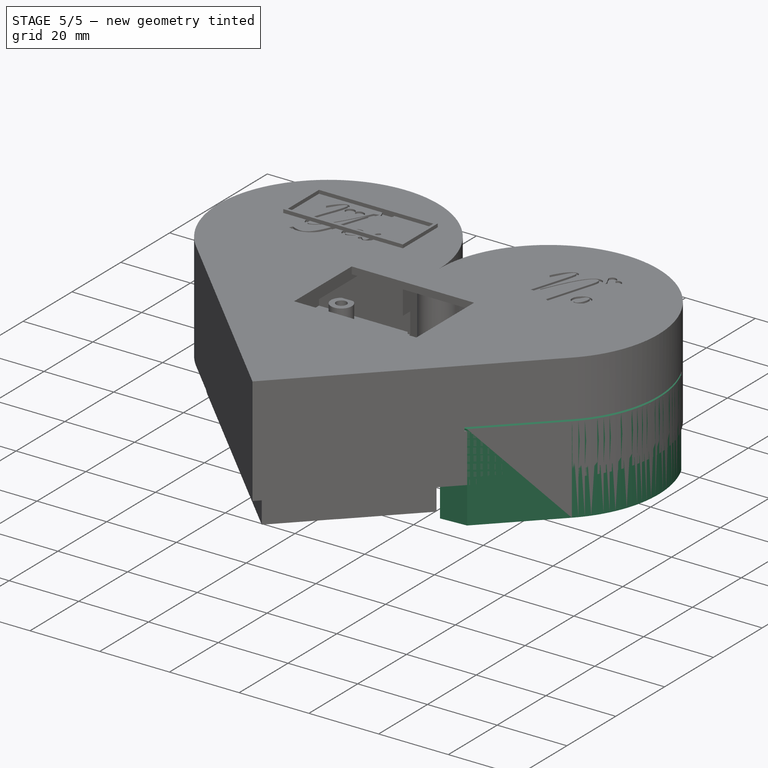
[diagram: stage 5 of 5 — iso view after this stage's code; geometry added in this stage tinted green]
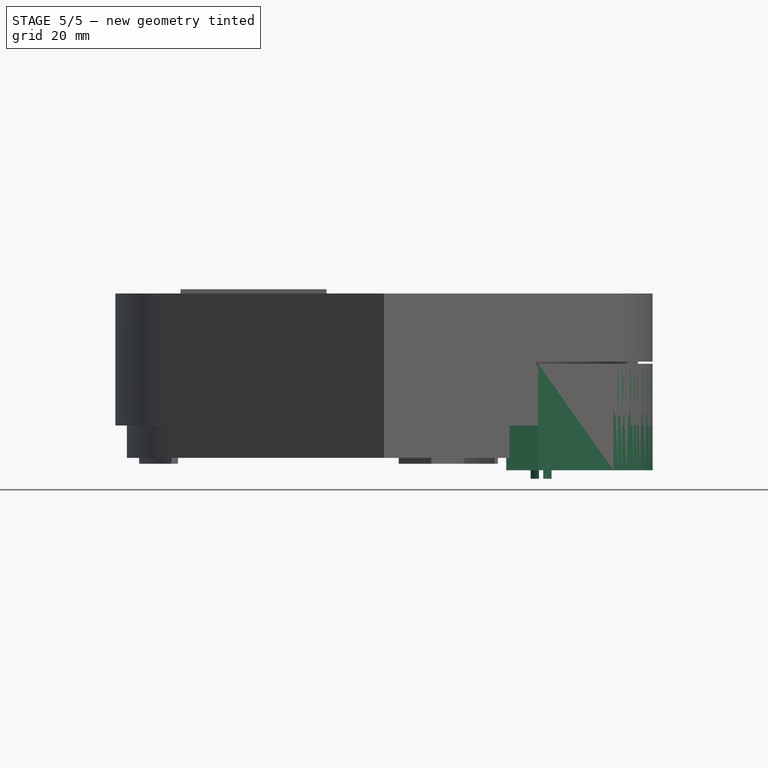
[diagram: stage 5 of 5 — front view after this stage's code; geometry added in this stage tinted green]
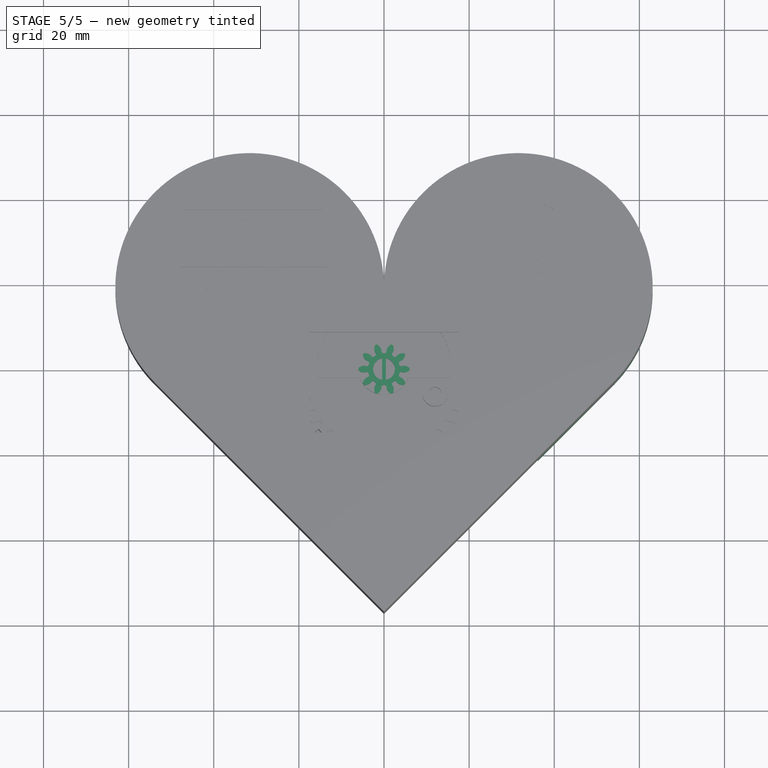
[diagram: stage 5 of 5 — top view after this stage's code; geometry added in this stage tinted green]
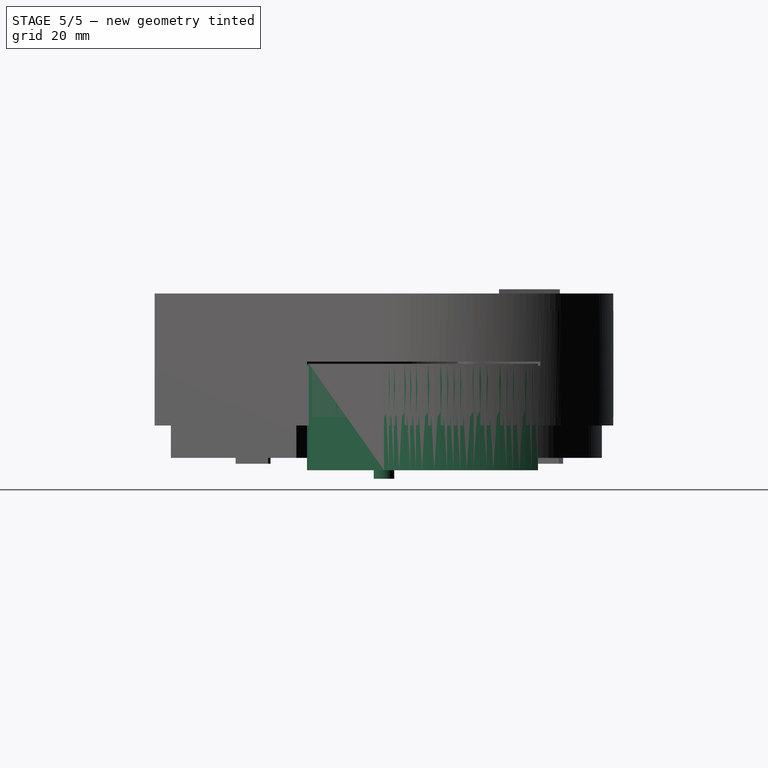
[diagram: stage 5 of 5 — right view after this stage's code; geometry added in this stage tinted green]
FEATURE [Sketcher::SketchObject] Sketch030  label="Swivel Arm?"
  FullyConstrained = true
  MapMode = 5
  sketch-geometry (30):
    g0: GeomPoint X=0 Y=-57.4171 Z=0
    g1: LineSegment StartX=0 StartY=-57.4171 StartZ=0 EndX=53.8815 EndY=-3.53553 EndZ=0
    g2: LineSegment StartX=0 StartY=-57.4171 StartZ=0 EndX=-53.8815 EndY=-3.53553 EndZ=0
    g3: LineSegment StartX=0 StartY=-57.4171 StartZ=0 EndX=0 EndY=18.7829 EndZ=0
    g4: ArcOfCircle CenterX=-31.5631 CenterY=18.7829 CenterZ=0 NormalX=0 NormalY=0 NormalZ=1 AngleXU=0 Radius=31.5631 StartAngle=0 EndAngle=3.92699
    g5: ArcOfCircle CenterX=31.5631 CenterY=18.7829 CenterZ=0 NormalX=0 NormalY=0 NormalZ=1 AngleXU=0 Radius=31.5631 StartAngle=5.49779 EndAngle=9.42478
    g6: LineSegment StartX=0 StartY=-50.346 StartZ=0 EndX=50.346 EndY=1.42e-14 EndZ=0
    g7: LineSegment StartX=0 StartY=-50.346 StartZ=0 EndX=-50.346 EndY=0 EndZ=0
    g8: GeomPoint X=0 Y=13.7829 Z=0
    g9: Circle CenterX=-31.5631 CenterY=18.7829 CenterZ=0 NormalX=0 NormalY=0 NormalZ=1 AngleXU=0 Radius=26.5631
    g10: GeomPoint X=-5 Y=18.7829 Z=0
    g11: LineSegment StartX=0 StartY=-50.346 StartZ=0 EndX=3.53553 EndY=-53.8815 EndZ=0
    g12: LineSegment StartX=0 StartY=-50.346 StartZ=0 EndX=-3.53553 EndY=-53.8815 EndZ=0
    g13: Circle CenterX=31.5631 CenterY=18.7829 CenterZ=0 NormalX=0 NormalY=0 NormalZ=1 AngleXU=0 Radius=26.5631
    g14: GeomPoint X=5 Y=18.7829 Z=0
    g15: ArcOfCircle CenterX=-31.5631 CenterY=18.7829 CenterZ=0 NormalX=0 NormalY=0 NormalZ=1 AngleXU=0 Radius=26.5631 StartAngle=0 EndAngle=3.92699
    g16: ArcOfCircle CenterX=31.5631 CenterY=18.7829 CenterZ=0 NormalX=0 NormalY=0 NormalZ=1 AngleXU=0 Radius=26.5631 StartAngle=5.49779 EndAngle=9.42478
    g17: ArcOfCircle CenterX=-1e-16 CenterY=18.7829 CenterZ=0 NormalX=0 NormalY=0 NormalZ=1 AngleXU=0 Radius=5 StartAngle=3.14159 EndAngle=6.28319
    g18: ArcOfCircle CenterX=31.5631 CenterY=18.7829 CenterZ=0 NormalX=0 NormalY=0 NormalZ=1 AngleXU=0 Radius=26.5631 StartAngle=5.49779 EndAngle=6.54498
    g19: ArcOfCircle CenterX=31.5631 CenterY=18.7829 CenterZ=0 NormalX=0 NormalY=0 NormalZ=1 AngleXU=0 Radius=31.5631 StartAngle=5.49779 EndAngle=6.73835
    g20: LineSegment StartX=57.221 StartY=25.658 StartZ=0 EndX=59.9127 EndY=32.6583 EndZ=0
    g21: LineSegment StartX=28.7155 StartY=-21.6305 StartZ=0 EndX=50.346 EndY=2.13e-14 EndZ=0
    g22: LineSegment StartX=28.7155 StartY=-21.6305 StartZ=0 EndX=36.2039 EndY=-21.2132 EndZ=0
    g23: LineSegment StartX=36.2039 StartY=-21.2132 StartZ=0 EndX=53.8815 EndY=-3.53553 EndZ=0
    g24: LineSegment StartX=45.3963 StartY=-12.0208 StartZ=0 EndX=36.911 EndY=-3.53553 EndZ=0
    g25: LineSegment StartX=42.7446 StartY=-7.6014 StartZ=0 EndX=39.3258 EndY=-4.18258 EndZ=0
    g26: LineSegment StartX=40.9768 StartY=-9.36916 StartZ=0 EndX=37.558 EndY=-5.95035 EndZ=0
    g27: ArcOfCircle CenterX=36.911 CenterY=-3.53553 CenterZ=0 NormalX=0 NormalY=0 NormalZ=1 AngleXU=0 Radius=2.5 StartAngle=6.02139 EndAngle=11.2574
    g28: LineSegment StartX=42.7446 StartY=-7.6014 StartZ=0 EndX=50.346 EndY=2.13e-14 EndZ=0
    g29: LineSegment StartX=40.9768 StartY=-9.36916 StartZ=0 EndX=28.7155 EndY=-21.6305 EndZ=0
  constraints (75):
    c: PointOnObject(g0,g-2)
    c: Coincident(g1,g0)
    c: Coincident(g2,g1)
    c: Angle(g1,g2) = 1.5708
    c: Coincident(g3,g1)
    c: Vertical(g3)
    c: DistanceY(g3,g3) = 76.2
    c: Coincident(g4,g3)
    c: Coincident(g5,g3)
    c: Symmetric(g4,g5,g3)
    c: Tangent(g5,g1) = -1.5708
    c: Tangent(g4,g2) = 1.5708
    c: Horizontal(g4,g3)
    c: Coincident(g7,g6)
    c: Vertical(g6,g1)
    c: Distance(g4,g8) = 5
    c: Vertical(g8,g4)
    c: Coincident(g9,g4)
    c: Horizontal(g10,g4)
    c: Distance(g10,g4) = 5
    c: Tangent(g7,g9) = 1.5708
    c: Coincident(g11,g6)
    c: PointOnObject(g11,g1)
    c: Distance(g11) = 5
    c: Coincident(g12,g6)
    c: PointOnObject(g12,g2)
    c: Parallel(g12,g1)
    c: Parallel(g11,g2)
    c: Coincident(g13,g5)
    c: Tangent(g6,g13) = -1.5708
    c: Distance(g14,g4) = 5
    c: Horizontal(g14,g5)
    c: Coincident(g15,g4)
    c: Coincident(g15,g10)
    c: Coincident(g15,g7)
    c: Coincident(g16,g5)
    c: Coincident(g16,g14)
    c: Coincident(g16,g6)
    c: Coincident(g17,g15)
    c: Coincident(g17,g16)
    c: PointOnObject(g8,g17)
    c: Horizontal(g-1,g6)
    c: Coincident(g18,g5)
    c: Coincident(g19,g18)
    c: Coincident(g20,g18)
    c: Coincident(g20,g19)
    c: Angle(g18) = 1.0472
    c: PointOnObject(g21,g6)
    c: PointOnObject(g18,g13)
    c: Tangent(g21,g18) = -1.5708
    c: Distance(g20) = 7.5
    c: Coincident(g22,g21)
    c: Coincident(g23,g22)
    c: Tangent(g23,g19) = -1.5708
    c: Distance(g22) = 7.5
    c: Coincident(g19,g1)
    c: Distance(g23) = 25
    c: PointOnObject(g24,g23)
    c: Angle(g23,g24) = 1.5708
    c: Distance(g24,g22) = 13
    c: Distance(g24) = 12
    c: PointOnObject(g25,g21)
    c: PointOnObject(g26,g21)
    c: Coincident(g27,g24)
    c: Coincident(g27,g25)
    c: Coincident(g27,g26)
    c: Coincident(g28,g25)
    c: Coincident(g28,g18)
    c: Coincident(g29,g26)
    c: Coincident(g29,g22)
    c: Distance(g25,g26) = 2.5
    c: Distance(g26,g25) = 2.5
    c: Angle(g26,g29) = 1.5708
    c: Equal(g25,g26)
    c: Diameter(g27) = 5
FEATURE [PartDesign::Pad] Pad023
  Direction = (0,0,1)
  Length = 25
  Length2 = 10
  Midplane = true
  Profile = -> Sketch030
  ReferenceAxis = -> Sketch030 [N_Axis]
  Type = 0
FEATURE [Sketcher::SketchObject] Sketch031
  ExternalGeometry = -> [Pad023]
  FullyConstrained = true
  MapMode = 5
  Placement = pos=(0,0,-12.5) rot=(1,0,0;3.14159rad)
  Support = -> [Pad023]
  sketch-geometry (2):
    g0: Circle CenterX=36.911 CenterY=3.53553 CenterZ=0 NormalX=0 NormalY=0 NormalZ=1 AngleXU=0 Radius=2.45
    g1: Circle CenterX=36.911 CenterY=3.53553 CenterZ=0 NormalX=0 NormalY=0 NormalZ=1 AngleXU=0 Radius=1
  constraints (4):
    c: Coincident(g0,g-3)
    c: Coincident(g1,g0)
    c: Diameter(g1) = 2
    c: Diameter(g0) = 4.9
FEATURE [PartDesign::Pad] Pad024
  BaseFeature = -> Pad023
  Direction = (0,0,-1)
  Length = 2
  Length2 = 10
  Profile = -> Sketch031
  ReferenceAxis = -> Sketch031 [N_Axis]
  Type = 0
FEATURE [Sketcher::SketchObject] Sketch037
  ExternalGeometry = -> [Pad024]
  FullyConstrained = true
  MapMode = 5
  Placement = pos=(0,0,12.5) rot=(0,0,1;0rad)
  Support = -> [Pad024]
  sketch-geometry (4):
    g0: ArcOfCircle CenterX=36.911 CenterY=-3.53553 CenterZ=0 NormalX=0 NormalY=0 NormalZ=1 AngleXU=0 Radius=2.5 StartAngle=4.97419 EndAngle=6.02139
    g1: LineSegment StartX=37.558 StartY=-5.95035 StartZ=0 EndX=40.9768 EndY=-9.36916 EndZ=0
    g2: LineSegment StartX=40.9768 StartY=-9.36916 StartZ=0 EndX=42.7446 EndY=-7.6014 EndZ=0
    g3: LineSegment StartX=42.7446 StartY=-7.6014 StartZ=0 EndX=39.3258 EndY=-4.18258 EndZ=0
  constraints (9):
    c: Coincident(g0,g-3)
    c: Coincident(g0,g1)
    c: Coincident(g1,g2)
    c: Coincident(g2,g-5)
    c: Coincident(g2,g3)
    c: Coincident(g3,g0)
    c: Coincident(g1,g-4)
    c: Coincident(g0,g-4)
    c: Parallel(g1,g3)
FEATURE [Sketcher::SketchObject] Sketch038
  ExternalGeometry = -> [Pad024]
  FullyConstrained = true
  MapMode = 5
  Placement = pos=(0,0,-12.5) rot=(1,0,0;3.14159rad)
  Support = -> [Pad024]
  sketch-geometry (4):
    g0: LineSegment StartX=40.9768 StartY=9.36916 StartZ=0 EndX=37.558 EndY=5.95035 EndZ=0
    g1: LineSegment StartX=39.3258 StartY=4.18258 StartZ=0 EndX=42.7446 EndY=7.6014 EndZ=0
    g2: LineSegment StartX=42.7446 StartY=7.6014 StartZ=0 EndX=40.9768 EndY=9.36916 EndZ=0
    g3: ArcOfCircle CenterX=36.911 CenterY=3.53553 CenterZ=0 NormalX=0 NormalY=0 NormalZ=1 AngleXU=0 Radius=2.5 StartAngle=0.261799 EndAngle=1.309
  constraints (9):
    c: Coincident(g-3,g0)
    c: Coincident(g0,g-5)
    c: Coincident(g-5,g1)
    c: Coincident(g1,g-4)
    c: Coincident(g1,g2)
    c: Coincident(g2,g0)
    c: Coincident(g3,g-5)
    c: Coincident(g3,g0)
    c: PointOnObject(g3,g1)
FEATURE [PartDesign::Pocket] Pocket004
  BaseFeature = -> Pad024
  Direction = (0,0,1)
  Length = 5
  Length2 = 5
  Profile = -> Sketch038
  ReferenceAxis = -> Sketch038 [N_Axis]
  Type = 0
FEATURE [PartDesign::Fillet] Fillet001
  Base = -> Pocket004 [Edge30]
  BaseFeature = -> Pocket004
  Radius = 1
  SupportTransform = false
  UseAllEdges = false
FEATURE [Sketcher::SketchObject] Sketch040
  ExternalGeometry = -> [Fillet001]
  FullyConstrained = true
  MapMode = 5
  Placement = pos=(0,0,-14.5) rot=(1,0,0;3.14159rad)
  Support = -> [Fillet001]
  sketch-geometry (4):
    g0: LineSegment StartX=36.411 StartY=5.98502 StartZ=0 EndX=36.411 EndY=1.08604 EndZ=0
    g1: LineSegment StartX=37.411 StartY=1.08604 StartZ=0 EndX=37.411 EndY=5.98502 EndZ=0
    g2: ArcOfCircle CenterX=36.911 CenterY=3.53553 CenterZ=0 NormalX=0 NormalY=0 NormalZ=1 AngleXU=0 Radius=2.5 StartAngle=1.36944 EndAngle=1.77215
    g3: ArcOfCircle CenterX=36.911 CenterY=3.53553 CenterZ=0 NormalX=0 NormalY=0 NormalZ=1 AngleXU=0 Radius=2.5 StartAngle=4.51103 EndAngle=4.91375
  constraints (12):
    c: PointOnObject(g0,g-3)
    c: PointOnObject(g0,g-3)
    c: Vertical(g1)
    c: Parallel(g0,g1)
    c: DistanceX(g0,g1) = 1
    c: Coincident(g2,g-3)
    c: Coincident(g2,g0)
    c: Coincident(g2,g1)
    c: Coincident(g3,g2)
    c: Coincident(g3,g0)
    c: Coincident(g3,g1)
    c: Equal(g1,g0)
FEATURE [PartDesign::Pocket] Pocket005
  BaseFeature = -> Fillet001
  Direction = (0,0,1)
  Length = 5.1
  Length2 = 5
  Profile = -> Sketch040
  ReferenceAxis = -> Sketch040 [N_Axis]
  Type = 0
FEATURE [PartDesign::Body] Body012  label="Swivel_Arm"
  Group = -> [Sketch030,Pad023,Sketch031,Pad024,Sketch037,Sketch038,Pocket004,Fillet001,Sketch040,Pocket005]
  Origin = -> Origin012
  Tip = -> Pocket005
FEATURE [Part::Part2DObjectPython] InvoluteGear  # Draft 2D object (typed FeaturePython)
  AddendumCoefficient = 1
  DedendumCoefficient = 1.25
  ExternalGear = true
  HighPrecision = false
  Modules = 1
  NumberOfTeeth = 10
  PressureAngle = 20
  ProfileShiftCoefficient = 0
  RootFilletCoefficient = 0.38
FEATURE [PartDesign::Pad] Pad010
  Direction = (0,0,1)
  Length = 6
  Length2 = 10
  Profile = -> InvoluteGear
  ReferenceAxis = -> InvoluteGear [N_Axis]
  Type = 0
FEATURE [Sketcher::SketchObject] Sketch024
  FullyConstrained = true
  MapMode = 5
  Support = -> [XY_Plane005]
  sketch-geometry (1):
    g0: Circle CenterX=0 CenterY=0 CenterZ=0 NormalX=0 NormalY=0 NormalZ=1 AngleXU=0 Radius=1.4
  constraints (2):
    c: Coincident(g0,g-1)
    c: Diameter(g0) = 2.8
FEATURE [PartDesign::Pad] Pad018
  BaseFeature = -> Pad010
  Direction = (0,0,1)
  Length = 5.5
  Length2 = 10
  Profile = -> Sketch024
  ReferenceAxis = -> Sketch024 [N_Axis]
  Reversed = true
  Type = 0
FEATURE [Sketcher::SketchObject] Sketch029
  FullyConstrained = true
  MapMode = 5
  Placement = pos=(0,0,6) rot=(0,0,1;0rad)
  Support = -> [Pad018]
  sketch-geometry (6):
    g0: Circle CenterX=0 CenterY=0 CenterZ=0 NormalX=0 NormalY=0 NormalZ=1 AngleXU=0 Radius=2.55
    g1: Circle CenterX=0 CenterY=0 CenterZ=0 NormalX=0 NormalY=0 NormalZ=1 AngleXU=0 Radius=0.95
    g2: LineSegment StartX=-0.45 StartY=2.50998 StartZ=0 EndX=-0.45 EndY=-2.50998 EndZ=0
    g3: LineSegment StartX=0.45 StartY=-2.50998 StartZ=0 EndX=0.45 EndY=2.50998 EndZ=0
    g4: ArcOfCircle CenterX=0 CenterY=0 CenterZ=0 NormalX=0 NormalY=0 NormalZ=1 AngleXU=0 Radius=2.55 StartAngle=4.88979 EndAngle=7.67658
    g5: ArcOfCircle CenterX=0 CenterY=0 CenterZ=0 NormalX=0 NormalY=0 NormalZ=1 AngleXU=0 Radius=2.55 StartAngle=1.7482 EndAngle=4.53499
  constraints (16):
    c: Coincident(g0,g-1)
    c: Coincident(g1,g0)
    c: Diameter(g1) = 1.9
    c: Diameter(g0) = 5.1
    c: PointOnObject(g2,g0)
    c: Vertical(g2)
    c: PointOnObject(g3,g0)
    c: Vertical(g3)
    c: Coincident(g4,g0)
    c: Coincident(g4,g3)
    c: Coincident(g5,g4)
    c: Coincident(g5,g2)
    c: Coincident(g5,g2)
    c: Coincident(g4,g3)
    c: Equal(g2,g3)
    c: DistanceX(g2,g3) = 0.9
FEATURE [PartDesign::Pocket] Pocket002
  BaseFeature = -> Pad018
  Direction = (0,0,-1)
  Length = 5
  Length2 = 5
  Profile = -> Sketch029
  ReferenceAxis = -> Sketch029 [N_Axis]
  Type = 0
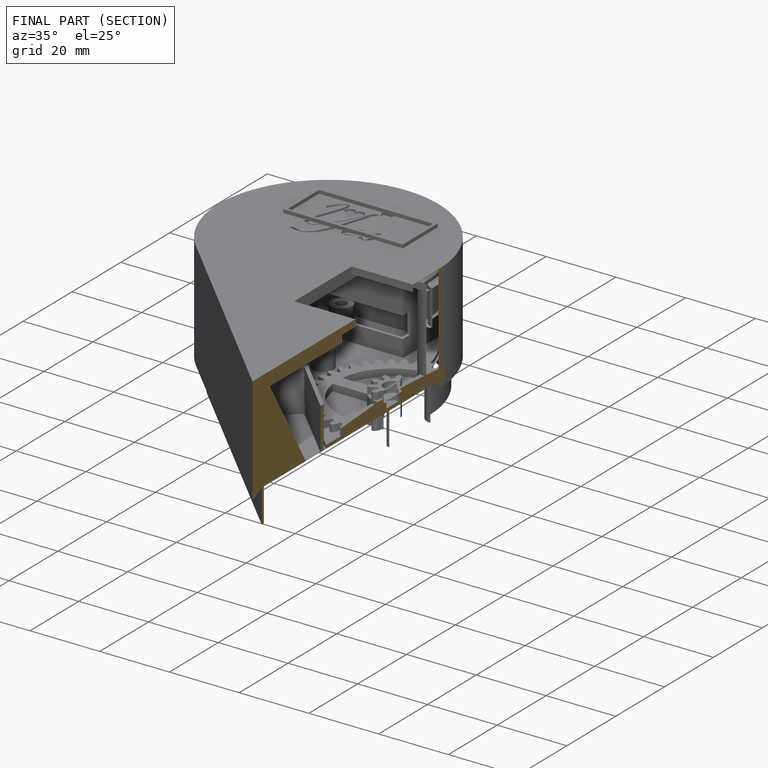
[diagram: finished part — half-section view (interior)]
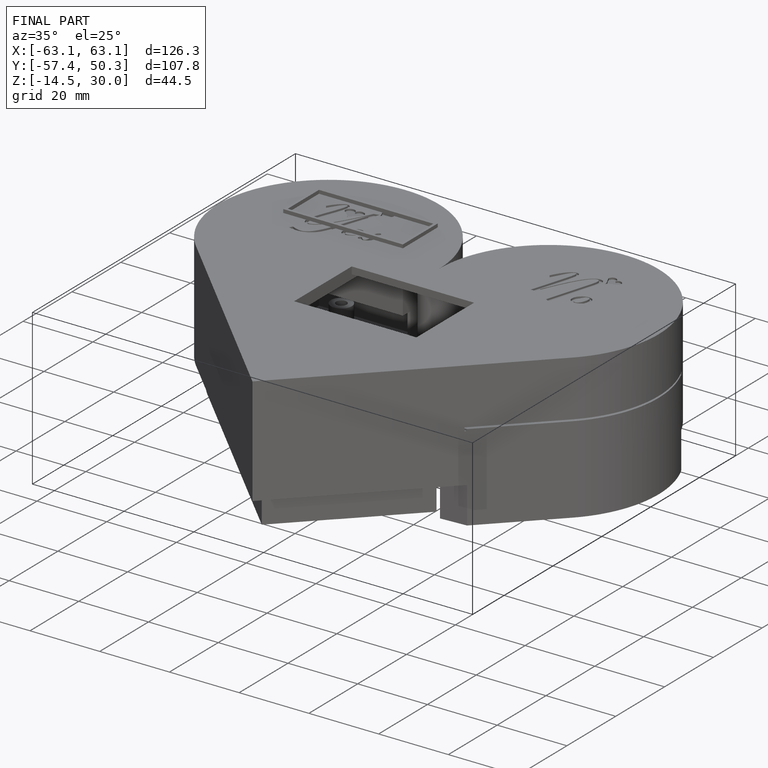
[diagram: finished part — iso view with bounding-box wireframe]
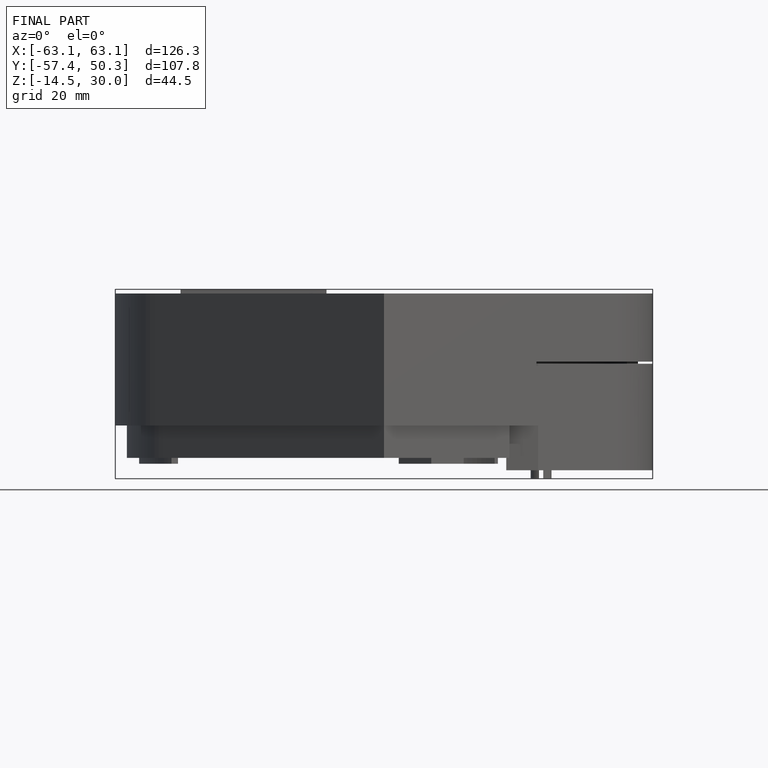
[diagram: finished part — front view with bounding-box wireframe]
